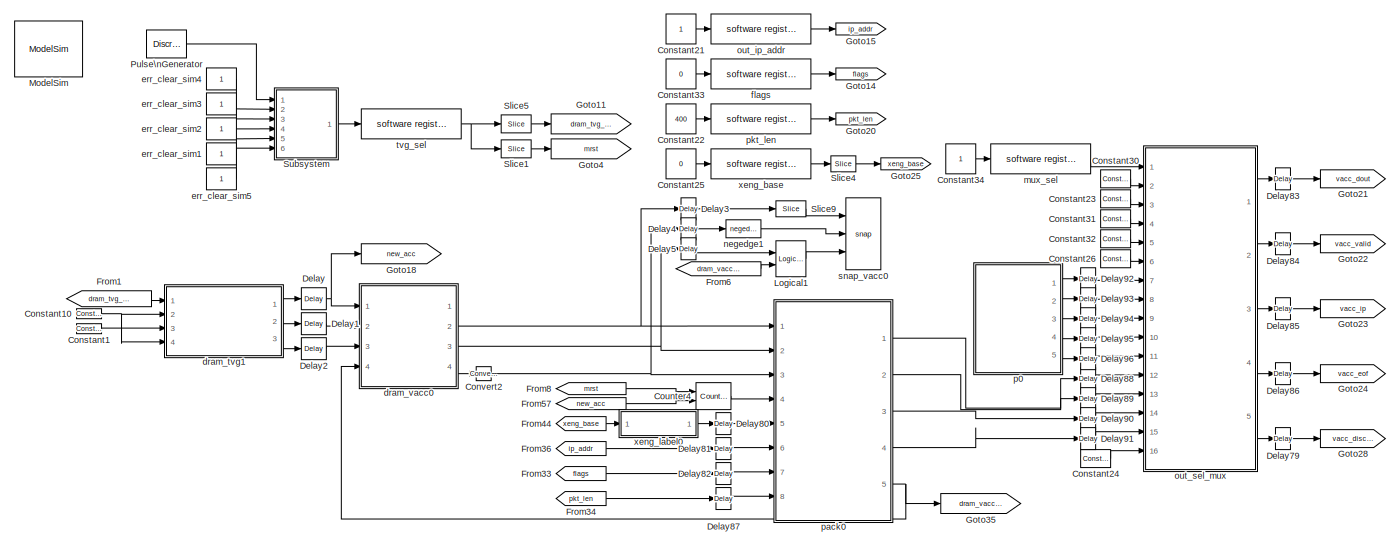
[diagram: root canvas - part 1/3, center side, full height]
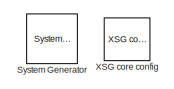
[diagram: root canvas - part 2/3, top left region]
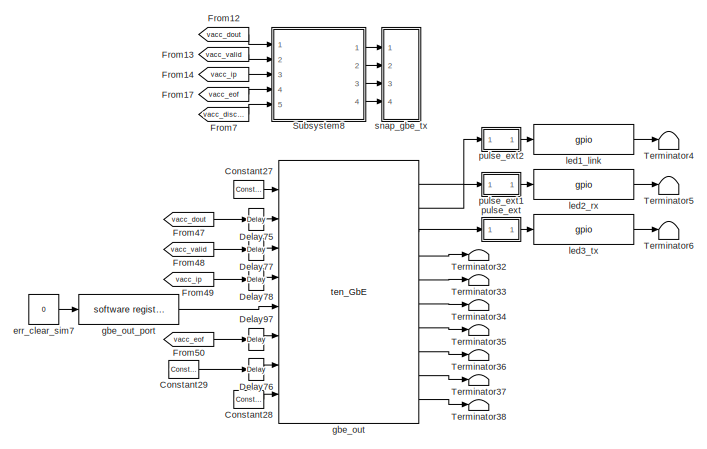
[diagram: root canvas - part 3/3, right side, full height]
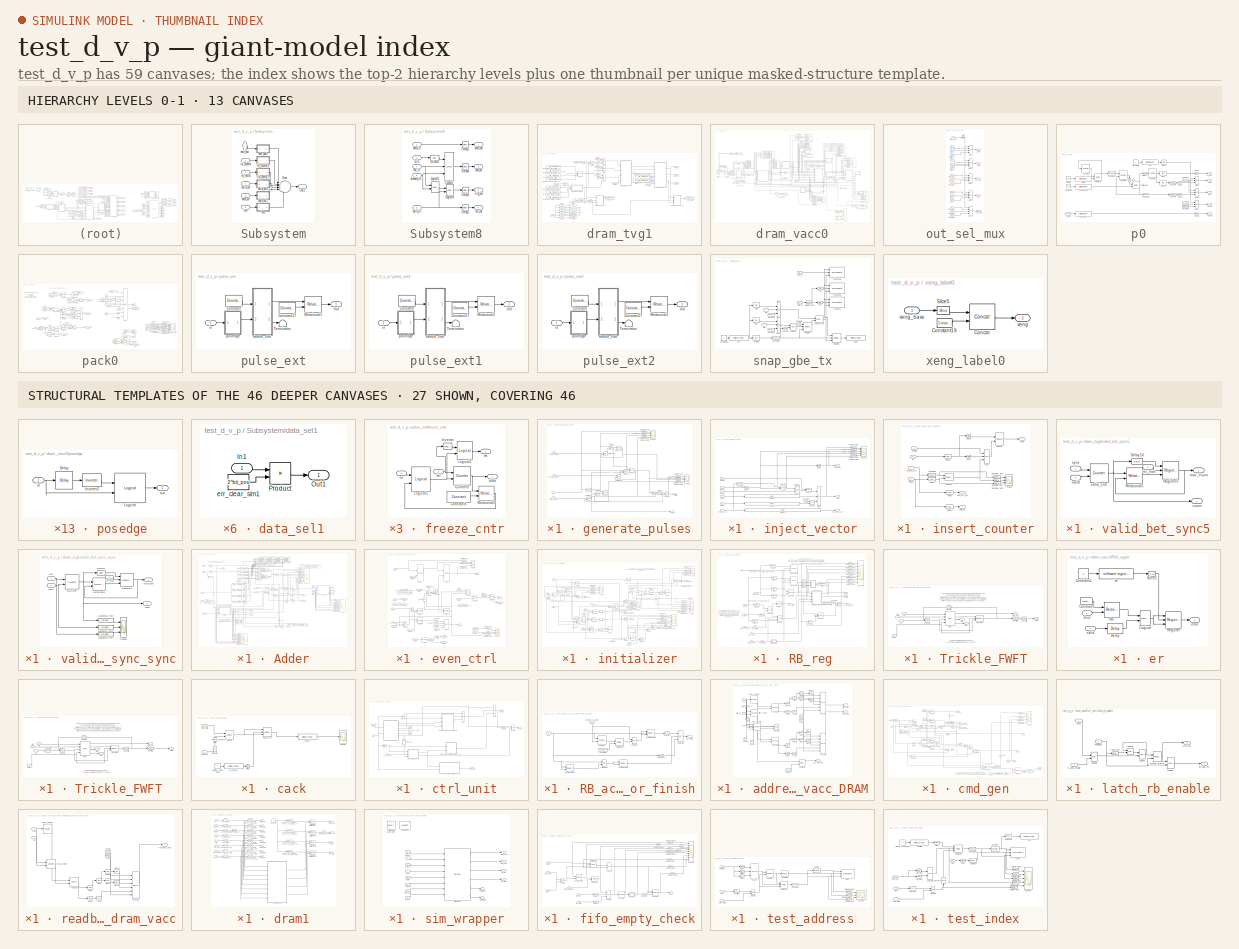
[diagram: thumbnail index - top-2 hierarchy levels (13 canvases) + 27 structural-template representatives of the remaining 46 canvases]
MODEL test_d_v_p
KIND model
BLOCK [Reference]  System Generator  REF=xbsIndex_r3/ System Generator
  AttributesFormatString = System\\nGenerator
  Ports = []
  ShowPortLabels = on
  SourceBlock = xbsIndex_r3/ System Generator
  SourceType = Xilinx System Generator
  Tag = genX
  UserData = DataTag0
  UserDataPersistent = on
  core_generation = According to Block Masks
  dbl_ovrd = According to Block Masks
  deprecated_control = off
  directory = ./test_d_v_p/sysgen
  eval_field = 0
  incr_netlist = off
  package = ff1704
  part = xc2vp70
  run_coregen = off
  simulink_period = 1
  speed = -7
  synthesis_tool = XST
  sysclk_period = 4.878
  testbench = off
  trim_vbits = Everywhere in SubSystem
  xilinxfamily = Virtex2P
BLOCK [Reference] Constant1  REF=xbsIndex_r3/Constant
  Ports = [0, 1]
  SourceBlock = xbsIndex_r3/Constant
  SourceType = Xilinx Constant Block
  arith_type = Unsigned
  bin_pt = 0
  carry = CIN
  const = 0
  dbl_ovrd = off
  equ = P=C
  explicit_period = on
  inp1 = P
  inp2 = PCIN>>17
  iostate = 0
  n_bits = 128
  opr = +
  opselect = C
  period = 1
BLOCK [Reference] Constant10  REF=xbsIndex_r3/Constant
  Ports = [0, 1]
  SourceBlock = xbsIndex_r3/Constant
  SourceType = Xilinx Constant Block
  arith_type = Boolean
  bin_pt = 0
  carry = CIN
  const = 0
  dbl_ovrd = off
  equ = P=C
  explicit_period = on
  inp1 = P
  inp2 = PCIN>>17
  iostate = 0
  n_bits = 1
  opr = +
  opselect = C
  period = 1
BLOCK [Constant] Constant21
BLOCK [Constant] Constant22
  Value = 400
BLOCK [Reference] Constant23  REF=xbsIndex_r3/Constant
  Ports = [0, 1]
  SourceBlock = xbsIndex_r3/Constant
  SourceType = Xilinx Constant Block
  arith_type = Boolean
  bin_pt = 0
  carry = CIN
  const = 0
  dbl_ovrd = off
  equ = P=C
  explicit_period = on
  inp1 = P
  inp2 = PCIN>>17
  iostate = 0
  n_bits = 32
  opr = +
  opselect = C
  period = 1
BLOCK [Reference] Constant24  REF=xbsIndex_r3/Constant
  Ports = [0, 1]
  SourceBlock = xbsIndex_r3/Constant
  SourceType = Xilinx Constant Block
  arith_type = Boolean
  bin_pt = 0
  carry = CIN
  const = 0
  dbl_ovrd = off
  equ = P=C
  explicit_period = on
  inp1 = P
  inp2 = PCIN>>17
  iostate = 0
  n_bits = 32
  opr = +
  opselect = C
  period = 1
BLOCK [Constant] Constant25
  Value = 0
BLOCK [Reference] Constant26  REF=xbsIndex_r3/Constant
  Ports = [0, 1]
  SourceBlock = xbsIndex_r3/Constant
  SourceType = Xilinx Constant Block
  arith_type = Boolean
  bin_pt = 0
  carry = CIN
  const = 0
  dbl_ovrd = off
  equ = P=C
  explicit_period = on
  inp1 = P
  inp2 = PCIN>>17
  iostate = 0
  n_bits = 32
  opr = +
  opselect = C
  period = 1
BLOCK [Reference] Constant27  REF=xbsIndex_r3/Constant
  Ports = [0, 1]
  SourceBlock = xbsIndex_r3/Constant
  SourceType = Xilinx Constant Block
  arith_type = Boolean
  bin_pt = 0
  carry = CIN
  const = 0
  dbl_ovrd = off
  equ = P=C
  explicit_period = on
  inp1 = P
  inp2 = PCIN>>17
  iostate = 0
  n_bits = 32
  opr = +
  opselect = C
  period = 1
BLOCK [Reference] Constant28  REF=xbsIndex_r3/Constant
  Ports = [0, 1]
  SourceBlock = xbsIndex_r3/Constant
  SourceType = Xilinx Constant Block
  arith_type = Boolean
  bin_pt = 0
  carry = CIN
  const = 1
  dbl_ovrd = off
  equ = P=C
  explicit_period = on
  inp1 = P
  inp2 = PCIN>>17
  iostate = 0
  n_bits = 32
  opr = +
  opselect = C
  period = 1
BLOCK [Reference] Constant29  REF=xbsIndex_r3/Constant
  Ports = [0, 1]
  SourceBlock = xbsIndex_r3/Constant
  SourceType = Xilinx Constant Block
  arith_type = Boolean
  bin_pt = 0
  carry = CIN
  const = 0
  dbl_ovrd = off
  equ = P=C
  explicit_period = on
  inp1 = P
  inp2 = PCIN>>17
  iostate = 0
  n_bits = 32
  opr = +
  opselect = C
  period = 1
BLOCK [Reference] Constant30  REF=xbsIndex_r3/Constant
  Ports = [0, 1]
  SourceBlock = xbsIndex_r3/Constant
  SourceType = Xilinx Constant Block
  arith_type = Unsigned
  bin_pt = 0
  carry = CIN
  const = 0
  dbl_ovrd = off
  equ = P=C
  explicit_period = on
  inp1 = P
  inp2 = PCIN>>17
  iostate = 0
  n_bits = 64
  opr = +
  opselect = C
  period = 1
BLOCK [Reference] Constant31  REF=xbsIndex_r3/Constant
  Ports = [0, 1]
  SourceBlock = xbsIndex_r3/Constant
  SourceType = Xilinx Constant Block
  arith_type = Unsigned
  bin_pt = 0
  carry = CIN
  const = 1
  dbl_ovrd = off
  equ = P=C
  explicit_period = on
  inp1 = P
  inp2 = PCIN>>17
  iostate = 0
  n_bits = 32
  opr = +
  opselect = C
  period = 1
BLOCK [Reference] Constant32  REF=xbsIndex_r3/Constant
  Ports = [0, 1]
  SourceBlock = xbsIndex_r3/Constant
  SourceType = Xilinx Constant Block
  arith_type = Boolean
  bin_pt = 0
  carry = CIN
  const = 0
  dbl_ovrd = off
  equ = P=C
  explicit_period = on
  inp1 = P
  inp2 = PCIN>>17
  iostate = 0
  n_bits = 32
  opr = +
  opselect = C
  period = 1
BLOCK [Constant] Constant33
  Value = 0
BLOCK [Constant] Constant34
BLOCK [Reference] Convert2  REF=xbsIndex_r3/Convert
  Ports = [1, 1]
  SourceBlock = xbsIndex_r3/Convert
  SourceType = Xilinx Converter Block
  arith_type = Boolean
  bin_pt = 0
  dbl_ovrd = off
  explicit_period = off
  inserted_by_tool = off
  latency = 0
  n_bits = 1
  overflow = Wrap
  period = 1
  pipeline = off
  quantization = Truncate
  show_param = off
  xl_area = [0, 0, 0, 0, 0, 0, 0]
  xl_use_area = off
BLOCK [Reference] Counter4  REF=xbsIndex_r3/Counter
  Ports = [2, 1]
  SourceBlock = xbsIndex_r3/Counter
  SourceType = Xilinx Counter Block
  arith_type = Unsigned
  bin_pt = 0
  cnt_by_val = 1
  cnt_to = 1023
  cnt_type = Free Running
  dbl_ovrd = off
  en = on
  explicit_period = on
  gen_core = off
  load_pin = off
  n_bits = 64
  operation = Up
  period = 1
  rst = on
  show_param = off
  start_count = 0
  use_rpm = on
  xl_area = [0, 0, 0, 0, 0, 0, 0]
  xl_use_area = off
BLOCK [Reference] Delay  REF=xbsIndex_r3/Delay
  Ports = [1, 1]
  SourceBlock = xbsIndex_r3/Delay
  SourceType = Xilinx Delay Block
  accept_only_valid = off
  dbl_ovrd = off
  en = off
  explicit_period = off
  init_zero = on
  latency = 5
  period = 1
  reg_retiming = on
  show_param = off
  xl_area = [0, 0, 0, 0, 0, 0, 0]
  xl_use_area = off
BLOCK [Reference] Delay1  REF=xbsIndex_r3/Delay
  Ports = [1, 1]
  SourceBlock = xbsIndex_r3/Delay
  SourceType = Xilinx Delay Block
  accept_only_valid = off
  dbl_ovrd = off
  en = off
  explicit_period = off
  init_zero = on
  latency = 5
  period = 1
  reg_retiming = on
  show_param = off
  xl_area = [0, 0, 0, 0, 0, 0, 0]
  xl_use_area = off
BLOCK [Reference] Delay2  REF=xbsIndex_r3/Delay
  Ports = [1, 1]
  SourceBlock = xbsIndex_r3/Delay
  SourceType = Xilinx Delay Block
  accept_only_valid = off
  dbl_ovrd = off
  en = off
  explicit_period = off
  init_zero = on
  latency = 5
  period = 1
  reg_retiming = on
  show_param = off
  xl_area = [0, 0, 0, 0, 0, 0, 0]
  xl_use_area = off
BLOCK [Reference] Delay3  REF=xbsIndex_r3/Delay
  Ports = [1, 1]
  SourceBlock = xbsIndex_r3/Delay
  SourceType = Xilinx Delay Block
  accept_only_valid = off
  dbl_ovrd = off
  en = off
  explicit_period = off
  init_zero = on
  latency = 5
  period = 1
  reg_retiming = on
  show_param = off
  xl_area = [0, 0, 0, 0, 0, 0, 0]
  xl_use_area = off
BLOCK [Reference] Delay4  REF=xbsIndex_r3/Delay
  Ports = [1, 1]
  SourceBlock = xbsIndex_r3/Delay
  SourceType = Xilinx Delay Block
  accept_only_valid = off
  dbl_ovrd = off
  en = off
  explicit_period = off
  init_zero = on
  latency = 5
  period = 1
  reg_retiming = on
  show_param = off
  xl_area = [0, 0, 0, 0, 0, 0, 0]
  xl_use_area = off
BLOCK [Reference] Delay5  REF=xbsIndex_r3/Delay
  Ports = [1, 1]
  SourceBlock = xbsIndex_r3/Delay
  SourceType = Xilinx Delay Block
  accept_only_valid = off
  dbl_ovrd = off
  en = off
  explicit_period = off
  init_zero = on
  latency = 5
  period = 1
  reg_retiming = on
  show_param = off
  xl_area = [0, 0, 0, 0, 0, 0, 0]
  xl_use_area = off
BLOCK [Reference] Delay75  REF=xbsIndex_r3/Delay
  Ports = [1, 1]
  SourceBlock = xbsIndex_r3/Delay
  SourceType = Xilinx Delay Block
  accept_only_valid = off
  dbl_ovrd = off
  en = off
  explicit_period = off
  init_zero = on
  latency = 5
  period = 1
  reg_retiming = on
  show_param = off
  xl_area = [0, 0, 0, 0, 0, 0, 0]
  xl_use_area = off
BLOCK [Reference] Delay76  REF=xbsIndex_r3/Delay
  Ports = [1, 1]
  SourceBlock = xbsIndex_r3/Delay
  SourceType = Xilinx Delay Block
  accept_only_valid = off
  dbl_ovrd = off
  en = off
  explicit_period = off
  init_zero = on
  latency = 5
  period = 1
  reg_retiming = on
  show_param = off
  xl_area = [0, 0, 0, 0, 0, 0, 0]
  xl_use_area = off
BLOCK [Reference] Delay77  REF=xbsIndex_r3/Delay
  Ports = [1, 1]
  SourceBlock = xbsIndex_r3/Delay
  SourceType = Xilinx Delay Block
  accept_only_valid = off
  dbl_ovrd = off
  en = off
  explicit_period = off
  init_zero = on
  latency = 5
  period = 1
  reg_retiming = on
  show_param = off
  xl_area = [0, 0, 0, 0, 0, 0, 0]
  xl_use_area = off
BLOCK [Reference] Delay78  REF=xbsIndex_r3/Delay
  Ports = [1, 1]
  SourceBlock = xbsIndex_r3/Delay
  SourceType = Xilinx Delay Block
  accept_only_valid = off
  dbl_ovrd = off
  en = off
  explicit_period = off
  init_zero = on
  latency = 5
  period = 1
  reg_retiming = on
  show_param = off
  xl_area = [0, 0, 0, 0, 0, 0, 0]
  xl_use_area = off
BLOCK [Reference] Delay79  REF=xbsIndex_r3/Delay
  Ports = [1, 1]
  SourceBlock = xbsIndex_r3/Delay
  SourceType = Xilinx Delay Block
  accept_only_valid = off
  dbl_ovrd = off
  en = off
  explicit_period = off
  init_zero = on
  latency = 5
  period = 1
  reg_retiming = on
  show_param = off
  xl_area = [0, 0, 0, 0, 0, 0, 0]
  xl_use_area = off
BLOCK [Reference] Delay80  REF=xbsIndex_r3/Delay
  Ports = [1, 1]
  SourceBlock = xbsIndex_r3/Delay
  SourceType = Xilinx Delay Block
  accept_only_valid = off
  dbl_ovrd = off
  en = off
  explicit_period = off
  init_zero = on
  latency = 5
  period = 1
  reg_retiming = on
  show_param = off
  xl_area = [0, 0, 0, 0, 0, 0, 0]
  xl_use_area = off
BLOCK [Reference] Delay81  REF=xbsIndex_r3/Delay
  Ports = [1, 1]
  SourceBlock = xbsIndex_r3/Delay
  SourceType = Xilinx Delay Block
  accept_only_valid = off
  dbl_ovrd = off
  en = off
  explicit_period = off
  init_zero = on
  latency = 5
  period = 1
  reg_retiming = on
  show_param = off
  xl_area = [0, 0, 0, 0, 0, 0, 0]
  xl_use_area = off
BLOCK [Reference] Delay82  REF=xbsIndex_r3/Delay
  Ports = [1, 1]
  SourceBlock = xbsIndex_r3/Delay
  SourceType = Xilinx Delay Block
  accept_only_valid = off
  dbl_ovrd = off
  en = off
  explicit_period = off
  init_zero = on
  latency = 5
  period = 1
  reg_retiming = on
  show_param = off
  xl_area = [0, 0, 0, 0, 0, 0, 0]
  xl_use_area = off
BLOCK [Reference] Delay83  REF=xbsIndex_r3/Delay
  Ports = [1, 1]
  SourceBlock = xbsIndex_r3/Delay
  SourceType = Xilinx Delay Block
  accept_only_valid = off
  dbl_ovrd = off
  en = off
  explicit_period = off
  init_zero = on
  latency = 5
  period = 1
  reg_retiming = on
  show_param = off
  xl_area = [0, 0, 0, 0, 0, 0, 0]
  xl_use_area = off
BLOCK [Reference] Delay84  REF=xbsIndex_r3/Delay
  Ports = [1, 1]
  SourceBlock = xbsIndex_r3/Delay
  SourceType = Xilinx Delay Block
  accept_only_valid = off
  dbl_ovrd = off
  en = off
  explicit_period = off
  init_zero = on
  latency = 5
  period = 1
  reg_retiming = on
  show_param = off
  xl_area = [0, 0, 0, 0, 0, 0, 0]
  xl_use_area = off
BLOCK [Reference] Delay85  REF=xbsIndex_r3/Delay
  Ports = [1, 1]
  SourceBlock = xbsIndex_r3/Delay
  SourceType = Xilinx Delay Block
  accept_only_valid = off
  dbl_ovrd = off
  en = off
  explicit_period = off
  init_zero = on
  latency = 5
  period = 1
  reg_retiming = on
  show_param = off
  xl_area = [0, 0, 0, 0, 0, 0, 0]
  xl_use_area = off
BLOCK [Reference] Delay86  REF=xbsIndex_r3/Delay
  Ports = [1, 1]
  SourceBlock = xbsIndex_r3/Delay
  SourceType = Xilinx Delay Block
  accept_only_valid = off
  dbl_ovrd = off
  en = off
  explicit_period = off
  init_zero = on
  latency = 5
  period = 1
  reg_retiming = on
  show_param = off
  xl_area = [0, 0, 0, 0, 0, 0, 0]
  xl_use_area = off
BLOCK [Reference] Delay87  REF=xbsIndex_r3/Delay
  Ports = [1, 1]
  SourceBlock = xbsIndex_r3/Delay
  SourceType = Xilinx Delay Block
  accept_only_valid = off
  dbl_ovrd = off
  en = off
  explicit_period = off
  init_zero = on
  latency = 5
  period = 1
  reg_retiming = on
  show_param = off
  xl_area = [0, 0, 0, 0, 0, 0, 0]
  xl_use_area = off
BLOCK [Reference] Delay88  REF=xbsIndex_r3/Delay
  Ports = [1, 1]
  SourceBlock = xbsIndex_r3/Delay
  SourceType = Xilinx Delay Block
  accept_only_valid = off
  dbl_ovrd = off
  en = off
  explicit_period = off
  init_zero = on
  latency = 5
  period = 1
  reg_retiming = on
  show_param = off
  xl_area = [0, 0, 0, 0, 0, 0, 0]
  xl_use_area = off
BLOCK [Reference] Delay89  REF=xbsIndex_r3/Delay
  Ports = [1, 1]
  SourceBlock = xbsIndex_r3/Delay
  SourceType = Xilinx Delay Block
  accept_only_valid = off
  dbl_ovrd = off
  en = off
  explicit_period = off
  init_zero = on
  latency = 5
  period = 1
  reg_retiming = on
  show_param = off
  xl_area = [0, 0, 0, 0, 0, 0, 0]
  xl_use_area = off
BLOCK [Reference] Delay90  REF=xbsIndex_r3/Delay
  Ports = [1, 1]
  SourceBlock = xbsIndex_r3/Delay
  SourceType = Xilinx Delay Block
  accept_only_valid = off
  dbl_ovrd = off
  en = off
  explicit_period = off
  init_zero = on
  latency = 5
  period = 1
  reg_retiming = on
  show_param = off
  xl_area = [0, 0, 0, 0, 0, 0, 0]
  xl_use_area = off
BLOCK [Reference] Delay91  REF=xbsIndex_r3/Delay
  Ports = [1, 1]
  SourceBlock = xbsIndex_r3/Delay
  SourceType = Xilinx Delay Block
  accept_only_valid = off
  dbl_ovrd = off
  en = off
  explicit_period = off
  init_zero = on
  latency = 5
  period = 1
  reg_retiming = on
  show_param = off
  xl_area = [0, 0, 0, 0, 0, 0, 0]
  xl_use_area = off
BLOCK [Reference] Delay92  REF=xbsIndex_r3/Delay
  Ports = [1, 1]
  SourceBlock = xbsIndex_r3/Delay
  SourceType = Xilinx Delay Block
  accept_only_valid = off
  dbl_ovrd = off
  en = off
  explicit_period = off
  init_zero = on
  latency = 5
  period = 1
  reg_retiming = on
  show_param = off
  xl_area = [0, 0, 0, 0, 0, 0, 0]
  xl_use_area = off
BLOCK [Reference] Delay93  REF=xbsIndex_r3/Delay
  Ports = [1, 1]
  SourceBlock = xbsIndex_r3/Delay
  SourceType = Xilinx Delay Block
  accept_only_valid = off
  dbl_ovrd = off
  en = off
  explicit_period = off
  init_zero = on
  latency = 5
  period = 1
  reg_retiming = on
  show_param = off
  xl_area = [0, 0, 0, 0, 0, 0, 0]
  xl_use_area = off
BLOCK [Reference] Delay94  REF=xbsIndex_r3/Delay
  Ports = [1, 1]
  SourceBlock = xbsIndex_r3/Delay
  SourceType = Xilinx Delay Block
  accept_only_valid = off
  dbl_ovrd = off
  en = off
  explicit_period = off
  init_zero = on
  latency = 5
  period = 1
  reg_retiming = on
  show_param = off
  xl_area = [0, 0, 0, 0, 0, 0, 0]
  xl_use_area = off
BLOCK [Reference] Delay95  REF=xbsIndex_r3/Delay
  Ports = [1, 1]
  SourceBlock = xbsIndex_r3/Delay
  SourceType = Xilinx Delay Block
  accept_only_valid = off
  dbl_ovrd = off
  en = off
  explicit_period = off
  init_zero = on
  latency = 5
  period = 1
  reg_retiming = on
  show_param = off
  xl_area = [0, 0, 0, 0, 0, 0, 0]
  xl_use_area = off
BLOCK [Reference] Delay96  REF=xbsIndex_r3/Delay
  Ports = [1, 1]
  SourceBlock = xbsIndex_r3/Delay
  SourceType = Xilinx Delay Block
  accept_only_valid = off
  dbl_ovrd = off
  en = off
  explicit_period = off
  init_zero = on
  latency = 5
  period = 1
  reg_retiming = on
  show_param = off
  xl_area = [0, 0, 0, 0, 0, 0, 0]
  xl_use_area = off
BLOCK [Reference] Delay97  REF=xbsIndex_r3/Delay
  Ports = [1, 1]
  SourceBlock = xbsIndex_r3/Delay
  SourceType = Xilinx Delay Block
  accept_only_valid = off
  dbl_ovrd = off
  en = off
  explicit_period = off
  init_zero = on
  latency = 5
  period = 1
  reg_retiming = on
  show_param = off
  xl_area = [0, 0, 0, 0, 0, 0, 0]
  xl_use_area = off
BLOCK [From] From1
  CloseFcn = tagdialog Close
  GotoTag = dram_tvg_sel
BLOCK [From] From12
  CloseFcn = tagdialog Close
  GotoTag = vacc_dout
BLOCK [From] From13
  CloseFcn = tagdialog Close
  GotoTag = vacc_valid
BLOCK [From] From14
  CloseFcn = tagdialog Close
  GotoTag = vacc_ip
BLOCK [From] From17
  CloseFcn = tagdialog Close
  GotoTag = vacc_eof
BLOCK [From] From33
  CloseFcn = tagdialog Close
  GotoTag = flags
BLOCK [From] From34
  CloseFcn = tagdialog Close
  GotoTag = pkt_len
BLOCK [From] From36
  CloseFcn = tagdialog Close
  GotoTag = ip_addr
BLOCK [From] From44
  CloseFcn = tagdialog Close
  GotoTag = xeng_base
BLOCK [From] From47
  CloseFcn = tagdialog Close
  GotoTag = vacc_dout
BLOCK [From] From48
  CloseFcn = tagdialog Close
  GotoTag = vacc_valid
BLOCK [From] From49
  CloseFcn = tagdialog Close
  GotoTag = vacc_ip
BLOCK [From] From50
  CloseFcn = tagdialog Close
  GotoTag = vacc_eof
BLOCK [From] From57
  CloseFcn = tagdialog Close
  GotoTag = new_acc
BLOCK [From] From6
  CloseFcn = tagdialog Close
  GotoTag = dram_vacc_ack
BLOCK [From] From7
  CloseFcn = tagdialog Close
  GotoTag = vacc_discard
BLOCK [From] From8
  CloseFcn = tagdialog Close
  GotoTag = mrst
BLOCK [Goto] Goto11
  GotoTag = dram_tvg_sel
  TagVisibility = local
BLOCK [Goto] Goto14
  GotoTag = flags
  TagVisibility = local
BLOCK [Goto] Goto15
  GotoTag = ip_addr
  TagVisibility = local
BLOCK [Goto] Goto18
  GotoTag = new_acc
  TagVisibility = local
BLOCK [Goto] Goto20
  GotoTag = pkt_len
  TagVisibility = local
BLOCK [Goto] Goto21
  GotoTag = vacc_dout
  TagVisibility = local
BLOCK [Goto] Goto22
  GotoTag = vacc_valid
  TagVisibility = local
BLOCK [Goto] Goto23
  GotoTag = vacc_ip
  TagVisibility = local
BLOCK [Goto] Goto24
  GotoTag = vacc_eof
  TagVisibility = local
BLOCK [Goto] Goto25
  GotoTag = xeng_base
  TagVisibility = local
BLOCK [Goto] Goto28
  GotoTag = vacc_discard
  TagVisibility = local
BLOCK [Goto] Goto35
  GotoTag = dram_vacc_ack
  TagVisibility = local
BLOCK [Goto] Goto4
  GotoTag = mrst
  TagVisibility = local
BLOCK [Reference] Logical1  REF=xbsIndex_r3/Logical
  Ports = [2, 1]
  SourceBlock = xbsIndex_r3/Logical
  SourceType = Xilinx Logical Block
  align_bp = on
  arith_type = Unsigned
  bin_pt = 2
  dbl_ovrd = off
  en = off
  explicit_period = off
  inputs = 2
  latency = 0
  logical_function = AND
  n_bits = 8
  period = 1
  precision = Full
  show_param = off
  xl_area = [0, 0, 0, 0, 0, 0, 0]
  xl_use_area = off
BLOCK [Reference] ModelSim  REF=xbsIndex_r3/ModelSim
  Ports = []
  SourceBlock = xbsIndex_r3/ModelSim
  SourceType = ModelSim HDL Co-Simulation Interface
  custom_scripts = off
  dir = ./modelsim
  leave_open = on
  skip_compile = off
  startup_timeout = 40
  waveform = on
BLOCK [DiscretePulseGenerator] Pulse\nGenerator
  Period = 3000
  PhaseDelay = 600
  Ports = [0, 1]
BLOCK [Reference] Slice1  REF=xbsIndex_r3/Slice
  Ports = [1, 1]
  SourceBlock = xbsIndex_r3/Slice
  SourceType = Xilinx Slice Block
  base0 = LSB of Input
  base1 = MSB of Input
  bit0 = 31
  bit1 = 0
  boolean_output = on
  dbl_ovrd = off
  explicit_period = off
  mode = Lower Bit Location + Width
  nbits = 1
  period = 1
BLOCK [Reference] Slice4  REF=xbsIndex_r3/Slice
  Ports = [1, 1]
  SourceBlock = xbsIndex_r3/Slice
  SourceType = Xilinx Slice Block
  base0 = LSB of Input
  base1 = MSB of Input
  bit0 = 0
  bit1 = 0
  boolean_output = off
  dbl_ovrd = off
  explicit_period = off
  mode = Lower Bit Location + Width
  nbits = 16
  period = 1
BLOCK [Reference] Slice5  REF=xbsIndex_r3/Slice
  Ports = [1, 1]
  SourceBlock = xbsIndex_r3/Slice
  SourceType = Xilinx Slice Block
  base0 = LSB of Input
  base1 = MSB of Input
  bit0 = 9
  bit1 = 0
  boolean_output = off
  dbl_ovrd = off
  explicit_period = off
  mode = Lower Bit Location + Width
  nbits = 6
  period = 1
BLOCK [Reference] Slice9  REF=xbsIndex_r3/Slice
  Ports = [1, 1]
  SourceBlock = xbsIndex_r3/Slice
  SourceType = Xilinx Slice Block
  base0 = LSB of Input
  base1 = MSB of Input
  bit0 = 0
  bit1 = 0
  boolean_output = off
  dbl_ovrd = off
  explicit_period = off
  mode = Lower Bit Location + Width
  nbits = 32
  period = 1
BLOCK [SubSystem] Subsystem
  MinAlgLoopOccurrences = off
  Ports = [6, 1]
  RTWSystemCode = Auto
  TreatAsAtomicUnit = off
BLOCK [Outport] Subsystem/Out1
  BusOutputAsStruct = off
  IconDisplay = Port number
BLOCK [Sum] Subsystem/Sum
  IconShape = round
  InputSameDT = off
  Inputs = |++++++
  OutDataTypeMode = Inherit via internal rule
  Ports = [6, 1]
  SaturateOnIntegerOverflow = off
BLOCK [Inport] Subsystem/data_sel
  IconDisplay = Port number
  LatchInput = off
  Port = 5
BLOCK [SubSystem] Subsystem/data_sel1
  MaskEnableString = on
  MaskIconFrame = on
  MaskIconOpaque = on
  MaskIconRotate = none
  MaskIconUnits = autoscale
  MaskPromptString = bit position
  MaskStyleString = edit
  MaskToolTipString = on
  MaskTunableValueString = on
  MaskValueString = 10
  MaskVariables = bit_pos=@1;
  MaskVisibilityString = on
  MinAlgLoopOccurrences = off
  Ports = [1, 1]
  RTWSystemCode = Auto
  TreatAsAtomicUnit = off
BLOCK [Inport] Subsystem/data_sel1/In1
  IconDisplay = Port number
  LatchInput = off
  Port = 1
BLOCK [Outport] Subsystem/data_sel1/Out1
  BusOutputAsStruct = off
  IconDisplay = Port number
BLOCK [Product] Subsystem/data_sel1/Product
  InputSameDT = off
  OutDataTypeMode = Inherit via internal rule
  Ports = [2, 1]
  SaturateOnIntegerOverflow = off
BLOCK [Constant] Subsystem/data_sel1/err_clear_sim1
  Value = 2^bit_pos
BLOCK [Inport] Subsystem/inj_counter
  IconDisplay = Port number
  LatchInput = off
  Port = 2
BLOCK [SubSystem] Subsystem/inj_counter1
  MaskEnableString = on
  MaskIconFrame = on
  MaskIconOpaque = on
  MaskIconRotate = none
  MaskIconUnits = autoscale
  MaskPromptString = bit position
  MaskStyleString = edit
  MaskToolTipString = on
  MaskTunableValueString = on
  MaskValueString = 13
  MaskVariables = bit_pos=@1;
  MaskVisibilityString = on
  MinAlgLoopOccurrences = off
  Ports = [1, 1]
  RTWSystemCode = Auto
  TreatAsAtomicUnit = off
BLOCK [Inport] Subsystem/inj_counter1/In1
  IconDisplay = Port number
  LatchInput = off
  Port = 1
BLOCK [Outport] Subsystem/inj_counter1/Out1
  BusOutputAsStruct = off
  IconDisplay = Port number
BLOCK [Product] Subsystem/inj_counter1/Product
  InputSameDT = off
  OutDataTypeMode = Inherit via internal rule
  Ports = [2, 1]
  SaturateOnIntegerOverflow = off
BLOCK [Constant] Subsystem/inj_counter1/err_clear_sim1
  Value = 2^bit_pos
BLOCK [Inport] Subsystem/inj_vector
  IconDisplay = Port number
  LatchInput = off
  Port = 3
BLOCK [SubSystem] Subsystem/inj_vector1
  MaskEnableString = on
  MaskIconFrame = on
  MaskIconOpaque = on
  MaskIconRotate = none
  MaskIconUnits = autoscale
  MaskPromptString = bit position
  MaskStyleString = edit
  MaskToolTipString = on
  MaskTunableValueString = on
  MaskValueString = 12
  MaskVariables = bit_pos=@1;
  MaskVisibilityString = on
  MinAlgLoopOccurrences = off
  Ports = [1, 1]
  RTWSystemCode = Auto
  TreatAsAtomicUnit = off
BLOCK [Inport] Subsystem/inj_vector1/In1
  IconDisplay = Port number
  LatchInput = off
  Port = 1
BLOCK [Outport] Subsystem/inj_vector1/Out1
  BusOutputAsStruct = off
  IconDisplay = Port number
BLOCK [Product] Subsystem/inj_vector1/Product
  InputSameDT = off
  OutDataTypeMode = Inherit via internal rule
  Ports = [2, 1]
  SaturateOnIntegerOverflow = off
BLOCK [Constant] Subsystem/inj_vector1/err_clear_sim1
  Value = 2^bit_pos
BLOCK [Inport] Subsystem/new_acc
  IconDisplay = Port number
  LatchInput = off
  Port = 1
BLOCK [SubSystem] Subsystem/new_acc2
  MaskEnableString = on
  MaskIconFrame = on
  MaskIconOpaque = on
  MaskIconRotate = none
  MaskIconUnits = autoscale
  MaskPromptString = bit position
  MaskStyleString = edit
  MaskToolTipString = on
  MaskTunableValueString = on
  MaskValueString = 14
  MaskVariables = bit_pos=@1;
  MaskVisibilityString = on
  MinAlgLoopOccurrences = off
  Ports = [1, 1]
  RTWSystemCode = Auto
  TreatAsAtomicUnit = off
BLOCK [Inport] Subsystem/new_acc2/In1
  IconDisplay = Port number
  LatchInput = off
  Port = 1
BLOCK [Outport] Subsystem/new_acc2/Out1
  BusOutputAsStruct = off
  IconDisplay = Port number
BLOCK [Product] Subsystem/new_acc2/Product
  InputSameDT = off
  OutDataTypeMode = Inherit via internal rule
  Ports = [2, 1]
  SaturateOnIntegerOverflow = off
BLOCK [Constant] Subsystem/new_acc2/err_clear_sim1
  Value = 2^bit_pos
BLOCK [Inport] Subsystem/run
  IconDisplay = Port number
  LatchInput = off
  Port = 6
BLOCK [SubSystem] Subsystem/run1
  MaskEnableString = on
  MaskIconFrame = on
  MaskIconOpaque = on
  MaskIconRotate = none
  MaskIconUnits = autoscale
  MaskPromptString = bit position
  MaskStyleString = edit
  MaskToolTipString = on
  MaskTunableValueString = on
  MaskValueString = 9
  MaskVariables = bit_pos=@1;
  MaskVisibilityString = on
  MinAlgLoopOccurrences = off
  Ports = [1, 1]
  RTWSystemCode = Auto
  TreatAsAtomicUnit = off
BLOCK [Inport] Subsystem/run1/In1
  IconDisplay = Port number
  LatchInput = off
  Port = 1
BLOCK [Outport] Subsystem/run1/Out1
  BusOutputAsStruct = off
  IconDisplay = Port number
BLOCK [Product] Subsystem/run1/Product
  InputSameDT = off
  OutDataTypeMode = Inherit via internal rule
  Ports = [2, 1]
  SaturateOnIntegerOverflow = off
BLOCK [Constant] Subsystem/run1/err_clear_sim1
  Value = 2^bit_pos
BLOCK [Inport] Subsystem/valid_sel
  IconDisplay = Port number
  LatchInput = off
  Port = 4
BLOCK [SubSystem] Subsystem/valid_sel1
  MaskEnableString = on
  MaskIconFrame = on
  MaskIconOpaque = on
  MaskIconRotate = none
  MaskIconUnits = autoscale
  MaskPromptString = bit position
  MaskStyleString = edit
  MaskToolTipString = on
  MaskTunableValueString = on
  MaskValueString = 11
  MaskVariables = bit_pos=@1;
  MaskVisibilityString = on
  MinAlgLoopOccurrences = off
  Ports = [1, 1]
  RTWSystemCode = Auto
  TreatAsAtomicUnit = off
BLOCK [Inport] Subsystem/valid_sel1/In1
  IconDisplay = Port number
  LatchInput = off
  Port = 1
BLOCK [Outport] Subsystem/valid_sel1/Out1
  BusOutputAsStruct = off
  IconDisplay = Port number
BLOCK [Product] Subsystem/valid_sel1/Product
  InputSameDT = off
  OutDataTypeMode = Inherit via internal rule
  Ports = [2, 1]
  SaturateOnIntegerOverflow = off
BLOCK [Constant] Subsystem/valid_sel1/err_clear_sim1
  Value = 2^bit_pos
BLOCK [SubSystem] Subsystem8
  MinAlgLoopOccurrences = off
  Ports = [5, 4]
  RTWSystemCode = Auto
  TreatAsAtomicUnit = off
BLOCK [Reference] Subsystem8/Concat1  REF=xbsIndex_r3/Concat
  Ports = [3, 1]
  SourceBlock = xbsIndex_r3/Concat
  SourceType = Xilinx Bus Concatenator
  dbl_ovrd = off
  explicit_period = off
  num_inputs = 3
  period = 1
BLOCK [Reference] Subsystem8/Delay1  REF=xbsIndex_r3/Delay
  Ports = [1, 1]
  SourceBlock = xbsIndex_r3/Delay
  SourceType = Xilinx Delay Block
  accept_only_valid = off
  dbl_ovrd = off
  en = off
  explicit_period = off
  init_zero = on
  latency = 2
  period = 1
  reg_retiming = on
  show_param = off
  xl_area = [0, 0, 0, 0, 0, 0, 0]
  xl_use_area = off
BLOCK [Reference] Subsystem8/Delay2  REF=xbsIndex_r3/Delay
  Ports = [1, 1]
  SourceBlock = xbsIndex_r3/Delay
  SourceType = Xilinx Delay Block
  accept_only_valid = off
  dbl_ovrd = off
  en = off
  explicit_period = off
  init_zero = on
  latency = 2
  period = 1
  reg_retiming = on
  show_param = off
  xl_area = [0, 0, 0, 0, 0, 0, 0]
  xl_use_area = off
BLOCK [Reference] Subsystem8/Delay3  REF=xbsIndex_r3/Delay
  Ports = [1, 1]
  SourceBlock = xbsIndex_r3/Delay
  SourceType = Xilinx Delay Block
  accept_only_valid = off
  dbl_ovrd = off
  en = off
  explicit_period = off
  init_zero = on
  latency = 2
  period = 1
  reg_retiming = on
  show_param = off
  xl_area = [0, 0, 0, 0, 0, 0, 0]
  xl_use_area = off
BLOCK [Reference] Subsystem8/Delay4  REF=xbsIndex_r3/Delay
  Ports = [1, 1]
  SourceBlock = xbsIndex_r3/Delay
  SourceType = Xilinx Delay Block
  accept_only_valid = off
  dbl_ovrd = off
  en = off
  explicit_period = off
  init_zero = on
  latency = 2
  period = 1
  reg_retiming = on
  show_param = off
  xl_area = [0, 0, 0, 0, 0, 0, 0]
  xl_use_area = off
BLOCK [Reference] Subsystem8/Logical1  REF=xbsIndex_r3/Logical
  Ports = [2, 1]
  SourceBlock = xbsIndex_r3/Logical
  SourceType = Xilinx Logical Block
  align_bp = on
  arith_type = Unsigned
  bin_pt = 2
  dbl_ovrd = off
  en = off
  explicit_period = on
  inputs = 2
  latency = 0
  logical_function = OR
  n_bits = 8
  period = 1
  precision = Full
  show_param = off
  xl_area = [0, 0, 0, 0, 0, 0, 0]
  xl_use_area = off
BLOCK [Reference] Subsystem8/Logical4  REF=xbsIndex_r3/Logical
  Ports = [2, 1]
  SourceBlock = xbsIndex_r3/Logical
  SourceType = Xilinx Logical Block
  align_bp = on
  arith_type = Unsigned
  bin_pt = 2
  dbl_ovrd = off
  en = off
  explicit_period = on
  inputs = 2
  latency = 0
  logical_function = AND
  n_bits = 8
  period = 1
  precision = Full
  show_param = off
  xl_area = [0, 0, 0, 0, 0, 0, 0]
  xl_use_area = off
BLOCK [Reference] Subsystem8/Slice11  REF=xbsIndex_r3/Slice
  Ports = [1, 1]
  SourceBlock = xbsIndex_r3/Slice
  SourceType = Xilinx Slice Block
  base0 = LSB of Input
  base1 = MSB of Input
  bit0 = 0
  bit1 = 0
  boolean_output = on
  dbl_ovrd = off
  explicit_period = off
  mode = Lower Bit Location + Width
  nbits = 32-2
  period = 1
BLOCK [Inport] Subsystem8/data_in
  IconDisplay = Port number
  LatchInput = off
  Port = 1
BLOCK [Outport] Subsystem8/data_out
  BusOutputAsStruct = off
  IconDisplay = Port number
BLOCK [Inport] Subsystem8/discard_in
  IconDisplay = Port number
  LatchInput = off
  Port = 5
BLOCK [Inport] Subsystem8/eof_in
  IconDisplay = Port number
  LatchInput = off
  Port = 4
BLOCK [Inport] Subsystem8/ip_in
  IconDisplay = Port number
  LatchInput = off
  Port = 3
BLOCK [Outport] Subsystem8/oob_out
  BusOutputAsStruct = off
  IconDisplay = Port number
  Port = 2
BLOCK [Outport] Subsystem8/trig_out
  BusOutputAsStruct = off
  IconDisplay = Port number
  Port = 3
BLOCK [Inport] Subsystem8/valid_in
  IconDisplay = Port number
  LatchInput = off
  Port = 2
BLOCK [Outport] Subsystem8/we_out
  BusOutputAsStruct = off
  IconDisplay = Port number
  Port = 4
BLOCK [Terminator] Terminator32
BLOCK [Terminator] Terminator33
BLOCK [Terminator] Terminator34
BLOCK [Terminator] Terminator35
BLOCK [Terminator] Terminator36
BLOCK [Terminator] Terminator37
BLOCK [Terminator] Terminator38
BLOCK [Terminator] Terminator4
BLOCK [Terminator] Terminator5
BLOCK [Terminator] Terminator6
BLOCK [Reference] XSG core config  REF=xps_library/XSG core config  (lib defined in mdl_00b5cec29cd0, mdl_02ab6ecaa3d1, +5 more)
  Ports = []
  ShowPortLabels = on
  SourceBlock = xps_library/XSG core config
  SourceType = xsg core config
  Tag = xps:xsg
  clk_rate = 205
  clk_src = sys_clk2x
  gpio_clk_bit_index = 0
  gpio_clk_io_group = iBOB:sma
  hw_sys = BEE2_usr
  ibob_linux = off
  mpc_type = powerpc405
  sample_period = 1
  synthesis_tool = XST
BLOCK [SubSystem] dram_tvg1
  AttributesFormatString = Vector Length: 100
  MaskEnableString = on
  MaskIconFrame = on
  MaskIconOpaque = on
  MaskIconRotate = none
  MaskIconUnits = autoscale
  MaskInitialization = fmtstr = sprintf('Vector Length: %d', len);\nset_param(gcb, 'AttributesFormatString', fmtstr);\n
  MaskPromptString = Number of Vectors
  MaskStyleString = edit
  MaskToolTipString = on
  MaskTunableValueString = on
  MaskValueString = 100
  MaskVariables = len=@1;
  MaskVisibilityString = on
  MinAlgLoopOccurrences = off
  Ports = [4, 3]
  RTWSystemCode = Auto
  TreatAsAtomicUnit = off
BLOCK [Reference] dram_tvg1/Concat  REF=xbsIndex_r3/Concat
  Ports = [4, 1]
  SourceBlock = xbsIndex_r3/Concat
  SourceType = Xilinx Bus Concatenator
  dbl_ovrd = off
  explicit_period = on
  num_inputs = 4
  period = 1
BLOCK [Reference] dram_tvg1/Delay  REF=xbsIndex_r3/Delay
  Ports = [1, 1]
  SourceBlock = xbsIndex_r3/Delay
  SourceType = Xilinx Delay Block
  accept_only_valid = off
  dbl_ovrd = off
  en = off
  explicit_period = off
  init_zero = on
  latency = 1
  period = 1
  reg_retiming = on
  show_param = off
  xl_area = [0, 0, 0, 0, 0, 0, 0]
  xl_use_area = off
BLOCK [Reference] dram_tvg1/Delay10  REF=xbsIndex_r3/Delay
  Ports = [1, 1]
  SourceBlock = xbsIndex_r3/Delay
  SourceType = Xilinx Delay Block
  accept_only_valid = off
  dbl_ovrd = off
  en = off
  explicit_period = off
  init_zero = on
  latency = 5
  period = 1
  reg_retiming = off
  show_param = off
  xl_area = [0, 0, 0, 0, 0, 0, 0]
  xl_use_area = off
BLOCK [Reference] dram_tvg1/Delay9  REF=xbsIndex_r3/Delay
  Ports = [1, 1]
  SourceBlock = xbsIndex_r3/Delay
  SourceType = Xilinx Delay Block
  accept_only_valid = off
  dbl_ovrd = off
  en = off
  explicit_period = off
  init_zero = on
  latency = 5
  period = 1
  reg_retiming = off
  show_param = off
  xl_area = [0, 0, 0, 0, 0, 0, 0]
  xl_use_area = off
BLOCK [From] dram_tvg1/From
  CloseFcn = tagdialog Close
  GotoTag = valid_sel
BLOCK [From] dram_tvg1/From1
  CloseFcn = tagdialog Close
  GotoTag = data_sel
BLOCK [From] dram_tvg1/From2
  CloseFcn = tagdialog Close
  GotoTag = valid_sel
BLOCK [From] dram_tvg1/From3
  CloseFcn = tagdialog Close
  GotoTag = inj_vector
BLOCK [From] dram_tvg1/From4
  CloseFcn = tagdialog Close
  GotoTag = inj_counter
BLOCK [From] dram_tvg1/From5
  CloseFcn = tagdialog Close
  GotoTag = enable
BLOCK [From] dram_tvg1/From6
  CloseFcn = tagdialog Close
  GotoTag = new_acc
BLOCK [Goto] dram_tvg1/Goto
  GotoTag = data_sel
  TagVisibility = local
BLOCK [Goto] dram_tvg1/Goto1
  GotoTag = valid_sel
  TagVisibility = local
BLOCK [Goto] dram_tvg1/Goto2
  GotoTag = inj_vector
  TagVisibility = local
BLOCK [Goto] dram_tvg1/Goto3
  GotoTag = inj_counter
  TagVisibility = local
BLOCK [Goto] dram_tvg1/Goto4
  GotoTag = enable
  TagVisibility = local
BLOCK [Goto] dram_tvg1/Goto5
  GotoTag = new_acc
  TagVisibility = local
BLOCK [Reference] dram_tvg1/Mux1  REF=xbsIndex_r3/Mux
  Ports = [3, 1]
  SourceBlock = xbsIndex_r3/Mux
  SourceType = Xilinx Multiplexer Block
  arith_type = Signed  (2's comp)
  bin_pt = 2
  dbl_ovrd = off
  en = off
  explicit_period = off
  gen_core = off
  inputs = 2
  latency = 0
  mux_type = off
  n_bits = 8
  overflow = Wrap
  period = 1
  precision = Full
  quantization = Truncate
  show_param = off
  use_rpm = off
  xl_area = [0, 0, 0, 0, 0, 0, 0]
  xl_use_area = off
BLOCK [Reference] dram_tvg1/Mux2  REF=xbsIndex_r3/Mux
  Ports = [3, 1]
  SourceBlock = xbsIndex_r3/Mux
  SourceType = Xilinx Multiplexer Block
  arith_type = Signed  (2's comp)
  bin_pt = 2
  dbl_ovrd = off
  en = off
  explicit_period = off
  gen_core = off
  inputs = 2
  latency = 0
  mux_type = off
  n_bits = 8
  overflow = Wrap
  period = 1
  precision = Full
  quantization = Truncate
  show_param = off
  use_rpm = off
  xl_area = [0, 0, 0, 0, 0, 0, 0]
  xl_use_area = off
BLOCK [Reference] dram_tvg1/Mux3  REF=xbsIndex_r3/Mux
  Ports = [3, 1]
  SourceBlock = xbsIndex_r3/Mux
  SourceType = Xilinx Multiplexer Block
  arith_type = Signed  (2's comp)
  bin_pt = 2
  dbl_ovrd = off
  en = off
  explicit_period = off
  gen_core = off
  inputs = 2
  latency = 0
  mux_type = off
  n_bits = 8
  overflow = Wrap
  period = 1
  precision = Full
  quantization = Truncate
  show_param = off
  use_rpm = off
  xl_area = [0, 0, 0, 0, 0, 0, 0]
  xl_use_area = off
BLOCK [Reference] dram_tvg1/Register  REF=xbsIndex_r3/Register
  Ports = [3, 1]
  SourceBlock = xbsIndex_r3/Register
  SourceType = Xilinx Register Block
  dbl_ovrd = off
  en = on
  explicit_period = off
  init = 0
  out_en = off
  period = 1
  reg_only_valid = off
  rst = on
  show_param = off
  xl_area = [0, 0, 0, 0, 0, 0, 0]
  xl_use_area = off
BLOCK [Reference] dram_tvg1/Slice1  REF=xbsIndex_r3/Slice
  Ports = [1, 1]
  SourceBlock = xbsIndex_r3/Slice
  SourceType = Xilinx Slice Block
  base0 = LSB of Input
  base1 = MSB of Input
  bit0 = 4
  bit1 = 0
  boolean_output = on
  dbl_ovrd = off
  explicit_period = off
  mode = Lower Bit Location + Width
  nbits = 1
  period = 1
BLOCK [Reference] dram_tvg1/Slice2  REF=xbsIndex_r3/Slice
  Ports = [1, 1]
  SourceBlock = xbsIndex_r3/Slice
  SourceType = Xilinx Slice Block
  base0 = LSB of Input
  base1 = MSB of Input
  bit0 = 0
  bit1 = 0
  boolean_output = on
  dbl_ovrd = off
  explicit_period = off
  mode = Lower Bit Location + Width
  nbits = 1
  period = 1
BLOCK [Reference] dram_tvg1/Slice3  REF=xbsIndex_r3/Slice
  Ports = [1, 1]
  SourceBlock = xbsIndex_r3/Slice
  SourceType = Xilinx Slice Block
  base0 = LSB of Input
  base1 = MSB of Input
  bit0 = 3
  bit1 = 0
  boolean_output = on
  dbl_ovrd = off
  explicit_period = off
  mode = Lower Bit Location + Width
  nbits = 1
  period = 1
BLOCK [Reference] dram_tvg1/Slice4  REF=xbsIndex_r3/Slice
  Ports = [1, 1]
  SourceBlock = xbsIndex_r3/Slice
  SourceType = Xilinx Slice Block
  base0 = LSB of Input
  base1 = MSB of Input
  bit0 = 2
  bit1 = 0
  boolean_output = on
  dbl_ovrd = off
  explicit_period = off
  mode = Lower Bit Location + Width
  nbits = 1
  period = 1
BLOCK [Reference] dram_tvg1/Slice5  REF=xbsIndex_r3/Slice
  Ports = [1, 1]
  SourceBlock = xbsIndex_r3/Slice
  SourceType = Xilinx Slice Block
  base0 = LSB of Input
  base1 = MSB of Input
  bit0 = 1
  bit1 = 0
  boolean_output = on
  dbl_ovrd = off
  explicit_period = off
  mode = Lower Bit Location + Width
  nbits = 1
  period = 1
BLOCK [Reference] dram_tvg1/Slice6  REF=xbsIndex_r3/Slice
  Ports = [1, 1]
  SourceBlock = xbsIndex_r3/Slice
  SourceType = Xilinx Slice Block
  base0 = LSB of Input
  base1 = MSB of Input
  bit0 = 0
  bit1 = 0
  boolean_output = on
  dbl_ovrd = off
  explicit_period = off
  mode = Lower Bit Location + Width
  nbits = 1
  period = 1
BLOCK [Reference] dram_tvg1/Slice7  REF=xbsIndex_r3/Slice
  Ports = [1, 1]
  SourceBlock = xbsIndex_r3/Slice
  SourceType = Xilinx Slice Block
  base0 = LSB of Input
  base1 = MSB of Input
  bit0 = 5
  bit1 = 0
  boolean_output = on
  dbl_ovrd = off
  explicit_period = off
  mode = Lower Bit Location + Width
  nbits = 1
  period = 1
BLOCK [Inport] dram_tvg1/data_in
  IconDisplay = Port number
  LatchInput = off
  Port = 3
BLOCK [Outport] dram_tvg1/data_out
  BusOutputAsStruct = off
  IconDisplay = Port number
  Port = 2
BLOCK [SubSystem] dram_tvg1/generate_pulses
  MinAlgLoopOccurrences = off
  Ports = [4, 2]
  RTWSystemCode = Auto
  TreatAsAtomicUnit = off
BLOCK [Reference] dram_tvg1/generate_pulses/Gateway Out1  REF=xbsIndex_r3/Gateway Out
  LOCs = {}
  Ports = [1, 1]
  SourceBlock = xbsIndex_r3/Gateway Out
  SourceType = Xilinx Gateway Out
  arith_type = Boolean
  bin_pt = 6
  hdl_port = off
  locs_specified = off
  nbits = 8
  needs_fixed_name = off
  output_type = Double
  overflow = Wrap
  quantization = Truncate
  show_param = off
  timing_constraint = None
  xl_area = [0, 0, 0, 0, 0, 0, 0]
  xl_use_area = off
BLOCK [Reference] dram_tvg1/generate_pulses/Gateway Out2  REF=xbsIndex_r3/Gateway Out
  LOCs = {}
  Ports = [1, 1]
  SourceBlock = xbsIndex_r3/Gateway Out
  SourceType = Xilinx Gateway Out
  arith_type = Boolean
  bin_pt = 6
  hdl_port = off
  locs_specified = off
  nbits = 8
  needs_fixed_name = off
  output_type = Double
  overflow = Wrap
  quantization = Truncate
  show_param = off
  timing_constraint = None
  xl_area = [0, 0, 0, 0, 0, 0, 0]
  xl_use_area = off
BLOCK [Reference] dram_tvg1/generate_pulses/Gateway Out3  REF=xbsIndex_r3/Gateway Out
  LOCs = {}
  Ports = [1, 1]
  SourceBlock = xbsIndex_r3/Gateway Out
  SourceType = Xilinx Gateway Out
  arith_type = Boolean
  bin_pt = 6
  hdl_port = off
  locs_specified = off
  nbits = 8
  needs_fixed_name = off
  output_type = Double
  overflow = Wrap
  quantization = Truncate
  show_param = off
  timing_constraint = None
  xl_area = [0, 0, 0, 0, 0, 0, 0]
  xl_use_area = off
BLOCK [Reference] dram_tvg1/generate_pulses/Gateway Out4  REF=xbsIndex_r3/Gateway Out
  LOCs = {}
  Ports = [1, 1]
  SourceBlock = xbsIndex_r3/Gateway Out
  SourceType = Xilinx Gateway Out
  arith_type = Boolean
  bin_pt = 6
  hdl_port = off
  locs_specified = off
  nbits = 8
  needs_fixed_name = off
  output_type = Double
  overflow = Wrap
  quantization = Truncate
  show_param = off
  timing_constraint = None
  xl_area = [0, 0, 0, 0, 0, 0, 0]
  xl_use_area = off
BLOCK [Reference] dram_tvg1/generate_pulses/Gateway Out5  REF=xbsIndex_r3/Gateway Out
  LOCs = {}
  Ports = [1, 1]
  SourceBlock = xbsIndex_r3/Gateway Out
  SourceType = Xilinx Gateway Out
  arith_type = Boolean
  bin_pt = 6
  hdl_port = off
  locs_specified = off
  nbits = 8
  needs_fixed_name = off
  output_type = Double
  overflow = Wrap
  quantization = Truncate
  show_param = off
  timing_constraint = None
  xl_area = [0, 0, 0, 0, 0, 0, 0]
  xl_use_area = off
BLOCK [Reference] dram_tvg1/generate_pulses/Gateway Out6  REF=xbsIndex_r3/Gateway Out
  LOCs = {}
  Ports = [1, 1]
  SourceBlock = xbsIndex_r3/Gateway Out
  SourceType = Xilinx Gateway Out
  arith_type = Boolean
  bin_pt = 6
  hdl_port = off
  locs_specified = off
  nbits = 8
  needs_fixed_name = off
  output_type = Double
  overflow = Wrap
  quantization = Truncate
  show_param = off
  timing_constraint = None
  xl_area = [0, 0, 0, 0, 0, 0, 0]
  xl_use_area = off
BLOCK [Reference] dram_tvg1/generate_pulses/Gateway Out7  REF=xbsIndex_r3/Gateway Out
  LOCs = {}
  Ports = [1, 1]
  SourceBlock = xbsIndex_r3/Gateway Out
  SourceType = Xilinx Gateway Out
  arith_type = Boolean
  bin_pt = 6
  hdl_port = off
  locs_specified = off
  nbits = 8
  needs_fixed_name = off
  output_type = Double
  overflow = Wrap
  quantization = Truncate
  show_param = off
  timing_constraint = None
  xl_area = [0, 0, 0, 0, 0, 0, 0]
  xl_use_area = off
BLOCK [Reference] dram_tvg1/generate_pulses/Gateway Out8  REF=xbsIndex_r3/Gateway Out
  LOCs = {}
  Ports = [1, 1]
  SourceBlock = xbsIndex_r3/Gateway Out
  SourceType = Xilinx Gateway Out
  arith_type = Boolean
  bin_pt = 6
  hdl_port = off
  locs_specified = off
  nbits = 8
  needs_fixed_name = off
  output_type = Double
  overflow = Wrap
  quantization = Truncate
  show_param = off
  timing_constraint = None
  xl_area = [0, 0, 0, 0, 0, 0, 0]
  xl_use_area = off
BLOCK [Reference] dram_tvg1/generate_pulses/Logical1  REF=xbsIndex_r3/Logical
  Ports = [2, 1]
  SourceBlock = xbsIndex_r3/Logical
  SourceType = Xilinx Logical Block
  align_bp = on
  arith_type = Unsigned
  bin_pt = 2
  dbl_ovrd = off
  en = off
  explicit_period = off
  inputs = 2
  latency = 0
  logical_function = AND
  n_bits = 8
  period = 1
  precision = Full
  show_param = off
  xl_area = [0, 0, 0, 0, 0, 0, 0]
  xl_use_area = off
BLOCK [Reference] dram_tvg1/generate_pulses/Logical2  REF=xbsIndex_r3/Logical
  Ports = [3, 1]
  SourceBlock = xbsIndex_r3/Logical
  SourceType = Xilinx Logical Block
  align_bp = on
  arith_type = Unsigned
  bin_pt = 2
  dbl_ovrd = off
  en = off
  explicit_period = off
  inputs = 3
  latency = 0
  logical_function = AND
  n_bits = 8
  period = 1
  precision = Full
  show_param = off
  xl_area = [0, 0, 0, 0, 0, 0, 0]
  xl_use_area = off
BLOCK [Reference] dram_tvg1/generate_pulses/Logical3  REF=xbsIndex_r3/Logical
  Ports = [2, 1]
  SourceBlock = xbsIndex_r3/Logical
  SourceType = Xilinx Logical Block
  align_bp = on
  arith_type = Unsigned
  bin_pt = 2
  dbl_ovrd = off
  en = off
  explicit_period = off
  inputs = 2
  latency = 0
  logical_function = AND
  n_bits = 8
  period = 1
  precision = Full
  show_param = off
  xl_area = [0, 0, 0, 0, 0, 0, 0]
  xl_use_area = off
BLOCK [Reference] dram_tvg1/generate_pulses/Logical4  REF=xbsIndex_r3/Logical
  Ports = [2, 1]
  SourceBlock = xbsIndex_r3/Logical
  SourceType = Xilinx Logical Block
  align_bp = off
  arith_type = Unsigned
  bin_pt = 2
  dbl_ovrd = off
  en = off
  explicit_period = off
  inputs = 2
  latency = 0
  logical_function = OR
  n_bits = 8
  period = 1
  precision = Full
  show_param = off
  xl_area = [0, 0, 0, 0, 0, 0, 0]
  xl_use_area = off
BLOCK [Reference] dram_tvg1/generate_pulses/Relational  REF=xbsIndex_r3/Relational
  Ports = [2, 1]
  SourceBlock = xbsIndex_r3/Relational
  SourceType = Xilinx Relational Block
  dbl_ovrd = off
  en = off
  explicit_period = on
  latency = 0
  mode = a>=b
  period = 1
  show_param = off
  xl_area = [0, 0, 0, 0, 0, 0, 0]
  xl_use_area = off
BLOCK [Reference] dram_tvg1/generate_pulses/Relational1  REF=xbsIndex_r3/Relational
  Ports = [2, 1]
  SourceBlock = xbsIndex_r3/Relational
  SourceType = Xilinx Relational Block
  dbl_ovrd = off
  en = off
  explicit_period = on
  latency = 0
  mode = a=b
  period = 1
  show_param = off
  xl_area = [0, 0, 0, 0, 0, 0, 0]
  xl_use_area = off
BLOCK [Reference] dram_tvg1/generate_pulses/Relational2  REF=xbsIndex_r3/Relational
  Ports = [2, 1]
  SourceBlock = xbsIndex_r3/Relational
  SourceType = Xilinx Relational Block
  dbl_ovrd = off
  en = off
  explicit_period = on
  latency = 0
  mode = a>b
  period = 1
  show_param = off
  xl_area = [0, 0, 0, 0, 0, 0, 0]
  xl_use_area = off
BLOCK [Scope] dram_tvg1/generate_pulses/Scope1
  DataFormat = StructureWithTime
  LimitDataPoints = off
  NumInputPorts = 4
  Ports = [4]
  YMax = 1~1~1~1
  YMin = 0~-1~0~0
  ZoomMode = xonly
BLOCK [Scope] dram_tvg1/generate_pulses/Scope2
  DataFormat = StructureWithTime
  LimitDataPoints = off
  NumInputPorts = 4
  Ports = [4]
  SaveName = ScopeData1
  YMax = 1.05~1~1~5
  YMin = 0.95~0~-1~-5
  ZoomMode = yonly
BLOCK [Reference] dram_tvg1/generate_pulses/Slice6  REF=xbsIndex_r3/Slice
  Ports = [1, 1]
  SourceBlock = xbsIndex_r3/Slice
  SourceType = Xilinx Slice Block
  base0 = LSB of Input
  base1 = LSB of Input
  bit0 = 0
  bit1 = 3
  boolean_output = on
  dbl_ovrd = off
  explicit_period = off
  mode = Lower Bit Location + Width
  nbits = 1
  period = 1
BLOCK [Reference] dram_tvg1/generate_pulses/edge1  REF=casper_library/Misc/edge  (lib defined in mdl_138b2fc3435f, mdl_4ed325b712b3, +2 more)
  Ports = [1, 1]
  ShowPortLabels = on
  SourceBlock = casper_library/Misc/edge
  SourceType = edge
BLOCK [Inport] dram_tvg1/generate_pulses/group period
  IconDisplay = Port number
  LatchInput = off
  Port = 4
BLOCK [Reference] dram_tvg1/generate_pulses/group_cntr  REF=xbsIndex_r3/Counter
  Ports = [1, 1]
  SourceBlock = xbsIndex_r3/Counter
  SourceType = Xilinx Counter Block
  arith_type = Unsigned
  bin_pt = 0
  cnt_by_val = 1
  cnt_to = (floor(2^ant_bits / 2) + 1) * 2
  cnt_type = Free Running
  dbl_ovrd = off
  en = off
  explicit_period = on
  gen_core = off
  load_pin = off
  n_bits = 32
  operation = Up
  period = 1
  rst = on
  show_param = off
  start_count = 1
  use_rpm = on
  xl_area = [0, 0, 0, 0, 0, 0, 0]
  xl_use_area = off
BLOCK [Inport] dram_tvg1/generate_pulses/num_per_group
  IconDisplay = Port number
  LatchInput = off
  Port = 3
BLOCK [Inport] dram_tvg1/generate_pulses/num_pulses
  IconDisplay = Port number
  LatchInput = off
  Port = 2
BLOCK [Reference] dram_tvg1/generate_pulses/posedge  REF=casper_library/Misc/posedge  (lib defined in mdl_138b2fc3435f, mdl_4ed325b712b3, +2 more)
  Ports = [1, 1]
  ShowPortLabels = on
  SourceBlock = casper_library/Misc/posedge
  SourceType = posedge
  Tag = Rising Edge Detector
BLOCK [Reference] dram_tvg1/generate_pulses/pulse_cntr  REF=xbsIndex_r3/Counter
  Ports = [2, 1]
  SourceBlock = xbsIndex_r3/Counter
  SourceType = Xilinx Counter Block
  arith_type = Unsigned
  bin_pt = 0
  cnt_by_val = 1
  cnt_to = (floor(2^ant_bits / 2) + 1) * 2
  cnt_type = Free Running
  dbl_ovrd = off
  en = on
  explicit_period = on
  gen_core = off
  load_pin = off
  n_bits = 32
  operation = Up
  period = 1
  rst = on
  show_param = off
  start_count = 0
  use_rpm = on
  xl_area = [0, 0, 0, 0, 0, 0, 0]
  xl_use_area = off
BLOCK [Inport] dram_tvg1/generate_pulses/run
  IconDisplay = Port number
  LatchInput = off
  Port = 1
BLOCK [Outport] dram_tvg1/generate_pulses/running
  BusOutputAsStruct = off
  IconDisplay = Port number
  Port = 2
BLOCK [Reference] dram_tvg1/generate_pulses/tot_cntr  REF=xbsIndex_r3/Counter
  Ports = [2, 1]
  SourceBlock = xbsIndex_r3/Counter
  SourceType = Xilinx Counter Block
  arith_type = Unsigned
  bin_pt = 0
  cnt_by_val = 1
  cnt_to = (floor(2^ant_bits / 2) + 1) * 2
  cnt_type = Free Running
  dbl_ovrd = off
  en = on
  explicit_period = on
  gen_core = off
  load_pin = off
  n_bits = 32
  operation = Up
  period = 1
  rst = on
  show_param = off
  start_count = 1
  use_rpm = on
  xl_area = [0, 0, 0, 0, 0, 0, 0]
  xl_use_area = off
BLOCK [Outport] dram_tvg1/generate_pulses/valid
  BusOutputAsStruct = off
  IconDisplay = Port number
BLOCK [Reference] dram_tvg1/group_period  REF=xps_library/software register  (lib defined in mdl_00b5cec29cd0, mdl_02ab6ecaa3d1, +5 more)
  Ports = [1, 1]
  ShowPortLabels = on
  SourceBlock = xps_library/software register
  Tag = xps:sw_reg
  arith_type = Unsigned
  bin_pt = 0
  bitwidth = 32
  gw_name = test_d_v_p_dram_tvg1_group_period_user_data_out
  io_dir = From Processor
  sample_period = 1
BLOCK [SubSystem] dram_tvg1/inject_vector
  AttributesFormatString = Vector Length: 100
  MaskEnableString = on
  MaskIconFrame = on
  MaskIconOpaque = on
  MaskIconRotate = none
  MaskIconUnits = autoscale
  MaskInitialization = fmtstr = sprintf('Vector Length: %d', num_vectors);\nset_param(gcb, 'AttributesFormatString', fmtstr);\n
  MaskPromptString = number of vectors
  MaskStyleString = edit
  MaskToolTipString = on
  MaskTunableValueString = on
  MaskValueString = len
  MaskVariables = num_vectors=@1;
  MaskVisibilityString = on
  MinAlgLoopOccurrences = off
  Ports = [6, 3]
  RTWSystemCode = Auto
  TreatAsAtomicUnit = off
BLOCK [Reference] dram_tvg1/inject_vector/Concat  REF=xbsIndex_r3/Concat
  Ports = [2, 1]
  SourceBlock = xbsIndex_r3/Concat
  SourceType = Xilinx Bus Concatenator
  dbl_ovrd = off
  explicit_period = off
  num_inputs = 2
  period = 1
BLOCK [Reference] dram_tvg1/inject_vector/Constant  REF=xbsIndex_r3/Constant
  Ports = [0, 1]
  SourceBlock = xbsIndex_r3/Constant
  SourceType = Xilinx Constant Block
  arith_type = Unsigned
  bin_pt = 0
  carry = CIN
  const = 0
  dbl_ovrd = off
  equ = P=C
  explicit_period = off
  inp1 = P
  inp2 = PCIN>>17
  iostate = 0
  n_bits = 96
  opr = +
  opselect = C
  period = 1
BLOCK [Reference] dram_tvg1/inject_vector/Delay  REF=xbsIndex_r3/Delay
  Ports = [1, 1]
  SourceBlock = xbsIndex_r3/Delay
  SourceType = Xilinx Delay Block
  accept_only_valid = off
  dbl_ovrd = off
  en = off
  explicit_period = off
  init_zero = on
  latency = 2
  period = 1
  reg_retiming = off
  show_param = off
  xl_area = [0, 0, 0, 0, 0, 0, 0]
  xl_use_area = off
BLOCK [Reference] dram_tvg1/inject_vector/Delay1  REF=xbsIndex_r3/Delay
  Ports = [1, 1]
  SourceBlock = xbsIndex_r3/Delay
  SourceType = Xilinx Delay Block
  accept_only_valid = off
  dbl_ovrd = off
  en = off
  explicit_period = off
  init_zero = on
  latency = 2
  period = 1
  reg_retiming = off
  show_param = off
  xl_area = [0, 0, 0, 0, 0, 0, 0]
  xl_use_area = off
BLOCK [Reference] dram_tvg1/inject_vector/Delay2  REF=xbsIndex_r3/Delay
  Ports = [1, 1]
  SourceBlock = xbsIndex_r3/Delay
  SourceType = Xilinx Delay Block
  accept_only_valid = off
  dbl_ovrd = off
  en = off
  explicit_period = off
  init_zero = on
  latency = 2
  period = 1
  reg_retiming = off
  show_param = off
  xl_area = [0, 0, 0, 0, 0, 0, 0]
  xl_use_area = off
BLOCK [Reference] dram_tvg1/inject_vector/Delay3  REF=xbsIndex_r3/Delay
  Ports = [1, 1]
  SourceBlock = xbsIndex_r3/Delay
  SourceType = Xilinx Delay Block
  accept_only_valid = off
  dbl_ovrd = off
  en = off
  explicit_period = off
  init_zero = on
  latency = 3
  period = 1
  reg_retiming = on
  show_param = off
  xl_area = [0, 0, 0, 0, 0, 0, 0]
  xl_use_area = off
BLOCK [Reference] dram_tvg1/inject_vector/Delay4  REF=xbsIndex_r3/Delay
  Ports = [1, 1]
  SourceBlock = xbsIndex_r3/Delay
  SourceType = Xilinx Delay Block
  accept_only_valid = off
  dbl_ovrd = off
  en = off
  explicit_period = off
  init_zero = on
  latency = 1
  period = 1
  reg_retiming = on
  show_param = off
  xl_area = [0, 0, 0, 0, 0, 0, 0]
  xl_use_area = off
BLOCK [Reference] dram_tvg1/inject_vector/Gateway Out1  REF=xbsIndex_r3/Gateway Out
  LOCs = {}
  Ports = [1, 1]
  SourceBlock = xbsIndex_r3/Gateway Out
  SourceType = Xilinx Gateway Out
  arith_type = Boolean
  bin_pt = 6
  hdl_port = off
  locs_specified = off
  nbits = 8
  needs_fixed_name = off
  output_type = Double
  overflow = Wrap
  quantization = Truncate
  show_param = off
  timing_constraint = None
  xl_area = [0, 0, 0, 0, 0, 0, 0]
  xl_use_area = off
BLOCK [Reference] dram_tvg1/inject_vector/Gateway Out2  REF=xbsIndex_r3/Gateway Out
  LOCs = {}
  Ports = [1, 1]
  SourceBlock = xbsIndex_r3/Gateway Out
  SourceType = Xilinx Gateway Out
  arith_type = Boolean
  bin_pt = 6
  hdl_port = off
  locs_specified = off
  nbits = 8
  needs_fixed_name = off
  output_type = Double
  overflow = Wrap
  quantization = Truncate
  show_param = off
  timing_constraint = None
  xl_area = [0, 0, 0, 0, 0, 0, 0]
  xl_use_area = off
BLOCK [Reference] dram_tvg1/inject_vector/Gateway Out4  REF=xbsIndex_r3/Gateway Out
  LOCs = {}
  Ports = [1, 1]
  SourceBlock = xbsIndex_r3/Gateway Out
  SourceType = Xilinx Gateway Out
  arith_type = Boolean
  bin_pt = 6
  hdl_port = off
  locs_specified = off
  nbits = 8
  needs_fixed_name = off
  output_type = Double
  overflow = Wrap
  quantization = Truncate
  show_param = off
  timing_constraint = None
  xl_area = [0, 0, 0, 0, 0, 0, 0]
  xl_use_area = off
BLOCK [Reference] dram_tvg1/inject_vector/Gateway Out5  REF=xbsIndex_r3/Gateway Out
  LOCs = {}
  Ports = [1, 1]
  SourceBlock = xbsIndex_r3/Gateway Out
  SourceType = Xilinx Gateway Out
  arith_type = Boolean
  bin_pt = 6
  hdl_port = off
  locs_specified = off
  nbits = 8
  needs_fixed_name = off
  output_type = Double
  overflow = Wrap
  quantization = Truncate
  show_param = off
  timing_constraint = None
  xl_area = [0, 0, 0, 0, 0, 0, 0]
  xl_use_area = off
BLOCK [Reference] dram_tvg1/inject_vector/Gateway Out6  REF=xbsIndex_r3/Gateway Out
  LOCs = {}
  Ports = [1, 1]
  SourceBlock = xbsIndex_r3/Gateway Out
  SourceType = Xilinx Gateway Out
  arith_type = Boolean
  bin_pt = 6
  hdl_port = off
  locs_specified = off
  nbits = 8
  needs_fixed_name = off
  output_type = Double
  overflow = Wrap
  quantization = Truncate
  show_param = off
  timing_constraint = None
  xl_area = [0, 0, 0, 0, 0, 0, 0]
  xl_use_area = off
BLOCK [Reference] dram_tvg1/inject_vector/Logical  REF=xbsIndex_r3/Logical
  Ports = [2, 1]
  SourceBlock = xbsIndex_r3/Logical
  SourceType = Xilinx Logical Block
  align_bp = on
  arith_type = Unsigned
  bin_pt = 2
  dbl_ovrd = off
  en = off
  explicit_period = off
  inputs = 2
  latency = 0
  logical_function = AND
  n_bits = 8
  period = 1
  precision = Full
  show_param = off
  xl_area = [0, 0, 0, 0, 0, 0, 0]
  xl_use_area = off
BLOCK [Reference] dram_tvg1/inject_vector/Mux  REF=xbsIndex_r3/Mux
  Ports = [3, 1]
  SourceBlock = xbsIndex_r3/Mux
  SourceType = Xilinx Multiplexer Block
  arith_type = Signed  (2's comp)
  bin_pt = 2
  dbl_ovrd = off
  en = off
  explicit_period = off
  gen_core = off
  inputs = 2
  latency = 1
  mux_type = off
  n_bits = 8
  overflow = Wrap
  period = 1
  precision = Full
  quantization = Truncate
  show_param = off
  use_rpm = off
  xl_area = [0, 0, 0, 0, 0, 0, 0]
  xl_use_area = off
BLOCK [Reference] dram_tvg1/inject_vector/Relational  REF=xbsIndex_r3/Relational
  Ports = [2, 1]
  SourceBlock = xbsIndex_r3/Relational
  SourceType = Xilinx Relational Block
  dbl_ovrd = off
  en = off
  explicit_period = on
  latency = 1
  mode = a=b
  period = 1
  show_param = off
  xl_area = [0, 0, 0, 0, 0, 0, 0]
  xl_use_area = off
BLOCK [Scope] dram_tvg1/inject_vector/Scope2
  DataFormat = StructureWithTime
  LimitDataPoints = off
  NumInputPorts = 5
  Ports = [5]
  SaveName = ScopeData1
  YMax = 1.05~1~1~5~5
  YMin = 0.95~0~-1~-5~-5
  ZoomMode = xonly
BLOCK [Outport] dram_tvg1/inject_vector/data
  BusOutputAsStruct = off
  IconDisplay = Port number
  Port = 2
BLOCK [Inport] dram_tvg1/inject_vector/data_in
  IconDisplay = Port number
  LatchInput = off
  Port = 2
BLOCK [Inport] dram_tvg1/inject_vector/enable
  IconDisplay = Port number
  LatchInput = off
  Port = 6
BLOCK [Inport] dram_tvg1/inject_vector/new_acc_in
  IconDisplay = Port number
  LatchInput = off
  Port = 1
BLOCK [Outport] dram_tvg1/inject_vector/new_acc_out
  BusOutputAsStruct = off
  IconDisplay = Port number
BLOCK [Reference] dram_tvg1/inject_vector/posedge  REF=casper_library/Misc/posedge  (lib defined in mdl_138b2fc3435f, mdl_4ed325b712b3, +2 more)
  Ports = [1, 1]
  ShowPortLabels = on
  SourceBlock = casper_library/Misc/posedge
  SourceType = posedge
  Tag = Rising Edge Detector
BLOCK [Reference] dram_tvg1/inject_vector/tot_cntr  REF=xbsIndex_r3/Counter
  Ports = [2, 1]
  SourceBlock = xbsIndex_r3/Counter
  SourceType = Xilinx Counter Block
  arith_type = Unsigned
  bin_pt = 0
  cnt_by_val = 1
  cnt_to = num_vectors-1
  cnt_type = Count Limited
  dbl_ovrd = off
  en = on
  explicit_period = on
  gen_core = off
  load_pin = off
  n_bits = 32
  operation = Up
  period = 1
  rst = on
  show_param = off
  start_count = 0
  use_rpm = on
  xl_area = [0, 0, 0, 0, 0, 0, 0]
  xl_use_area = off
BLOCK [Inport] dram_tvg1/inject_vector/valid_in
  IconDisplay = Port number
  LatchInput = off
  Port = 3
BLOCK [Outport] dram_tvg1/inject_vector/valid_out
  BusOutputAsStruct = off
  IconDisplay = Port number
  Port = 3
BLOCK [Inport] dram_tvg1/inject_vector/value
  IconDisplay = Port number
  LatchInput = off
  Port = 5
BLOCK [Inport] dram_tvg1/inject_vector/vector
  IconDisplay = Port number
  LatchInput = off
  Port = 4
BLOCK [Reference] dram_tvg1/inject_vector_location  REF=xps_library/software register  (lib defined in mdl_00b5cec29cd0, mdl_02ab6ecaa3d1, +5 more)
  Ports = [1, 1]
  ShowPortLabels = on
  SourceBlock = xps_library/software register
  Tag = xps:sw_reg
  arith_type = Unsigned
  bin_pt = 0
  bitwidth = 32
  gw_name = test_d_v_p_dram_tvg1_inject_vector_location_user_data_out
  io_dir = From Processor
  sample_period = 1
BLOCK [Reference] dram_tvg1/inject_vector_value  REF=xps_library/software register  (lib defined in mdl_00b5cec29cd0, mdl_02ab6ecaa3d1, +5 more)
  Ports = [1, 1]
  ShowPortLabels = on
  SourceBlock = xps_library/software register
  Tag = xps:sw_reg
  arith_type = Unsigned
  bin_pt = 0
  bitwidth = 32
  gw_name = test_d_v_p_dram_tvg1_inject_vector_value_user_data_out
  io_dir = From Processor
  sample_period = 1
BLOCK [SubSystem] dram_tvg1/insert_counter
  AttributesFormatString = Vector Length: 100
  MaskEnableString = on
  MaskIconFrame = on
  MaskIconOpaque = on
  MaskIconRotate = none
  MaskIconUnits = autoscale
  MaskInitialization = fmtstr = sprintf('Vector Length: %d', vec_len);\nset_param(gcb, 'AttributesFormatString', fmtstr);\n
  MaskPromptString = Vector Length?
  MaskStyleString = edit
  MaskToolTipString = on
  MaskTunableValueString = on
  MaskValueString = len
  MaskVariables = vec_len=@1;
  MaskVisibilityString = on
  MinAlgLoopOccurrences = off
  Ports = [4, 3]
  RTWSystemCode = Auto
  TreatAsAtomicUnit = off
BLOCK [Reference] dram_tvg1/insert_counter/Concat  REF=xbsIndex_r3/Concat
  Ports = [2, 1]
  SourceBlock = xbsIndex_r3/Concat
  SourceType = Xilinx Bus Concatenator
  dbl_ovrd = off
  explicit_period = off
  num_inputs = 2
  period = 1
BLOCK [Reference] dram_tvg1/insert_counter/Counter  REF=xbsIndex_r3/Counter
  Ports = [2, 1]
  SourceBlock = xbsIndex_r3/Counter
  SourceType = Xilinx Counter Block
  arith_type = Unsigned
  bin_pt = 0
  cnt_by_val = 1
  cnt_to = vec_len-1
  cnt_type = Count Limited
  dbl_ovrd = off
  en = on
  explicit_period = off
  gen_core = off
  load_pin = off
  n_bits = 32
  operation = Up
  period = 1
  rst = on
  show_param = off
  start_count = 0
  use_rpm = on
  xl_area = [0, 0, 0, 0, 0, 0, 0]
  xl_use_area = off
BLOCK [Reference] dram_tvg1/insert_counter/Delay  REF=xbsIndex_r3/Delay
  Ports = [1, 1]
  SourceBlock = xbsIndex_r3/Delay
  SourceType = Xilinx Delay Block
  accept_only_valid = off
  dbl_ovrd = off
  en = off
  explicit_period = off
  init_zero = on
  latency = 1
  period = 1
  reg_retiming = on
  show_param = off
  xl_area = [0, 0, 0, 0, 0, 0, 0]
  xl_use_area = off
BLOCK [Reference] dram_tvg1/insert_counter/Delay1  REF=xbsIndex_r3/Delay
  Ports = [1, 1]
  SourceBlock = xbsIndex_r3/Delay
  SourceType = Xilinx Delay Block
  accept_only_valid = off
  dbl_ovrd = off
  en = off
  explicit_period = off
  init_zero = on
  latency = 1
  period = 1
  reg_retiming = on
  show_param = off
  xl_area = [0, 0, 0, 0, 0, 0, 0]
  xl_use_area = off
BLOCK [Reference] dram_tvg1/insert_counter/Delay2  REF=xbsIndex_r3/Delay
  Ports = [1, 1]
  SourceBlock = xbsIndex_r3/Delay
  SourceType = Xilinx Delay Block
  accept_only_valid = off
  dbl_ovrd = off
  en = off
  explicit_period = off
  init_zero = on
  latency = 1
  period = 1
  reg_retiming = on
  show_param = off
  xl_area = [0, 0, 0, 0, 0, 0, 0]
  xl_use_area = off
BLOCK [Reference] dram_tvg1/insert_counter/Delay3  REF=xbsIndex_r3/Delay
  Ports = [1, 1]
  SourceBlock = xbsIndex_r3/Delay
  SourceType = Xilinx Delay Block
  accept_only_valid = off
  dbl_ovrd = off
  en = off
  explicit_period = off
  init_zero = on
  latency = 1
  period = 1
  reg_retiming = on
  show_param = off
  xl_area = [0, 0, 0, 0, 0, 0, 0]
  xl_use_area = off
BLOCK [Reference] dram_tvg1/insert_counter/Gateway Out4  REF=xbsIndex_r3/Gateway Out
  LOCs = {}
  Ports = [1, 1]
  SourceBlock = xbsIndex_r3/Gateway Out
  SourceType = Xilinx Gateway Out
  arith_type = Boolean
  bin_pt = 6
  hdl_port = off
  locs_specified = off
  nbits = 8
  needs_fixed_name = off
  output_type = Double
  overflow = Wrap
  quantization = Truncate
  show_param = off
  timing_constraint = None
  xl_area = [0, 0, 0, 0, 0, 0, 0]
  xl_use_area = off
BLOCK [Reference] dram_tvg1/insert_counter/Gateway Out5  REF=xbsIndex_r3/Gateway Out
  LOCs = {}
  Ports = [1, 1]
  SourceBlock = xbsIndex_r3/Gateway Out
  SourceType = Xilinx Gateway Out
  arith_type = Boolean
  bin_pt = 6
  hdl_port = off
  locs_specified = off
  nbits = 8
  needs_fixed_name = off
  output_type = Double
  overflow = Wrap
  quantization = Truncate
  show_param = off
  timing_constraint = None
  xl_area = [0, 0, 0, 0, 0, 0, 0]
  xl_use_area = off
BLOCK [Reference] dram_tvg1/insert_counter/Gateway Out6  REF=xbsIndex_r3/Gateway Out
  LOCs = {}
  Ports = [1, 1]
  SourceBlock = xbsIndex_r3/Gateway Out
  SourceType = Xilinx Gateway Out
  arith_type = Boolean
  bin_pt = 6
  hdl_port = off
  locs_specified = off
  nbits = 8
  needs_fixed_name = off
  output_type = Double
  overflow = Wrap
  quantization = Truncate
  show_param = off
  timing_constraint = None
  xl_area = [0, 0, 0, 0, 0, 0, 0]
  xl_use_area = off
BLOCK [Reference] dram_tvg1/insert_counter/Mux  REF=xbsIndex_r3/Mux
  Ports = [3, 1]
  SourceBlock = xbsIndex_r3/Mux
  SourceType = Xilinx Multiplexer Block
  arith_type = Signed  (2's comp)
  bin_pt = 2
  dbl_ovrd = off
  en = off
  explicit_period = off
  gen_core = off
  inputs = 2
  latency = 0
  mux_type = off
  n_bits = 8
  overflow = Wrap
  period = 1
  precision = Full
  quantization = Truncate
  show_param = off
  use_rpm = off
  xl_area = [0, 0, 0, 0, 0, 0, 0]
  xl_use_area = off
BLOCK [Scope] dram_tvg1/insert_counter/Scope2
  DataFormat = StructureWithTime
  LimitDataPoints = off
  NumInputPorts = 3
  Ports = [3]
  SaveName = ScopeData35
  YMax = 1~92.5~1
  YMin = -1~65~0
  ZoomMode = xonly
BLOCK [Reference] dram_tvg1/insert_counter/Slice2  REF=xbsIndex_r3/Slice
  Ports = [1, 1]
  SourceBlock = xbsIndex_r3/Slice
  SourceType = Xilinx Slice Block
  base0 = LSB of Input
  base1 = LSB of Input
  bit0 = 0
  bit1 = 3
  boolean_output = off
  dbl_ovrd = off
  explicit_period = on
  mode = Lower Bit Location + Width
  nbits = 32
  period = 1
BLOCK [Reference] dram_tvg1/insert_counter/Slice3  REF=xbsIndex_r3/Slice
  Ports = [1, 1]
  SourceBlock = xbsIndex_r3/Slice
  SourceType = Xilinx Slice Block
  base0 = LSB of Input
  base1 = MSB of Input
  bit0 = 0
  bit1 = 0
  boolean_output = off
  dbl_ovrd = off
  explicit_period = on
  mode = Upper Bit Location + Width
  nbits = 96
  period = 1
BLOCK [Inport] dram_tvg1/insert_counter/din
  IconDisplay = Port number
  LatchInput = off
  Port = 2
BLOCK [Outport] dram_tvg1/insert_counter/dout
  BusOutputAsStruct = off
  IconDisplay = Port number
  Port = 2
BLOCK [Inport] dram_tvg1/insert_counter/enable
  IconDisplay = Port number
  LatchInput = off
  Port = 4
BLOCK [Inport] dram_tvg1/insert_counter/new_acc_in
  IconDisplay = Port number
  LatchInput = off
  Port = 1
BLOCK [Outport] dram_tvg1/insert_counter/new_acc_out
  BusOutputAsStruct = off
  IconDisplay = Port number
BLOCK [Reference] dram_tvg1/insert_counter/posedge  REF=casper_library/Misc/posedge  (lib defined in mdl_138b2fc3435f, mdl_4ed325b712b3, +2 more)
  Ports = [1, 1]
  ShowPortLabels = on
  SourceBlock = casper_library/Misc/posedge
  SourceType = posedge
  Tag = Rising Edge Detector
BLOCK [Inport] dram_tvg1/insert_counter/valid_in
  IconDisplay = Port number
  LatchInput = off
  Port = 3
BLOCK [Outport] dram_tvg1/insert_counter/valid_out
  BusOutputAsStruct = off
  IconDisplay = Port number
  Port = 3
BLOCK [Constant] dram_tvg1/master_reset_sim1
  Value = 0
BLOCK [Constant] dram_tvg1/master_reset_sim10
  Value = 1000
BLOCK [Constant] dram_tvg1/master_reset_sim11
  Value = 5
BLOCK [Constant] dram_tvg1/master_reset_sim2
  Value = 0
BLOCK [Constant] dram_tvg1/master_reset_sim3
  Value = 0
BLOCK [Constant] dram_tvg1/master_reset_sim4
  Value = 0
BLOCK [Constant] dram_tvg1/master_reset_sim5
BLOCK [Constant] dram_tvg1/master_reset_sim7
  Value = 36000000
BLOCK [Constant] dram_tvg1/master_reset_sim8
  Value = 72
BLOCK [Constant] dram_tvg1/master_reset_sim9
  Value = 1024
BLOCK [Outport] dram_tvg1/new_acc
  BusOutputAsStruct = off
  IconDisplay = Port number
BLOCK [Inport] dram_tvg1/new_acc_in
  IconDisplay = Port number
  LatchInput = off
  Port = 2
BLOCK [Reference] dram_tvg1/num_per_group  REF=xps_library/software register  (lib defined in mdl_00b5cec29cd0, mdl_02ab6ecaa3d1, +5 more)
  Ports = [1, 1]
  ShowPortLabels = on
  SourceBlock = xps_library/software register
  Tag = xps:sw_reg
  arith_type = Unsigned
  bin_pt = 0
  bitwidth = 32
  gw_name = test_d_v_p_dram_tvg1_num_per_group_user_data_out
  io_dir = From Processor
  sample_period = 1
BLOCK [Reference] dram_tvg1/num_pulses  REF=xps_library/software register  (lib defined in mdl_00b5cec29cd0, mdl_02ab6ecaa3d1, +5 more)
  Ports = [1, 1]
  ShowPortLabels = on
  SourceBlock = xps_library/software register
  Tag = xps:sw_reg
  arith_type = Unsigned
  bin_pt = 0
  bitwidth = 32
  gw_name = test_d_v_p_dram_tvg1_num_pulses_user_data_out
  io_dir = From Processor
  sample_period = 1
BLOCK [Reference] dram_tvg1/posedge  REF=casper_library/Misc/posedge  (lib defined in mdl_138b2fc3435f, mdl_4ed325b712b3, +2 more)
  Ports = [1, 1]
  ShowPortLabels = on
  SourceBlock = casper_library/Misc/posedge
  SourceType = posedge
  Tag = Rising Edge Detector
BLOCK [Reference] dram_tvg1/rst_vbs  REF=xps_library/software register  (lib defined in mdl_00b5cec29cd0, mdl_02ab6ecaa3d1, +5 more)
  Ports = [1, 1]
  ShowPortLabels = on
  SourceBlock = xps_library/software register
  Tag = xps:sw_reg
  arith_type = Unsigned
  bin_pt = 0
  bitwidth = 32
  gw_name = test_d_v_p_dram_tvg1_rst_vbs_user_data_out
  io_dir = From Processor
  sample_period = 1
BLOCK [Inport] dram_tvg1/tvg_sel
  IconDisplay = Port number
  LatchInput = off
  Port = 1
BLOCK [SubSystem] dram_tvg1/valid_bet_sync5
  MinAlgLoopOccurrences = off
  Ports = [3, 2]
  RTWSystemCode = Auto
  TreatAsAtomicUnit = off
BLOCK [Reference] dram_tvg1/valid_bet_sync5/Delay14  REF=xbsIndex_r3/Delay
  Ports = [1, 1]
  SourceBlock = xbsIndex_r3/Delay
  SourceType = Xilinx Delay Block
  accept_only_valid = off
  dbl_ovrd = off
  en = off
  explicit_period = on
  init_zero = on
  latency = 1
  period = 1
  reg_retiming = on
  show_param = off
  xl_area = [0, 0, 0, 0, 0, 0, 0]
  xl_use_area = off
BLOCK [Reference] dram_tvg1/valid_bet_sync5/Register3  REF=xbsIndex_r3/Register
  Ports = [3, 1]
  SourceBlock = xbsIndex_r3/Register
  SourceType = Xilinx Register Block
  dbl_ovrd = off
  en = on
  explicit_period = on
  init = 0
  out_en = off
  period = 1
  reg_only_valid = off
  rst = on
  show_param = off
  xl_area = [0, 0, 0, 0, 0, 0, 0]
  xl_use_area = off
BLOCK [Reference] dram_tvg1/valid_bet_sync5/Relational5  REF=xbsIndex_r3/Relational
  Ports = [2, 1]
  SourceBlock = xbsIndex_r3/Relational
  SourceType = Xilinx Relational Block
  dbl_ovrd = off
  en = off
  explicit_period = on
  latency = 1
  mode = a>=b
  period = 1
  show_param = off
  xl_area = [0, 0, 0, 0, 0, 0, 0]
  xl_use_area = off
BLOCK [Outport] dram_tvg1/valid_bet_sync5/count
  BusOutputAsStruct = off
  IconDisplay = Port number
  Port = 2
BLOCK [Outport] dram_tvg1/valid_bet_sync5/max_count
  BusOutputAsStruct = off
  IconDisplay = Port number
BLOCK [Inport] dram_tvg1/valid_bet_sync5/rst_max
  IconDisplay = Port number
  LatchInput = off
  Port = 2
BLOCK [Inport] dram_tvg1/valid_bet_sync5/sync
  IconDisplay = Port number
  LatchInput = off
  Port = 1
BLOCK [Inport] dram_tvg1/valid_bet_sync5/valid
  IconDisplay = Port number
  LatchInput = off
  Port = 3
BLOCK [Reference] dram_tvg1/valid_bet_sync5/valid_cntr  REF=xbsIndex_r3/Counter
  Ports = [2, 1]
  SourceBlock = xbsIndex_r3/Counter
  SourceType = Xilinx Counter Block
  arith_type = Signed  (2's comp)
  bin_pt = 0
  cnt_by_val = 1
  cnt_to = Inf
  cnt_type = Count Limited
  dbl_ovrd = off
  en = on
  explicit_period = on
  gen_core = off
  load_pin = off
  n_bits = 32
  operation = Up
  period = 1
  rst = on
  show_param = off
  start_count = 0
  use_rpm = on
  xl_area = [0, 0, 0, 0, 0, 0, 0]
  xl_use_area = off
BLOCK [SubSystem] dram_tvg1/valid_bet_sync_sync
  MinAlgLoopOccurrences = off
  Ports = [3, 2]
  RTWSystemCode = Auto
  TreatAsAtomicUnit = off
BLOCK [Reference] dram_tvg1/valid_bet_sync_sync/Delay14  REF=xbsIndex_r3/Delay
  Ports = [1, 1]
  SourceBlock = xbsIndex_r3/Delay
  SourceType = Xilinx Delay Block
  accept_only_valid = off
  dbl_ovrd = off
  en = off
  explicit_period = on
  init_zero = on
  latency = 1
  period = 1
  reg_retiming = on
  show_param = off
  xl_area = [0, 0, 0, 0, 0, 0, 0]
  xl_use_area = off
BLOCK [Reference] dram_tvg1/valid_bet_sync_sync/Gateway Out2  REF=xbsIndex_r3/Gateway Out
  LOCs = {}
  Ports = [1, 1]
  SourceBlock = xbsIndex_r3/Gateway Out
  SourceType = Xilinx Gateway Out
  arith_type = Boolean
  bin_pt = 6
  hdl_port = on
  locs_specified = off
  nbits = 8
  needs_fixed_name = off
  output_type = Double
  overflow = Wrap
  quantization = Truncate
  show_param = off
  timing_constraint = None
  xl_area = [0, 0, 0, 0, 0, 0, 0]
  xl_use_area = off
BLOCK [Reference] dram_tvg1/valid_bet_sync_sync/Gateway Out3  REF=xbsIndex_r3/Gateway Out
  LOCs = {}
  Ports = [1, 1]
  SourceBlock = xbsIndex_r3/Gateway Out
  SourceType = Xilinx Gateway Out
  arith_type = Boolean
  bin_pt = 6
  hdl_port = on
  locs_specified = off
  nbits = 8
  needs_fixed_name = off
  output_type = Double
  overflow = Wrap
  quantization = Truncate
  show_param = off
  timing_constraint = None
  xl_area = [0, 0, 0, 0, 0, 0, 0]
  xl_use_area = off
BLOCK [Reference] dram_tvg1/valid_bet_sync_sync/Gateway Out4  REF=xbsIndex_r3/Gateway Out
  LOCs = {}
  Ports = [1, 1]
  SourceBlock = xbsIndex_r3/Gateway Out
  SourceType = Xilinx Gateway Out
  arith_type = Boolean
  bin_pt = 6
  hdl_port = on
  locs_specified = off
  nbits = 8
  needs_fixed_name = off
  output_type = Double
  overflow = Wrap
  quantization = Truncate
  show_param = off
  timing_constraint = None
  xl_area = [0, 0, 0, 0, 0, 0, 0]
  xl_use_area = off
BLOCK [Reference] dram_tvg1/valid_bet_sync_sync/Register3  REF=xbsIndex_r3/Register
  Ports = [3, 1]
  SourceBlock = xbsIndex_r3/Register
  SourceType = Xilinx Register Block
  dbl_ovrd = off
  en = on
  explicit_period = on
  init = 0
  out_en = off
  period = 1
  reg_only_valid = off
  rst = on
  show_param = off
  xl_area = [0, 0, 0, 0, 0, 0, 0]
  xl_use_area = off
BLOCK [Reference] dram_tvg1/valid_bet_sync_sync/Relational5  REF=xbsIndex_r3/Relational
  Ports = [2, 1]
  SourceBlock = xbsIndex_r3/Relational
  SourceType = Xilinx Relational Block
  dbl_ovrd = off
  en = off
  explicit_period = on
  latency = 1
  mode = a>=b
  period = 1
  show_param = off
  xl_area = [0, 0, 0, 0, 0, 0, 0]
  xl_use_area = off
BLOCK [Scope] dram_tvg1/valid_bet_sync_sync/Scope1
  DataFormat = StructureWithTime
  LimitDataPoints = off
  NumInputPorts = 3
  Ports = [3]
  SaveName = ScopeData9
  YMax = 1~1~1
  YMin = -1~0~0
  ZoomMode = yonly
BLOCK [Outport] dram_tvg1/valid_bet_sync_sync/count
  BusOutputAsStruct = off
  IconDisplay = Port number
  Port = 2
BLOCK [Outport] dram_tvg1/valid_bet_sync_sync/max_count
  BusOutputAsStruct = off
  IconDisplay = Port number
BLOCK [Inport] dram_tvg1/valid_bet_sync_sync/rst_max
  IconDisplay = Port number
  LatchInput = off
  Port = 2
BLOCK [Inport] dram_tvg1/valid_bet_sync_sync/sync
  IconDisplay = Port number
  LatchInput = off
  Port = 1
BLOCK [Inport] dram_tvg1/valid_bet_sync_sync/valid
  IconDisplay = Port number
  LatchInput = off
  Port = 3
BLOCK [Reference] dram_tvg1/valid_bet_sync_sync/valid_cntr  REF=xbsIndex_r3/Counter
  Ports = [2, 1]
  SourceBlock = xbsIndex_r3/Counter
  SourceType = Xilinx Counter Block
  arith_type = Unsigned
  bin_pt = 0
  cnt_by_val = 1
  cnt_to = Inf
  cnt_type = Free Running
  dbl_ovrd = off
  en = on
  explicit_period = on
  gen_core = off
  load_pin = off
  n_bits = 32
  operation = Up
  period = 1
  rst = on
  show_param = off
  start_count = 1
  use_rpm = on
  xl_area = [0, 0, 0, 0, 0, 0, 0]
  xl_use_area = off
BLOCK [Inport] dram_tvg1/valid_in
  IconDisplay = Port number
  LatchInput = off
  Port = 4
BLOCK [Outport] dram_tvg1/valid_out
  BusOutputAsStruct = off
  IconDisplay = Port number
  Port = 3
BLOCK [Reference] dram_tvg1/vbs_dram  REF=xps_library/software register  (lib defined in mdl_00b5cec29cd0, mdl_02ab6ecaa3d1, +5 more)
  Ports = [1, 1]
  ShowPortLabels = on
  SourceBlock = xps_library/software register
  Tag = xps:sw_reg
  arith_type = Unsigned
  bin_pt = 0
  bitwidth = 32
  gw_name = test_d_v_p_dram_tvg1_vbs_dram_user_data_in
  io_dir = To Processor
  sample_period = 1
BLOCK [Reference] dram_tvg1/vbs_gen  REF=xps_library/software register  (lib defined in mdl_00b5cec29cd0, mdl_02ab6ecaa3d1, +5 more)
  Ports = [1, 1]
  ShowPortLabels = on
  SourceBlock = xps_library/software register
  Tag = xps:sw_reg
  arith_type = Unsigned
  bin_pt = 0
  bitwidth = 32
  gw_name = test_d_v_p_dram_tvg1_vbs_gen_user_data_in
  io_dir = To Processor
  sample_period = 1
BLOCK [Reference] dram_tvg1/write1  REF=xps_library/software register  (lib defined in mdl_00b5cec29cd0, mdl_02ab6ecaa3d1, +5 more)
  Ports = [1, 1]
  ShowPortLabels = on
  SourceBlock = xps_library/software register
  Tag = xps:sw_reg
  arith_type = Unsigned
  bin_pt = 0
  bitwidth = 32
  gw_name = test_d_v_p_dram_tvg1_write1_user_data_out
  io_dir = From Processor
  sample_period = 1
BLOCK [Reference] dram_tvg1/write2  REF=xps_library/software register  (lib defined in mdl_00b5cec29cd0, mdl_02ab6ecaa3d1, +5 more)
  Ports = [1, 1]
  ShowPortLabels = on
  SourceBlock = xps_library/software register
  Tag = xps:sw_reg
  arith_type = Unsigned
  bin_pt = 0
  bitwidth = 32
  gw_name = test_d_v_p_dram_tvg1_write2_user_data_out
  io_dir = From Processor
  sample_period = 1
BLOCK [Reference] dram_tvg1/write3  REF=xps_library/software register  (lib defined in mdl_00b5cec29cd0, mdl_02ab6ecaa3d1, +5 more)
  Ports = [1, 1]
  ShowPortLabels = on
  SourceBlock = xps_library/software register
  Tag = xps:sw_reg
  arith_type = Unsigned
  bin_pt = 0
  bitwidth = 32
  gw_name = test_d_v_p_dram_tvg1_write3_user_data_out
  io_dir = From Processor
  sample_period = 1
BLOCK [Reference] dram_tvg1/write4  REF=xps_library/software register  (lib defined in mdl_00b5cec29cd0, mdl_02ab6ecaa3d1, +5 more)
  Ports = [1, 1]
  ShowPortLabels = on
  SourceBlock = xps_library/software register
  Tag = xps:sw_reg
  arith_type = Unsigned
  bin_pt = 0
  bitwidth = 32
  gw_name = test_d_v_p_dram_tvg1_write4_user_data_out
  io_dir = From Processor
  sample_period = 1
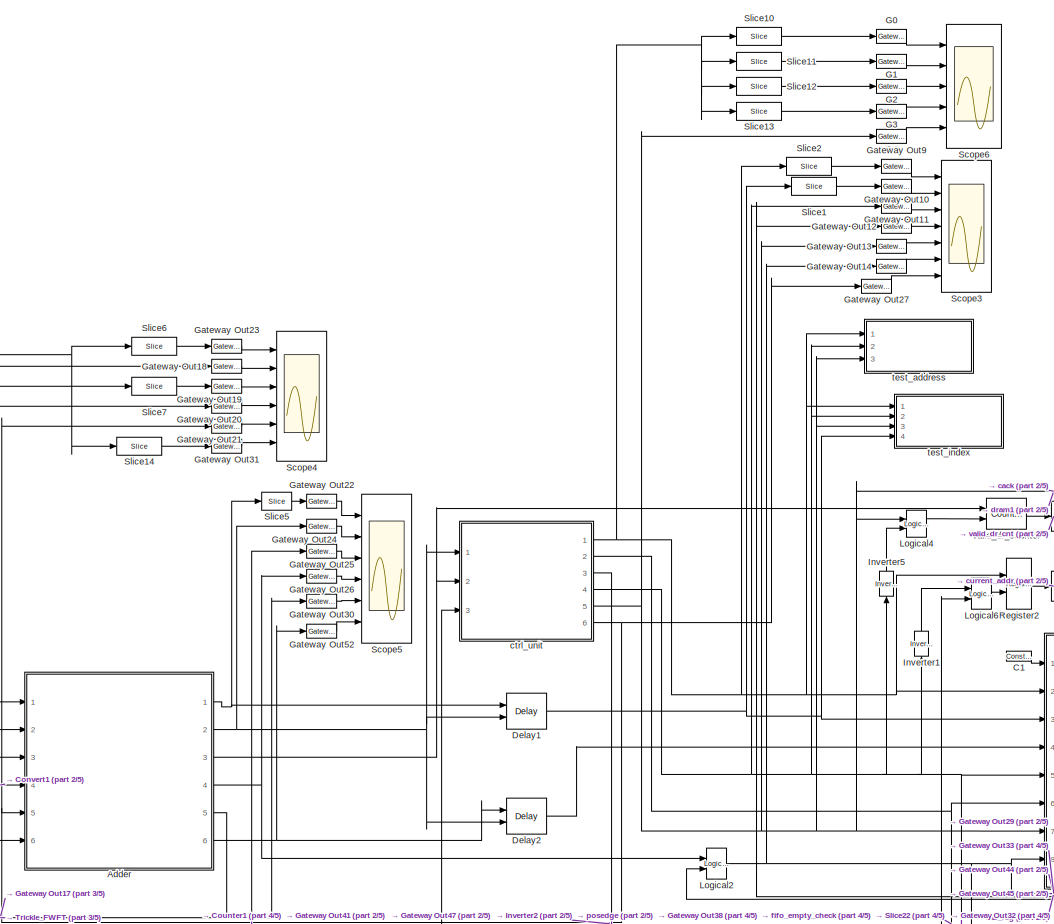
[diagram: dram_vacc0 - part 1/5, top center region]
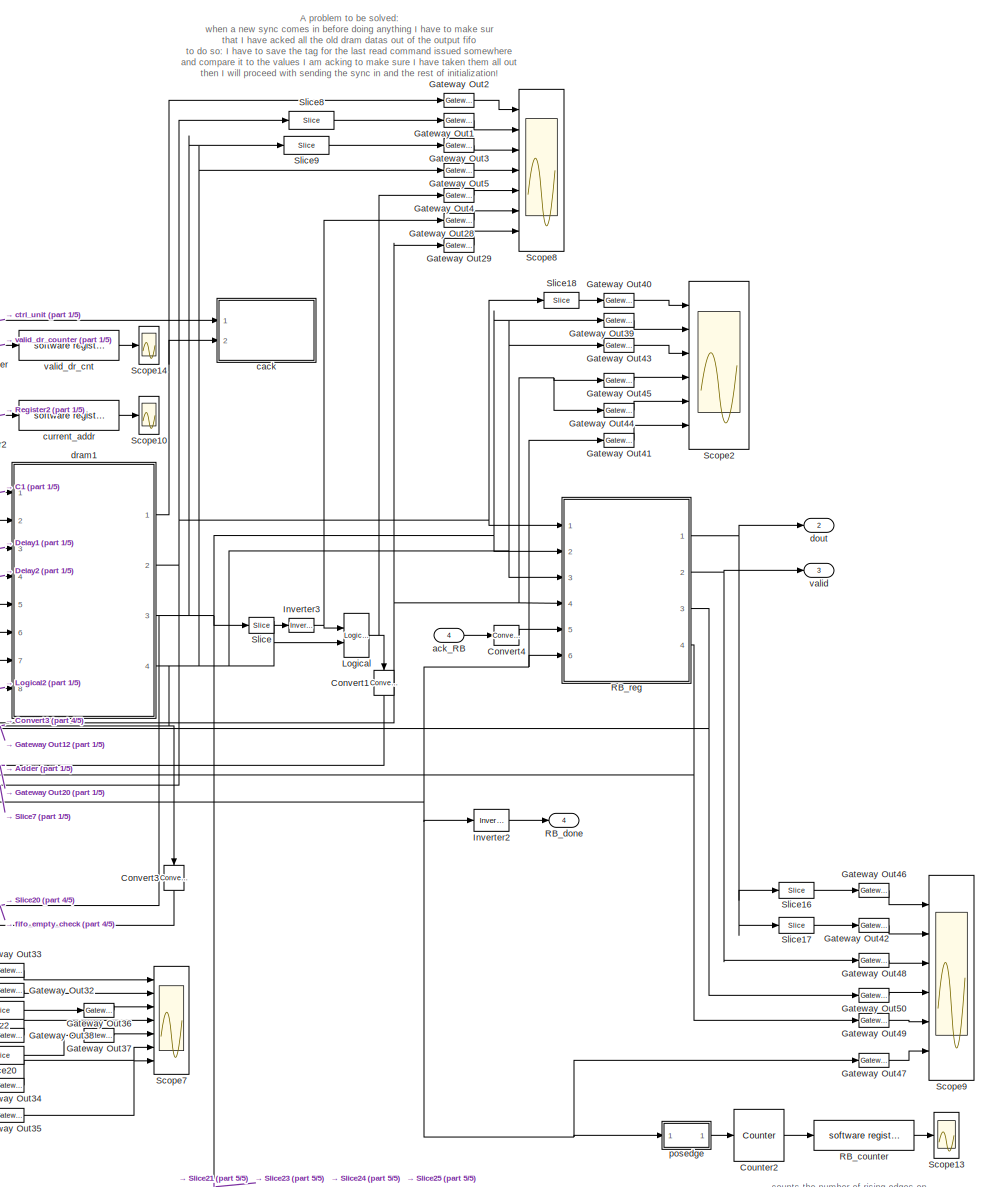
[diagram: dram_vacc0 - part 2/5, right side, full height]
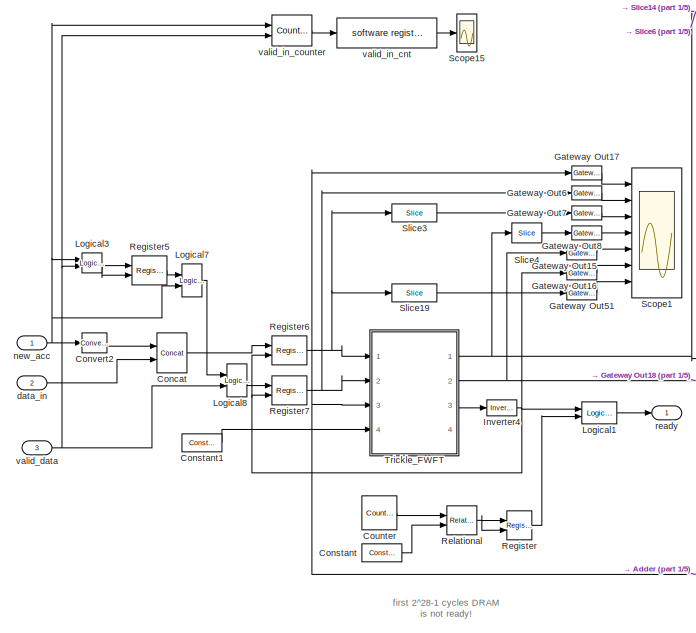
[diagram: dram_vacc0 - part 3/5, middle left region]
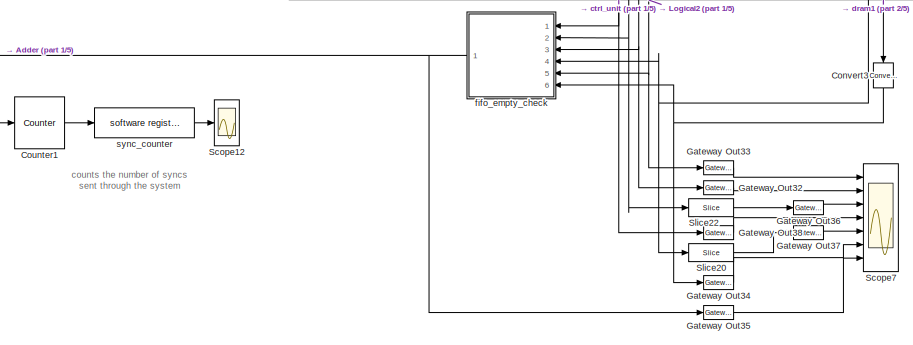
[diagram: dram_vacc0 - part 4/5, bottom center region]
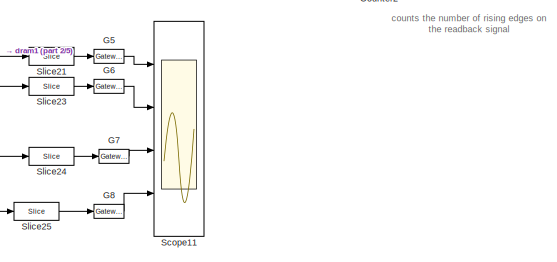
[diagram: dram_vacc0 - part 5/5, bottom right region]
BLOCK [SubSystem] dram_vacc0
  MaskEnableString = on
  MaskIconFrame = on
  MaskIconOpaque = on
  MaskIconRotate = none
  MaskIconUnits = autoscale
  MaskInitialization = valid_length = 36;
  MaskPromptString = Vector length??(# cycles)
  MaskStyleString = edit
  MaskToolTipString = on
  MaskTunableValueString = on
  MaskValueString = 100
  MaskVariables = acc_length=@1;
  MaskVisibilityString = on
  MinAlgLoopOccurrences = off
  Ports = [4, 4]
  RTWSystemCode = Auto
  TreatAsAtomicUnit = off
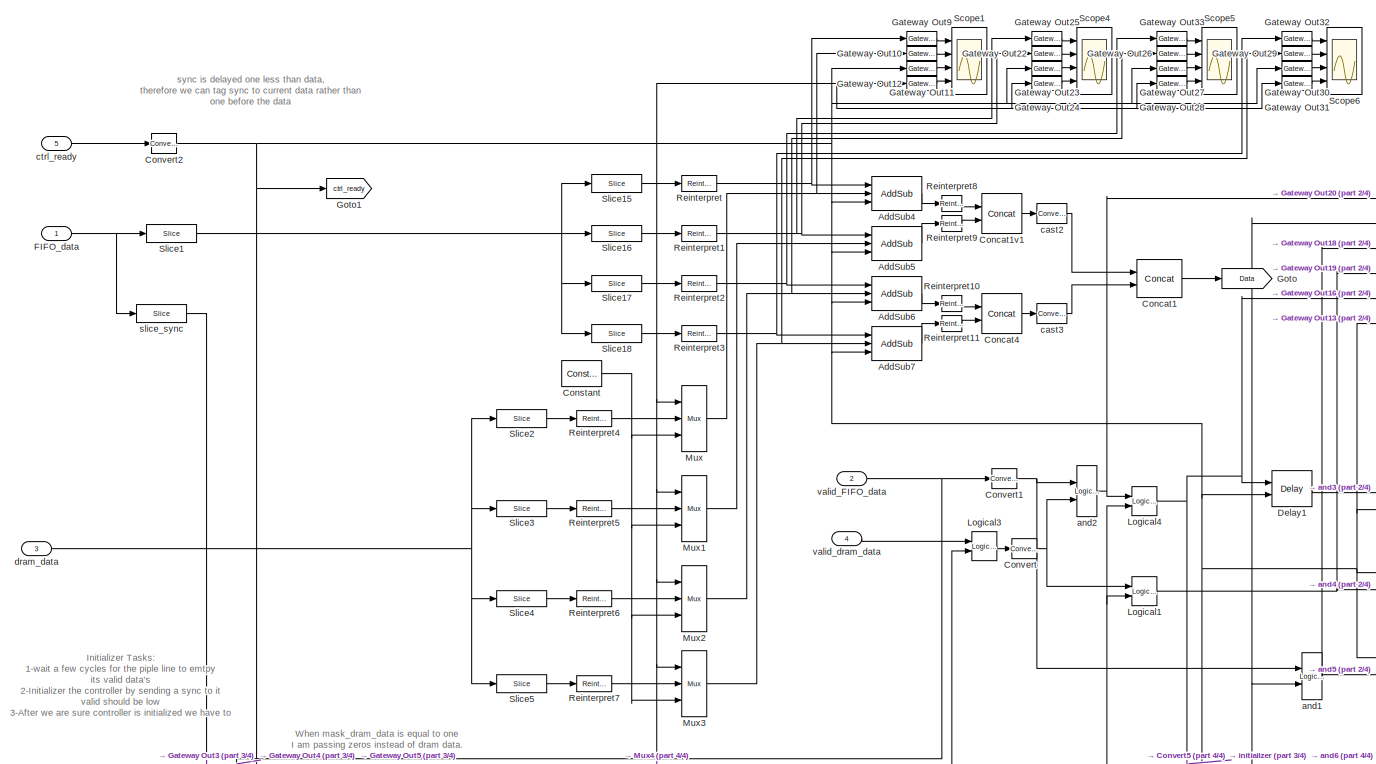
[diagram: dram_vacc0/Adder - part 1/4, top left region]
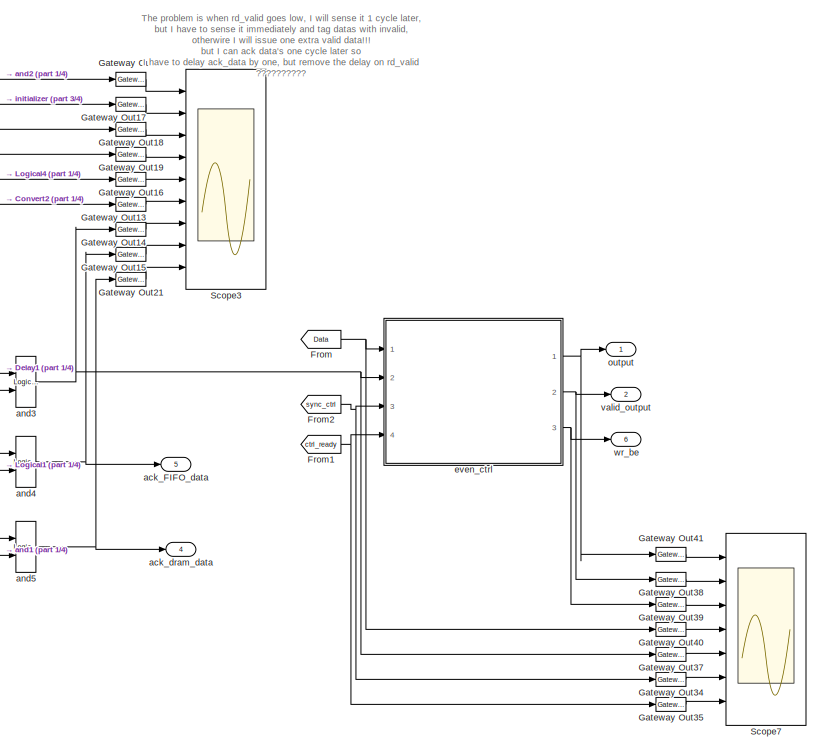
[diagram: dram_vacc0/Adder - part 2/4, middle right region]
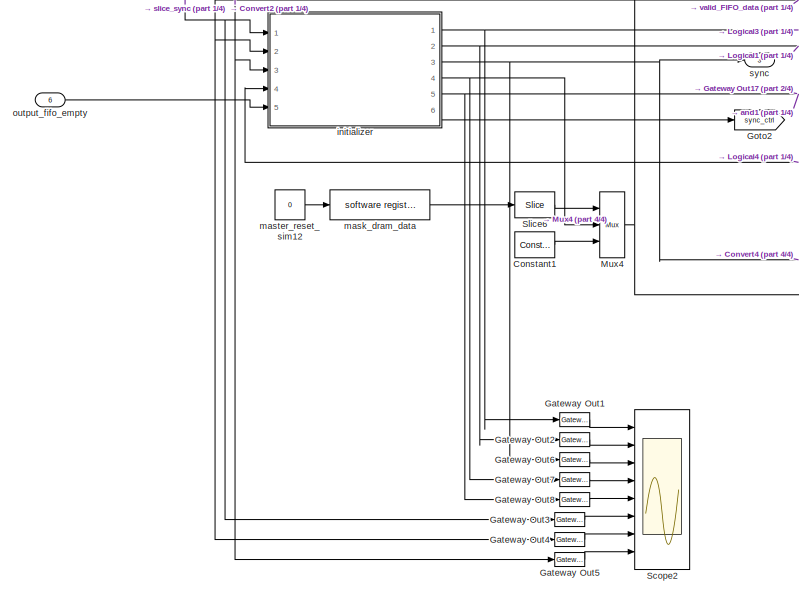
[diagram: dram_vacc0/Adder - part 3/4, bottom left region]
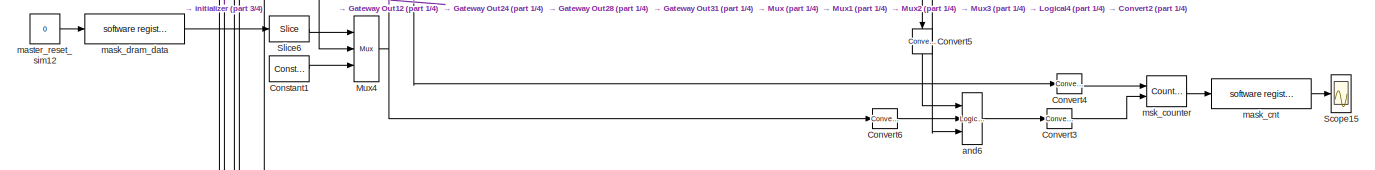
[diagram: dram_vacc0/Adder - part 4/4, bottom center region]
BLOCK [SubSystem] dram_vacc0/Adder
  MinAlgLoopOccurrences = off
  Ports = [6, 6]
  RTWSystemCode = Auto
  TreatAsAtomicUnit = off
BLOCK [Reference] dram_vacc0/Adder/AddSub4  REF=xbsIndex_r3/AddSub
  Ports = [3, 1]
  SourceBlock = xbsIndex_r3/AddSub
  SourceType = Xilinx Adder/Subtractor
  arith_type = Signed  (2's comp)
  bin_pt = 0
  dbl_ovrd = off
  en = on
  explicit_period = on
  gen_core = off
  latency = 3
  mode = Addition
  n_bits = 32
  overflow = Wrap
  period = 1
  pipeline = on
  precision = User Defined
  quantization = Round  (unbiased: +/- Inf)
  show_param = off
  use_carryin = off
  use_carryout = off
  use_core = on
  use_rpm = on
  xl_area = [0, 0, 0, 0, 0, 0, 0]
  xl_use_area = off
BLOCK [Reference] dram_vacc0/Adder/AddSub5  REF=xbsIndex_r3/AddSub
  Ports = [3, 1]
  SourceBlock = xbsIndex_r3/AddSub
  SourceType = Xilinx Adder/Subtractor
  arith_type = Signed  (2's comp)
  bin_pt = 0
  dbl_ovrd = off
  en = on
  explicit_period = on
  gen_core = off
  latency = 3
  mode = Addition
  n_bits = 32
  overflow = Wrap
  period = 1
  pipeline = on
  precision = User Defined
  quantization = Round  (unbiased: +/- Inf)
  show_param = off
  use_carryin = off
  use_carryout = off
  use_core = on
  use_rpm = on
  xl_area = [0, 0, 0, 0, 0, 0, 0]
  xl_use_area = off
BLOCK [Reference] dram_vacc0/Adder/AddSub6  REF=xbsIndex_r3/AddSub
  Ports = [3, 1]
  SourceBlock = xbsIndex_r3/AddSub
  SourceType = Xilinx Adder/Subtractor
  arith_type = Signed  (2's comp)
  bin_pt = 0
  dbl_ovrd = off
  en = on
  explicit_period = on
  gen_core = off
  latency = 3
  mode = Addition
  n_bits = 32
  overflow = Wrap
  period = 1
  pipeline = on
  precision = User Defined
  quantization = Round  (unbiased: +/- Inf)
  show_param = off
  use_carryin = off
  use_carryout = off
  use_core = on
  use_rpm = on
  xl_area = [0, 0, 0, 0, 0, 0, 0]
  xl_use_area = off
BLOCK [Reference] dram_vacc0/Adder/AddSub7  REF=xbsIndex_r3/AddSub
  Ports = [3, 1]
  SourceBlock = xbsIndex_r3/AddSub
  SourceType = Xilinx Adder/Subtractor
  arith_type = Signed  (2's comp)
  bin_pt = 0
  dbl_ovrd = off
  en = on
  explicit_period = on
  gen_core = off
  latency = 3
  mode = Addition
  n_bits = 32
  overflow = Wrap
  period = 1
  pipeline = on
  precision = User Defined
  quantization = Round  (unbiased: +/- Inf)
  show_param = off
  use_carryin = off
  use_carryout = off
  use_core = on
  use_rpm = on
  xl_area = [0, 0, 0, 0, 0, 0, 0]
  xl_use_area = off
BLOCK [Reference] dram_vacc0/Adder/Concat1  REF=xbsIndex_r3/Concat
  Ports = [2, 1]
  SourceBlock = xbsIndex_r3/Concat
  SourceType = Xilinx Bus Concatenator
  dbl_ovrd = off
  explicit_period = off
  num_inputs = 2
  period = 1
BLOCK [Reference] dram_vacc0/Adder/Concat1v1  REF=xbsIndex_r3/Concat
  Ports = [2, 1]
  SourceBlock = xbsIndex_r3/Concat
  SourceType = Xilinx Bus Concatenator
  dbl_ovrd = off
  explicit_period = off
  num_inputs = 2
  period = 1
BLOCK [Reference] dram_vacc0/Adder/Concat4  REF=xbsIndex_r3/Concat
  Ports = [2, 1]
  SourceBlock = xbsIndex_r3/Concat
  SourceType = Xilinx Bus Concatenator
  dbl_ovrd = off
  explicit_period = off
  num_inputs = 2
  period = 1
BLOCK [Reference] dram_vacc0/Adder/Constant  REF=xbsIndex_r3/Constant
  Ports = [0, 1]
  SourceBlock = xbsIndex_r3/Constant
  SourceType = Xilinx Constant Block
  arith_type = Signed  (2's comp)
  bin_pt = 0
  carry = CIN
  const = 0
  dbl_ovrd = off
  equ = P=C
  explicit_period = on
  inp1 = P
  inp2 = PCIN>>17
  iostate = 0
  n_bits = 32
  opr = +
  opselect = C
  period = 1
BLOCK [Reference] dram_vacc0/Adder/Constant1  REF=xbsIndex_r3/Constant
  Ports = [0, 1]
  SourceBlock = xbsIndex_r3/Constant
  SourceType = Xilinx Constant Block
  arith_type = Unsigned
  bin_pt = 0
  carry = CIN
  const = 1
  dbl_ovrd = off
  equ = P=C
  explicit_period = on
  inp1 = P
  inp2 = PCIN>>17
  iostate = 0
  n_bits = 1
  opr = +
  opselect = C
  period = 1
BLOCK [Reference] dram_vacc0/Adder/Convert  REF=xbsIndex_r3/Convert
  Ports = [1, 1]
  SourceBlock = xbsIndex_r3/Convert
  SourceType = Xilinx Converter Block
  arith_type = Boolean
  bin_pt = 6
  dbl_ovrd = off
  explicit_period = off
  inserted_by_tool = off
  latency = 0
  n_bits = 8
  overflow = Wrap
  period = 1
  pipeline = off
  quantization = Truncate
  show_param = off
  xl_area = [0, 0, 0, 0, 0, 0, 0]
  xl_use_area = off
BLOCK [Reference] dram_vacc0/Adder/Convert1  REF=xbsIndex_r3/Convert
  Ports = [1, 1]
  SourceBlock = xbsIndex_r3/Convert
  SourceType = Xilinx Converter Block
  arith_type = Boolean
  bin_pt = 6
  dbl_ovrd = off
  explicit_period = off
  inserted_by_tool = off
  latency = 0
  n_bits = 8
  overflow = Wrap
  period = 1
  pipeline = off
  quantization = Truncate
  show_param = off
  xl_area = [0, 0, 0, 0, 0, 0, 0]
  xl_use_area = off
BLOCK [Reference] dram_vacc0/Adder/Convert2  REF=xbsIndex_r3/Convert
  Ports = [1, 1]
  SourceBlock = xbsIndex_r3/Convert
  SourceType = Xilinx Converter Block
  arith_type = Boolean
  bin_pt = 6
  dbl_ovrd = off
  explicit_period = off
  inserted_by_tool = off
  latency = 0
  n_bits = 8
  overflow = Wrap
  period = 1
  pipeline = off
  quantization = Truncate
  show_param = off
  xl_area = [0, 0, 0, 0, 0, 0, 0]
  xl_use_area = off
BLOCK [Reference] dram_vacc0/Adder/Convert3  REF=xbsIndex_r3/Convert
  Ports = [1, 1]
  SourceBlock = xbsIndex_r3/Convert
  SourceType = Xilinx Converter Block
  arith_type = Boolean
  bin_pt = 6
  dbl_ovrd = off
  explicit_period = off
  inserted_by_tool = off
  latency = 0
  n_bits = 8
  overflow = Wrap
  period = 1
  pipeline = off
  quantization = Truncate
  show_param = off
  xl_area = [0, 0, 0, 0, 0, 0, 0]
  xl_use_area = off
BLOCK [Reference] dram_vacc0/Adder/Convert4  REF=xbsIndex_r3/Convert
  Ports = [1, 1]
  SourceBlock = xbsIndex_r3/Convert
  SourceType = Xilinx Converter Block
  arith_type = Boolean
  bin_pt = 6
  dbl_ovrd = off
  explicit_period = off
  inserted_by_tool = off
  latency = 0
  n_bits = 8
  overflow = Wrap
  period = 1
  pipeline = off
  quantization = Truncate
  show_param = off
  xl_area = [0, 0, 0, 0, 0, 0, 0]
  xl_use_area = off
BLOCK [Reference] dram_vacc0/Adder/Convert5  REF=xbsIndex_r3/Convert
  Ports = [1, 1]
  SourceBlock = xbsIndex_r3/Convert
  SourceType = Xilinx Converter Block
  arith_type = Boolean
  bin_pt = 6
  dbl_ovrd = off
  explicit_period = off
  inserted_by_tool = off
  latency = 0
  n_bits = 8
  overflow = Wrap
  period = 1
  pipeline = off
  quantization = Truncate
  show_param = off
  xl_area = [0, 0, 0, 0, 0, 0, 0]
  xl_use_area = off
BLOCK [Reference] dram_vacc0/Adder/Convert6  REF=xbsIndex_r3/Convert
  Ports = [1, 1]
  SourceBlock = xbsIndex_r3/Convert
  SourceType = Xilinx Converter Block
  arith_type = Boolean
  bin_pt = 6
  dbl_ovrd = off
  explicit_period = off
  inserted_by_tool = off
  latency = 0
  n_bits = 8
  overflow = Wrap
  period = 1
  pipeline = off
  quantization = Truncate
  show_param = off
  xl_area = [0, 0, 0, 0, 0, 0, 0]
  xl_use_area = off
BLOCK [Reference] dram_vacc0/Adder/Delay1  REF=xbsIndex_r3/Delay
  Ports = [2, 1]
  SourceBlock = xbsIndex_r3/Delay
  SourceType = Xilinx Delay Block
  accept_only_valid = off
  dbl_ovrd = off
  en = on
  explicit_period = on
  init_zero = on
  latency = 3
  period = 1
  reg_retiming = off
  show_param = off
  xl_area = [0, 0, 0, 0, 0, 0, 0]
  xl_use_area = off
BLOCK [Inport] dram_vacc0/Adder/FIFO_data
  IconDisplay = Port number
  LatchInput = off
  Port = 1
BLOCK [From] dram_vacc0/Adder/From
  CloseFcn = tagdialog Close
  GotoTag = Data
BLOCK [From] dram_vacc0/Adder/From1
  CloseFcn = tagdialog Close
  GotoTag = ctrl_ready
BLOCK [From] dram_vacc0/Adder/From2
  CloseFcn = tagdialog Close
  GotoTag = sync_ctrl
BLOCK [Reference] dram_vacc0/Adder/Gateway Out1  REF=xbsIndex_r3/Gateway Out
  LOCs = {}
  Ports = [1, 1]
  SourceBlock = xbsIndex_r3/Gateway Out
  SourceType = Xilinx Gateway Out
  arith_type = Boolean
  bin_pt = 6
  hdl_port = off
  locs_specified = off
  nbits = 8
  needs_fixed_name = off
  output_type = Double
  overflow = Wrap
  quantization = Truncate
  show_param = off
  timing_constraint = None
  xl_area = [0, 0, 0, 0, 0, 0, 0]
  xl_use_area = off
BLOCK [Reference] dram_vacc0/Adder/Gateway Out10  REF=xbsIndex_r3/Gateway Out
  LOCs = {}
  Ports = [1, 1]
  SourceBlock = xbsIndex_r3/Gateway Out
  SourceType = Xilinx Gateway Out
  arith_type = Boolean
  bin_pt = 6
  hdl_port = off
  locs_specified = off
  nbits = 8
  needs_fixed_name = off
  output_type = Double
  overflow = Wrap
  quantization = Truncate
  show_param = off
  timing_constraint = None
  xl_area = [0, 0, 0, 0, 0, 0, 0]
  xl_use_area = off
BLOCK [Reference] dram_vacc0/Adder/Gateway Out11  REF=xbsIndex_r3/Gateway Out
  LOCs = {}
  Ports = [1, 1]
  SourceBlock = xbsIndex_r3/Gateway Out
  SourceType = Xilinx Gateway Out
  arith_type = Boolean
  bin_pt = 6
  hdl_port = off
  locs_specified = off
  nbits = 8
  needs_fixed_name = off
  output_type = Double
  overflow = Wrap
  quantization = Truncate
  show_param = off
  timing_constraint = None
  xl_area = [0, 0, 0, 0, 0, 0, 0]
  xl_use_area = off
BLOCK [Reference] dram_vacc0/Adder/Gateway Out12  REF=xbsIndex_r3/Gateway Out
  LOCs = {}
  Ports = [1, 1]
  SourceBlock = xbsIndex_r3/Gateway Out
  SourceType = Xilinx Gateway Out
  arith_type = Boolean
  bin_pt = 6
  hdl_port = off
  locs_specified = off
  nbits = 8
  needs_fixed_name = off
  output_type = Double
  overflow = Wrap
  quantization = Truncate
  show_param = off
  timing_constraint = None
  xl_area = [0, 0, 0, 0, 0, 0, 0]
  xl_use_area = off
BLOCK [Reference] dram_vacc0/Adder/Gateway Out13  REF=xbsIndex_r3/Gateway Out
  LOCs = {}
  Ports = [1, 1]
  SourceBlock = xbsIndex_r3/Gateway Out
  SourceType = Xilinx Gateway Out
  arith_type = Boolean
  bin_pt = 6
  hdl_port = off
  locs_specified = off
  nbits = 8
  needs_fixed_name = off
  output_type = Double
  overflow = Wrap
  quantization = Truncate
  show_param = off
  timing_constraint = None
  xl_area = [0, 0, 0, 0, 0, 0, 0]
  xl_use_area = off
BLOCK [Reference] dram_vacc0/Adder/Gateway Out14  REF=xbsIndex_r3/Gateway Out
  LOCs = {}
  Ports = [1, 1]
  SourceBlock = xbsIndex_r3/Gateway Out
  SourceType = Xilinx Gateway Out
  arith_type = Boolean
  bin_pt = 6
  hdl_port = off
  locs_specified = off
  nbits = 8
  needs_fixed_name = off
  output_type = Double
  overflow = Wrap
  quantization = Truncate
  show_param = off
  timing_constraint = None
  xl_area = [0, 0, 0, 0, 0, 0, 0]
  xl_use_area = off
BLOCK [Reference] dram_vacc0/Adder/Gateway Out15  REF=xbsIndex_r3/Gateway Out
  LOCs = {}
  Ports = [1, 1]
  SourceBlock = xbsIndex_r3/Gateway Out
  SourceType = Xilinx Gateway Out
  arith_type = Boolean
  bin_pt = 6
  hdl_port = off
  locs_specified = off
  nbits = 8
  needs_fixed_name = off
  output_type = Double
  overflow = Wrap
  quantization = Truncate
  show_param = off
  timing_constraint = None
  xl_area = [0, 0, 0, 0, 0, 0, 0]
  xl_use_area = off
BLOCK [Reference] dram_vacc0/Adder/Gateway Out16  REF=xbsIndex_r3/Gateway Out
  LOCs = {}
  Ports = [1, 1]
  SourceBlock = xbsIndex_r3/Gateway Out
  SourceType = Xilinx Gateway Out
  arith_type = Boolean
  bin_pt = 6
  hdl_port = off
  locs_specified = off
  nbits = 8
  needs_fixed_name = off
  output_type = Double
  overflow = Wrap
  quantization = Truncate
  show_param = off
  timing_constraint = None
  xl_area = [0, 0, 0, 0, 0, 0, 0]
  xl_use_area = off
BLOCK [Reference] dram_vacc0/Adder/Gateway Out17  REF=xbsIndex_r3/Gateway Out
  LOCs = {}
  Ports = [1, 1]
  SourceBlock = xbsIndex_r3/Gateway Out
  SourceType = Xilinx Gateway Out
  arith_type = Boolean
  bin_pt = 6
  hdl_port = off
  locs_specified = off
  nbits = 8
  needs_fixed_name = off
  output_type = Double
  overflow = Wrap
  quantization = Truncate
  show_param = off
  timing_constraint = None
  xl_area = [0, 0, 0, 0, 0, 0, 0]
  xl_use_area = off
BLOCK [Reference] dram_vacc0/Adder/Gateway Out18  REF=xbsIndex_r3/Gateway Out
  LOCs = {}
  Ports = [1, 1]
  SourceBlock = xbsIndex_r3/Gateway Out
  SourceType = Xilinx Gateway Out
  arith_type = Boolean
  bin_pt = 6
  hdl_port = off
  locs_specified = off
  nbits = 8
  needs_fixed_name = off
  output_type = Double
  overflow = Wrap
  quantization = Truncate
  show_param = off
  timing_constraint = None
  xl_area = [0, 0, 0, 0, 0, 0, 0]
  xl_use_area = off
BLOCK [Reference] dram_vacc0/Adder/Gateway Out19  REF=xbsIndex_r3/Gateway Out
  LOCs = {}
  Ports = [1, 1]
  SourceBlock = xbsIndex_r3/Gateway Out
  SourceType = Xilinx Gateway Out
  arith_type = Boolean
  bin_pt = 6
  hdl_port = off
  locs_specified = off
  nbits = 8
  needs_fixed_name = off
  output_type = Double
  overflow = Wrap
  quantization = Truncate
  show_param = off
  timing_constraint = None
  xl_area = [0, 0, 0, 0, 0, 0, 0]
  xl_use_area = off
BLOCK [Reference] dram_vacc0/Adder/Gateway Out2  REF=xbsIndex_r3/Gateway Out
  LOCs = {}
  Ports = [1, 1]
  SourceBlock = xbsIndex_r3/Gateway Out
  SourceType = Xilinx Gateway Out
  arith_type = Boolean
  bin_pt = 6
  hdl_port = off
  locs_specified = off
  nbits = 8
  needs_fixed_name = off
  output_type = Double
  overflow = Wrap
  quantization = Truncate
  show_param = off
  timing_constraint = None
  xl_area = [0, 0, 0, 0, 0, 0, 0]
  xl_use_area = off
BLOCK [Reference] dram_vacc0/Adder/Gateway Out20  REF=xbsIndex_r3/Gateway Out
  LOCs = {}
  Ports = [1, 1]
  SourceBlock = xbsIndex_r3/Gateway Out
  SourceType = Xilinx Gateway Out
  arith_type = Boolean
  bin_pt = 6
  hdl_port = off
  locs_specified = off
  nbits = 8
  needs_fixed_name = off
  output_type = Double
  overflow = Wrap
  quantization = Truncate
  show_param = off
  timing_constraint = None
  xl_area = [0, 0, 0, 0, 0, 0, 0]
  xl_use_area = off
BLOCK [Reference] dram_vacc0/Adder/Gateway Out21  REF=xbsIndex_r3/Gateway Out
  LOCs = {}
  Ports = [1, 1]
  SourceBlock = xbsIndex_r3/Gateway Out
  SourceType = Xilinx Gateway Out
  arith_type = Boolean
  bin_pt = 6
  hdl_port = off
  locs_specified = off
  nbits = 8
  needs_fixed_name = off
  output_type = Double
  overflow = Wrap
  quantization = Truncate
  show_param = off
  timing_constraint = None
  xl_area = [0, 0, 0, 0, 0, 0, 0]
  xl_use_area = off
BLOCK [Reference] dram_vacc0/Adder/Gateway Out22  REF=xbsIndex_r3/Gateway Out
  LOCs = {}
  Ports = [1, 1]
  SourceBlock = xbsIndex_r3/Gateway Out
  SourceType = Xilinx Gateway Out
  arith_type = Boolean
  bin_pt = 6
  hdl_port = off
  locs_specified = off
  nbits = 8
  needs_fixed_name = off
  output_type = Double
  overflow = Wrap
  quantization = Truncate
  show_param = off
  timing_constraint = None
  xl_area = [0, 0, 0, 0, 0, 0, 0]
  xl_use_area = off
BLOCK [Reference] dram_vacc0/Adder/Gateway Out23  REF=xbsIndex_r3/Gateway Out
  LOCs = {}
  Ports = [1, 1]
  SourceBlock = xbsIndex_r3/Gateway Out
  SourceType = Xilinx Gateway Out
  arith_type = Boolean
  bin_pt = 6
  hdl_port = off
  locs_specified = off
  nbits = 8
  needs_fixed_name = off
  output_type = Double
  overflow = Wrap
  quantization = Truncate
  show_param = off
  timing_constraint = None
  xl_area = [0, 0, 0, 0, 0, 0, 0]
  xl_use_area = off
BLOCK [Reference] dram_vacc0/Adder/Gateway Out24  REF=xbsIndex_r3/Gateway Out
  LOCs = {}
  Ports = [1, 1]
  SourceBlock = xbsIndex_r3/Gateway Out
  SourceType = Xilinx Gateway Out
  arith_type = Boolean
  bin_pt = 6
  hdl_port = off
  locs_specified = off
  nbits = 8
  needs_fixed_name = off
  output_type = Double
  overflow = Wrap
  quantization = Truncate
  show_param = off
  timing_constraint = None
  xl_area = [0, 0, 0, 0, 0, 0, 0]
  xl_use_area = off
BLOCK [Reference] dram_vacc0/Adder/Gateway Out25  REF=xbsIndex_r3/Gateway Out
  LOCs = {}
  Ports = [1, 1]
  SourceBlock = xbsIndex_r3/Gateway Out
  SourceType = Xilinx Gateway Out
  arith_type = Boolean
  bin_pt = 6
  hdl_port = off
  locs_specified = off
  nbits = 8
  needs_fixed_name = off
  output_type = Double
  overflow = Wrap
  quantization = Truncate
  show_param = off
  timing_constraint = None
  xl_area = [0, 0, 0, 0, 0, 0, 0]
  xl_use_area = off
BLOCK [Reference] dram_vacc0/Adder/Gateway Out26  REF=xbsIndex_r3/Gateway Out
  LOCs = {}
  Ports = [1, 1]
  SourceBlock = xbsIndex_r3/Gateway Out
  SourceType = Xilinx Gateway Out
  arith_type = Boolean
  bin_pt = 6
  hdl_port = off
  locs_specified = off
  nbits = 8
  needs_fixed_name = off
  output_type = Double
  overflow = Wrap
  quantization = Truncate
  show_param = off
  timing_constraint = None
  xl_area = [0, 0, 0, 0, 0, 0, 0]
  xl_use_area = off
BLOCK [Reference] dram_vacc0/Adder/Gateway Out27  REF=xbsIndex_r3/Gateway Out
  LOCs = {}
  Ports = [1, 1]
  SourceBlock = xbsIndex_r3/Gateway Out
  SourceType = Xilinx Gateway Out
  arith_type = Boolean
  bin_pt = 6
  hdl_port = off
  locs_specified = off
  nbits = 8
  needs_fixed_name = off
  output_type = Double
  overflow = Wrap
  quantization = Truncate
  show_param = off
  timing_constraint = None
  xl_area = [0, 0, 0, 0, 0, 0, 0]
  xl_use_area = off
BLOCK [Reference] dram_vacc0/Adder/Gateway Out28  REF=xbsIndex_r3/Gateway Out
  LOCs = {}
  Ports = [1, 1]
  SourceBlock = xbsIndex_r3/Gateway Out
  SourceType = Xilinx Gateway Out
  arith_type = Boolean
  bin_pt = 6
  hdl_port = off
  locs_specified = off
  nbits = 8
  needs_fixed_name = off
  output_type = Double
  overflow = Wrap
  quantization = Truncate
  show_param = off
  timing_constraint = None
  xl_area = [0, 0, 0, 0, 0, 0, 0]
  xl_use_area = off
BLOCK [Reference] dram_vacc0/Adder/Gateway Out29  REF=xbsIndex_r3/Gateway Out
  LOCs = {}
  Ports = [1, 1]
  SourceBlock = xbsIndex_r3/Gateway Out
  SourceType = Xilinx Gateway Out
  arith_type = Boolean
  bin_pt = 6
  hdl_port = off
  locs_specified = off
  nbits = 8
  needs_fixed_name = off
  output_type = Double
  overflow = Wrap
  quantization = Truncate
  show_param = off
  timing_constraint = None
  xl_area = [0, 0, 0, 0, 0, 0, 0]
  xl_use_area = off
BLOCK [Reference] dram_vacc0/Adder/Gateway Out3  REF=xbsIndex_r3/Gateway Out
  LOCs = {}
  Ports = [1, 1]
  SourceBlock = xbsIndex_r3/Gateway Out
  SourceType = Xilinx Gateway Out
  arith_type = Boolean
  bin_pt = 6
  hdl_port = off
  locs_specified = off
  nbits = 8
  needs_fixed_name = off
  output_type = Double
  overflow = Wrap
  quantization = Truncate
  show_param = off
  timing_constraint = None
  xl_area = [0, 0, 0, 0, 0, 0, 0]
  xl_use_area = off
BLOCK [Reference] dram_vacc0/Adder/Gateway Out30  REF=xbsIndex_r3/Gateway Out
  LOCs = {}
  Ports = [1, 1]
  SourceBlock = xbsIndex_r3/Gateway Out
  SourceType = Xilinx Gateway Out
  arith_type = Boolean
  bin_pt = 6
  hdl_port = off
  locs_specified = off
  nbits = 8
  needs_fixed_name = off
  output_type = Double
  overflow = Wrap
  quantization = Truncate
  show_param = off
  timing_constraint = None
  xl_area = [0, 0, 0, 0, 0, 0, 0]
  xl_use_area = off
BLOCK [Reference] dram_vacc0/Adder/Gateway Out31  REF=xbsIndex_r3/Gateway Out
  LOCs = {}
  Ports = [1, 1]
  SourceBlock = xbsIndex_r3/Gateway Out
  SourceType = Xilinx Gateway Out
  arith_type = Boolean
  bin_pt = 6
  hdl_port = off
  locs_specified = off
  nbits = 8
  needs_fixed_name = off
  output_type = Double
  overflow = Wrap
  quantization = Truncate
  show_param = off
  timing_constraint = None
  xl_area = [0, 0, 0, 0, 0, 0, 0]
  xl_use_area = off
BLOCK [Reference] dram_vacc0/Adder/Gateway Out32  REF=xbsIndex_r3/Gateway Out
  LOCs = {}
  Ports = [1, 1]
  SourceBlock = xbsIndex_r3/Gateway Out
  SourceType = Xilinx Gateway Out
  arith_type = Boolean
  bin_pt = 6
  hdl_port = off
  locs_specified = off
  nbits = 8
  needs_fixed_name = off
  output_type = Double
  overflow = Wrap
  quantization = Truncate
  show_param = off
  timing_constraint = None
  xl_area = [0, 0, 0, 0, 0, 0, 0]
  xl_use_area = off
BLOCK [Reference] dram_vacc0/Adder/Gateway Out33  REF=xbsIndex_r3/Gateway Out
  LOCs = {}
  Ports = [1, 1]
  SourceBlock = xbsIndex_r3/Gateway Out
  SourceType = Xilinx Gateway Out
  arith_type = Boolean
  bin_pt = 6
  hdl_port = off
  locs_specified = off
  nbits = 8
  needs_fixed_name = off
  output_type = Double
  overflow = Wrap
  quantization = Truncate
  show_param = off
  timing_constraint = None
  xl_area = [0, 0, 0, 0, 0, 0, 0]
  xl_use_area = off
BLOCK [Reference] dram_vacc0/Adder/Gateway Out34  REF=xbsIndex_r3/Gateway Out
  LOCs = {}
  Ports = [1, 1]
  SourceBlock = xbsIndex_r3/Gateway Out
  SourceType = Xilinx Gateway Out
  arith_type = Boolean
  bin_pt = 6
  hdl_port = off
  locs_specified = off
  nbits = 8
  needs_fixed_name = off
  output_type = Double
  overflow = Wrap
  quantization = Truncate
  show_param = off
  timing_constraint = None
  xl_area = [0, 0, 0, 0, 0, 0, 0]
  xl_use_area = off
BLOCK [Reference] dram_vacc0/Adder/Gateway Out35  REF=xbsIndex_r3/Gateway Out
  LOCs = {}
  Ports = [1, 1]
  SourceBlock = xbsIndex_r3/Gateway Out
  SourceType = Xilinx Gateway Out
  arith_type = Boolean
  bin_pt = 6
  hdl_port = off
  locs_specified = off
  nbits = 8
  needs_fixed_name = off
  output_type = Double
  overflow = Wrap
  quantization = Truncate
  show_param = off
  timing_constraint = None
  xl_area = [0, 0, 0, 0, 0, 0, 0]
  xl_use_area = off
BLOCK [Reference] dram_vacc0/Adder/Gateway Out37  REF=xbsIndex_r3/Gateway Out
  LOCs = {}
  Ports = [1, 1]
  SourceBlock = xbsIndex_r3/Gateway Out
  SourceType = Xilinx Gateway Out
  arith_type = Boolean
  bin_pt = 6
  hdl_port = off
  locs_specified = off
  nbits = 8
  needs_fixed_name = off
  output_type = Double
  overflow = Wrap
  quantization = Truncate
  show_param = off
  timing_constraint = None
  xl_area = [0, 0, 0, 0, 0, 0, 0]
  xl_use_area = off
BLOCK [Reference] dram_vacc0/Adder/Gateway Out38  REF=xbsIndex_r3/Gateway Out
  LOCs = {}
  Ports = [1, 1]
  SourceBlock = xbsIndex_r3/Gateway Out
  SourceType = Xilinx Gateway Out
  arith_type = Boolean
  bin_pt = 6
  hdl_port = off
  locs_specified = off
  nbits = 8
  needs_fixed_name = off
  output_type = Double
  overflow = Wrap
  quantization = Truncate
  show_param = off
  timing_constraint = None
  xl_area = [0, 0, 0, 0, 0, 0, 0]
  xl_use_area = off
BLOCK [Reference] dram_vacc0/Adder/Gateway Out39  REF=xbsIndex_r3/Gateway Out
  LOCs = {}
  Ports = [1, 1]
  SourceBlock = xbsIndex_r3/Gateway Out
  SourceType = Xilinx Gateway Out
  arith_type = Boolean
  bin_pt = 6
  hdl_port = off
  locs_specified = off
  nbits = 8
  needs_fixed_name = off
  output_type = Double
  overflow = Wrap
  quantization = Truncate
  show_param = off
  timing_constraint = None
  xl_area = [0, 0, 0, 0, 0, 0, 0]
  xl_use_area = off
BLOCK [Reference] dram_vacc0/Adder/Gateway Out4  REF=xbsIndex_r3/Gateway Out
  LOCs = {}
  Ports = [1, 1]
  SourceBlock = xbsIndex_r3/Gateway Out
  SourceType = Xilinx Gateway Out
  arith_type = Boolean
  bin_pt = 6
  hdl_port = off
  locs_specified = off
  nbits = 8
  needs_fixed_name = off
  output_type = Double
  overflow = Wrap
  quantization = Truncate
  show_param = off
  timing_constraint = None
  xl_area = [0, 0, 0, 0, 0, 0, 0]
  xl_use_area = off
BLOCK [Reference] dram_vacc0/Adder/Gateway Out40  REF=xbsIndex_r3/Gateway Out
  LOCs = {}
  Ports = [1, 1]
  SourceBlock = xbsIndex_r3/Gateway Out
  SourceType = Xilinx Gateway Out
  arith_type = Boolean
  bin_pt = 6
  hdl_port = off
  locs_specified = off
  nbits = 8
  needs_fixed_name = off
  output_type = Double
  overflow = Wrap
  quantization = Truncate
  show_param = off
  timing_constraint = None
  xl_area = [0, 0, 0, 0, 0, 0, 0]
  xl_use_area = off
BLOCK [Reference] dram_vacc0/Adder/Gateway Out41  REF=xbsIndex_r3/Gateway Out
  LOCs = {}
  Ports = [1, 1]
  SourceBlock = xbsIndex_r3/Gateway Out
  SourceType = Xilinx Gateway Out
  arith_type = Boolean
  bin_pt = 6
  hdl_port = off
  locs_specified = off
  nbits = 8
  needs_fixed_name = off
  output_type = Double
  overflow = Wrap
  quantization = Truncate
  show_param = off
  timing_constraint = None
  xl_area = [0, 0, 0, 0, 0, 0, 0]
  xl_use_area = off
BLOCK [Reference] dram_vacc0/Adder/Gateway Out5  REF=xbsIndex_r3/Gateway Out
  LOCs = {}
  Ports = [1, 1]
  SourceBlock = xbsIndex_r3/Gateway Out
  SourceType = Xilinx Gateway Out
  arith_type = Boolean
  bin_pt = 6
  hdl_port = off
  locs_specified = off
  nbits = 8
  needs_fixed_name = off
  output_type = Double
  overflow = Wrap
  quantization = Truncate
  show_param = off
  timing_constraint = None
  xl_area = [0, 0, 0, 0, 0, 0, 0]
  xl_use_area = off
BLOCK [Reference] dram_vacc0/Adder/Gateway Out6  REF=xbsIndex_r3/Gateway Out
  LOCs = {}
  Ports = [1, 1]
  SourceBlock = xbsIndex_r3/Gateway Out
  SourceType = Xilinx Gateway Out
  arith_type = Boolean
  bin_pt = 6
  hdl_port = off
  locs_specified = off
  nbits = 8
  needs_fixed_name = off
  output_type = Double
  overflow = Wrap
  quantization = Truncate
  show_param = off
  timing_constraint = None
  xl_area = [0, 0, 0, 0, 0, 0, 0]
  xl_use_area = off
BLOCK [Reference] dram_vacc0/Adder/Gateway Out7  REF=xbsIndex_r3/Gateway Out
  LOCs = {}
  Ports = [1, 1]
  SourceBlock = xbsIndex_r3/Gateway Out
  SourceType = Xilinx Gateway Out
  arith_type = Boolean
  bin_pt = 6
  hdl_port = off
  locs_specified = off
  nbits = 8
  needs_fixed_name = off
  output_type = Double
  overflow = Wrap
  quantization = Truncate
  show_param = off
  timing_constraint = None
  xl_area = [0, 0, 0, 0, 0, 0, 0]
  xl_use_area = off
BLOCK [Reference] dram_vacc0/Adder/Gateway Out8  REF=xbsIndex_r3/Gateway Out
  LOCs = {}
  Ports = [1, 1]
  SourceBlock = xbsIndex_r3/Gateway Out
  SourceType = Xilinx Gateway Out
  arith_type = Boolean
  bin_pt = 6
  hdl_port = off
  locs_specified = off
  nbits = 8
  needs_fixed_name = off
  output_type = Double
  overflow = Wrap
  quantization = Truncate
  show_param = off
  timing_constraint = None
  xl_area = [0, 0, 0, 0, 0, 0, 0]
  xl_use_area = off
BLOCK [Reference] dram_vacc0/Adder/Gateway Out9  REF=xbsIndex_r3/Gateway Out
  LOCs = {}
  Ports = [1, 1]
  SourceBlock = xbsIndex_r3/Gateway Out
  SourceType = Xilinx Gateway Out
  arith_type = Boolean
  bin_pt = 6
  hdl_port = off
  locs_specified = off
  nbits = 8
  needs_fixed_name = off
  output_type = Double
  overflow = Wrap
  quantization = Truncate
  show_param = off
  timing_constraint = None
  xl_area = [0, 0, 0, 0, 0, 0, 0]
  xl_use_area = off
BLOCK [Goto] dram_vacc0/Adder/Goto
  GotoTag = Data
  TagVisibility = local
BLOCK [Goto] dram_vacc0/Adder/Goto1
  GotoTag = ctrl_ready
  TagVisibility = local
BLOCK [Goto] dram_vacc0/Adder/Goto2
  GotoTag = sync_ctrl
  TagVisibility = local
BLOCK [Reference] dram_vacc0/Adder/Logical1  REF=xbsIndex_r3/Logical
  Ports = [2, 1]
  SourceBlock = xbsIndex_r3/Logical
  SourceType = Xilinx Logical Block
  align_bp = on
  arith_type = Unsigned
  bin_pt = 2
  dbl_ovrd = off
  en = off
  explicit_period = off
  inputs = 2
  latency = 0
  logical_function = OR
  n_bits = 8
  period = 1
  precision = Full
  show_param = off
  xl_area = [0, 0, 0, 0, 0, 0, 0]
  xl_use_area = off
BLOCK [Reference] dram_vacc0/Adder/Logical3  REF=xbsIndex_r3/Logical
  Ports = [2, 1]
  SourceBlock = xbsIndex_r3/Logical
  SourceType = Xilinx Logical Block
  align_bp = on
  arith_type = Unsigned
  bin_pt = 2
  dbl_ovrd = off
  en = off
  explicit_period = off
  inputs = 2
  latency = 0
  logical_function = AND
  n_bits = 8
  period = 1
  precision = Full
  show_param = off
  xl_area = [0, 0, 0, 0, 0, 0, 0]
  xl_use_area = off
BLOCK [Reference] dram_vacc0/Adder/Logical4  REF=xbsIndex_r3/Logical
  Ports = [2, 1]
  SourceBlock = xbsIndex_r3/Logical
  SourceType = Xilinx Logical Block
  align_bp = on
  arith_type = Unsigned
  bin_pt = 2
  dbl_ovrd = off
  en = off
  explicit_period = off
  inputs = 2
  latency = 0
  logical_function = OR
  n_bits = 8
  period = 1
  precision = Full
  show_param = off
  xl_area = [0, 0, 0, 0, 0, 0, 0]
  xl_use_area = off
BLOCK [Reference] dram_vacc0/Adder/Mux  REF=xbsIndex_r3/Mux
  Ports = [3, 1]
  SourceBlock = xbsIndex_r3/Mux
  SourceType = Xilinx Multiplexer Block
  arith_type = Signed  (2's comp)
  bin_pt = 2
  dbl_ovrd = off
  en = off
  explicit_period = off
  gen_core = off
  inputs = 2
  latency = 0
  mux_type = off
  n_bits = 8
  overflow = Wrap
  period = 1
  precision = Full
  quantization = Truncate
  show_param = off
  use_rpm = off
  xl_area = [0, 0, 0, 0, 0, 0, 0]
  xl_use_area = off
BLOCK [Reference] dram_vacc0/Adder/Mux1  REF=xbsIndex_r3/Mux
  Ports = [3, 1]
  SourceBlock = xbsIndex_r3/Mux
  SourceType = Xilinx Multiplexer Block
  arith_type = Signed  (2's comp)
  bin_pt = 2
  dbl_ovrd = off
  en = off
  explicit_period = off
  gen_core = off
  inputs = 2
  latency = 0
  mux_type = off
  n_bits = 8
  overflow = Wrap
  period = 1
  precision = Full
  quantization = Truncate
  show_param = off
  use_rpm = off
  xl_area = [0, 0, 0, 0, 0, 0, 0]
  xl_use_area = off
BLOCK [Reference] dram_vacc0/Adder/Mux2  REF=xbsIndex_r3/Mux
  Ports = [3, 1]
  SourceBlock = xbsIndex_r3/Mux
  SourceType = Xilinx Multiplexer Block
  arith_type = Signed  (2's comp)
  bin_pt = 2
  dbl_ovrd = off
  en = off
  explicit_period = off
  gen_core = off
  inputs = 2
  latency = 0
  mux_type = off
  n_bits = 8
  overflow = Wrap
  period = 1
  precision = Full
  quantization = Truncate
  show_param = off
  use_rpm = off
  xl_area = [0, 0, 0, 0, 0, 0, 0]
  xl_use_area = off
BLOCK [Reference] dram_vacc0/Adder/Mux3  REF=xbsIndex_r3/Mux
  Ports = [3, 1]
  SourceBlock = xbsIndex_r3/Mux
  SourceType = Xilinx Multiplexer Block
  arith_type = Signed  (2's comp)
  bin_pt = 2
  dbl_ovrd = off
  en = off
  explicit_period = off
  gen_core = off
  inputs = 2
  latency = 0
  mux_type = off
  n_bits = 8
  overflow = Wrap
  period = 1
  precision = Full
  quantization = Truncate
  show_param = off
  use_rpm = off
  xl_area = [0, 0, 0, 0, 0, 0, 0]
  xl_use_area = off
BLOCK [Reference] dram_vacc0/Adder/Mux4  REF=xbsIndex_r3/Mux
  Ports = [3, 1]
  SourceBlock = xbsIndex_r3/Mux
  SourceType = Xilinx Multiplexer Block
  arith_type = Signed  (2's comp)
  bin_pt = 2
  dbl_ovrd = off
  en = off
  explicit_period = off
  gen_core = off
  inputs = 2
  latency = 0
  mux_type = off
  n_bits = 8
  overflow = Wrap
  period = 1
  precision = Full
  quantization = Truncate
  show_param = off
  use_rpm = off
  xl_area = [0, 0, 0, 0, 0, 0, 0]
  xl_use_area = off
BLOCK [Reference] dram_vacc0/Adder/Reinterpret  REF=xbsIndex_r3/Reinterpret
  Ports = [1, 1]
  SourceBlock = xbsIndex_r3/Reinterpret
  SourceType = Xilinx Type Reinterpreting Block
  arith_type = Signed  (2's comp)
  bin_pt = 0
  force_arith_type = on
  force_bin_pt = on
  force_valid = on
BLOCK [Reference] dram_vacc0/Adder/Reinterpret1  REF=xbsIndex_r3/Reinterpret
  Ports = [1, 1]
  SourceBlock = xbsIndex_r3/Reinterpret
  SourceType = Xilinx Type Reinterpreting Block
  arith_type = Signed  (2's comp)
  bin_pt = 0
  force_arith_type = on
  force_bin_pt = on
  force_valid = on
BLOCK [Reference] dram_vacc0/Adder/Reinterpret10  REF=xbsIndex_r3/Reinterpret
  Ports = [1, 1]
  SourceBlock = xbsIndex_r3/Reinterpret
  SourceType = Xilinx Type Reinterpreting Block
  arith_type = Unsigned
  bin_pt = 0
  force_arith_type = on
  force_bin_pt = on
  force_valid = on
BLOCK [Reference] dram_vacc0/Adder/Reinterpret11  REF=xbsIndex_r3/Reinterpret
  Ports = [1, 1]
  SourceBlock = xbsIndex_r3/Reinterpret
  SourceType = Xilinx Type Reinterpreting Block
  arith_type = Unsigned
  bin_pt = 0
  force_arith_type = on
  force_bin_pt = on
  force_valid = on
BLOCK [Reference] dram_vacc0/Adder/Reinterpret2  REF=xbsIndex_r3/Reinterpret
  Ports = [1, 1]
  SourceBlock = xbsIndex_r3/Reinterpret
  SourceType = Xilinx Type Reinterpreting Block
  arith_type = Signed  (2's comp)
  bin_pt = 0
  force_arith_type = on
  force_bin_pt = on
  force_valid = on
BLOCK [Reference] dram_vacc0/Adder/Reinterpret3  REF=xbsIndex_r3/Reinterpret
  Ports = [1, 1]
  SourceBlock = xbsIndex_r3/Reinterpret
  SourceType = Xilinx Type Reinterpreting Block
  arith_type = Signed  (2's comp)
  bin_pt = 0
  force_arith_type = on
  force_bin_pt = on
  force_valid = on
BLOCK [Reference] dram_vacc0/Adder/Reinterpret4  REF=xbsIndex_r3/Reinterpret
  Ports = [1, 1]
  SourceBlock = xbsIndex_r3/Reinterpret
  SourceType = Xilinx Type Reinterpreting Block
  arith_type = Signed  (2's comp)
  bin_pt = 0
  force_arith_type = on
  force_bin_pt = on
  force_valid = on
BLOCK [Reference] dram_vacc0/Adder/Reinterpret5  REF=xbsIndex_r3/Reinterpret
  Ports = [1, 1]
  SourceBlock = xbsIndex_r3/Reinterpret
  SourceType = Xilinx Type Reinterpreting Block
  arith_type = Signed  (2's comp)
  bin_pt = 0
  force_arith_type = on
  force_bin_pt = on
  force_valid = on
BLOCK [Reference] dram_vacc0/Adder/Reinterpret6  REF=xbsIndex_r3/Reinterpret
  Ports = [1, 1]
  SourceBlock = xbsIndex_r3/Reinterpret
  SourceType = Xilinx Type Reinterpreting Block
  arith_type = Signed  (2's comp)
  bin_pt = 0
  force_arith_type = on
  force_bin_pt = on
  force_valid = on
BLOCK [Reference] dram_vacc0/Adder/Reinterpret7  REF=xbsIndex_r3/Reinterpret
  Ports = [1, 1]
  SourceBlock = xbsIndex_r3/Reinterpret
  SourceType = Xilinx Type Reinterpreting Block
  arith_type = Signed  (2's comp)
  bin_pt = 0
  force_arith_type = on
  force_bin_pt = on
  force_valid = on
BLOCK [Reference] dram_vacc0/Adder/Reinterpret8  REF=xbsIndex_r3/Reinterpret
  Ports = [1, 1]
  SourceBlock = xbsIndex_r3/Reinterpret
  SourceType = Xilinx Type Reinterpreting Block
  arith_type = Unsigned
  bin_pt = 0
  force_arith_type = on
  force_bin_pt = on
  force_valid = on
BLOCK [Reference] dram_vacc0/Adder/Reinterpret9  REF=xbsIndex_r3/Reinterpret
  Ports = [1, 1]
  SourceBlock = xbsIndex_r3/Reinterpret
  SourceType = Xilinx Type Reinterpreting Block
  arith_type = Unsigned
  bin_pt = 0
  force_arith_type = on
  force_bin_pt = on
  force_valid = on
BLOCK [Scope] dram_vacc0/Adder/Scope1
  DataFormat = StructureWithTime
  LimitDataPoints = off
  NumInputPorts = 4
  Ports = [4]
  SaveName = ScopeData30
  YMax = 1~1750~1~1
  YMin = 0~0~0~-1
  ZoomMode = xonly
BLOCK [Scope] dram_vacc0/Adder/Scope15
  DataFormat = StructureWithTime
  LimitDataPoints = off
  NumInputPorts = 1
  Ports = [1]
  SaveName = ScopeData26
  YMax = 100
  YMin = 0
  ZoomMode = yonly
BLOCK [Scope] dram_vacc0/Adder/Scope2
  DataFormat = StructureWithTime
  LimitDataPoints = off
  NumInputPorts = 8
  Ports = [8]
  SaveName = ScopeData16
  YMax = 1~1~1~1~1~1~1~1
  YMin = 0~0~0~0~0~0~0~0
  ZoomMode = xonly
BLOCK [Scope] dram_vacc0/Adder/Scope3
  DataFormat = StructureWithTime
  LimitDataPoints = off
  NumInputPorts = 9
  Ports = [9]
  SaveName = ScopeData11
  YMax = 1~1750~1~1~5~5~5~5~5
  YMin = 0~0~0~-1~-5~-5~-5~-5~-5
  ZoomMode = xonly
BLOCK [Scope] dram_vacc0/Adder/Scope4
  DataFormat = StructureWithTime
  LimitDataPoints = off
  NumInputPorts = 4
  Ports = [4]
  SaveName = ScopeData4
  YMax = 1~1750~1~1
  YMin = 0~0~0~-1
  ZoomMode = xonly
BLOCK [Scope] dram_vacc0/Adder/Scope5
  DataFormat = StructureWithTime
  LimitDataPoints = off
  NumInputPorts = 4
  Ports = [4]
  SaveName = ScopeData5
  YMax = 1~1750~1~1
  YMin = 0~0~0~-1
  ZoomMode = xonly
BLOCK [Scope] dram_vacc0/Adder/Scope6
  DataFormat = StructureWithTime
  LimitDataPoints = off
  NumInputPorts = 4
  Ports = [4]
  SaveName = ScopeData6
  YMax = 1~1750~1~1
  YMin = 0~0~0~-1
  ZoomMode = yonly
BLOCK [Scope] dram_vacc0/Adder/Scope7
  DataFormat = StructureWithTime
  LimitDataPoints = off
  NumInputPorts = 7
  Ports = [7]
  SaveName = ScopeData36
  YMax = 1~1750~1~1~5~5~5
  YMin = 0~0~0~-1~-5~-5~-5
  ZoomMode = xonly
BLOCK [Reference] dram_vacc0/Adder/Slice1  REF=xbsIndex_r3/Slice
  Ports = [1, 1]
  SourceBlock = xbsIndex_r3/Slice
  SourceType = Xilinx Slice Block
  base0 = LSB of Input
  base1 = MSB of Input
  bit0 = 0
  bit1 = 0
  boolean_output = off
  dbl_ovrd = off
  explicit_period = off
  mode = Lower Bit Location + Width
  nbits = 128
  period = 1
BLOCK [Reference] dram_vacc0/Adder/Slice15  REF=xbsIndex_r3/Slice
  Ports = [1, 1]
  SourceBlock = xbsIndex_r3/Slice
  SourceType = Xilinx Slice Block
  base0 = LSB of Input
  base1 = MSB of Input
  bit0 = 96
  bit1 = 96
  boolean_output = off
  dbl_ovrd = off
  explicit_period = off
  mode = Lower Bit Location + Width
  nbits = 32
  period = 1
BLOCK [Reference] dram_vacc0/Adder/Slice16  REF=xbsIndex_r3/Slice
  Ports = [1, 1]
  SourceBlock = xbsIndex_r3/Slice
  SourceType = Xilinx Slice Block
  base0 = LSB of Input
  base1 = MSB of Input
  bit0 = 64
  bit1 = -32
  boolean_output = off
  dbl_ovrd = off
  explicit_period = off
  mode = Lower Bit Location + Width
  nbits = 32
  period = 1
BLOCK [Reference] dram_vacc0/Adder/Slice17  REF=xbsIndex_r3/Slice
  Ports = [1, 1]
  SourceBlock = xbsIndex_r3/Slice
  SourceType = Xilinx Slice Block
  base0 = LSB of Input
  base1 = MSB of Input
  bit0 = 32
  bit1 = 0
  boolean_output = off
  dbl_ovrd = off
  explicit_period = off
  mode = Lower Bit Location + Width
  nbits = 32
  period = 1
BLOCK [Reference] dram_vacc0/Adder/Slice18  REF=xbsIndex_r3/Slice
  Ports = [1, 1]
  SourceBlock = xbsIndex_r3/Slice
  SourceType = Xilinx Slice Block
  base0 = LSB of Input
  base1 = MSB of Input
  bit0 = 0
  bit1 = 0
  boolean_output = off
  dbl_ovrd = off
  explicit_period = off
  mode = Lower Bit Location + Width
  nbits = 32
  period = 1
BLOCK [Reference] dram_vacc0/Adder/Slice2  REF=xbsIndex_r3/Slice
  Ports = [1, 1]
  SourceBlock = xbsIndex_r3/Slice
  SourceType = Xilinx Slice Block
  base0 = LSB of Input
  base1 = MSB of Input
  bit0 = 104
  bit1 = 0
  boolean_output = off
  dbl_ovrd = off
  explicit_period = off
  mode = Lower Bit Location + Width
  nbits = 32
  period = 1
BLOCK [Reference] dram_vacc0/Adder/Slice3  REF=xbsIndex_r3/Slice
  Ports = [1, 1]
  SourceBlock = xbsIndex_r3/Slice
  SourceType = Xilinx Slice Block
  base0 = LSB of Input
  base1 = MSB of Input
  bit0 = 72
  bit1 = 72
  boolean_output = off
  dbl_ovrd = off
  explicit_period = off
  mode = Lower Bit Location + Width
  nbits = 32
  period = 1
BLOCK [Reference] dram_vacc0/Adder/Slice4  REF=xbsIndex_r3/Slice
  Ports = [1, 1]
  SourceBlock = xbsIndex_r3/Slice
  SourceType = Xilinx Slice Block
  base0 = LSB of Input
  base1 = MSB of Input
  bit0 = 32
  bit1 = 0
  boolean_output = off
  dbl_ovrd = off
  explicit_period = off
  mode = Lower Bit Location + Width
  nbits = 32
  period = 1
BLOCK [Reference] dram_vacc0/Adder/Slice5  REF=xbsIndex_r3/Slice
  Ports = [1, 1]
  SourceBlock = xbsIndex_r3/Slice
  SourceType = Xilinx Slice Block
  base0 = LSB of Input
  base1 = MSB of Input
  bit0 = 0
  bit1 = 0
  boolean_output = off
  dbl_ovrd = off
  explicit_period = off
  mode = Lower Bit Location + Width
  nbits = 32
  period = 1
BLOCK [Reference] dram_vacc0/Adder/Slice6  REF=xbsIndex_r3/Slice
  Ports = [1, 1]
  SourceBlock = xbsIndex_r3/Slice
  SourceType = Xilinx Slice Block
  base0 = LSB of Input
  base1 = LSB of Input
  bit0 = 0
  bit1 = 3
  boolean_output = off
  dbl_ovrd = off
  explicit_period = on
  mode = Lower Bit Location + Width
  nbits = 1
  period = 1
BLOCK [Outport] dram_vacc0/Adder/ack_FIFO_data
  BusOutputAsStruct = off
  IconDisplay = Port number
  Port = 5
BLOCK [Outport] dram_vacc0/Adder/ack_dram_data
  BusOutputAsStruct = off
  IconDisplay = Port number
  Port = 4
BLOCK [Reference] dram_vacc0/Adder/and1  REF=xbsIndex_r3/Logical
  Ports = [2, 1]
  SourceBlock = xbsIndex_r3/Logical
  SourceType = Xilinx Logical Block
  align_bp = on
  arith_type = Unsigned
  bin_pt = 2
  dbl_ovrd = off
  en = off
  explicit_period = off
  inputs = 2
  latency = 0
  logical_function = OR
  n_bits = 8
  period = 1
  precision = Full
  show_param = off
  xl_area = [0, 0, 0, 0, 0, 0, 0]
  xl_use_area = off
BLOCK [Reference] dram_vacc0/Adder/and2  REF=xbsIndex_r3/Logical
  Ports = [2, 1]
  SourceBlock = xbsIndex_r3/Logical
  SourceType = Xilinx Logical Block
  align_bp = on
  arith_type = Unsigned
  bin_pt = 2
  dbl_ovrd = off
  en = off
  explicit_period = off
  inputs = 2
  latency = 0
  logical_function = AND
  n_bits = 8
  period = 1
  precision = Full
  show_param = off
  xl_area = [0, 0, 0, 0, 0, 0, 0]
  xl_use_area = off
BLOCK [Reference] dram_vacc0/Adder/and3  REF=xbsIndex_r3/Logical
  Ports = [2, 1]
  SourceBlock = xbsIndex_r3/Logical
  SourceType = Xilinx Logical Block
  align_bp = on
  arith_type = Unsigned
  bin_pt = 2
  dbl_ovrd = off
  en = off
  explicit_period = off
  inputs = 2
  latency = 0
  logical_function = AND
  n_bits = 8
  period = 1
  precision = Full
  show_param = off
  xl_area = [0, 0, 0, 0, 0, 0, 0]
  xl_use_area = off
BLOCK [Reference] dram_vacc0/Adder/and4  REF=xbsIndex_r3/Logical
  Ports = [2, 1]
  SourceBlock = xbsIndex_r3/Logical
  SourceType = Xilinx Logical Block
  align_bp = on
  arith_type = Unsigned
  bin_pt = 2
  dbl_ovrd = off
  en = off
  explicit_period = off
  inputs = 2
  latency = 0
  logical_function = AND
  n_bits = 8
  period = 1
  precision = Full
  show_param = off
  xl_area = [0, 0, 0, 0, 0, 0, 0]
  xl_use_area = off
BLOCK [Reference] dram_vacc0/Adder/and5  REF=xbsIndex_r3/Logical
  Ports = [2, 1]
  SourceBlock = xbsIndex_r3/Logical
  SourceType = Xilinx Logical Block
  align_bp = on
  arith_type = Unsigned
  bin_pt = 2
  dbl_ovrd = off
  en = off
  explicit_period = off
  inputs = 2
  latency = 0
  logical_function = AND
  n_bits = 8
  period = 1
  precision = Full
  show_param = off
  xl_area = [0, 0, 0, 0, 0, 0, 0]
  xl_use_area = off
BLOCK [Reference] dram_vacc0/Adder/and6  REF=xbsIndex_r3/Logical
  Ports = [3, 1]
  SourceBlock = xbsIndex_r3/Logical
  SourceType = Xilinx Logical Block
  align_bp = on
  arith_type = Unsigned
  bin_pt = 2
  dbl_ovrd = off
  en = off
  explicit_period = off
  inputs = 3
  latency = 0
  logical_function = AND
  n_bits = 8
  period = 1
  precision = Full
  show_param = off
  xl_area = [0, 0, 0, 0, 0, 0, 0]
  xl_use_area = off
BLOCK [Reference] dram_vacc0/Adder/cast2  REF=xbsIndex_r3/Convert
  Ports = [1, 1]
  SourceBlock = xbsIndex_r3/Convert
  SourceType = Xilinx Converter Block
  arith_type = Unsigned
  bin_pt = 0
  dbl_ovrd = off
  explicit_period = off
  inserted_by_tool = off
  latency = 0
  n_bits = 72
  overflow = Wrap
  period = 1
  pipeline = off
  quantization = Truncate
  show_param = off
  xl_area = [0, 0, 0, 0, 0, 0, 0]
  xl_use_area = off
BLOCK [Reference] dram_vacc0/Adder/cast3  REF=xbsIndex_r3/Convert
  Ports = [1, 1]
  SourceBlock = xbsIndex_r3/Convert
  SourceType = Xilinx Converter Block
  arith_type = Unsigned
  bin_pt = 0
  dbl_ovrd = off
  explicit_period = off
  inserted_by_tool = off
  latency = 0
  n_bits = 72
  overflow = Wrap
  period = 1
  pipeline = off
  quantization = Truncate
  show_param = off
  xl_area = [0, 0, 0, 0, 0, 0, 0]
  xl_use_area = off
BLOCK [Inport] dram_vacc0/Adder/ctrl_ready
  IconDisplay = Port number
  LatchInput = off
  Port = 5
BLOCK [Inport] dram_vacc0/Adder/dram_data
  IconDisplay = Port number
  LatchInput = off
  Port = 3
BLOCK [SubSystem] dram_vacc0/Adder/even_ctrl
  MinAlgLoopOccurrences = off
  Ports = [4, 3]
  RTWSystemCode = Auto
  TreatAsAtomicUnit = off
BLOCK [Reference] dram_vacc0/Adder/even_ctrl/Constant  REF=xbsIndex_r3/Constant
  Ports = [0, 1]
  SourceBlock = xbsIndex_r3/Constant
  SourceType = Xilinx Constant Block
  arith_type = Unsigned
  bin_pt = 0
  carry = CIN
  const = 2^18-1
  dbl_ovrd = off
  equ = P=C
  explicit_period = on
  inp1 = P
  inp2 = PCIN>>17
  iostate = 0
  n_bits = 18
  opr = +
  opselect = C
  period = 1
BLOCK [Reference] dram_vacc0/Adder/even_ctrl/Constant1  REF=xbsIndex_r3/Constant
  Ports = [0, 1]
  SourceBlock = xbsIndex_r3/Constant
  SourceType = Xilinx Constant Block
  arith_type = Unsigned
  bin_pt = 0
  carry = CIN
  const = 0
  dbl_ovrd = off
  equ = P=C
  explicit_period = on
  inp1 = P
  inp2 = PCIN>>17
  iostate = 0
  n_bits = 18
  opr = +
  opselect = C
  period = 1
BLOCK [Reference] dram_vacc0/Adder/even_ctrl/Convert1  REF=xbsIndex_r3/Convert
  Ports = [1, 1]
  SourceBlock = xbsIndex_r3/Convert
  SourceType = Xilinx Converter Block
  arith_type = Boolean
  bin_pt = 0
  dbl_ovrd = off
  explicit_period = off
  inserted_by_tool = off
  latency = 0
  n_bits = 1
  overflow = Wrap
  period = 1
  pipeline = off
  quantization = Truncate
  show_param = off
  xl_area = [0, 0, 0, 0, 0, 0, 0]
  xl_use_area = off
BLOCK [Reference] dram_vacc0/Adder/even_ctrl/Convert2  REF=xbsIndex_r3/Convert
  Ports = [1, 1]
  SourceBlock = xbsIndex_r3/Convert
  SourceType = Xilinx Converter Block
  arith_type = Boolean
  bin_pt = 0
  dbl_ovrd = off
  explicit_period = off
  inserted_by_tool = off
  latency = 0
  n_bits = 1
  overflow = Wrap
  period = 1
  pipeline = off
  quantization = Truncate
  show_param = off
  xl_area = [0, 0, 0, 0, 0, 0, 0]
  xl_use_area = off
BLOCK [Inport] dram_vacc0/Adder/even_ctrl/Data
  IconDisplay = Port number
  LatchInput = off
  Port = 1
BLOCK [From] dram_vacc0/Adder/even_ctrl/From0
  CloseFcn = tagdialog Close
  GotoTag = State0
BLOCK [From] dram_vacc0/Adder/even_ctrl/From1
  CloseFcn = tagdialog Close
  GotoTag = State0
BLOCK [From] dram_vacc0/Adder/even_ctrl/From10
  CloseFcn = tagdialog Close
  GotoTag = State0
BLOCK [From] dram_vacc0/Adder/even_ctrl/From11
  CloseFcn = tagdialog Close
  GotoTag = valid_out
BLOCK [From] dram_vacc0/Adder/even_ctrl/From2
  CloseFcn = tagdialog Close
  GotoTag = State1
BLOCK [From] dram_vacc0/Adder/even_ctrl/From3
  CloseFcn = tagdialog Close
  GotoTag = State0
BLOCK [From] dram_vacc0/Adder/even_ctrl/From4
  CloseFcn = tagdialog Close
  GotoTag = valid_out
BLOCK [From] dram_vacc0/Adder/even_ctrl/From5
  CloseFcn = tagdialog Close
  GotoTag = ctrl_ready
BLOCK [From] dram_vacc0/Adder/even_ctrl/From6
  CloseFcn = tagdialog Close
  GotoTag = ctrl_ready
BLOCK [From] dram_vacc0/Adder/even_ctrl/From7
  CloseFcn = tagdialog Close
  GotoTag = ctrl_ready
BLOCK [From] dram_vacc0/Adder/even_ctrl/From8
  CloseFcn = tagdialog Close
  GotoTag = ctrl_ready
BLOCK [From] dram_vacc0/Adder/even_ctrl/From9
  CloseFcn = tagdialog Close
  GotoTag = ctrl_ready
BLOCK [Reference] dram_vacc0/Adder/even_ctrl/Gateway Out1  REF=xbsIndex_r3/Gateway Out
  LOCs = {}
  Ports = [1, 1]
  SourceBlock = xbsIndex_r3/Gateway Out
  SourceType = Xilinx Gateway Out
  arith_type = Boolean
  bin_pt = 6
  hdl_port = off
  locs_specified = off
  nbits = 8
  needs_fixed_name = off
  output_type = Double
  overflow = Wrap
  quantization = Truncate
  show_param = off
  timing_constraint = None
  xl_area = [0, 0, 0, 0, 0, 0, 0]
  xl_use_area = off
BLOCK [Reference] dram_vacc0/Adder/even_ctrl/Gateway Out2  REF=xbsIndex_r3/Gateway Out
  LOCs = {}
  Ports = [1, 1]
  SourceBlock = xbsIndex_r3/Gateway Out
  SourceType = Xilinx Gateway Out
  arith_type = Boolean
  bin_pt = 6
  hdl_port = off
  locs_specified = off
  nbits = 8
  needs_fixed_name = off
  output_type = Double
  overflow = Wrap
  quantization = Truncate
  show_param = off
  timing_constraint = None
  xl_area = [0, 0, 0, 0, 0, 0, 0]
  xl_use_area = off
BLOCK [Reference] dram_vacc0/Adder/even_ctrl/Gateway Out3  REF=xbsIndex_r3/Gateway Out
  LOCs = {}
  Ports = [1, 1]
  SourceBlock = xbsIndex_r3/Gateway Out
  SourceType = Xilinx Gateway Out
  arith_type = Boolean
  bin_pt = 6
  hdl_port = off
  locs_specified = off
  nbits = 8
  needs_fixed_name = off
  output_type = Double
  overflow = Wrap
  quantization = Truncate
  show_param = off
  timing_constraint = None
  xl_area = [0, 0, 0, 0, 0, 0, 0]
  xl_use_area = off
BLOCK [Reference] dram_vacc0/Adder/even_ctrl/Gateway Out4  REF=xbsIndex_r3/Gateway Out
  LOCs = {}
  Ports = [1, 1]
  SourceBlock = xbsIndex_r3/Gateway Out
  SourceType = Xilinx Gateway Out
  arith_type = Boolean
  bin_pt = 6
  hdl_port = off
  locs_specified = off
  nbits = 8
  needs_fixed_name = off
  output_type = Double
  overflow = Wrap
  quantization = Truncate
  show_param = off
  timing_constraint = None
  xl_area = [0, 0, 0, 0, 0, 0, 0]
  xl_use_area = off
BLOCK [Reference] dram_vacc0/Adder/even_ctrl/Gateway Out5  REF=xbsIndex_r3/Gateway Out
  LOCs = {}
  Ports = [1, 1]
  SourceBlock = xbsIndex_r3/Gateway Out
  SourceType = Xilinx Gateway Out
  arith_type = Boolean
  bin_pt = 6
  hdl_port = off
  locs_specified = off
  nbits = 8
  needs_fixed_name = off
  output_type = Double
  overflow = Wrap
  quantization = Truncate
  show_param = off
  timing_constraint = None
  xl_area = [0, 0, 0, 0, 0, 0, 0]
  xl_use_area = off
BLOCK [Reference] dram_vacc0/Adder/even_ctrl/Gateway Out6  REF=xbsIndex_r3/Gateway Out
  LOCs = {}
  Ports = [1, 1]
  SourceBlock = xbsIndex_r3/Gateway Out
  SourceType = Xilinx Gateway Out
  arith_type = Boolean
  bin_pt = 6
  hdl_port = off
  locs_specified = off
  nbits = 8
  needs_fixed_name = off
  output_type = Double
  overflow = Wrap
  quantization = Truncate
  show_param = off
  timing_constraint = None
  xl_area = [0, 0, 0, 0, 0, 0, 0]
  xl_use_area = off
BLOCK [Goto] dram_vacc0/Adder/even_ctrl/Goto
  GotoTag = State1
  TagVisibility = local
BLOCK [Goto] dram_vacc0/Adder/even_ctrl/Goto1
  GotoTag = State0
  TagVisibility = local
BLOCK [Goto] dram_vacc0/Adder/even_ctrl/Goto2
  GotoTag = ctrl_ready
  TagVisibility = local
BLOCK [Goto] dram_vacc0/Adder/even_ctrl/Goto3
  GotoTag = valid_out
  TagVisibility = local
BLOCK [Reference] dram_vacc0/Adder/even_ctrl/Inverter1  REF=xbsIndex_r3/Inverter
  Ports = [1, 1]
  SourceBlock = xbsIndex_r3/Inverter
  SourceType = Xilinx Inverter
  dbl_ovrd = off
  en = off
  explicit_period = off
  latency = 0
  period = 1
  show_param = off
  xl_area = [0, 0, 0, 0, 0, 0, 0]
  xl_use_area = off
BLOCK [Reference] dram_vacc0/Adder/even_ctrl/Inverter2  REF=xbsIndex_r3/Inverter
  Ports = [1, 1]
  SourceBlock = xbsIndex_r3/Inverter
  SourceType = Xilinx Inverter
  dbl_ovrd = off
  en = off
  explicit_period = off
  latency = 0
  period = 1
  show_param = off
  xl_area = [0, 0, 0, 0, 0, 0, 0]
  xl_use_area = off
BLOCK [Reference] dram_vacc0/Adder/even_ctrl/Inverter3  REF=xbsIndex_r3/Inverter
  Ports = [1, 1]
  SourceBlock = xbsIndex_r3/Inverter
  SourceType = Xilinx Inverter
  dbl_ovrd = off
  en = off
  explicit_period = off
  latency = 0
  period = 1
  show_param = off
  xl_area = [0, 0, 0, 0, 0, 0, 0]
  xl_use_area = off
BLOCK [Reference] dram_vacc0/Adder/even_ctrl/Logical  REF=xbsIndex_r3/Logical
  Ports = [3, 1]
  SourceBlock = xbsIndex_r3/Logical
  SourceType = Xilinx Logical Block
  align_bp = on
  arith_type = Unsigned
  bin_pt = 2
  dbl_ovrd = off
  en = off
  explicit_period = off
  inputs = 3
  latency = 0
  logical_function = AND
  n_bits = 8
  period = 1
  precision = Full
  show_param = off
  xl_area = [0, 0, 0, 0, 0, 0, 0]
  xl_use_area = off
BLOCK [Reference] dram_vacc0/Adder/even_ctrl/Logical1  REF=xbsIndex_r3/Logical
  Ports = [3, 1]
  SourceBlock = xbsIndex_r3/Logical
  SourceType = Xilinx Logical Block
  align_bp = on
  arith_type = Unsigned
  bin_pt = 2
  dbl_ovrd = off
  en = off
  explicit_period = off
  inputs = 3
  latency = 0
  logical_function = AND
  n_bits = 8
  period = 1
  precision = Full
  show_param = off
  xl_area = [0, 0, 0, 0, 0, 0, 0]
  xl_use_area = off
BLOCK [Reference] dram_vacc0/Adder/even_ctrl/Logical2  REF=xbsIndex_r3/Logical
  Ports = [2, 1]
  SourceBlock = xbsIndex_r3/Logical
  SourceType = Xilinx Logical Block
  align_bp = on
  arith_type = Unsigned
  bin_pt = 2
  dbl_ovrd = off
  en = off
  explicit_period = off
  inputs = 2
  latency = 0
  logical_function = AND
  n_bits = 8
  period = 1
  precision = Full
  show_param = off
  xl_area = [0, 0, 0, 0, 0, 0, 0]
  xl_use_area = off
BLOCK [Reference] dram_vacc0/Adder/even_ctrl/Logical3  REF=xbsIndex_r3/Logical
  Ports = [2, 1]
  SourceBlock = xbsIndex_r3/Logical
  SourceType = Xilinx Logical Block
  align_bp = on
  arith_type = Unsigned
  bin_pt = 2
  dbl_ovrd = off
  en = off
  explicit_period = off
  inputs = 2
  latency = 0
  logical_function = OR
  n_bits = 8
  period = 1
  precision = Full
  show_param = off
  xl_area = [0, 0, 0, 0, 0, 0, 0]
  xl_use_area = off
BLOCK [Reference] dram_vacc0/Adder/even_ctrl/Logical4  REF=xbsIndex_r3/Logical
  Ports = [3, 1]
  SourceBlock = xbsIndex_r3/Logical
  SourceType = Xilinx Logical Block
  align_bp = on
  arith_type = Unsigned
  bin_pt = 2
  dbl_ovrd = off
  en = off
  explicit_period = off
  inputs = 3
  latency = 0
  logical_function = AND
  n_bits = 8
  period = 1
  precision = Full
  show_param = off
  xl_area = [0, 0, 0, 0, 0, 0, 0]
  xl_use_area = off
BLOCK [Reference] dram_vacc0/Adder/even_ctrl/Logical5  REF=xbsIndex_r3/Logical
  Ports = [2, 1]
  SourceBlock = xbsIndex_r3/Logical
  SourceType = Xilinx Logical Block
  align_bp = on
  arith_type = Unsigned
  bin_pt = 2
  dbl_ovrd = off
  en = off
  explicit_period = off
  inputs = 2
  latency = 0
  logical_function = OR
  n_bits = 8
  period = 1
  precision = Full
  show_param = off
  xl_area = [0, 0, 0, 0, 0, 0, 0]
  xl_use_area = off
BLOCK [Reference] dram_vacc0/Adder/even_ctrl/Logical6  REF=xbsIndex_r3/Logical
  Ports = [2, 1]
  SourceBlock = xbsIndex_r3/Logical
  SourceType = Xilinx Logical Block
  align_bp = on
  arith_type = Unsigned
  bin_pt = 2
  dbl_ovrd = off
  en = off
  explicit_period = off
  inputs = 2
  latency = 0
  logical_function = AND
  n_bits = 8
  period = 1
  precision = Full
  show_param = off
  xl_area = [0, 0, 0, 0, 0, 0, 0]
  xl_use_area = off
BLOCK [Reference] dram_vacc0/Adder/even_ctrl/Mux  REF=xbsIndex_r3/Mux
  Ports = [4, 1]
  SourceBlock = xbsIndex_r3/Mux
  SourceType = Xilinx Multiplexer Block
  arith_type = Signed  (2's comp)
  bin_pt = 2
  dbl_ovrd = off
  en = on
  explicit_period = off
  gen_core = off
  inputs = 2
  latency = 1
  mux_type = off
  n_bits = 8
  overflow = Wrap
  period = 1
  precision = Full
  quantization = Truncate
  show_param = off
  use_rpm = off
  xl_area = [0, 0, 0, 0, 0, 0, 0]
  xl_use_area = off
BLOCK [Reference] dram_vacc0/Adder/even_ctrl/Register5  REF=xbsIndex_r3/Register
  Ports = [2, 1]
  SourceBlock = xbsIndex_r3/Register
  SourceType = Xilinx Register Block
  dbl_ovrd = off
  en = on
  explicit_period = off
  init = 0
  out_en = off
  period = 1
  reg_only_valid = off
  rst = off
  show_param = off
  xl_area = [0, 0, 0, 0, 0, 0, 0]
  xl_use_area = off
BLOCK [Scope] dram_vacc0/Adder/even_ctrl/Scope1
  DataFormat = StructureWithTime
  LimitDataPoints = off
  NumInputPorts = 3
  Ports = [3]
  SaveName = ScopeData2
  YMax = 1100~1~1
  YMin = 0~0~0
  ZoomMode = xonly
BLOCK [Scope] dram_vacc0/Adder/even_ctrl/Scope2
  DataFormat = StructureWithTime
  LimitDataPoints = off
  NumInputPorts = 3
  Ports = [3]
  SaveName = ScopeData1
  YMax = 1100~1~1
  YMin = 0~0~0
  ZoomMode = xonly
BLOCK [Inport] dram_vacc0/Adder/even_ctrl/ctrl_ready
  IconDisplay = Port number
  LatchInput = off
  Port = 4
BLOCK [Reference] dram_vacc0/Adder/even_ctrl/dreg0  REF=xbsIndex_r3/Register
  Ports = [2, 1]
  SourceBlock = xbsIndex_r3/Register
  SourceType = Xilinx Register Block
  dbl_ovrd = off
  en = on
  explicit_period = on
  init = 0
  out_en = off
  period = 1
  reg_only_valid = off
  rst = off
  show_param = off
  xl_area = [0, 0, 0, 0, 0, 0, 0]
  xl_use_area = off
BLOCK [Reference] dram_vacc0/Adder/even_ctrl/dreg1  REF=xbsIndex_r3/Register
  Ports = [2, 1]
  SourceBlock = xbsIndex_r3/Register
  SourceType = Xilinx Register Block
  dbl_ovrd = off
  en = on
  explicit_period = off
  init = 0
  out_en = off
  period = 1
  reg_only_valid = off
  rst = off
  show_param = off
  xl_area = [0, 0, 0, 0, 0, 0, 0]
  xl_use_area = off
BLOCK [Outport] dram_vacc0/Adder/even_ctrl/output
  BusOutputAsStruct = off
  IconDisplay = Port number
BLOCK [Reference] dram_vacc0/Adder/even_ctrl/state  REF=xbsIndex_r3/Counter
  Ports = [1, 1]
  SourceBlock = xbsIndex_r3/Counter
  SourceType = Xilinx Counter Block
  arith_type = Unsigned
  bin_pt = 0
  cnt_by_val = 1
  cnt_to = Inf
  cnt_type = Free Running
  dbl_ovrd = off
  en = on
  explicit_period = on
  gen_core = off
  load_pin = off
  n_bits = 1
  operation = Up
  period = 1
  rst = off
  show_param = off
  start_count = 0
  use_rpm = on
  xl_area = [0, 0, 0, 0, 0, 0, 0]
  xl_use_area = off
BLOCK [Inport] dram_vacc0/Adder/even_ctrl/sync_indicator
  IconDisplay = Port number
  LatchInput = off
  Port = 3
BLOCK [Inport] dram_vacc0/Adder/even_ctrl/valid_in
  IconDisplay = Port number
  LatchInput = off
  Port = 2
BLOCK [Outport] dram_vacc0/Adder/even_ctrl/valid_out
  BusOutputAsStruct = off
  IconDisplay = Port number
  Port = 2
BLOCK [Reference] dram_vacc0/Adder/even_ctrl/vreg0  REF=xbsIndex_r3/Register
  Ports = [2, 1]
  SourceBlock = xbsIndex_r3/Register
  SourceType = Xilinx Register Block
  dbl_ovrd = off
  en = on
  explicit_period = on
  init = 0
  out_en = off
  period = 1
  reg_only_valid = off
  rst = off
  show_param = off
  xl_area = [0, 0, 0, 0, 0, 0, 0]
  xl_use_area = off
BLOCK [Reference] dram_vacc0/Adder/even_ctrl/vreg1  REF=xbsIndex_r3/Register
  Ports = [2, 1]
  SourceBlock = xbsIndex_r3/Register
  SourceType = Xilinx Register Block
  dbl_ovrd = off
  en = on
  explicit_period = on
  init = 0
  out_en = off
  period = 1
  reg_only_valid = off
  rst = off
  show_param = off
  xl_area = [0, 0, 0, 0, 0, 0, 0]
  xl_use_area = off
BLOCK [Outport] dram_vacc0/Adder/even_ctrl/wr_be
  BusOutputAsStruct = off
  IconDisplay = Port number
  Port = 3
BLOCK [SubSystem] dram_vacc0/Adder/initializer
  MinAlgLoopOccurrences = off
  Ports = [5, 6]
  RTWSystemCode = Auto
  TreatAsAtomicUnit = off
BLOCK [Reference] dram_vacc0/Adder/initializer/Constant1  REF=xbsIndex_r3/Constant
  Ports = [0, 1]
  SourceBlock = xbsIndex_r3/Constant
  SourceType = Xilinx Constant Block
  arith_type = Unsigned
  bin_pt = 0
  carry = CIN
  const = 34
  dbl_ovrd = off
  equ = P=C
  explicit_period = on
  inp1 = P
  inp2 = PCIN>>17
  iostate = 0
  n_bits = 6
  opr = +
  opselect = C
  period = 1
BLOCK [Reference] dram_vacc0/Adder/initializer/Constant2  REF=xbsIndex_r3/Constant
  Ports = [0, 1]
  SourceBlock = xbsIndex_r3/Constant
  SourceType = Xilinx Constant Block
  arith_type = Unsigned
  bin_pt = 0
  carry = CIN
  const = 7
  dbl_ovrd = off
  equ = P=C
  explicit_period = on
  inp1 = P
  inp2 = PCIN>>17
  iostate = 0
  n_bits = 4
  opr = +
  opselect = C
  period = 1
BLOCK [Reference] dram_vacc0/Adder/initializer/Constant3  REF=xbsIndex_r3/Constant
  Ports = [0, 1]
  SourceBlock = xbsIndex_r3/Constant
  SourceType = Xilinx Constant Block
  arith_type = Unsigned
  bin_pt = 0
  carry = CIN
  const = 14
  dbl_ovrd = off
  equ = P=C
  explicit_period = on
  inp1 = P
  inp2 = PCIN>>17
  iostate = 0
  n_bits = 4
  opr = +
  opselect = C
  period = 1
BLOCK [Reference] dram_vacc0/Adder/initializer/Constant4  REF=xbsIndex_r3/Constant
  Ports = [0, 1]
  SourceBlock = xbsIndex_r3/Constant
  SourceType = Xilinx Constant Block
  arith_type = Unsigned
  bin_pt = 0
  carry = CIN
  const = acc_length-2
  dbl_ovrd = off
  equ = P=C
  explicit_period = on
  inp1 = P
  inp2 = PCIN>>17
  iostate = 0
  n_bits = 22
  opr = +
  opselect = C
  period = 1
BLOCK [Reference] dram_vacc0/Adder/initializer/Constant5  REF=xbsIndex_r3/Constant
  Ports = [0, 1]
  SourceBlock = xbsIndex_r3/Constant
  SourceType = Xilinx Constant Block
  arith_type = Boolean
  bin_pt = 0
  carry = CIN
  const = 0
  dbl_ovrd = off
  equ = P=C
  explicit_period = on
  inp1 = P
  inp2 = PCIN>>17
  iostate = 0
  n_bits = 4
  opr = +
  opselect = C
  period = 1
BLOCK [Reference] dram_vacc0/Adder/initializer/Constant6  REF=xbsIndex_r3/Constant
  Ports = [0, 1]
  SourceBlock = xbsIndex_r3/Constant
  SourceType = Xilinx Constant Block
  arith_type = Unsigned
  bin_pt = 0
  carry = CIN
  const = 4
  dbl_ovrd = off
  equ = P=C
  explicit_period = on
  inp1 = P
  inp2 = PCIN>>17
  iostate = 0
  n_bits = 4
  opr = +
  opselect = C
  period = 1
BLOCK [Reference] dram_vacc0/Adder/initializer/Convert1  REF=xbsIndex_r3/Convert
  Ports = [1, 1]
  SourceBlock = xbsIndex_r3/Convert
  SourceType = Xilinx Converter Block
  arith_type = Boolean
  bin_pt = 0
  dbl_ovrd = off
  explicit_period = off
  inserted_by_tool = off
  latency = 0
  n_bits = 1
  overflow = Wrap
  period = 1
  pipeline = off
  quantization = Truncate
  show_param = off
  xl_area = [0, 0, 0, 0, 0, 0, 0]
  xl_use_area = off
BLOCK [Reference] dram_vacc0/Adder/initializer/Convert3  REF=xbsIndex_r3/Convert
  Ports = [1, 1]
  SourceBlock = xbsIndex_r3/Convert
  SourceType = Xilinx Converter Block
  arith_type = Unsigned
  bin_pt = 0
  dbl_ovrd = off
  explicit_period = off
  inserted_by_tool = off
  latency = 0
  n_bits = 1
  overflow = Wrap
  period = 1
  pipeline = off
  quantization = Truncate
  show_param = off
  xl_area = [0, 0, 0, 0, 0, 0, 0]
  xl_use_area = off
BLOCK [Reference] dram_vacc0/Adder/initializer/Counter1  REF=xbsIndex_r3/Counter
  Ports = [2, 1]
  SourceBlock = xbsIndex_r3/Counter
  SourceType = Xilinx Counter Block
  arith_type = Unsigned
  bin_pt = 0
  cnt_by_val = 1
  cnt_to = 35
  cnt_type = Count Limited
  dbl_ovrd = off
  en = on
  explicit_period = on
  gen_core = off
  load_pin = off
  n_bits = 6
  operation = Up
  period = 1
  rst = on
  show_param = off
  start_count = 0
  use_rpm = on
  xl_area = [0, 0, 0, 0, 0, 0, 0]
  xl_use_area = off
BLOCK [Reference] dram_vacc0/Adder/initializer/Counter2  REF=xbsIndex_r3/Counter
  Ports = [2, 1]
  SourceBlock = xbsIndex_r3/Counter
  SourceType = Xilinx Counter Block
  arith_type = Unsigned
  bin_pt = 0
  cnt_by_val = 1
  cnt_to = 35
  cnt_type = Free Running
  dbl_ovrd = off
  en = on
  explicit_period = on
  gen_core = off
  load_pin = off
  n_bits = 4
  operation = Up
  period = 1
  rst = on
  show_param = off
  start_count = 0
  use_rpm = on
  xl_area = [0, 0, 0, 0, 0, 0, 0]
  xl_use_area = off
BLOCK [Reference] dram_vacc0/Adder/initializer/Counter3  REF=xbsIndex_r3/Counter
  Ports = [2, 1]
  SourceBlock = xbsIndex_r3/Counter
  SourceType = Xilinx Counter Block
  arith_type = Unsigned
  bin_pt = 0
  cnt_by_val = 1
  cnt_to = 35
  cnt_type = Free Running
  dbl_ovrd = off
  en = on
  explicit_period = on
  gen_core = off
  load_pin = off
  n_bits = 22
  operation = Up
  period = 1
  rst = on
  show_param = off
  start_count = 0
  use_rpm = on
  xl_area = [0, 0, 0, 0, 0, 0, 0]
  xl_use_area = off
BLOCK [Reference] dram_vacc0/Adder/initializer/Gateway Out1  REF=xbsIndex_r3/Gateway Out
  LOCs = {}
  Ports = [1, 1]
  SourceBlock = xbsIndex_r3/Gateway Out
  SourceType = Xilinx Gateway Out
  arith_type = Boolean
  bin_pt = 6
  hdl_port = off
  locs_specified = off
  nbits = 8
  needs_fixed_name = off
  output_type = Double
  overflow = Wrap
  quantization = Truncate
  show_param = off
  timing_constraint = None
  xl_area = [0, 0, 0, 0, 0, 0, 0]
  xl_use_area = off
BLOCK [Reference] dram_vacc0/Adder/initializer/Gateway Out10  REF=xbsIndex_r3/Gateway Out
  LOCs = {}
  Ports = [1, 1]
  SourceBlock = xbsIndex_r3/Gateway Out
  SourceType = Xilinx Gateway Out
  arith_type = Boolean
  bin_pt = 6
  hdl_port = off
  locs_specified = off
  nbits = 8
  needs_fixed_name = off
  output_type = Double
  overflow = Wrap
  quantization = Truncate
  show_param = off
  timing_constraint = None
  xl_area = [0, 0, 0, 0, 0, 0, 0]
  xl_use_area = off
BLOCK [Reference] dram_vacc0/Adder/initializer/Gateway Out11  REF=xbsIndex_r3/Gateway Out
  LOCs = {}
  Ports = [1, 1]
  SourceBlock = xbsIndex_r3/Gateway Out
  SourceType = Xilinx Gateway Out
  arith_type = Boolean
  bin_pt = 6
  hdl_port = off
  locs_specified = off
  nbits = 8
  needs_fixed_name = off
  output_type = Double
  overflow = Wrap
  quantization = Truncate
  show_param = off
  timing_constraint = None
  xl_area = [0, 0, 0, 0, 0, 0, 0]
  xl_use_area = off
BLOCK [Reference] dram_vacc0/Adder/initializer/Gateway Out12  REF=xbsIndex_r3/Gateway Out
  LOCs = {}
  Ports = [1, 1]
  SourceBlock = xbsIndex_r3/Gateway Out
  SourceType = Xilinx Gateway Out
  arith_type = Boolean
  bin_pt = 6
  hdl_port = off
  locs_specified = off
  nbits = 8
  needs_fixed_name = off
  output_type = Double
  overflow = Wrap
  quantization = Truncate
  show_param = off
  timing_constraint = None
  xl_area = [0, 0, 0, 0, 0, 0, 0]
  xl_use_area = off
BLOCK [Reference] dram_vacc0/Adder/initializer/Gateway Out13  REF=xbsIndex_r3/Gateway Out
  LOCs = {}
  Ports = [1, 1]
  SourceBlock = xbsIndex_r3/Gateway Out
  SourceType = Xilinx Gateway Out
  arith_type = Boolean
  bin_pt = 6
  hdl_port = off
  locs_specified = off
  nbits = 8
  needs_fixed_name = off
  output_type = Double
  overflow = Wrap
  quantization = Truncate
  show_param = off
  timing_constraint = None
  xl_area = [0, 0, 0, 0, 0, 0, 0]
  xl_use_area = off
BLOCK [Reference] dram_vacc0/Adder/initializer/Gateway Out14  REF=xbsIndex_r3/Gateway Out
  LOCs = {}
  Ports = [1, 1]
  SourceBlock = xbsIndex_r3/Gateway Out
  SourceType = Xilinx Gateway Out
  arith_type = Boolean
  bin_pt = 6
  hdl_port = off
  locs_specified = off
  nbits = 8
  needs_fixed_name = off
  output_type = Double
  overflow = Wrap
  quantization = Truncate
  show_param = off
  timing_constraint = None
  xl_area = [0, 0, 0, 0, 0, 0, 0]
  xl_use_area = off
BLOCK [Reference] dram_vacc0/Adder/initializer/Gateway Out15  REF=xbsIndex_r3/Gateway Out
  LOCs = {}
  Ports = [1, 1]
  SourceBlock = xbsIndex_r3/Gateway Out
  SourceType = Xilinx Gateway Out
  arith_type = Boolean
  bin_pt = 6
  hdl_port = off
  locs_specified = off
  nbits = 8
  needs_fixed_name = off
  output_type = Double
  overflow = Wrap
  quantization = Truncate
  show_param = off
  timing_constraint = None
  xl_area = [0, 0, 0, 0, 0, 0, 0]
  xl_use_area = off
BLOCK [Reference] dram_vacc0/Adder/initializer/Gateway Out16  REF=xbsIndex_r3/Gateway Out
  LOCs = {}
  Ports = [1, 1]
  SourceBlock = xbsIndex_r3/Gateway Out
  SourceType = Xilinx Gateway Out
  arith_type = Boolean
  bin_pt = 6
  hdl_port = off
  locs_specified = off
  nbits = 8
  needs_fixed_name = off
  output_type = Double
  overflow = Wrap
  quantization = Truncate
  show_param = off
  timing_constraint = None
  xl_area = [0, 0, 0, 0, 0, 0, 0]
  xl_use_area = off
BLOCK [Reference] dram_vacc0/Adder/initializer/Gateway Out17  REF=xbsIndex_r3/Gateway Out
  LOCs = {}
  Ports = [1, 1]
  SourceBlock = xbsIndex_r3/Gateway Out
  SourceType = Xilinx Gateway Out
  arith_type = Boolean
  bin_pt = 6
  hdl_port = off
  locs_specified = off
  nbits = 8
  needs_fixed_name = off
  output_type = Double
  overflow = Wrap
  quantization = Truncate
  show_param = off
  timing_constraint = None
  xl_area = [0, 0, 0, 0, 0, 0, 0]
  xl_use_area = off
BLOCK [Reference] dram_vacc0/Adder/initializer/Gateway Out18  REF=xbsIndex_r3/Gateway Out
  LOCs = {}
  Ports = [1, 1]
  SourceBlock = xbsIndex_r3/Gateway Out
  SourceType = Xilinx Gateway Out
  arith_type = Boolean
  bin_pt = 6
  hdl_port = off
  locs_specified = off
  nbits = 8
  needs_fixed_name = off
  output_type = Double
  overflow = Wrap
  quantization = Truncate
  show_param = off
  timing_constraint = None
  xl_area = [0, 0, 0, 0, 0, 0, 0]
  xl_use_area = off
BLOCK [Reference] dram_vacc0/Adder/initializer/Gateway Out19  REF=xbsIndex_r3/Gateway Out
  LOCs = {}
  Ports = [1, 1]
  SourceBlock = xbsIndex_r3/Gateway Out
  SourceType = Xilinx Gateway Out
  arith_type = Boolean
  bin_pt = 6
  hdl_port = off
  locs_specified = off
  nbits = 8
  needs_fixed_name = off
  output_type = Double
  overflow = Wrap
  quantization = Truncate
  show_param = off
  timing_constraint = None
  xl_area = [0, 0, 0, 0, 0, 0, 0]
  xl_use_area = off
BLOCK [Reference] dram_vacc0/Adder/initializer/Gateway Out2  REF=xbsIndex_r3/Gateway Out
  LOCs = {}
  Ports = [1, 1]
  SourceBlock = xbsIndex_r3/Gateway Out
  SourceType = Xilinx Gateway Out
  arith_type = Boolean
  bin_pt = 6
  hdl_port = off
  locs_specified = off
  nbits = 8
  needs_fixed_name = off
  output_type = Double
  overflow = Wrap
  quantization = Truncate
  show_param = off
  timing_constraint = None
  xl_area = [0, 0, 0, 0, 0, 0, 0]
  xl_use_area = off
BLOCK [Reference] dram_vacc0/Adder/initializer/Gateway Out20  REF=xbsIndex_r3/Gateway Out
  LOCs = {}
  Ports = [1, 1]
  SourceBlock = xbsIndex_r3/Gateway Out
  SourceType = Xilinx Gateway Out
  arith_type = Boolean
  bin_pt = 6
  hdl_port = off
  locs_specified = off
  nbits = 8
  needs_fixed_name = off
  output_type = Double
  overflow = Wrap
  quantization = Truncate
  show_param = off
  timing_constraint = None
  xl_area = [0, 0, 0, 0, 0, 0, 0]
  xl_use_area = off
BLOCK [Reference] dram_vacc0/Adder/initializer/Gateway Out21  REF=xbsIndex_r3/Gateway Out
  LOCs = {}
  Ports = [1, 1]
  SourceBlock = xbsIndex_r3/Gateway Out
  SourceType = Xilinx Gateway Out
  arith_type = Boolean
  bin_pt = 6
  hdl_port = off
  locs_specified = off
  nbits = 8
  needs_fixed_name = off
  output_type = Double
  overflow = Wrap
  quantization = Truncate
  show_param = off
  timing_constraint = None
  xl_area = [0, 0, 0, 0, 0, 0, 0]
  xl_use_area = off
BLOCK [Reference] dram_vacc0/Adder/initializer/Gateway Out22  REF=xbsIndex_r3/Gateway Out
  LOCs = {}
  Ports = [1, 1]
  SourceBlock = xbsIndex_r3/Gateway Out
  SourceType = Xilinx Gateway Out
  arith_type = Boolean
  bin_pt = 6
  hdl_port = off
  locs_specified = off
  nbits = 8
  needs_fixed_name = off
  output_type = Double
  overflow = Wrap
  quantization = Truncate
  show_param = off
  timing_constraint = None
  xl_area = [0, 0, 0, 0, 0, 0, 0]
  xl_use_area = off
BLOCK [Reference] dram_vacc0/Adder/initializer/Gateway Out23  REF=xbsIndex_r3/Gateway Out
  LOCs = {}
  Ports = [1, 1]
  SourceBlock = xbsIndex_r3/Gateway Out
  SourceType = Xilinx Gateway Out
  arith_type = Boolean
  bin_pt = 6
  hdl_port = off
  locs_specified = off
  nbits = 8
  needs_fixed_name = off
  output_type = Double
  overflow = Wrap
  quantization = Truncate
  show_param = off
  timing_constraint = None
  xl_area = [0, 0, 0, 0, 0, 0, 0]
  xl_use_area = off
BLOCK [Reference] dram_vacc0/Adder/initializer/Gateway Out24  REF=xbsIndex_r3/Gateway Out
  LOCs = {}
  Ports = [1, 1]
  SourceBlock = xbsIndex_r3/Gateway Out
  SourceType = Xilinx Gateway Out
  arith_type = Boolean
  bin_pt = 6
  hdl_port = off
  locs_specified = off
  nbits = 8
  needs_fixed_name = off
  output_type = Double
  overflow = Wrap
  quantization = Truncate
  show_param = off
  timing_constraint = None
  xl_area = [0, 0, 0, 0, 0, 0, 0]
  xl_use_area = off
BLOCK [Reference] dram_vacc0/Adder/initializer/Gateway Out25  REF=xbsIndex_r3/Gateway Out
  LOCs = {}
  Ports = [1, 1]
  SourceBlock = xbsIndex_r3/Gateway Out
  SourceType = Xilinx Gateway Out
  arith_type = Boolean
  bin_pt = 6
  hdl_port = off
  locs_specified = off
  nbits = 8
  needs_fixed_name = off
  output_type = Double
  overflow = Wrap
  quantization = Truncate
  show_param = off
  timing_constraint = None
  xl_area = [0, 0, 0, 0, 0, 0, 0]
  xl_use_area = off
BLOCK [Reference] dram_vacc0/Adder/initializer/Gateway Out26  REF=xbsIndex_r3/Gateway Out
  LOCs = {}
  Ports = [1, 1]
  SourceBlock = xbsIndex_r3/Gateway Out
  SourceType = Xilinx Gateway Out
  arith_type = Boolean
  bin_pt = 6
  hdl_port = off
  locs_specified = off
  nbits = 8
  needs_fixed_name = off
  output_type = Double
  overflow = Wrap
  quantization = Truncate
  show_param = off
  timing_constraint = None
  xl_area = [0, 0, 0, 0, 0, 0, 0]
  xl_use_area = off
BLOCK [Reference] dram_vacc0/Adder/initializer/Gateway Out3  REF=xbsIndex_r3/Gateway Out
  LOCs = {}
  Ports = [1, 1]
  SourceBlock = xbsIndex_r3/Gateway Out
  SourceType = Xilinx Gateway Out
  arith_type = Boolean
  bin_pt = 6
  hdl_port = off
  locs_specified = off
  nbits = 8
  needs_fixed_name = off
  output_type = Double
  overflow = Wrap
  quantization = Truncate
  show_param = off
  timing_constraint = None
  xl_area = [0, 0, 0, 0, 0, 0, 0]
  xl_use_area = off
BLOCK [Reference] dram_vacc0/Adder/initializer/Gateway Out4  REF=xbsIndex_r3/Gateway Out
  LOCs = {}
  Ports = [1, 1]
  SourceBlock = xbsIndex_r3/Gateway Out
  SourceType = Xilinx Gateway Out
  arith_type = Boolean
  bin_pt = 6
  hdl_port = off
  locs_specified = off
  nbits = 8
  needs_fixed_name = off
  output_type = Double
  overflow = Wrap
  quantization = Truncate
  show_param = off
  timing_constraint = None
  xl_area = [0, 0, 0, 0, 0, 0, 0]
  xl_use_area = off
BLOCK [Reference] dram_vacc0/Adder/initializer/Gateway Out5  REF=xbsIndex_r3/Gateway Out
  LOCs = {}
  Ports = [1, 1]
  SourceBlock = xbsIndex_r3/Gateway Out
  SourceType = Xilinx Gateway Out
  arith_type = Boolean
  bin_pt = 6
  hdl_port = off
  locs_specified = off
  nbits = 8
  needs_fixed_name = off
  output_type = Double
  overflow = Wrap
  quantization = Truncate
  show_param = off
  timing_constraint = None
  xl_area = [0, 0, 0, 0, 0, 0, 0]
  xl_use_area = off
BLOCK [Reference] dram_vacc0/Adder/initializer/Gateway Out6  REF=xbsIndex_r3/Gateway Out
  LOCs = {}
  Ports = [1, 1]
  SourceBlock = xbsIndex_r3/Gateway Out
  SourceType = Xilinx Gateway Out
  arith_type = Boolean
  bin_pt = 6
  hdl_port = off
  locs_specified = off
  nbits = 8
  needs_fixed_name = off
  output_type = Double
  overflow = Wrap
  quantization = Truncate
  show_param = off
  timing_constraint = None
  xl_area = [0, 0, 0, 0, 0, 0, 0]
  xl_use_area = off
BLOCK [Reference] dram_vacc0/Adder/initializer/Gateway Out7  REF=xbsIndex_r3/Gateway Out
  LOCs = {}
  Ports = [1, 1]
  SourceBlock = xbsIndex_r3/Gateway Out
  SourceType = Xilinx Gateway Out
  arith_type = Boolean
  bin_pt = 6
  hdl_port = off
  locs_specified = off
  nbits = 8
  needs_fixed_name = off
  output_type = Double
  overflow = Wrap
  quantization = Truncate
  show_param = off
  timing_constraint = None
  xl_area = [0, 0, 0, 0, 0, 0, 0]
  xl_use_area = off
BLOCK [Reference] dram_vacc0/Adder/initializer/Gateway Out8  REF=xbsIndex_r3/Gateway Out
  LOCs = {}
  Ports = [1, 1]
  SourceBlock = xbsIndex_r3/Gateway Out
  SourceType = Xilinx Gateway Out
  arith_type = Boolean
  bin_pt = 6
  hdl_port = off
  locs_specified = off
  nbits = 8
  needs_fixed_name = off
  output_type = Double
  overflow = Wrap
  quantization = Truncate
  show_param = off
  timing_constraint = None
  xl_area = [0, 0, 0, 0, 0, 0, 0]
  xl_use_area = off
BLOCK [Reference] dram_vacc0/Adder/initializer/Gateway Out9  REF=xbsIndex_r3/Gateway Out
  LOCs = {}
  Ports = [1, 1]
  SourceBlock = xbsIndex_r3/Gateway Out
  SourceType = Xilinx Gateway Out
  arith_type = Boolean
  bin_pt = 6
  hdl_port = off
  locs_specified = off
  nbits = 8
  needs_fixed_name = off
  output_type = Double
  overflow = Wrap
  quantization = Truncate
  show_param = off
  timing_constraint = None
  xl_area = [0, 0, 0, 0, 0, 0, 0]
  xl_use_area = off
BLOCK [Reference] dram_vacc0/Adder/initializer/Inverter1  REF=xbsIndex_r3/Inverter
  Ports = [1, 1]
  SourceBlock = xbsIndex_r3/Inverter
  SourceType = Xilinx Inverter
  dbl_ovrd = off
  en = off
  explicit_period = off
  latency = 0
  period = 1
  show_param = off
  xl_area = [0, 0, 0, 0, 0, 0, 0]
  xl_use_area = off
BLOCK [Reference] dram_vacc0/Adder/initializer/Inverter2  REF=xbsIndex_r3/Inverter
  Ports = [1, 1]
  SourceBlock = xbsIndex_r3/Inverter
  SourceType = Xilinx Inverter
  dbl_ovrd = off
  en = off
  explicit_period = off
  latency = 0
  period = 1
  show_param = off
  xl_area = [0, 0, 0, 0, 0, 0, 0]
  xl_use_area = off
BLOCK [Reference] dram_vacc0/Adder/initializer/Inverter3  REF=xbsIndex_r3/Inverter
  Ports = [1, 1]
  SourceBlock = xbsIndex_r3/Inverter
  SourceType = Xilinx Inverter
  dbl_ovrd = off
  en = off
  explicit_period = off
  latency = 0
  period = 1
  show_param = off
  xl_area = [0, 0, 0, 0, 0, 0, 0]
  xl_use_area = off
BLOCK [Reference] dram_vacc0/Adder/initializer/Inverter4  REF=xbsIndex_r3/Inverter
  Ports = [1, 1]
  SourceBlock = xbsIndex_r3/Inverter
  SourceType = Xilinx Inverter
  dbl_ovrd = off
  en = off
  explicit_period = off
  latency = 0
  period = 1
  show_param = off
  xl_area = [0, 0, 0, 0, 0, 0, 0]
  xl_use_area = off
BLOCK [Reference] dram_vacc0/Adder/initializer/Logical  REF=xbsIndex_r3/Logical
  Ports = [3, 1]
  SourceBlock = xbsIndex_r3/Logical
  SourceType = Xilinx Logical Block
  align_bp = on
  arith_type = Unsigned
  bin_pt = 2
  dbl_ovrd = off
  en = off
  explicit_period = on
  inputs = 3
  latency = 0
  logical_function = AND
  n_bits = 8
  period = 1
  precision = Full
  show_param = off
  xl_area = [0, 0, 0, 0, 0, 0, 0]
  xl_use_area = off
BLOCK [Reference] dram_vacc0/Adder/initializer/Logical1  REF=xbsIndex_r3/Logical
  Ports = [2, 1]
  SourceBlock = xbsIndex_r3/Logical
  SourceType = Xilinx Logical Block
  align_bp = on
  arith_type = Unsigned
  bin_pt = 2
  dbl_ovrd = off
  en = off
  explicit_period = off
  inputs = 2
  latency = 0
  logical_function = OR
  n_bits = 8
  period = 1
  precision = Full
  show_param = off
  xl_area = [0, 0, 0, 0, 0, 0, 0]
  xl_use_area = off
BLOCK [Reference] dram_vacc0/Adder/initializer/Logical10  REF=xbsIndex_r3/Logical
  Ports = [2, 1]
  SourceBlock = xbsIndex_r3/Logical
  SourceType = Xilinx Logical Block
  align_bp = on
  arith_type = Unsigned
  bin_pt = 2
  dbl_ovrd = off
  en = off
  explicit_period = off
  inputs = 2
  latency = 0
  logical_function = NOR
  n_bits = 8
  period = 1
  precision = Full
  show_param = off
  xl_area = [0, 0, 0, 0, 0, 0, 0]
  xl_use_area = off
BLOCK [Reference] dram_vacc0/Adder/initializer/Logical11  REF=xbsIndex_r3/Logical
  Ports = [2, 1]
  SourceBlock = xbsIndex_r3/Logical
  SourceType = Xilinx Logical Block
  align_bp = on
  arith_type = Unsigned
  bin_pt = 2
  dbl_ovrd = off
  en = off
  explicit_period = off
  inputs = 2
  latency = 0
  logical_function = OR
  n_bits = 8
  period = 1
  precision = Full
  show_param = off
  xl_area = [0, 0, 0, 0, 0, 0, 0]
  xl_use_area = off
BLOCK [Reference] dram_vacc0/Adder/initializer/Logical12  REF=xbsIndex_r3/Logical
  Ports = [2, 1]
  SourceBlock = xbsIndex_r3/Logical
  SourceType = Xilinx Logical Block
  align_bp = on
  arith_type = Unsigned
  bin_pt = 2
  dbl_ovrd = off
  en = off
  explicit_period = off
  inputs = 2
  latency = 0
  logical_function = AND
  n_bits = 8
  period = 1
  precision = Full
  show_param = off
  xl_area = [0, 0, 0, 0, 0, 0, 0]
  xl_use_area = off
BLOCK [Reference] dram_vacc0/Adder/initializer/Logical13  REF=xbsIndex_r3/Logical
  Ports = [2, 1]
  SourceBlock = xbsIndex_r3/Logical
  SourceType = Xilinx Logical Block
  align_bp = on
  arith_type = Unsigned
  bin_pt = 2
  dbl_ovrd = off
  en = off
  explicit_period = off
  inputs = 2
  latency = 0
  logical_function = AND
  n_bits = 8
  period = 1
  precision = Full
  show_param = off
  xl_area = [0, 0, 0, 0, 0, 0, 0]
  xl_use_area = off
BLOCK [Reference] dram_vacc0/Adder/initializer/Logical2  REF=xbsIndex_r3/Logical
  Ports = [2, 1]
  SourceBlock = xbsIndex_r3/Logical
  SourceType = Xilinx Logical Block
  align_bp = on
  arith_type = Unsigned
  bin_pt = 2
  dbl_ovrd = off
  en = off
  explicit_period = off
  inputs = 2
  latency = 0
  logical_function = AND
  n_bits = 8
  period = 1
  precision = Full
  show_param = off
  xl_area = [0, 0, 0, 0, 0, 0, 0]
  xl_use_area = off
BLOCK [Reference] dram_vacc0/Adder/initializer/Logical3  REF=xbsIndex_r3/Logical
  Ports = [2, 1]
  SourceBlock = xbsIndex_r3/Logical
  SourceType = Xilinx Logical Block
  align_bp = on
  arith_type = Unsigned
  bin_pt = 2
  dbl_ovrd = off
  en = off
  explicit_period = off
  inputs = 2
  latency = 0
  logical_function = AND
  n_bits = 8
  period = 1
  precision = Full
  show_param = off
  xl_area = [0, 0, 0, 0, 0, 0, 0]
  xl_use_area = off
BLOCK [Reference] dram_vacc0/Adder/initializer/Logical5  REF=xbsIndex_r3/Logical
  Ports = [3, 1]
  SourceBlock = xbsIndex_r3/Logical
  SourceType = Xilinx Logical Block
  align_bp = on
  arith_type = Unsigned
  bin_pt = 2
  dbl_ovrd = off
  en = off
  explicit_period = off
  inputs = 3
  latency = 0
  logical_function = AND
  n_bits = 8
  period = 1
  precision = Full
  show_param = off
  xl_area = [0, 0, 0, 0, 0, 0, 0]
  xl_use_area = off
BLOCK [Reference] dram_vacc0/Adder/initializer/Logical6  REF=xbsIndex_r3/Logical
  Ports = [2, 1]
  SourceBlock = xbsIndex_r3/Logical
  SourceType = Xilinx Logical Block
  align_bp = on
  arith_type = Unsigned
  bin_pt = 2
  dbl_ovrd = off
  en = off
  explicit_period = off
  inputs = 2
  latency = 0
  logical_function = AND
  n_bits = 8
  period = 1
  precision = Full
  show_param = off
  xl_area = [0, 0, 0, 0, 0, 0, 0]
  xl_use_area = off
BLOCK [Reference] dram_vacc0/Adder/initializer/Logical7  REF=xbsIndex_r3/Logical
  Ports = [3, 1]
  SourceBlock = xbsIndex_r3/Logical
  SourceType = Xilinx Logical Block
  align_bp = on
  arith_type = Unsigned
  bin_pt = 2
  dbl_ovrd = off
  en = off
  explicit_period = off
  inputs = 3
  latency = 0
  logical_function = AND
  n_bits = 8
  period = 1
  precision = Full
  show_param = off
  xl_area = [0, 0, 0, 0, 0, 0, 0]
  xl_use_area = off
BLOCK [Reference] dram_vacc0/Adder/initializer/Logical8  REF=xbsIndex_r3/Logical
  Ports = [2, 1]
  SourceBlock = xbsIndex_r3/Logical
  SourceType = Xilinx Logical Block
  align_bp = on
  arith_type = Unsigned
  bin_pt = 2
  dbl_ovrd = off
  en = off
  explicit_period = off
  inputs = 2
  latency = 0
  logical_function = AND
  n_bits = 8
  period = 1
  precision = Full
  show_param = off
  xl_area = [0, 0, 0, 0, 0, 0, 0]
  xl_use_area = off
BLOCK [Reference] dram_vacc0/Adder/initializer/Logical9  REF=xbsIndex_r3/Logical
  Ports = [2, 1]
  SourceBlock = xbsIndex_r3/Logical
  SourceType = Xilinx Logical Block
  align_bp = on
  arith_type = Unsigned
  bin_pt = 2
  dbl_ovrd = off
  en = off
  explicit_period = off
  inputs = 2
  latency = 0
  logical_function = AND
  n_bits = 8
  period = 1
  precision = Full
  show_param = off
  xl_area = [0, 0, 0, 0, 0, 0, 0]
  xl_use_area = off
BLOCK [Reference] dram_vacc0/Adder/initializer/Relational1  REF=xbsIndex_r3/Relational
  Ports = [2, 1]
  SourceBlock = xbsIndex_r3/Relational
  SourceType = Xilinx Relational Block
  dbl_ovrd = off
  en = off
  explicit_period = on
  latency = 1
  mode = a>=b
  period = 1
  show_param = off
  xl_area = [0, 0, 0, 0, 0, 0, 0]
  xl_use_area = off
BLOCK [Reference] dram_vacc0/Adder/initializer/Relational2  REF=xbsIndex_r3/Relational
  Ports = [3, 1]
  SourceBlock = xbsIndex_r3/Relational
  SourceType = Xilinx Relational Block
  dbl_ovrd = off
  en = on
  explicit_period = on
  latency = 1
  mode = a<=b
  period = 1
  show_param = off
  xl_area = [0, 0, 0, 0, 0, 0, 0]
  xl_use_area = off
BLOCK [Reference] dram_vacc0/Adder/initializer/Relational3  REF=xbsIndex_r3/Relational
  Ports = [3, 1]
  SourceBlock = xbsIndex_r3/Relational
  SourceType = Xilinx Relational Block
  dbl_ovrd = off
  en = on
  explicit_period = on
  latency = 1
  mode = a<=b
  period = 1
  show_param = off
  xl_area = [0, 0, 0, 0, 0, 0, 0]
  xl_use_area = off
BLOCK [Reference] dram_vacc0/Adder/initializer/Relational4  REF=xbsIndex_r3/Relational
  Ports = [3, 1]
  SourceBlock = xbsIndex_r3/Relational
  SourceType = Xilinx Relational Block
  dbl_ovrd = off
  en = on
  explicit_period = on
  latency = 1
  mode = a=b
  period = 1
  show_param = off
  xl_area = [0, 0, 0, 0, 0, 0, 0]
  xl_use_area = off
BLOCK [Reference] dram_vacc0/Adder/initializer/Relational5  REF=xbsIndex_r3/Relational
  Ports = [3, 1]
  SourceBlock = xbsIndex_r3/Relational
  SourceType = Xilinx Relational Block
  dbl_ovrd = off
  en = on
  explicit_period = on
  latency = 1
  mode = a<=b
  period = 1
  show_param = off
  xl_area = [0, 0, 0, 0, 0, 0, 0]
  xl_use_area = off
BLOCK [Scope] dram_vacc0/Adder/initializer/Scope1
  DataFormat = StructureWithTime
  LimitDataPoints = off
  NumInputPorts = 4
  Ports = [4]
  SaveName = ScopeData13
  YMax = 1~1~90~1
  YMin = -1~-1~50~0
  ZoomMode = xonly
BLOCK [Scope] dram_vacc0/Adder/initializer/Scope2
  DataFormat = StructureWithTime
  LimitDataPoints = off
  NumInputPorts = 7
  Ports = [7]
  SaveName = ScopeData15
  YMax = 1~1~90~1~5~5~5
  YMin = -1~-1~50~0~-5~-5~-5
  ZoomMode = xonly
BLOCK [Scope] dram_vacc0/Adder/initializer/Scope3
  DataFormat = StructureWithTime
  LimitDataPoints = off
  NumInputPorts = 4
  Ports = [4]
  SaveName = ScopeData18
  YMax = 1~1~90~1
  YMin = -1~-1~50~0
  ZoomMode = xonly
BLOCK [Scope] dram_vacc0/Adder/initializer/Scope4
  DataFormat = StructureWithTime
  LimitDataPoints = off
  NumInputPorts = 5
  Ports = [5]
  SaveName = ScopeData31
  YMax = 1~1~90~1~5
  YMin = -1~-1~50~0~-5
  ZoomMode = xonly
BLOCK [Scope] dram_vacc0/Adder/initializer/Scope5
  DataFormat = StructureWithTime
  LimitDataPoints = off
  NumInputPorts = 6
  Ports = [6]
  SaveName = ScopeData3
  YMax = 1~1~90~1~5~5
  YMin = -1~-1~50~0~-5~-5
  ZoomMode = xonly
BLOCK [Reference] dram_vacc0/Adder/initializer/Slice19  REF=xbsIndex_r3/Slice
  Ports = [1, 1]
  SourceBlock = xbsIndex_r3/Slice
  SourceType = Xilinx Slice Block
  base0 = LSB of Input
  base1 = MSB of Input
  bit0 = 0
  bit1 = 0
  boolean_output = on
  dbl_ovrd = off
  explicit_period = off
  mode = Lower Bit Location + Width
  nbits = 1
  period = 1
BLOCK [Inport] dram_vacc0/Adder/initializer/ctrl_ready
  IconDisplay = Port number
  LatchInput = off
  Port = 3
BLOCK [Outport] dram_vacc0/Adder/initializer/fake_valid
  BusOutputAsStruct = off
  IconDisplay = Port number
  Port = 2
BLOCK [Outport] dram_vacc0/Adder/initializer/mask_dram_data
  BusOutputAsStruct = off
  IconDisplay = Port number
  Port = 4
BLOCK [Outport] dram_vacc0/Adder/initializer/mask_regular_valid
  BusOutputAsStruct = off
  IconDisplay = Port number
BLOCK [Inport] dram_vacc0/Adder/initializer/output_fifo_empty
  IconDisplay = Port number
  LatchInput = off
  Port = 5
BLOCK [SubSystem] dram_vacc0/Adder/initializer/posedge
  MinAlgLoopOccurrences = off
  Ports = [1, 1]
  RTWSystemCode = Auto
  TreatAsAtomicUnit = off
BLOCK [Reference] dram_vacc0/Adder/initializer/posedge/Delay  REF=xbsIndex_r3/Delay
  Ports = [1, 1]
  SourceBlock = xbsIndex_r3/Delay
  SourceType = Xilinx Delay Block
  accept_only_valid = off
  dbl_ovrd = off
  en = off
  explicit_period = off
  init_zero = on
  latency = 1
  period = 1
  reg_retiming = off
  show_param = off
  xl_area = [0, 0, 0, 0, 0, 0, 0]
  xl_use_area = off
BLOCK [Reference] dram_vacc0/Adder/initializer/posedge/Inverter2  REF=xbsIndex_r3/Inverter
  Ports = [1, 1]
  SourceBlock = xbsIndex_r3/Inverter
  SourceType = Xilinx Inverter
  dbl_ovrd = off
  en = off
  explicit_period = off
  latency = 0
  period = 1
  show_param = off
  xl_area = [0, 0, 0, 0, 0, 0, 0]
  xl_use_area = off
BLOCK [Reference] dram_vacc0/Adder/initializer/posedge/Logical  REF=xbsIndex_r3/Logical
  Ports = [2, 1]
  SourceBlock = xbsIndex_r3/Logical
  SourceType = Xilinx Logical Block
  align_bp = on
  arith_type = Unsigned
  bin_pt = 2
  dbl_ovrd = off
  en = off
  explicit_period = off
  inputs = 2
  latency = 0
  logical_function = AND
  n_bits = 8
  period = 1
  precision = Full
  show_param = off
  xl_area = [0, 0, 0, 0, 0, 0, 0]
  xl_use_area = off
BLOCK [Inport] dram_vacc0/Adder/initializer/posedge/in
  IconDisplay = Port number
  LatchInput = off
  Port = 1
BLOCK [Outport] dram_vacc0/Adder/initializer/posedge/out
  BusOutputAsStruct = off
  IconDisplay = Port number
BLOCK [SubSystem] dram_vacc0/Adder/initializer/posedge1
  MinAlgLoopOccurrences = off
  Ports = [1, 1]
  RTWSystemCode = Auto
  TreatAsAtomicUnit = off
BLOCK [Reference] dram_vacc0/Adder/initializer/posedge1/Delay  REF=xbsIndex_r3/Delay
  Ports = [1, 1]
  SourceBlock = xbsIndex_r3/Delay
  SourceType = Xilinx Delay Block
  accept_only_valid = off
  dbl_ovrd = off
  en = off
  explicit_period = off
  init_zero = on
  latency = 1
  period = 1
  reg_retiming = off
  show_param = off
  xl_area = [0, 0, 0, 0, 0, 0, 0]
  xl_use_area = off
BLOCK [Reference] dram_vacc0/Adder/initializer/posedge1/Inverter2  REF=xbsIndex_r3/Inverter
  Ports = [1, 1]
  SourceBlock = xbsIndex_r3/Inverter
  SourceType = Xilinx Inverter
  dbl_ovrd = off
  en = off
  explicit_period = off
  latency = 0
  period = 1
  show_param = off
  xl_area = [0, 0, 0, 0, 0, 0, 0]
  xl_use_area = off
BLOCK [Reference] dram_vacc0/Adder/initializer/posedge1/Logical  REF=xbsIndex_r3/Logical
  Ports = [2, 1]
  SourceBlock = xbsIndex_r3/Logical
  SourceType = Xilinx Logical Block
  align_bp = on
  arith_type = Unsigned
  bin_pt = 2
  dbl_ovrd = off
  en = off
  explicit_period = off
  inputs = 2
  latency = 0
  logical_function = AND
  n_bits = 8
  period = 1
  precision = Full
  show_param = off
  xl_area = [0, 0, 0, 0, 0, 0, 0]
  xl_use_area = off
BLOCK [Inport] dram_vacc0/Adder/initializer/posedge1/in
  IconDisplay = Port number
  LatchInput = off
  Port = 1
BLOCK [Outport] dram_vacc0/Adder/initializer/posedge1/out
  BusOutputAsStruct = off
  IconDisplay = Port number
BLOCK [SubSystem] dram_vacc0/Adder/initializer/posedge2
  MinAlgLoopOccurrences = off
  Ports = [1, 1]
  RTWSystemCode = Auto
  TreatAsAtomicUnit = off
BLOCK [Reference] dram_vacc0/Adder/initializer/posedge2/Delay  REF=xbsIndex_r3/Delay
  Ports = [1, 1]
  SourceBlock = xbsIndex_r3/Delay
  SourceType = Xilinx Delay Block
  accept_only_valid = off
  dbl_ovrd = off
  en = off
  explicit_period = off
  init_zero = on
  latency = 1
  period = 1
  reg_retiming = off
  show_param = off
  xl_area = [0, 0, 0, 0, 0, 0, 0]
  xl_use_area = off
BLOCK [Reference] dram_vacc0/Adder/initializer/posedge2/Inverter2  REF=xbsIndex_r3/Inverter
  Ports = [1, 1]
  SourceBlock = xbsIndex_r3/Inverter
  SourceType = Xilinx Inverter
  dbl_ovrd = off
  en = off
  explicit_period = off
  latency = 0
  period = 1
  show_param = off
  xl_area = [0, 0, 0, 0, 0, 0, 0]
  xl_use_area = off
BLOCK [Reference] dram_vacc0/Adder/initializer/posedge2/Logical  REF=xbsIndex_r3/Logical
  Ports = [2, 1]
  SourceBlock = xbsIndex_r3/Logical
  SourceType = Xilinx Logical Block
  align_bp = on
  arith_type = Unsigned
  bin_pt = 2
  dbl_ovrd = off
  en = off
  explicit_period = off
  inputs = 2
  latency = 0
  logical_function = AND
  n_bits = 8
  period = 1
  precision = Full
  show_param = off
  xl_area = [0, 0, 0, 0, 0, 0, 0]
  xl_use_area = off
BLOCK [Inport] dram_vacc0/Adder/initializer/posedge2/in
  IconDisplay = Port number
  LatchInput = off
  Port = 1
BLOCK [Outport] dram_vacc0/Adder/initializer/posedge2/out
  BusOutputAsStruct = off
  IconDisplay = Port number
BLOCK [SubSystem] dram_vacc0/Adder/initializer/posedge3
  MinAlgLoopOccurrences = off
  Ports = [1, 1]
  RTWSystemCode = Auto
  TreatAsAtomicUnit = off
BLOCK [Reference] dram_vacc0/Adder/initializer/posedge3/Delay  REF=xbsIndex_r3/Delay
  Ports = [1, 1]
  SourceBlock = xbsIndex_r3/Delay
  SourceType = Xilinx Delay Block
  accept_only_valid = off
  dbl_ovrd = off
  en = off
  explicit_period = off
  init_zero = on
  latency = 1
  period = 1
  reg_retiming = off
  show_param = off
  xl_area = [0, 0, 0, 0, 0, 0, 0]
  xl_use_area = off
BLOCK [Reference] dram_vacc0/Adder/initializer/posedge3/Inverter2  REF=xbsIndex_r3/Inverter
  Ports = [1, 1]
  SourceBlock = xbsIndex_r3/Inverter
  SourceType = Xilinx Inverter
  dbl_ovrd = off
  en = off
  explicit_period = off
  latency = 0
  period = 1
  show_param = off
  xl_area = [0, 0, 0, 0, 0, 0, 0]
  xl_use_area = off
BLOCK [Reference] dram_vacc0/Adder/initializer/posedge3/Logical  REF=xbsIndex_r3/Logical
  Ports = [2, 1]
  SourceBlock = xbsIndex_r3/Logical
  SourceType = Xilinx Logical Block
  align_bp = on
  arith_type = Unsigned
  bin_pt = 2
  dbl_ovrd = off
  en = off
  explicit_period = off
  inputs = 2
  latency = 0
  logical_function = AND
  n_bits = 8
  period = 1
  precision = Full
  show_param = off
  xl_area = [0, 0, 0, 0, 0, 0, 0]
  xl_use_area = off
BLOCK [Inport] dram_vacc0/Adder/initializer/posedge3/in
  IconDisplay = Port number
  LatchInput = off
  Port = 1
BLOCK [Outport] dram_vacc0/Adder/initializer/posedge3/out
  BusOutputAsStruct = off
  IconDisplay = Port number
BLOCK [SubSystem] dram_vacc0/Adder/initializer/posedge4
  MinAlgLoopOccurrences = off
  Ports = [1, 1]
  RTWSystemCode = Auto
  TreatAsAtomicUnit = off
BLOCK [Reference] dram_vacc0/Adder/initializer/posedge4/Delay  REF=xbsIndex_r3/Delay
  Ports = [1, 1]
  SourceBlock = xbsIndex_r3/Delay
  SourceType = Xilinx Delay Block
  accept_only_valid = off
  dbl_ovrd = off
  en = off
  explicit_period = off
  init_zero = on
  latency = 1
  period = 1
  reg_retiming = off
  show_param = off
  xl_area = [0, 0, 0, 0, 0, 0, 0]
  xl_use_area = off
BLOCK [Reference] dram_vacc0/Adder/initializer/posedge4/Inverter2  REF=xbsIndex_r3/Inverter
  Ports = [1, 1]
  SourceBlock = xbsIndex_r3/Inverter
  SourceType = Xilinx Inverter
  dbl_ovrd = off
  en = off
  explicit_period = off
  latency = 0
  period = 1
  show_param = off
  xl_area = [0, 0, 0, 0, 0, 0, 0]
  xl_use_area = off
BLOCK [Reference] dram_vacc0/Adder/initializer/posedge4/Logical  REF=xbsIndex_r3/Logical
  Ports = [2, 1]
  SourceBlock = xbsIndex_r3/Logical
  SourceType = Xilinx Logical Block
  align_bp = on
  arith_type = Unsigned
  bin_pt = 2
  dbl_ovrd = off
  en = off
  explicit_period = off
  inputs = 2
  latency = 0
  logical_function = AND
  n_bits = 8
  period = 1
  precision = Full
  show_param = off
  xl_area = [0, 0, 0, 0, 0, 0, 0]
  xl_use_area = off
BLOCK [Inport] dram_vacc0/Adder/initializer/posedge4/in
  IconDisplay = Port number
  LatchInput = off
  Port = 1
BLOCK [Outport] dram_vacc0/Adder/initializer/posedge4/out
  BusOutputAsStruct = off
  IconDisplay = Port number
BLOCK [SubSystem] dram_vacc0/Adder/initializer/posedge5
  MinAlgLoopOccurrences = off
  Ports = [1, 1]
  RTWSystemCode = Auto
  TreatAsAtomicUnit = off
BLOCK [Reference] dram_vacc0/Adder/initializer/posedge5/Delay  REF=xbsIndex_r3/Delay
  Ports = [1, 1]
  SourceBlock = xbsIndex_r3/Delay
  SourceType = Xilinx Delay Block
  accept_only_valid = off
  dbl_ovrd = off
  en = off
  explicit_period = off
  init_zero = on
  latency = 1
  period = 1
  reg_retiming = off
  show_param = off
  xl_area = [0, 0, 0, 0, 0, 0, 0]
  xl_use_area = off
BLOCK [Reference] dram_vacc0/Adder/initializer/posedge5/Inverter2  REF=xbsIndex_r3/Inverter
  Ports = [1, 1]
  SourceBlock = xbsIndex_r3/Inverter
  SourceType = Xilinx Inverter
  dbl_ovrd = off
  en = off
  explicit_period = off
  latency = 0
  period = 1
  show_param = off
  xl_area = [0, 0, 0, 0, 0, 0, 0]
  xl_use_area = off
BLOCK [Reference] dram_vacc0/Adder/initializer/posedge5/Logical  REF=xbsIndex_r3/Logical
  Ports = [2, 1]
  SourceBlock = xbsIndex_r3/Logical
  SourceType = Xilinx Logical Block
  align_bp = on
  arith_type = Unsigned
  bin_pt = 2
  dbl_ovrd = off
  en = off
  explicit_period = off
  inputs = 2
  latency = 0
  logical_function = AND
  n_bits = 8
  period = 1
  precision = Full
  show_param = off
  xl_area = [0, 0, 0, 0, 0, 0, 0]
  xl_use_area = off
BLOCK [Inport] dram_vacc0/Adder/initializer/posedge5/in
  IconDisplay = Port number
  LatchInput = off
  Port = 1
BLOCK [Outport] dram_vacc0/Adder/initializer/posedge5/out
  BusOutputAsStruct = off
  IconDisplay = Port number
BLOCK [Reference] dram_vacc0/Adder/initializer/reg1  REF=xbsIndex_r3/Register
  Ports = [3, 1]
  SourceBlock = xbsIndex_r3/Register
  SourceType = Xilinx Register Block
  dbl_ovrd = off
  en = on
  explicit_period = on
  init = 0
  out_en = off
  period = 1
  reg_only_valid = off
  rst = on
  show_param = off
  xl_area = [0, 0, 0, 0, 0, 0, 0]
  xl_use_area = off
BLOCK [Reference] dram_vacc0/Adder/initializer/reg2  REF=xbsIndex_r3/Register
  Ports = [3, 1]
  SourceBlock = xbsIndex_r3/Register
  SourceType = Xilinx Register Block
  dbl_ovrd = off
  en = on
  explicit_period = on
  init = 0
  out_en = off
  period = 1
  reg_only_valid = off
  rst = on
  show_param = off
  xl_area = [0, 0, 0, 0, 0, 0, 0]
  xl_use_area = off
BLOCK [Reference] dram_vacc0/Adder/initializer/reg3  REF=xbsIndex_r3/Register
  Ports = [2, 1]
  SourceBlock = xbsIndex_r3/Register
  SourceType = Xilinx Register Block
  dbl_ovrd = off
  en = on
  explicit_period = on
  init = 0
  out_en = off
  period = 1
  reg_only_valid = off
  rst = off
  show_param = off
  xl_area = [0, 0, 0, 0, 0, 0, 0]
  xl_use_area = off
BLOCK [Reference] dram_vacc0/Adder/initializer/reg4  REF=xbsIndex_r3/Register
  Ports = [3, 1]
  SourceBlock = xbsIndex_r3/Register
  SourceType = Xilinx Register Block
  dbl_ovrd = off
  en = on
  explicit_period = on
  init = 0
  out_en = off
  period = 1
  reg_only_valid = off
  rst = on
  show_param = off
  xl_area = [0, 0, 0, 0, 0, 0, 0]
  xl_use_area = off
BLOCK [Reference] dram_vacc0/Adder/initializer/reg5  REF=xbsIndex_r3/Register
  Ports = [3, 1]
  SourceBlock = xbsIndex_r3/Register
  SourceType = Xilinx Register Block
  dbl_ovrd = off
  en = on
  explicit_period = on
  init = 0
  out_en = off
  period = 1
  reg_only_valid = off
  rst = on
  show_param = off
  xl_area = [0, 0, 0, 0, 0, 0, 0]
  xl_use_area = off
BLOCK [Reference] dram_vacc0/Adder/initializer/reg6  REF=xbsIndex_r3/Register
  Ports = [2, 1]
  SourceBlock = xbsIndex_r3/Register
  SourceType = Xilinx Register Block
  dbl_ovrd = off
  en = on
  explicit_period = on
  init = 1
  out_en = off
  period = 1
  reg_only_valid = off
  rst = off
  show_param = off
  xl_area = [0, 0, 0, 0, 0, 0, 0]
  xl_use_area = off
BLOCK [Outport] dram_vacc0/Adder/initializer/speciall_dram_ack
  BusOutputAsStruct = off
  IconDisplay = Port number
  Port = 5
BLOCK [Inport] dram_vacc0/Adder/initializer/sync
  IconDisplay = Port number
  LatchInput = off
  Port = 1
BLOCK [Outport] dram_vacc0/Adder/initializer/sync_ctrl
  BusOutputAsStruct = off
  IconDisplay = Port number
  Port = 6
BLOCK [Outport] dram_vacc0/Adder/initializer/sync_out
  BusOutputAsStruct = off
  IconDisplay = Port number
  Port = 3
BLOCK [Inport] dram_vacc0/Adder/initializer/valid_fifo_data
  IconDisplay = Port number
  LatchInput = off
  Port = 2
BLOCK [Inport] dram_vacc0/Adder/initializer/valid_output
  IconDisplay = Port number
  LatchInput = off
  Port = 4
BLOCK [Reference] dram_vacc0/Adder/mask_cnt  REF=xps_library/software register  (lib defined in mdl_00b5cec29cd0, mdl_02ab6ecaa3d1, +5 more)
  Ports = [1, 1]
  ShowPortLabels = on
  SourceBlock = xps_library/software register
  Tag = xps:sw_reg
  arith_type = Unsigned
  bin_pt = 0
  bitwidth = 32
  gw_name = test_d_v_p_dram_vacc1_Adder_mask_cnt_user_data_in
  io_dir = To Processor
  sample_period = 1
BLOCK [Reference] dram_vacc0/Adder/mask_dram_data  REF=xps_library/software register  (lib defined in mdl_00b5cec29cd0, mdl_02ab6ecaa3d1, +5 more)
  Ports = [1, 1]
  ShowPortLabels = on
  SourceBlock = xps_library/software register
  Tag = xps:sw_reg
  arith_type = Unsigned
  bin_pt = 0
  bitwidth = 32
  gw_name = test_d_v_p_dram_vacc1_Adder_mask_dram_data_user_data_out
  io_dir = From Processor
  sample_period = 1
BLOCK [Constant] dram_vacc0/Adder/master_reset_sim12
  Value = 0
BLOCK [Reference] dram_vacc0/Adder/msk_counter  REF=xbsIndex_r3/Counter
  Ports = [2, 1]
  SourceBlock = xbsIndex_r3/Counter
  SourceType = Xilinx Counter Block
  arith_type = Unsigned
  bin_pt = 0
  cnt_by_val = 1
  cnt_to = Inf
  cnt_type = Count Limited
  dbl_ovrd = off
  en = on
  explicit_period = off
  gen_core = off
  load_pin = off
  n_bits = 32
  operation = Up
  period = 1
  rst = on
  show_param = off
  start_count = 0
  use_rpm = on
  xl_area = [0, 0, 0, 0, 0, 0, 0]
  xl_use_area = off
BLOCK [Outport] dram_vacc0/Adder/output
  BusOutputAsStruct = off
  IconDisplay = Port number
BLOCK [Inport] dram_vacc0/Adder/output_fifo_empty
  IconDisplay = Port number
  LatchInput = off
  Port = 6
BLOCK [Reference] dram_vacc0/Adder/slice_sync  REF=xbsIndex_r3/Slice
  Ports = [1, 1]
  SourceBlock = xbsIndex_r3/Slice
  SourceType = Xilinx Slice Block
  base0 = LSB of Input
  base1 = MSB of Input
  bit0 = 0
  bit1 = 0
  boolean_output = on
  dbl_ovrd = off
  explicit_period = off
  mode = Upper Bit Location + Width
  nbits = 1
  period = 1
BLOCK [Outport] dram_vacc0/Adder/sync
  BusOutputAsStruct = off
  IconDisplay = Port number
  Port = 3
BLOCK [Inport] dram_vacc0/Adder/valid_FIFO_data
  IconDisplay = Port number
  LatchInput = off
  Port = 2
BLOCK [Inport] dram_vacc0/Adder/valid_dram_data
  IconDisplay = Port number
  LatchInput = off
  Port = 4
BLOCK [Outport] dram_vacc0/Adder/valid_output
  BusOutputAsStruct = off
  IconDisplay = Port number
  Port = 2
BLOCK [Outport] dram_vacc0/Adder/wr_be
  BusOutputAsStruct = off
  IconDisplay = Port number
  Port = 6
BLOCK [Reference] dram_vacc0/C1  REF=xbsIndex_r3/Constant
  Ports = [0, 1]
  SourceBlock = xbsIndex_r3/Constant
  SourceType = Xilinx Constant Block
  arith_type = Boolean
  bin_pt = 0
  carry = CIN
  const = 0
  dbl_ovrd = off
  equ = P=C
  explicit_period = on
  inp1 = P
  inp2 = PCIN>>17
  iostate = 0
  n_bits = 1
  opr = +
  opselect = C
  period = 1
BLOCK [Reference] dram_vacc0/Concat  REF=xbsIndex_r3/Concat
  Ports = [2, 1]
  SourceBlock = xbsIndex_r3/Concat
  SourceType = Xilinx Bus Concatenator
  dbl_ovrd = off
  explicit_period = off
  num_inputs = 2
  period = 1
BLOCK [Reference] dram_vacc0/Constant  REF=xbsIndex_r3/Constant
  Ports = [0, 1]
  SourceBlock = xbsIndex_r3/Constant
  SourceType = Xilinx Constant Block
  arith_type = Unsigned
  bin_pt = 0
  carry = CIN
  const = 2^28-1
  dbl_ovrd = off
  equ = P=C
  explicit_period = on
  inp1 = P
  inp2 = PCIN>>17
  iostate = 0
  n_bits = 28
  opr = +
  opselect = C
  period = 1
BLOCK [Reference] dram_vacc0/Constant1  REF=xbsIndex_r3/Constant
  Ports = [0, 1]
  SourceBlock = xbsIndex_r3/Constant
  SourceType = Xilinx Constant Block
  arith_type = Boolean
  bin_pt = 0
  carry = CIN
  const = 0
  dbl_ovrd = off
  equ = P=C
  explicit_period = on
  inp1 = P
  inp2 = PCIN>>17
  iostate = 0
  n_bits = 28
  opr = +
  opselect = C
  period = 1
BLOCK [Reference] dram_vacc0/Convert1  REF=xbsIndex_r3/Convert
  Ports = [1, 1]
  SourceBlock = xbsIndex_r3/Convert
  SourceType = Xilinx Converter Block
  arith_type = Boolean
  bin_pt = 0
  dbl_ovrd = off
  explicit_period = off
  inserted_by_tool = off
  latency = 0
  n_bits = 31
  overflow = Wrap
  period = 1
  pipeline = off
  quantization = Truncate
  show_param = off
  xl_area = [0, 0, 0, 0, 0, 0, 0]
  xl_use_area = off
BLOCK [Reference] dram_vacc0/Convert2  REF=xbsIndex_r3/Convert
  Ports = [1, 1]
  SourceBlock = xbsIndex_r3/Convert
  SourceType = Xilinx Converter Block
  arith_type = Unsigned
  bin_pt = 0
  dbl_ovrd = off
  explicit_period = off
  inserted_by_tool = off
  latency = 0
  n_bits = 1
  overflow = Wrap
  period = 1
  pipeline = off
  quantization = Truncate
  show_param = off
  xl_area = [0, 0, 0, 0, 0, 0, 0]
  xl_use_area = off
BLOCK [Reference] dram_vacc0/Convert3  REF=xbsIndex_r3/Convert
  Ports = [1, 1]
  SourceBlock = xbsIndex_r3/Convert
  SourceType = Xilinx Converter Block
  arith_type = Boolean
  bin_pt = 0
  dbl_ovrd = off
  explicit_period = off
  inserted_by_tool = off
  latency = 0
  n_bits = 31
  overflow = Wrap
  period = 1
  pipeline = off
  quantization = Truncate
  show_param = off
  xl_area = [0, 0, 0, 0, 0, 0, 0]
  xl_use_area = off
BLOCK [Reference] dram_vacc0/Convert4  REF=xbsIndex_r3/Convert
  Ports = [1, 1]
  SourceBlock = xbsIndex_r3/Convert
  SourceType = Xilinx Converter Block
  arith_type = Boolean
  bin_pt = 0
  dbl_ovrd = off
  explicit_period = off
  inserted_by_tool = off
  latency = 0
  n_bits = 31
  overflow = Wrap
  period = 1
  pipeline = off
  quantization = Truncate
  show_param = off
  xl_area = [0, 0, 0, 0, 0, 0, 0]
  xl_use_area = off
BLOCK [Reference] dram_vacc0/Counter  REF=xbsIndex_r3/Counter
  Ports = [0, 1]
  SourceBlock = xbsIndex_r3/Counter
  SourceType = Xilinx Counter Block
  arith_type = Unsigned
  bin_pt = 0
  cnt_by_val = 1
  cnt_to = Inf
  cnt_type = Free Running
  dbl_ovrd = off
  en = off
  explicit_period = off
  gen_core = off
  load_pin = off
  n_bits = 28
  operation = Up
  period = 1
  rst = off
  show_param = off
  start_count = 0
  use_rpm = on
  xl_area = [0, 0, 0, 0, 0, 0, 0]
  xl_use_area = off
BLOCK [Reference] dram_vacc0/Counter1  REF=xbsIndex_r3/Counter
  Ports = [1, 1]
  SourceBlock = xbsIndex_r3/Counter
  SourceType = Xilinx Counter Block
  arith_type = Unsigned
  bin_pt = 0
  cnt_by_val = 1
  cnt_to = Inf
  cnt_type = Free Running
  dbl_ovrd = off
  en = on
  explicit_period = off
  gen_core = off
  load_pin = off
  n_bits = 10
  operation = Up
  period = 1
  rst = off
  show_param = off
  start_count = 0
  use_rpm = on
  xl_area = [0, 0, 0, 0, 0, 0, 0]
  xl_use_area = off
BLOCK [Reference] dram_vacc0/Counter2  REF=xbsIndex_r3/Counter
  Ports = [1, 1]
  SourceBlock = xbsIndex_r3/Counter
  SourceType = Xilinx Counter Block
  arith_type = Unsigned
  bin_pt = 0
  cnt_by_val = 1
  cnt_to = Inf
  cnt_type = Free Running
  dbl_ovrd = off
  en = on
  explicit_period = off
  gen_core = off
  load_pin = off
  n_bits = 10
  operation = Up
  period = 1
  rst = off
  show_param = off
  start_count = 0
  use_rpm = on
  xl_area = [0, 0, 0, 0, 0, 0, 0]
  xl_use_area = off
BLOCK [Reference] dram_vacc0/Delay1  REF=xbsIndex_r3/Delay
  Ports = [2, 1]
  SourceBlock = xbsIndex_r3/Delay
  SourceType = Xilinx Delay Block
  accept_only_valid = off
  dbl_ovrd = off
  en = on
  explicit_period = on
  init_zero = on
  latency = 1
  period = 1
  reg_retiming = off
  show_param = off
  xl_area = [0, 0, 0, 0, 0, 0, 0]
  xl_use_area = off
BLOCK [Reference] dram_vacc0/Delay2  REF=xbsIndex_r3/Delay
  Ports = [2, 1]
  SourceBlock = xbsIndex_r3/Delay
  SourceType = Xilinx Delay Block
  accept_only_valid = off
  dbl_ovrd = off
  en = on
  explicit_period = on
  init_zero = on
  latency = 1
  period = 1
  reg_retiming = off
  show_param = off
  xl_area = [0, 0, 0, 0, 0, 0, 0]
  xl_use_area = off
BLOCK [Reference] dram_vacc0/G0  REF=xbsIndex_r3/Gateway Out
  LOCs = {}
  Ports = [1, 1]
  SourceBlock = xbsIndex_r3/Gateway Out
  SourceType = Xilinx Gateway Out
  arith_type = Boolean
  bin_pt = 6
  hdl_port = off
  locs_specified = off
  nbits = 8
  needs_fixed_name = off
  output_type = Double
  overflow = Wrap
  quantization = Truncate
  show_param = off
  timing_constraint = None
  xl_area = [0, 0, 0, 0, 0, 0, 0]
  xl_use_area = off
BLOCK [Reference] dram_vacc0/G1  REF=xbsIndex_r3/Gateway Out
  LOCs = {}
  Ports = [1, 1]
  SourceBlock = xbsIndex_r3/Gateway Out
  SourceType = Xilinx Gateway Out
  arith_type = Boolean
  bin_pt = 6
  hdl_port = off
  locs_specified = off
  nbits = 8
  needs_fixed_name = off
  output_type = Double
  overflow = Wrap
  quantization = Truncate
  show_param = off
  timing_constraint = None
  xl_area = [0, 0, 0, 0, 0, 0, 0]
  xl_use_area = off
BLOCK [Reference] dram_vacc0/G2  REF=xbsIndex_r3/Gateway Out
  LOCs = {}
  Ports = [1, 1]
  SourceBlock = xbsIndex_r3/Gateway Out
  SourceType = Xilinx Gateway Out
  arith_type = Boolean
  bin_pt = 6
  hdl_port = off
  locs_specified = off
  nbits = 8
  needs_fixed_name = off
  output_type = Double
  overflow = Wrap
  quantization = Truncate
  show_param = off
  timing_constraint = None
  xl_area = [0, 0, 0, 0, 0, 0, 0]
  xl_use_area = off
BLOCK [Reference] dram_vacc0/G3  REF=xbsIndex_r3/Gateway Out
  LOCs = {}
  Ports = [1, 1]
  SourceBlock = xbsIndex_r3/Gateway Out
  SourceType = Xilinx Gateway Out
  arith_type = Boolean
  bin_pt = 6
  hdl_port = off
  locs_specified = off
  nbits = 8
  needs_fixed_name = off
  output_type = Double
  overflow = Wrap
  quantization = Truncate
  show_param = off
  timing_constraint = None
  xl_area = [0, 0, 0, 0, 0, 0, 0]
  xl_use_area = off
BLOCK [Reference] dram_vacc0/G4  REF=xbsIndex_r3/Gateway Out
  LOCs = {}
  Ports = [1, 1]
  SourceBlock = xbsIndex_r3/Gateway Out
  SourceType = Xilinx Gateway Out
  arith_type = Boolean
  bin_pt = 6
  hdl_port = off
  locs_specified = off
  nbits = 8
  needs_fixed_name = off
  output_type = Double
  overflow = Wrap
  quantization = Truncate
  show_param = off
  timing_constraint = None
  xl_area = [0, 0, 0, 0, 0, 0, 0]
  xl_use_area = off
BLOCK [Reference] dram_vacc0/G5  REF=xbsIndex_r3/Gateway Out
  LOCs = {}
  Ports = [1, 1]
  SourceBlock = xbsIndex_r3/Gateway Out
  SourceType = Xilinx Gateway Out
  arith_type = Boolean
  bin_pt = 6
  hdl_port = off
  locs_specified = off
  nbits = 8
  needs_fixed_name = off
  output_type = Double
  overflow = Wrap
  quantization = Truncate
  show_param = off
  timing_constraint = None
  xl_area = [0, 0, 0, 0, 0, 0, 0]
  xl_use_area = off
BLOCK [Reference] dram_vacc0/G6  REF=xbsIndex_r3/Gateway Out
  LOCs = {}
  Ports = [1, 1]
  SourceBlock = xbsIndex_r3/Gateway Out
  SourceType = Xilinx Gateway Out
  arith_type = Boolean
  bin_pt = 6
  hdl_port = off
  locs_specified = off
  nbits = 8
  needs_fixed_name = off
  output_type = Double
  overflow = Wrap
  quantization = Truncate
  show_param = off
  timing_constraint = None
  xl_area = [0, 0, 0, 0, 0, 0, 0]
  xl_use_area = off
BLOCK [Reference] dram_vacc0/G7  REF=xbsIndex_r3/Gateway Out
  LOCs = {}
  Ports = [1, 1]
  SourceBlock = xbsIndex_r3/Gateway Out
  SourceType = Xilinx Gateway Out
  arith_type = Boolean
  bin_pt = 6
  hdl_port = off
  locs_specified = off
  nbits = 8
  needs_fixed_name = off
  output_type = Double
  overflow = Wrap
  quantization = Truncate
  show_param = off
  timing_constraint = None
  xl_area = [0, 0, 0, 0, 0, 0, 0]
  xl_use_area = off
BLOCK [Reference] dram_vacc0/G8  REF=xbsIndex_r3/Gateway Out
  LOCs = {}
  Ports = [1, 1]
  SourceBlock = xbsIndex_r3/Gateway Out
  SourceType = Xilinx Gateway Out
  arith_type = Boolean
  bin_pt = 6
  hdl_port = off
  locs_specified = off
  nbits = 8
  needs_fixed_name = off
  output_type = Double
  overflow = Wrap
  quantization = Truncate
  show_param = off
  timing_constraint = None
  xl_area = [0, 0, 0, 0, 0, 0, 0]
  xl_use_area = off
BLOCK [Reference] dram_vacc0/Gateway Out1  REF=xbsIndex_r3/Gateway Out
  LOCs = {}
  Ports = [1, 1]
  SourceBlock = xbsIndex_r3/Gateway Out
  SourceType = Xilinx Gateway Out
  arith_type = Boolean
  bin_pt = 6
  hdl_port = off
  locs_specified = off
  nbits = 8
  needs_fixed_name = off
  output_type = Double
  overflow = Wrap
  quantization = Truncate
  show_param = off
  timing_constraint = None
  xl_area = [0, 0, 0, 0, 0, 0, 0]
  xl_use_area = off
BLOCK [Reference] dram_vacc0/Gateway Out10  REF=xbsIndex_r3/Gateway Out
  LOCs = {}
  Ports = [1, 1]
  SourceBlock = xbsIndex_r3/Gateway Out
  SourceType = Xilinx Gateway Out
  arith_type = Boolean
  bin_pt = 6
  hdl_port = off
  locs_specified = off
  nbits = 8
  needs_fixed_name = off
  output_type = Double
  overflow = Wrap
  quantization = Truncate
  show_param = off
  timing_constraint = None
  xl_area = [0, 0, 0, 0, 0, 0, 0]
  xl_use_area = off
BLOCK [Reference] dram_vacc0/Gateway Out11  REF=xbsIndex_r3/Gateway Out
  LOCs = {}
  Ports = [1, 1]
  SourceBlock = xbsIndex_r3/Gateway Out
  SourceType = Xilinx Gateway Out
  arith_type = Boolean
  bin_pt = 6
  hdl_port = off
  locs_specified = off
  nbits = 8
  needs_fixed_name = off
  output_type = Double
  overflow = Wrap
  quantization = Truncate
  show_param = off
  timing_constraint = None
  xl_area = [0, 0, 0, 0, 0, 0, 0]
  xl_use_area = off
BLOCK [Reference] dram_vacc0/Gateway Out12  REF=xbsIndex_r3/Gateway Out
  LOCs = {}
  Ports = [1, 1]
  SourceBlock = xbsIndex_r3/Gateway Out
  SourceType = Xilinx Gateway Out
  arith_type = Boolean
  bin_pt = 6
  hdl_port = off
  locs_specified = off
  nbits = 8
  needs_fixed_name = off
  output_type = Double
  overflow = Wrap
  quantization = Truncate
  show_param = off
  timing_constraint = None
  xl_area = [0, 0, 0, 0, 0, 0, 0]
  xl_use_area = off
BLOCK [Reference] dram_vacc0/Gateway Out13  REF=xbsIndex_r3/Gateway Out
  LOCs = {}
  Ports = [1, 1]
  SourceBlock = xbsIndex_r3/Gateway Out
  SourceType = Xilinx Gateway Out
  arith_type = Boolean
  bin_pt = 6
  hdl_port = off
  locs_specified = off
  nbits = 8
  needs_fixed_name = off
  output_type = Double
  overflow = Wrap
  quantization = Truncate
  show_param = off
  timing_constraint = None
  xl_area = [0, 0, 0, 0, 0, 0, 0]
  xl_use_area = off
BLOCK [Reference] dram_vacc0/Gateway Out14  REF=xbsIndex_r3/Gateway Out
  LOCs = {}
  Ports = [1, 1]
  SourceBlock = xbsIndex_r3/Gateway Out
  SourceType = Xilinx Gateway Out
  arith_type = Boolean
  bin_pt = 6
  hdl_port = off
  locs_specified = off
  nbits = 8
  needs_fixed_name = off
  output_type = Double
  overflow = Wrap
  quantization = Truncate
  show_param = off
  timing_constraint = None
  xl_area = [0, 0, 0, 0, 0, 0, 0]
  xl_use_area = off
BLOCK [Reference] dram_vacc0/Gateway Out15  REF=xbsIndex_r3/Gateway Out
  LOCs = {}
  Ports = [1, 1]
  SourceBlock = xbsIndex_r3/Gateway Out
  SourceType = Xilinx Gateway Out
  arith_type = Boolean
  bin_pt = 6
  hdl_port = off
  locs_specified = off
  nbits = 8
  needs_fixed_name = off
  output_type = Double
  overflow = Wrap
  quantization = Truncate
  show_param = off
  timing_constraint = None
  xl_area = [0, 0, 0, 0, 0, 0, 0]
  xl_use_area = off
BLOCK [Reference] dram_vacc0/Gateway Out16  REF=xbsIndex_r3/Gateway Out
  LOCs = {}
  Ports = [1, 1]
  SourceBlock = xbsIndex_r3/Gateway Out
  SourceType = Xilinx Gateway Out
  arith_type = Boolean
  bin_pt = 6
  hdl_port = off
  locs_specified = off
  nbits = 8
  needs_fixed_name = off
  output_type = Double
  overflow = Wrap
  quantization = Truncate
  show_param = off
  timing_constraint = None
  xl_area = [0, 0, 0, 0, 0, 0, 0]
  xl_use_area = off
BLOCK [Reference] dram_vacc0/Gateway Out17  REF=xbsIndex_r3/Gateway Out
  LOCs = {}
  Ports = [1, 1]
  SourceBlock = xbsIndex_r3/Gateway Out
  SourceType = Xilinx Gateway Out
  arith_type = Boolean
  bin_pt = 6
  hdl_port = off
  locs_specified = off
  nbits = 8
  needs_fixed_name = off
  output_type = Double
  overflow = Wrap
  quantization = Truncate
  show_param = off
  timing_constraint = None
  xl_area = [0, 0, 0, 0, 0, 0, 0]
  xl_use_area = off
BLOCK [Reference] dram_vacc0/Gateway Out18  REF=xbsIndex_r3/Gateway Out
  LOCs = {}
  Ports = [1, 1]
  SourceBlock = xbsIndex_r3/Gateway Out
  SourceType = Xilinx Gateway Out
  arith_type = Boolean
  bin_pt = 6
  hdl_port = off
  locs_specified = off
  nbits = 8
  needs_fixed_name = off
  output_type = Double
  overflow = Wrap
  quantization = Truncate
  show_param = off
  timing_constraint = None
  xl_area = [0, 0, 0, 0, 0, 0, 0]
  xl_use_area = off
BLOCK [Reference] dram_vacc0/Gateway Out19  REF=xbsIndex_r3/Gateway Out
  LOCs = {}
  Ports = [1, 1]
  SourceBlock = xbsIndex_r3/Gateway Out
  SourceType = Xilinx Gateway Out
  arith_type = Boolean
  bin_pt = 6
  hdl_port = off
  locs_specified = off
  nbits = 8
  needs_fixed_name = off
  output_type = Double
  overflow = Wrap
  quantization = Truncate
  show_param = off
  timing_constraint = None
  xl_area = [0, 0, 0, 0, 0, 0, 0]
  xl_use_area = off
BLOCK [Reference] dram_vacc0/Gateway Out2  REF=xbsIndex_r3/Gateway Out
  LOCs = {}
  Ports = [1, 1]
  SourceBlock = xbsIndex_r3/Gateway Out
  SourceType = Xilinx Gateway Out
  arith_type = Boolean
  bin_pt = 6
  hdl_port = off
  locs_specified = off
  nbits = 8
  needs_fixed_name = off
  output_type = Double
  overflow = Wrap
  quantization = Truncate
  show_param = off
  timing_constraint = None
  xl_area = [0, 0, 0, 0, 0, 0, 0]
  xl_use_area = off
BLOCK [Reference] dram_vacc0/Gateway Out20  REF=xbsIndex_r3/Gateway Out
  LOCs = {}
  Ports = [1, 1]
  SourceBlock = xbsIndex_r3/Gateway Out
  SourceType = Xilinx Gateway Out
  arith_type = Boolean
  bin_pt = 6
  hdl_port = off
  locs_specified = off
  nbits = 8
  needs_fixed_name = off
  output_type = Double
  overflow = Wrap
  quantization = Truncate
  show_param = off
  timing_constraint = None
  xl_area = [0, 0, 0, 0, 0, 0, 0]
  xl_use_area = off
BLOCK [Reference] dram_vacc0/Gateway Out21  REF=xbsIndex_r3/Gateway Out
  LOCs = {}
  Ports = [1, 1]
  SourceBlock = xbsIndex_r3/Gateway Out
  SourceType = Xilinx Gateway Out
  arith_type = Boolean
  bin_pt = 6
  hdl_port = off
  locs_specified = off
  nbits = 8
  needs_fixed_name = off
  output_type = Double
  overflow = Wrap
  quantization = Truncate
  show_param = off
  timing_constraint = None
  xl_area = [0, 0, 0, 0, 0, 0, 0]
  xl_use_area = off
BLOCK [Reference] dram_vacc0/Gateway Out22  REF=xbsIndex_r3/Gateway Out
  LOCs = {}
  Ports = [1, 1]
  SourceBlock = xbsIndex_r3/Gateway Out
  SourceType = Xilinx Gateway Out
  arith_type = Boolean
  bin_pt = 6
  hdl_port = off
  locs_specified = off
  nbits = 8
  needs_fixed_name = off
  output_type = Double
  overflow = Wrap
  quantization = Truncate
  show_param = off
  timing_constraint = None
  xl_area = [0, 0, 0, 0, 0, 0, 0]
  xl_use_area = off
BLOCK [Reference] dram_vacc0/Gateway Out23  REF=xbsIndex_r3/Gateway Out
  LOCs = {}
  Ports = [1, 1]
  SourceBlock = xbsIndex_r3/Gateway Out
  SourceType = Xilinx Gateway Out
  arith_type = Boolean
  bin_pt = 6
  hdl_port = off
  locs_specified = off
  nbits = 8
  needs_fixed_name = off
  output_type = Double
  overflow = Wrap
  quantization = Truncate
  show_param = off
  timing_constraint = None
  xl_area = [0, 0, 0, 0, 0, 0, 0]
  xl_use_area = off
BLOCK [Reference] dram_vacc0/Gateway Out24  REF=xbsIndex_r3/Gateway Out
  LOCs = {}
  Ports = [1, 1]
  SourceBlock = xbsIndex_r3/Gateway Out
  SourceType = Xilinx Gateway Out
  arith_type = Boolean
  bin_pt = 6
  hdl_port = off
  locs_specified = off
  nbits = 8
  needs_fixed_name = off
  output_type = Double
  overflow = Wrap
  quantization = Truncate
  show_param = off
  timing_constraint = None
  xl_area = [0, 0, 0, 0, 0, 0, 0]
  xl_use_area = off
BLOCK [Reference] dram_vacc0/Gateway Out25  REF=xbsIndex_r3/Gateway Out
  LOCs = {}
  Ports = [1, 1]
  SourceBlock = xbsIndex_r3/Gateway Out
  SourceType = Xilinx Gateway Out
  arith_type = Boolean
  bin_pt = 6
  hdl_port = off
  locs_specified = off
  nbits = 8
  needs_fixed_name = off
  output_type = Double
  overflow = Wrap
  quantization = Truncate
  show_param = off
  timing_constraint = None
  xl_area = [0, 0, 0, 0, 0, 0, 0]
  xl_use_area = off
BLOCK [Reference] dram_vacc0/Gateway Out26  REF=xbsIndex_r3/Gateway Out
  LOCs = {}
  Ports = [1, 1]
  SourceBlock = xbsIndex_r3/Gateway Out
  SourceType = Xilinx Gateway Out
  arith_type = Boolean
  bin_pt = 6
  hdl_port = off
  locs_specified = off
  nbits = 8
  needs_fixed_name = off
  output_type = Double
  overflow = Wrap
  quantization = Truncate
  show_param = off
  timing_constraint = None
  xl_area = [0, 0, 0, 0, 0, 0, 0]
  xl_use_area = off
BLOCK [Reference] dram_vacc0/Gateway Out27  REF=xbsIndex_r3/Gateway Out
  LOCs = {}
  Ports = [1, 1]
  SourceBlock = xbsIndex_r3/Gateway Out
  SourceType = Xilinx Gateway Out
  arith_type = Boolean
  bin_pt = 6
  hdl_port = off
  locs_specified = off
  nbits = 8
  needs_fixed_name = off
  output_type = Double
  overflow = Wrap
  quantization = Truncate
  show_param = off
  timing_constraint = None
  xl_area = [0, 0, 0, 0, 0, 0, 0]
  xl_use_area = off
BLOCK [Reference] dram_vacc0/Gateway Out28  REF=xbsIndex_r3/Gateway Out
  LOCs = {}
  Ports = [1, 1]
  SourceBlock = xbsIndex_r3/Gateway Out
  SourceType = Xilinx Gateway Out
  arith_type = Boolean
  bin_pt = 6
  hdl_port = off
  locs_specified = off
  nbits = 8
  needs_fixed_name = off
  output_type = Double
  overflow = Wrap
  quantization = Truncate
  show_param = off
  timing_constraint = None
  xl_area = [0, 0, 0, 0, 0, 0, 0]
  xl_use_area = off
BLOCK [Reference] dram_vacc0/Gateway Out29  REF=xbsIndex_r3/Gateway Out
  LOCs = {}
  Ports = [1, 1]
  SourceBlock = xbsIndex_r3/Gateway Out
  SourceType = Xilinx Gateway Out
  arith_type = Boolean
  bin_pt = 6
  hdl_port = off
  locs_specified = off
  nbits = 8
  needs_fixed_name = off
  output_type = Double
  overflow = Wrap
  quantization = Truncate
  show_param = off
  timing_constraint = None
  xl_area = [0, 0, 0, 0, 0, 0, 0]
  xl_use_area = off
BLOCK [Reference] dram_vacc0/Gateway Out3  REF=xbsIndex_r3/Gateway Out
  LOCs = {}
  Ports = [1, 1]
  SourceBlock = xbsIndex_r3/Gateway Out
  SourceType = Xilinx Gateway Out
  arith_type = Boolean
  bin_pt = 6
  hdl_port = off
  locs_specified = off
  nbits = 8
  needs_fixed_name = off
  output_type = Double
  overflow = Wrap
  quantization = Truncate
  show_param = off
  timing_constraint = None
  xl_area = [0, 0, 0, 0, 0, 0, 0]
  xl_use_area = off
BLOCK [Reference] dram_vacc0/Gateway Out30  REF=xbsIndex_r3/Gateway Out
  LOCs = {}
  Ports = [1, 1]
  SourceBlock = xbsIndex_r3/Gateway Out
  SourceType = Xilinx Gateway Out
  arith_type = Boolean
  bin_pt = 6
  hdl_port = off
  locs_specified = off
  nbits = 8
  needs_fixed_name = off
  output_type = Double
  overflow = Wrap
  quantization = Truncate
  show_param = off
  timing_constraint = None
  xl_area = [0, 0, 0, 0, 0, 0, 0]
  xl_use_area = off
BLOCK [Reference] dram_vacc0/Gateway Out31  REF=xbsIndex_r3/Gateway Out
  LOCs = {}
  Ports = [1, 1]
  SourceBlock = xbsIndex_r3/Gateway Out
  SourceType = Xilinx Gateway Out
  arith_type = Boolean
  bin_pt = 6
  hdl_port = off
  locs_specified = off
  nbits = 8
  needs_fixed_name = off
  output_type = Double
  overflow = Wrap
  quantization = Truncate
  show_param = off
  timing_constraint = None
  xl_area = [0, 0, 0, 0, 0, 0, 0]
  xl_use_area = off
BLOCK [Reference] dram_vacc0/Gateway Out32  REF=xbsIndex_r3/Gateway Out
  LOCs = {}
  Ports = [1, 1]
  SourceBlock = xbsIndex_r3/Gateway Out
  SourceType = Xilinx Gateway Out
  arith_type = Boolean
  bin_pt = 6
  hdl_port = off
  locs_specified = off
  nbits = 8
  needs_fixed_name = off
  output_type = Double
  overflow = Wrap
  quantization = Truncate
  show_param = off
  timing_constraint = None
  xl_area = [0, 0, 0, 0, 0, 0, 0]
  xl_use_area = off
BLOCK [Reference] dram_vacc0/Gateway Out33  REF=xbsIndex_r3/Gateway Out
  LOCs = {}
  Ports = [1, 1]
  SourceBlock = xbsIndex_r3/Gateway Out
  SourceType = Xilinx Gateway Out
  arith_type = Boolean
  bin_pt = 6
  hdl_port = off
  locs_specified = off
  nbits = 8
  needs_fixed_name = off
  output_type = Double
  overflow = Wrap
  quantization = Truncate
  show_param = off
  timing_constraint = None
  xl_area = [0, 0, 0, 0, 0, 0, 0]
  xl_use_area = off
BLOCK [Reference] dram_vacc0/Gateway Out34  REF=xbsIndex_r3/Gateway Out
  LOCs = {}
  Ports = [1, 1]
  SourceBlock = xbsIndex_r3/Gateway Out
  SourceType = Xilinx Gateway Out
  arith_type = Boolean
  bin_pt = 6
  hdl_port = off
  locs_specified = off
  nbits = 8
  needs_fixed_name = off
  output_type = Double
  overflow = Wrap
  quantization = Truncate
  show_param = off
  timing_constraint = None
  xl_area = [0, 0, 0, 0, 0, 0, 0]
  xl_use_area = off
BLOCK [Reference] dram_vacc0/Gateway Out35  REF=xbsIndex_r3/Gateway Out
  LOCs = {}
  Ports = [1, 1]
  SourceBlock = xbsIndex_r3/Gateway Out
  SourceType = Xilinx Gateway Out
  arith_type = Boolean
  bin_pt = 6
  hdl_port = off
  locs_specified = off
  nbits = 8
  needs_fixed_name = off
  output_type = Double
  overflow = Wrap
  quantization = Truncate
  show_param = off
  timing_constraint = None
  xl_area = [0, 0, 0, 0, 0, 0, 0]
  xl_use_area = off
BLOCK [Reference] dram_vacc0/Gateway Out36  REF=xbsIndex_r3/Gateway Out
  LOCs = {}
  Ports = [1, 1]
  SourceBlock = xbsIndex_r3/Gateway Out
  SourceType = Xilinx Gateway Out
  arith_type = Boolean
  bin_pt = 6
  hdl_port = off
  locs_specified = off
  nbits = 8
  needs_fixed_name = off
  output_type = Double
  overflow = Wrap
  quantization = Truncate
  show_param = off
  timing_constraint = None
  xl_area = [0, 0, 0, 0, 0, 0, 0]
  xl_use_area = off
BLOCK [Reference] dram_vacc0/Gateway Out37  REF=xbsIndex_r3/Gateway Out
  LOCs = {}
  Ports = [1, 1]
  SourceBlock = xbsIndex_r3/Gateway Out
  SourceType = Xilinx Gateway Out
  arith_type = Boolean
  bin_pt = 6
  hdl_port = off
  locs_specified = off
  nbits = 8
  needs_fixed_name = off
  output_type = Double
  overflow = Wrap
  quantization = Truncate
  show_param = off
  timing_constraint = None
  xl_area = [0, 0, 0, 0, 0, 0, 0]
  xl_use_area = off
BLOCK [Reference] dram_vacc0/Gateway Out38  REF=xbsIndex_r3/Gateway Out
  LOCs = {}
  Ports = [1, 1]
  SourceBlock = xbsIndex_r3/Gateway Out
  SourceType = Xilinx Gateway Out
  arith_type = Boolean
  bin_pt = 6
  hdl_port = off
  locs_specified = off
  nbits = 8
  needs_fixed_name = off
  output_type = Double
  overflow = Wrap
  quantization = Truncate
  show_param = off
  timing_constraint = None
  xl_area = [0, 0, 0, 0, 0, 0, 0]
  xl_use_area = off
BLOCK [Reference] dram_vacc0/Gateway Out39  REF=xbsIndex_r3/Gateway Out
  LOCs = {}
  Ports = [1, 1]
  SourceBlock = xbsIndex_r3/Gateway Out
  SourceType = Xilinx Gateway Out
  arith_type = Boolean
  bin_pt = 6
  hdl_port = off
  locs_specified = off
  nbits = 8
  needs_fixed_name = off
  output_type = Double
  overflow = Wrap
  quantization = Truncate
  show_param = off
  timing_constraint = None
  xl_area = [0, 0, 0, 0, 0, 0, 0]
  xl_use_area = off
BLOCK [Reference] dram_vacc0/Gateway Out4  REF=xbsIndex_r3/Gateway Out
  LOCs = {}
  Ports = [1, 1]
  SourceBlock = xbsIndex_r3/Gateway Out
  SourceType = Xilinx Gateway Out
  arith_type = Boolean
  bin_pt = 6
  hdl_port = off
  locs_specified = off
  nbits = 8
  needs_fixed_name = off
  output_type = Double
  overflow = Wrap
  quantization = Truncate
  show_param = off
  timing_constraint = None
  xl_area = [0, 0, 0, 0, 0, 0, 0]
  xl_use_area = off
BLOCK [Reference] dram_vacc0/Gateway Out40  REF=xbsIndex_r3/Gateway Out
  LOCs = {}
  Ports = [1, 1]
  SourceBlock = xbsIndex_r3/Gateway Out
  SourceType = Xilinx Gateway Out
  arith_type = Boolean
  bin_pt = 6
  hdl_port = off
  locs_specified = off
  nbits = 8
  needs_fixed_name = off
  output_type = Double
  overflow = Wrap
  quantization = Truncate
  show_param = off
  timing_constraint = None
  xl_area = [0, 0, 0, 0, 0, 0, 0]
  xl_use_area = off
BLOCK [Reference] dram_vacc0/Gateway Out41  REF=xbsIndex_r3/Gateway Out
  LOCs = {}
  Ports = [1, 1]
  SourceBlock = xbsIndex_r3/Gateway Out
  SourceType = Xilinx Gateway Out
  arith_type = Boolean
  bin_pt = 6
  hdl_port = off
  locs_specified = off
  nbits = 8
  needs_fixed_name = off
  output_type = Double
  overflow = Wrap
  quantization = Truncate
  show_param = off
  timing_constraint = None
  xl_area = [0, 0, 0, 0, 0, 0, 0]
  xl_use_area = off
BLOCK [Reference] dram_vacc0/Gateway Out42  REF=xbsIndex_r3/Gateway Out
  LOCs = {}
  Ports = [1, 1]
  SourceBlock = xbsIndex_r3/Gateway Out
  SourceType = Xilinx Gateway Out
  arith_type = Boolean
  bin_pt = 6
  hdl_port = off
  locs_specified = off
  nbits = 8
  needs_fixed_name = off
  output_type = Double
  overflow = Wrap
  quantization = Truncate
  show_param = off
  timing_constraint = None
  xl_area = [0, 0, 0, 0, 0, 0, 0]
  xl_use_area = off
BLOCK [Reference] dram_vacc0/Gateway Out43  REF=xbsIndex_r3/Gateway Out
  LOCs = {}
  Ports = [1, 1]
  SourceBlock = xbsIndex_r3/Gateway Out
  SourceType = Xilinx Gateway Out
  arith_type = Boolean
  bin_pt = 6
  hdl_port = off
  locs_specified = off
  nbits = 8
  needs_fixed_name = off
  output_type = Double
  overflow = Wrap
  quantization = Truncate
  show_param = off
  timing_constraint = None
  xl_area = [0, 0, 0, 0, 0, 0, 0]
  xl_use_area = off
BLOCK [Reference] dram_vacc0/Gateway Out44  REF=xbsIndex_r3/Gateway Out
  LOCs = {}
  Ports = [1, 1]
  SourceBlock = xbsIndex_r3/Gateway Out
  SourceType = Xilinx Gateway Out
  arith_type = Boolean
  bin_pt = 6
  hdl_port = off
  locs_specified = off
  nbits = 8
  needs_fixed_name = off
  output_type = Double
  overflow = Wrap
  quantization = Truncate
  show_param = off
  timing_constraint = None
  xl_area = [0, 0, 0, 0, 0, 0, 0]
  xl_use_area = off
BLOCK [Reference] dram_vacc0/Gateway Out45  REF=xbsIndex_r3/Gateway Out
  LOCs = {}
  Ports = [1, 1]
  SourceBlock = xbsIndex_r3/Gateway Out
  SourceType = Xilinx Gateway Out
  arith_type = Boolean
  bin_pt = 6
  hdl_port = off
  locs_specified = off
  nbits = 8
  needs_fixed_name = off
  output_type = Double
  overflow = Wrap
  quantization = Truncate
  show_param = off
  timing_constraint = None
  xl_area = [0, 0, 0, 0, 0, 0, 0]
  xl_use_area = off
BLOCK [Reference] dram_vacc0/Gateway Out46  REF=xbsIndex_r3/Gateway Out
  LOCs = {}
  Ports = [1, 1]
  SourceBlock = xbsIndex_r3/Gateway Out
  SourceType = Xilinx Gateway Out
  arith_type = Boolean
  bin_pt = 6
  hdl_port = off
  locs_specified = off
  nbits = 8
  needs_fixed_name = off
  output_type = Double
  overflow = Wrap
  quantization = Truncate
  show_param = off
  timing_constraint = None
  xl_area = [0, 0, 0, 0, 0, 0, 0]
  xl_use_area = off
BLOCK [Reference] dram_vacc0/Gateway Out47  REF=xbsIndex_r3/Gateway Out
  LOCs = {}
  Ports = [1, 1]
  SourceBlock = xbsIndex_r3/Gateway Out
  SourceType = Xilinx Gateway Out
  arith_type = Boolean
  bin_pt = 6
  hdl_port = off
  locs_specified = off
  nbits = 8
  needs_fixed_name = off
  output_type = Double
  overflow = Wrap
  quantization = Truncate
  show_param = off
  timing_constraint = None
  xl_area = [0, 0, 0, 0, 0, 0, 0]
  xl_use_area = off
BLOCK [Reference] dram_vacc0/Gateway Out48  REF=xbsIndex_r3/Gateway Out
  LOCs = {}
  Ports = [1, 1]
  SourceBlock = xbsIndex_r3/Gateway Out
  SourceType = Xilinx Gateway Out
  arith_type = Boolean
  bin_pt = 6
  hdl_port = off
  locs_specified = off
  nbits = 8
  needs_fixed_name = off
  output_type = Double
  overflow = Wrap
  quantization = Truncate
  show_param = off
  timing_constraint = None
  xl_area = [0, 0, 0, 0, 0, 0, 0]
  xl_use_area = off
BLOCK [Reference] dram_vacc0/Gateway Out49  REF=xbsIndex_r3/Gateway Out
  LOCs = {}
  Ports = [1, 1]
  SourceBlock = xbsIndex_r3/Gateway Out
  SourceType = Xilinx Gateway Out
  arith_type = Boolean
  bin_pt = 6
  hdl_port = off
  locs_specified = off
  nbits = 8
  needs_fixed_name = off
  output_type = Double
  overflow = Wrap
  quantization = Truncate
  show_param = off
  timing_constraint = None
  xl_area = [0, 0, 0, 0, 0, 0, 0]
  xl_use_area = off
BLOCK [Reference] dram_vacc0/Gateway Out5  REF=xbsIndex_r3/Gateway Out
  LOCs = {}
  Ports = [1, 1]
  SourceBlock = xbsIndex_r3/Gateway Out
  SourceType = Xilinx Gateway Out
  arith_type = Boolean
  bin_pt = 6
  hdl_port = off
  locs_specified = off
  nbits = 8
  needs_fixed_name = off
  output_type = Double
  overflow = Wrap
  quantization = Truncate
  show_param = off
  timing_constraint = None
  xl_area = [0, 0, 0, 0, 0, 0, 0]
  xl_use_area = off
BLOCK [Reference] dram_vacc0/Gateway Out50  REF=xbsIndex_r3/Gateway Out
  LOCs = {}
  Ports = [1, 1]
  SourceBlock = xbsIndex_r3/Gateway Out
  SourceType = Xilinx Gateway Out
  arith_type = Boolean
  bin_pt = 6
  hdl_port = off
  locs_specified = off
  nbits = 8
  needs_fixed_name = off
  output_type = Double
  overflow = Wrap
  quantization = Truncate
  show_param = off
  timing_constraint = None
  xl_area = [0, 0, 0, 0, 0, 0, 0]
  xl_use_area = off
BLOCK [Reference] dram_vacc0/Gateway Out51  REF=xbsIndex_r3/Gateway Out
  LOCs = {}
  Ports = [1, 1]
  SourceBlock = xbsIndex_r3/Gateway Out
  SourceType = Xilinx Gateway Out
  arith_type = Boolean
  bin_pt = 6
  hdl_port = off
  locs_specified = off
  nbits = 8
  needs_fixed_name = off
  output_type = Double
  overflow = Wrap
  quantization = Truncate
  show_param = off
  timing_constraint = None
  xl_area = [0, 0, 0, 0, 0, 0, 0]
  xl_use_area = off
BLOCK [Reference] dram_vacc0/Gateway Out52  REF=xbsIndex_r3/Gateway Out
  LOCs = {}
  Ports = [1, 1]
  SourceBlock = xbsIndex_r3/Gateway Out
  SourceType = Xilinx Gateway Out
  arith_type = Boolean
  bin_pt = 6
  hdl_port = off
  locs_specified = off
  nbits = 8
  needs_fixed_name = off
  output_type = Double
  overflow = Wrap
  quantization = Truncate
  show_param = off
  timing_constraint = None
  xl_area = [0, 0, 0, 0, 0, 0, 0]
  xl_use_area = off
BLOCK [Reference] dram_vacc0/Gateway Out6  REF=xbsIndex_r3/Gateway Out
  LOCs = {}
  Ports = [1, 1]
  SourceBlock = xbsIndex_r3/Gateway Out
  SourceType = Xilinx Gateway Out
  arith_type = Boolean
  bin_pt = 6
  hdl_port = off
  locs_specified = off
  nbits = 8
  needs_fixed_name = off
  output_type = Double
  overflow = Wrap
  quantization = Truncate
  show_param = off
  timing_constraint = None
  xl_area = [0, 0, 0, 0, 0, 0, 0]
  xl_use_area = off
BLOCK [Reference] dram_vacc0/Gateway Out7  REF=xbsIndex_r3/Gateway Out
  LOCs = {}
  Ports = [1, 1]
  SourceBlock = xbsIndex_r3/Gateway Out
  SourceType = Xilinx Gateway Out
  arith_type = Boolean
  bin_pt = 6
  hdl_port = off
  locs_specified = off
  nbits = 8
  needs_fixed_name = off
  output_type = Double
  overflow = Wrap
  quantization = Truncate
  show_param = off
  timing_constraint = None
  xl_area = [0, 0, 0, 0, 0, 0, 0]
  xl_use_area = off
BLOCK [Reference] dram_vacc0/Gateway Out8  REF=xbsIndex_r3/Gateway Out
  LOCs = {}
  Ports = [1, 1]
  SourceBlock = xbsIndex_r3/Gateway Out
  SourceType = Xilinx Gateway Out
  arith_type = Boolean
  bin_pt = 6
  hdl_port = off
  locs_specified = off
  nbits = 8
  needs_fixed_name = off
  output_type = Double
  overflow = Wrap
  quantization = Truncate
  show_param = off
  timing_constraint = None
  xl_area = [0, 0, 0, 0, 0, 0, 0]
  xl_use_area = off
BLOCK [Reference] dram_vacc0/Gateway Out9  REF=xbsIndex_r3/Gateway Out
  LOCs = {}
  Ports = [1, 1]
  SourceBlock = xbsIndex_r3/Gateway Out
  SourceType = Xilinx Gateway Out
  arith_type = Boolean
  bin_pt = 6
  hdl_port = off
  locs_specified = off
  nbits = 8
  needs_fixed_name = off
  output_type = Double
  overflow = Wrap
  quantization = Truncate
  show_param = off
  timing_constraint = None
  xl_area = [0, 0, 0, 0, 0, 0, 0]
  xl_use_area = off
BLOCK [Reference] dram_vacc0/Inverter1  REF=xbsIndex_r3/Inverter
  Ports = [1, 1]
  SourceBlock = xbsIndex_r3/Inverter
  SourceType = Xilinx Inverter
  dbl_ovrd = off
  en = off
  explicit_period = off
  latency = 0
  period = 1
  show_param = off
  xl_area = [0, 0, 0, 0, 0, 0, 0]
  xl_use_area = off
BLOCK [Reference] dram_vacc0/Inverter2  REF=xbsIndex_r3/Inverter
  Ports = [1, 1]
  SourceBlock = xbsIndex_r3/Inverter
  SourceType = Xilinx Inverter
  dbl_ovrd = off
  en = off
  explicit_period = off
  latency = 0
  period = 1
  show_param = off
  xl_area = [0, 0, 0, 0, 0, 0, 0]
  xl_use_area = off
BLOCK [Reference] dram_vacc0/Inverter3  REF=xbsIndex_r3/Inverter
  Ports = [1, 1]
  SourceBlock = xbsIndex_r3/Inverter
  SourceType = Xilinx Inverter
  dbl_ovrd = off
  en = off
  explicit_period = off
  latency = 0
  period = 1
  show_param = off
  xl_area = [0, 0, 0, 0, 0, 0, 0]
  xl_use_area = off
BLOCK [Reference] dram_vacc0/Inverter4  REF=xbsIndex_r3/Inverter
  Ports = [1, 1]
  SourceBlock = xbsIndex_r3/Inverter
  SourceType = Xilinx Inverter
  dbl_ovrd = off
  en = off
  explicit_period = off
  latency = 0
  period = 1
  show_param = off
  xl_area = [0, 0, 0, 0, 0, 0, 0]
  xl_use_area = off
BLOCK [Reference] dram_vacc0/Inverter5  REF=xbsIndex_r3/Inverter
  Ports = [1, 1]
  SourceBlock = xbsIndex_r3/Inverter
  SourceType = Xilinx Inverter
  dbl_ovrd = off
  en = off
  explicit_period = off
  latency = 0
  period = 1
  show_param = off
  xl_area = [0, 0, 0, 0, 0, 0, 0]
  xl_use_area = off
BLOCK [Reference] dram_vacc0/Logical  REF=xbsIndex_r3/Logical
  Ports = [2, 1]
  SourceBlock = xbsIndex_r3/Logical
  SourceType = Xilinx Logical Block
  align_bp = on
  arith_type = Unsigned
  bin_pt = 2
  dbl_ovrd = off
  en = off
  explicit_period = off
  inputs = 2
  latency = 0
  logical_function = AND
  n_bits = 8
  period = 1
  precision = Full
  show_param = off
  xl_area = [0, 0, 0, 0, 0, 0, 0]
  xl_use_area = off
BLOCK [Reference] dram_vacc0/Logical1  REF=xbsIndex_r3/Logical
  Ports = [2, 1]
  SourceBlock = xbsIndex_r3/Logical
  SourceType = Xilinx Logical Block
  align_bp = on
  arith_type = Unsigned
  bin_pt = 2
  dbl_ovrd = off
  en = off
  explicit_period = off
  inputs = 2
  latency = 0
  logical_function = AND
  n_bits = 8
  period = 1
  precision = Full
  show_param = off
  xl_area = [0, 0, 0, 0, 0, 0, 0]
  xl_use_area = off
BLOCK [Reference] dram_vacc0/Logical2  REF=xbsIndex_r3/Logical
  Ports = [2, 1]
  SourceBlock = xbsIndex_r3/Logical
  SourceType = Xilinx Logical Block
  align_bp = on
  arith_type = Unsigned
  bin_pt = 2
  dbl_ovrd = off
  en = off
  explicit_period = off
  inputs = 2
  latency = 0
  logical_function = OR
  n_bits = 8
  period = 1
  precision = Full
  show_param = off
  xl_area = [0, 0, 0, 0, 0, 0, 0]
  xl_use_area = off
BLOCK [Reference] dram_vacc0/Logical3  REF=xbsIndex_r3/Logical
  Ports = [2, 1]
  SourceBlock = xbsIndex_r3/Logical
  SourceType = Xilinx Logical Block
  align_bp = on
  arith_type = Unsigned
  bin_pt = 2
  dbl_ovrd = off
  en = off
  explicit_period = off
  inputs = 2
  latency = 0
  logical_function = AND
  n_bits = 8
  period = 1
  precision = Full
  show_param = off
  xl_area = [0, 0, 0, 0, 0, 0, 0]
  xl_use_area = off
BLOCK [Reference] dram_vacc0/Logical4  REF=xbsIndex_r3/Logical
  Ports = [2, 1]
  SourceBlock = xbsIndex_r3/Logical
  SourceType = Xilinx Logical Block
  align_bp = on
  arith_type = Unsigned
  bin_pt = 2
  dbl_ovrd = off
  en = off
  explicit_period = off
  inputs = 2
  latency = 0
  logical_function = AND
  n_bits = 8
  period = 1
  precision = Full
  show_param = off
  xl_area = [0, 0, 0, 0, 0, 0, 0]
  xl_use_area = off
BLOCK [Reference] dram_vacc0/Logical6  REF=xbsIndex_r3/Logical
  Ports = [2, 1]
  SourceBlock = xbsIndex_r3/Logical
  SourceType = Xilinx Logical Block
  align_bp = on
  arith_type = Unsigned
  bin_pt = 2
  dbl_ovrd = off
  en = off
  explicit_period = off
  inputs = 2
  latency = 0
  logical_function = AND
  n_bits = 8
  period = 1
  precision = Full
  show_param = off
  xl_area = [0, 0, 0, 0, 0, 0, 0]
  xl_use_area = off
BLOCK [Reference] dram_vacc0/Logical7  REF=xbsIndex_r3/Logical
  Ports = [2, 1]
  SourceBlock = xbsIndex_r3/Logical
  SourceType = Xilinx Logical Block
  align_bp = on
  arith_type = Unsigned
  bin_pt = 2
  dbl_ovrd = off
  en = off
  explicit_period = off
  inputs = 2
  latency = 0
  logical_function = OR
  n_bits = 8
  period = 1
  precision = Full
  show_param = off
  xl_area = [0, 0, 0, 0, 0, 0, 0]
  xl_use_area = off
BLOCK [Reference] dram_vacc0/Logical8  REF=xbsIndex_r3/Logical
  Ports = [2, 1]
  SourceBlock = xbsIndex_r3/Logical
  SourceType = Xilinx Logical Block
  align_bp = on
  arith_type = Unsigned
  bin_pt = 2
  dbl_ovrd = off
  en = off
  explicit_period = off
  inputs = 2
  latency = 0
  logical_function = AND
  n_bits = 8
  period = 1
  precision = Full
  show_param = off
  xl_area = [0, 0, 0, 0, 0, 0, 0]
  xl_use_area = off
BLOCK [Reference] dram_vacc0/RB_counter  REF=xps_library/software register  (lib defined in mdl_00b5cec29cd0, mdl_02ab6ecaa3d1, +5 more)
  Ports = [1, 1]
  ShowPortLabels = on
  SourceBlock = xps_library/software register
  Tag = xps:sw_reg
  arith_type = Unsigned
  bin_pt = 0
  bitwidth = 32
  gw_name = test_d_v_p_dram_vacc1_RB_counter_user_data_in
  io_dir = To Processor
  sample_period = 1
BLOCK [Outport] dram_vacc0/RB_done
  BusOutputAsStruct = off
  IconDisplay = Port number
  Port = 4
BLOCK [SubSystem] dram_vacc0/RB_reg
  MaskIconFrame = on
  MaskIconOpaque = on
  MaskIconRotate = none
  MaskIconUnits = autoscale
  MaskValueString = valid_length|acc_length
  MinAlgLoopOccurrences = off
  Ports = [6, 4]
  RTWSystemCode = Auto
  TreatAsAtomicUnit = off
BLOCK [Reference] dram_vacc0/RB_reg/Concat  REF=xbsIndex_r3/Concat
  Ports = [2, 1]
  SourceBlock = xbsIndex_r3/Concat
  SourceType = Xilinx Bus Concatenator
  dbl_ovrd = off
  explicit_period = off
  num_inputs = 2
  period = 1
BLOCK [Reference] dram_vacc0/RB_reg/Convert1  REF=xbsIndex_r3/Convert
  Ports = [1, 1]
  SourceBlock = xbsIndex_r3/Convert
  SourceType = Xilinx Converter Block
  arith_type = Boolean
  bin_pt = 0
  dbl_ovrd = off
  explicit_period = off
  inserted_by_tool = off
  latency = 0
  n_bits = 31
  overflow = Wrap
  period = 1
  pipeline = off
  quantization = Truncate
  show_param = off
  xl_area = [0, 0, 0, 0, 0, 0, 0]
  xl_use_area = off
BLOCK [Reference] dram_vacc0/RB_reg/Convert2  REF=xbsIndex_r3/Convert
  Ports = [1, 1]
  SourceBlock = xbsIndex_r3/Convert
  SourceType = Xilinx Converter Block
  arith_type = Boolean
  bin_pt = 0
  dbl_ovrd = off
  explicit_period = off
  inserted_by_tool = off
  latency = 0
  n_bits = 31
  overflow = Wrap
  period = 1
  pipeline = off
  quantization = Truncate
  show_param = off
  xl_area = [0, 0, 0, 0, 0, 0, 0]
  xl_use_area = off
BLOCK [Reference] dram_vacc0/RB_reg/Convert4  REF=xbsIndex_r3/Convert
  Ports = [1, 1]
  SourceBlock = xbsIndex_r3/Convert
  SourceType = Xilinx Converter Block
  arith_type = Boolean
  bin_pt = 0
  dbl_ovrd = off
  explicit_period = off
  inserted_by_tool = off
  latency = 0
  n_bits = 31
  overflow = Wrap
  period = 1
  pipeline = off
  quantization = Truncate
  show_param = off
  xl_area = [0, 0, 0, 0, 0, 0, 0]
  xl_use_area = off
BLOCK [Reference] dram_vacc0/RB_reg/Convert5  REF=xbsIndex_r3/Convert
  Ports = [1, 1]
  SourceBlock = xbsIndex_r3/Convert
  SourceType = Xilinx Converter Block
  arith_type = Boolean
  bin_pt = 0
  dbl_ovrd = off
  explicit_period = off
  inserted_by_tool = off
  latency = 0
  n_bits = 31
  overflow = Wrap
  period = 1
  pipeline = off
  quantization = Truncate
  show_param = off
  xl_area = [0, 0, 0, 0, 0, 0, 0]
  xl_use_area = off
BLOCK [Reference] dram_vacc0/RB_reg/Delay  REF=xbsIndex_r3/Delay
  Ports = [1, 1]
  SourceBlock = xbsIndex_r3/Delay
  SourceType = Xilinx Delay Block
  accept_only_valid = off
  dbl_ovrd = off
  en = off
  explicit_period = off
  init_zero = on
  latency = 1
  period = 1
  reg_retiming = on
  show_param = off
  xl_area = [0, 0, 0, 0, 0, 0, 0]
  xl_use_area = off
BLOCK [Reference] dram_vacc0/RB_reg/Delay1  REF=xbsIndex_r3/Delay
  Ports = [1, 1]
  SourceBlock = xbsIndex_r3/Delay
  SourceType = Xilinx Delay Block
  accept_only_valid = off
  dbl_ovrd = off
  en = off
  explicit_period = off
  init_zero = on
  latency = 1
  period = 1
  reg_retiming = on
  show_param = off
  xl_area = [0, 0, 0, 0, 0, 0, 0]
  xl_use_area = off
BLOCK [Reference] dram_vacc0/RB_reg/Delay2  REF=xbsIndex_r3/Delay
  Ports = [1, 1]
  SourceBlock = xbsIndex_r3/Delay
  SourceType = Xilinx Delay Block
  accept_only_valid = off
  dbl_ovrd = off
  en = off
  explicit_period = off
  init_zero = on
  latency = 1
  period = 1
  reg_retiming = on
  show_param = off
  xl_area = [0, 0, 0, 0, 0, 0, 0]
  xl_use_area = off
BLOCK [Reference] dram_vacc0/RB_reg/Gateway Out1  REF=xbsIndex_r3/Gateway Out
  LOCs = {}
  Ports = [1, 1]
  SourceBlock = xbsIndex_r3/Gateway Out
  SourceType = Xilinx Gateway Out
  arith_type = Boolean
  bin_pt = 6
  hdl_port = off
  locs_specified = off
  nbits = 8
  needs_fixed_name = off
  output_type = Double
  overflow = Wrap
  quantization = Truncate
  show_param = off
  timing_constraint = None
  xl_area = [0, 0, 0, 0, 0, 0, 0]
  xl_use_area = off
BLOCK [Reference] dram_vacc0/RB_reg/Gateway Out2  REF=xbsIndex_r3/Gateway Out
  LOCs = {}
  Ports = [1, 1]
  SourceBlock = xbsIndex_r3/Gateway Out
  SourceType = Xilinx Gateway Out
  arith_type = Boolean
  bin_pt = 6
  hdl_port = off
  locs_specified = off
  nbits = 8
  needs_fixed_name = off
  output_type = Double
  overflow = Wrap
  quantization = Truncate
  show_param = off
  timing_constraint = None
  xl_area = [0, 0, 0, 0, 0, 0, 0]
  xl_use_area = off
BLOCK [Reference] dram_vacc0/RB_reg/Gateway Out42  REF=xbsIndex_r3/Gateway Out
  LOCs = {}
  Ports = [1, 1]
  SourceBlock = xbsIndex_r3/Gateway Out
  SourceType = Xilinx Gateway Out
  arith_type = Boolean
  bin_pt = 6
  hdl_port = off
  locs_specified = off
  nbits = 8
  needs_fixed_name = off
  output_type = Double
  overflow = Wrap
  quantization = Truncate
  show_param = off
  timing_constraint = None
  xl_area = [0, 0, 0, 0, 0, 0, 0]
  xl_use_area = off
BLOCK [Reference] dram_vacc0/RB_reg/Gateway Out46  REF=xbsIndex_r3/Gateway Out
  LOCs = {}
  Ports = [1, 1]
  SourceBlock = xbsIndex_r3/Gateway Out
  SourceType = Xilinx Gateway Out
  arith_type = Boolean
  bin_pt = 6
  hdl_port = off
  locs_specified = off
  nbits = 8
  needs_fixed_name = off
  output_type = Double
  overflow = Wrap
  quantization = Truncate
  show_param = off
  timing_constraint = None
  xl_area = [0, 0, 0, 0, 0, 0, 0]
  xl_use_area = off
BLOCK [Reference] dram_vacc0/RB_reg/Gateway Out48  REF=xbsIndex_r3/Gateway Out
  LOCs = {}
  Ports = [1, 1]
  SourceBlock = xbsIndex_r3/Gateway Out
  SourceType = Xilinx Gateway Out
  arith_type = Boolean
  bin_pt = 6
  hdl_port = off
  locs_specified = off
  nbits = 8
  needs_fixed_name = off
  output_type = Double
  overflow = Wrap
  quantization = Truncate
  show_param = off
  timing_constraint = None
  xl_area = [0, 0, 0, 0, 0, 0, 0]
  xl_use_area = off
BLOCK [Reference] dram_vacc0/RB_reg/Gateway Out49  REF=xbsIndex_r3/Gateway Out
  LOCs = {}
  Ports = [1, 1]
  SourceBlock = xbsIndex_r3/Gateway Out
  SourceType = Xilinx Gateway Out
  arith_type = Boolean
  bin_pt = 6
  hdl_port = off
  locs_specified = off
  nbits = 8
  needs_fixed_name = off
  output_type = Double
  overflow = Wrap
  quantization = Truncate
  show_param = off
  timing_constraint = None
  xl_area = [0, 0, 0, 0, 0, 0, 0]
  xl_use_area = off
BLOCK [Reference] dram_vacc0/RB_reg/Gateway Out50  REF=xbsIndex_r3/Gateway Out
  LOCs = {}
  Ports = [1, 1]
  SourceBlock = xbsIndex_r3/Gateway Out
  SourceType = Xilinx Gateway Out
  arith_type = Boolean
  bin_pt = 6
  hdl_port = off
  locs_specified = off
  nbits = 8
  needs_fixed_name = off
  output_type = Double
  overflow = Wrap
  quantization = Truncate
  show_param = off
  timing_constraint = None
  xl_area = [0, 0, 0, 0, 0, 0, 0]
  xl_use_area = off
BLOCK [Reference] dram_vacc0/RB_reg/Inverter2  REF=xbsIndex_r3/Inverter
  Ports = [1, 1]
  SourceBlock = xbsIndex_r3/Inverter
  SourceType = Xilinx Inverter
  dbl_ovrd = off
  en = off
  explicit_period = off
  latency = 0
  period = 1
  show_param = off
  xl_area = [0, 0, 0, 0, 0, 0, 0]
  xl_use_area = off
BLOCK [Reference] dram_vacc0/RB_reg/Logical1  REF=xbsIndex_r3/Logical
  Ports = [2, 1]
  SourceBlock = xbsIndex_r3/Logical
  SourceType = Xilinx Logical Block
  align_bp = on
  arith_type = Unsigned
  bin_pt = 2
  dbl_ovrd = off
  en = off
  explicit_period = on
  inputs = 2
  latency = 0
  logical_function = AND
  n_bits = 8
  period = 1
  precision = Full
  show_param = off
  xl_area = [0, 0, 0, 0, 0, 0, 0]
  xl_use_area = off
BLOCK [Reference] dram_vacc0/RB_reg/Logical2  REF=xbsIndex_r3/Logical
  Ports = [4, 1]
  SourceBlock = xbsIndex_r3/Logical
  SourceType = Xilinx Logical Block
  align_bp = on
  arith_type = Unsigned
  bin_pt = 2
  dbl_ovrd = off
  en = off
  explicit_period = on
  inputs = 4
  latency = 0
  logical_function = AND
  n_bits = 8
  period = 1
  precision = Full
  show_param = off
  xl_area = [0, 0, 0, 0, 0, 0, 0]
  xl_use_area = off
BLOCK [Reference] dram_vacc0/RB_reg/Logical3  REF=xbsIndex_r3/Logical
  Ports = [2, 1]
  SourceBlock = xbsIndex_r3/Logical
  SourceType = Xilinx Logical Block
  align_bp = on
  arith_type = Unsigned
  bin_pt = 2
  dbl_ovrd = off
  en = off
  explicit_period = on
  inputs = 2
  latency = 0
  logical_function = AND
  n_bits = 8
  period = 1
  precision = Full
  show_param = off
  xl_area = [0, 0, 0, 0, 0, 0, 0]
  xl_use_area = off
BLOCK [Reference] dram_vacc0/RB_reg/Logical4  REF=xbsIndex_r3/Logical
  Ports = [2, 1]
  SourceBlock = xbsIndex_r3/Logical
  SourceType = Xilinx Logical Block
  align_bp = on
  arith_type = Unsigned
  bin_pt = 2
  dbl_ovrd = off
  en = off
  explicit_period = on
  inputs = 2
  latency = 0
  logical_function = OR
  n_bits = 8
  period = 1
  precision = Full
  show_param = off
  xl_area = [0, 0, 0, 0, 0, 0, 0]
  xl_use_area = off
BLOCK [Inport] dram_vacc0/RB_reg/RB_active
  IconDisplay = Port number
  LatchInput = off
  Port = 6
BLOCK [Reference] dram_vacc0/RB_reg/Register  REF=xbsIndex_r3/Register
  Ports = [3, 1]
  SourceBlock = xbsIndex_r3/Register
  SourceType = Xilinx Register Block
  dbl_ovrd = off
  en = on
  explicit_period = off
  init = 0
  out_en = off
  period = 1
  reg_only_valid = off
  rst = on
  show_param = off
  xl_area = [0, 0, 0, 0, 0, 0, 0]
  xl_use_area = off
BLOCK [Reference] dram_vacc0/RB_reg/Reinterpret  REF=xbsIndex_r3/Reinterpret
  Ports = [1, 1]
  SourceBlock = xbsIndex_r3/Reinterpret
  SourceType = Xilinx Type Reinterpreting Block
  arith_type = Unsigned
  bin_pt = 0
  force_arith_type = on
  force_bin_pt = on
  force_valid = on
BLOCK [Scope] dram_vacc0/RB_reg/Scope9
  DataFormat = StructureWithTime
  LimitDataPoints = off
  NumInputPorts = 7
  Ports = [7]
  SaveName = ScopeData25
  YMax = 2500000000000~10000000000000~1~1~1~1~1
  YMin = 0~0~0~0~0~0~0
  ZoomMode = yonly
BLOCK [Reference] dram_vacc0/RB_reg/Slice  REF=xbsIndex_r3/Slice
  Ports = [1, 1]
  SourceBlock = xbsIndex_r3/Slice
  SourceType = Xilinx Slice Block
  base0 = LSB of Input
  base1 = MSB of Input
  bit0 = 72
  bit1 = 0
  boolean_output = off
  dbl_ovrd = off
  explicit_period = off
  mode = Lower Bit Location + Width
  nbits = 64
  period = 1
BLOCK [Reference] dram_vacc0/RB_reg/Slice1  REF=xbsIndex_r3/Slice
  Ports = [1, 1]
  SourceBlock = xbsIndex_r3/Slice
  SourceType = Xilinx Slice Block
  base0 = LSB of Input
  base1 = MSB of Input
  bit0 = 0
  bit1 = 0
  boolean_output = off
  dbl_ovrd = off
  explicit_period = off
  mode = Lower Bit Location + Width
  nbits = 64
  period = 1
BLOCK [Reference] dram_vacc0/RB_reg/Slice2  REF=xbsIndex_r3/Slice
  Ports = [1, 1]
  SourceBlock = xbsIndex_r3/Slice
  SourceType = Xilinx Slice Block
  base0 = LSB of Input
  base1 = MSB of Input
  bit0 = 74
  bit1 = 0
  boolean_output = on
  dbl_ovrd = off
  explicit_period = off
  mode = Upper Bit Location + Width
  nbits = 1
  period = 1
BLOCK [Reference] dram_vacc0/RB_reg/Slice3  REF=xbsIndex_r3/Slice
  Ports = [1, 1]
  SourceBlock = xbsIndex_r3/Slice
  SourceType = Xilinx Slice Block
  base0 = LSB of Input
  base1 = MSB of Input
  bit0 = 0
  bit1 = 0
  boolean_output = on
  dbl_ovrd = off
  explicit_period = off
  mode = Lower Bit Location + Width
  nbits = 1
  period = 1
BLOCK [Reference] dram_vacc0/RB_reg/Slice4  REF=xbsIndex_r3/Slice
  Ports = [1, 1]
  SourceBlock = xbsIndex_r3/Slice
  SourceType = Xilinx Slice Block
  base0 = LSB of Input
  base1 = MSB of Input
  bit0 = 1
  bit1 = 0
  boolean_output = off
  dbl_ovrd = off
  explicit_period = on
  mode = Lower Bit Location + Width
  nbits = 30
  period = 1
BLOCK [Reference] dram_vacc0/RB_reg/Slice5  REF=xbsIndex_r3/Slice
  Ports = [1, 1]
  SourceBlock = xbsIndex_r3/Slice
  SourceType = Xilinx Slice Block
  base0 = LSB of Input
  base1 = MSB of Input
  bit0 = 0
  bit1 = 0
  boolean_output = off
  dbl_ovrd = off
  explicit_period = off
  mode = Lower Bit Location + Width
  nbits = 32
  period = 1
BLOCK [SubSystem] dram_vacc0/RB_reg/Trickle_FWFT
  MaskEnableString = on
  MaskIconFrame = on
  MaskIconOpaque = on
  MaskIconRotate = none
  MaskIconUnits = autoscale
  MaskInitialization = cursys = gcb ; \nset_param([cursys, '/FIFO'], 'depth', depth);\n
  MaskPromptString = Depth
  MaskStyleString = popup(16|32|64|128|256|512|1K|2K|4K|8K|16K|32K|64K)
  MaskToolTipString = on
  MaskTunableValueString = off
  MaskValueString = 16
  MaskVariables = depth=&1;
  MaskVisibilityString = on
  MinAlgLoopOccurrences = off
  Ports = [4, 4]
  RTWSystemCode = Auto
  TreatAsAtomicUnit = off
BLOCK [Outport] dram_vacc0/RB_reg/Trickle_FWFT/%full
  BusOutputAsStruct = off
  IconDisplay = Port number
  Port = 4
BLOCK [Reference] dram_vacc0/RB_reg/Trickle_FWFT/Convert  REF=xbsIndex_r3/Convert
  Ports = [1, 1]
  SourceBlock = xbsIndex_r3/Convert
  SourceType = Xilinx Converter Block
  arith_type = Boolean
  bin_pt = 6
  dbl_ovrd = off
  explicit_period = on
  inserted_by_tool = off
  latency = 0
  n_bits = 8
  overflow = Wrap
  period = 1
  pipeline = off
  quantization = Truncate
  show_param = off
  xl_area = [0, 0, 0, 0, 0, 0, 0]
  xl_use_area = off
BLOCK [Reference] dram_vacc0/RB_reg/Trickle_FWFT/Convert3  REF=xbsIndex_r3/Convert
  Ports = [1, 1]
  SourceBlock = xbsIndex_r3/Convert
  SourceType = Xilinx Converter Block
  arith_type = Boolean
  bin_pt = 6
  dbl_ovrd = off
  explicit_period = off
  inserted_by_tool = off
  latency = 0
  n_bits = 8
  overflow = Wrap
  period = 1
  pipeline = off
  quantization = Truncate
  show_param = off
  xl_area = [0, 0, 0, 0, 0, 0, 0]
  xl_use_area = off
BLOCK [Reference] dram_vacc0/RB_reg/Trickle_FWFT/FIFO  REF=xbsIndex_r3/FIFO
  Ports = [4, 4]
  SourceBlock = xbsIndex_r3/FIFO
  SourceType = Xilinx Synchronous FIFO
  almost_empty_offset = 6
  almost_full_offset = 6
  dbl_ovrd = off
  depth = 16
  en = off
  explicit_period = on
  gen_core = off
  init_zero = on
  mem_type = Block RAM
  percent_nbits = 1
  period = 1
  rst = on
  show_param = off
  store_only_valid = on
  use_almost_empty = off
  use_almost_full = off
  xl_area = [0, 0, 0, 0, 0, 0, 0]
  xl_use_area = off
BLOCK [Reference] dram_vacc0/RB_reg/Trickle_FWFT/Inverter3  REF=xbsIndex_r3/Inverter
  Ports = [1, 1]
  SourceBlock = xbsIndex_r3/Inverter
  SourceType = Xilinx Inverter
  dbl_ovrd = off
  en = off
  explicit_period = off
  latency = 0
  period = 1
  show_param = off
  xl_area = [0, 0, 0, 0, 0, 0, 0]
  xl_use_area = off
BLOCK [Reference] dram_vacc0/RB_reg/Trickle_FWFT/Logical2  REF=xbsIndex_r3/Logical
  Ports = [2, 1]
  SourceBlock = xbsIndex_r3/Logical
  SourceType = Xilinx Logical Block
  align_bp = on
  arith_type = Unsigned
  bin_pt = 2
  dbl_ovrd = off
  en = off
  explicit_period = on
  inputs = 2
  latency = 0
  logical_function = OR
  n_bits = 8
  period = 1
  precision = Full
  show_param = off
  xl_area = [0, 0, 0, 0, 0, 0, 0]
  xl_use_area = off
BLOCK [Inport] dram_vacc0/RB_reg/Trickle_FWFT/ack
  IconDisplay = Port number
  LatchInput = off
  Port = 3
BLOCK [Outport] dram_vacc0/RB_reg/Trickle_FWFT/data_out
  BusOutputAsStruct = off
  IconDisplay = Port number
BLOCK [Inport] dram_vacc0/RB_reg/Trickle_FWFT/din
  IconDisplay = Port number
  LatchInput = off
  Port = 1
BLOCK [Outport] dram_vacc0/RB_reg/Trickle_FWFT/full
  BusOutputAsStruct = off
  IconDisplay = Port number
  Port = 3
BLOCK [Reference] dram_vacc0/RB_reg/Trickle_FWFT/not_valid  REF=xbsIndex_r3/Register
  Ports = [3, 1]
  SourceBlock = xbsIndex_r3/Register
  SourceType = Xilinx Register Block
  dbl_ovrd = off
  en = on
  explicit_period = on
  init = 1
  out_en = off
  period = 1
  reg_only_valid = off
  rst = on
  show_param = off
  xl_area = [0, 0, 0, 0, 0, 0, 0]
  xl_use_area = off
BLOCK [Inport] dram_vacc0/RB_reg/Trickle_FWFT/reset
  IconDisplay = Port number
  LatchInput = off
  Port = 4
BLOCK [Outport] dram_vacc0/RB_reg/Trickle_FWFT/valid
  BusOutputAsStruct = off
  IconDisplay = Port number
  Port = 2
BLOCK [Inport] dram_vacc0/RB_reg/Trickle_FWFT/we
  IconDisplay = Port number
  LatchInput = off
  Port = 2
BLOCK [Inport] dram_vacc0/RB_reg/ack_RB
  IconDisplay = Port number
  LatchInput = off
  Port = 5
BLOCK [Outport] dram_vacc0/RB_reg/ack_dram
  BusOutputAsStruct = off
  IconDisplay = Port number
  Port = 3
BLOCK [Outport] dram_vacc0/RB_reg/dout
  BusOutputAsStruct = off
  IconDisplay = Port number
BLOCK [Inport] dram_vacc0/RB_reg/dram_data
  IconDisplay = Port number
  LatchInput = off
  Port = 1
BLOCK [Inport] dram_vacc0/RB_reg/dram_rd_ack
  IconDisplay = Port number
  LatchInput = off
  Port = 4
BLOCK [Outport] dram_vacc0/RB_reg/en_addr_gen
  BusOutputAsStruct = off
  IconDisplay = Port number
  Port = 4
BLOCK [SubSystem] dram_vacc0/RB_reg/er
  MinAlgLoopOccurrences = off
  Ports = [2, 1]
  RTWSystemCode = Auto
  TreatAsAtomicUnit = off
BLOCK [Reference] dram_vacc0/RB_reg/er/Constant  REF=xbsIndex_r3/Constant
  Ports = [0, 1]
  SourceBlock = xbsIndex_r3/Constant
  SourceType = Xilinx Constant Block
  arith_type = Unsigned
  bin_pt = 0
  carry = CIN
  const = 1
  dbl_ovrd = off
  equ = P=C
  explicit_period = on
  inp1 = P
  inp2 = PCIN>>17
  iostate = 0
  n_bits = 128
  opr = +
  opselect = C
  period = 1
BLOCK [Constant] dram_vacc0/RB_reg/er/Constant1
  Value = 0
BLOCK [Reference] dram_vacc0/RB_reg/er/Delay  REF=xbsIndex_r3/Delay
  Ports = [1, 1]
  SourceBlock = xbsIndex_r3/Delay
  SourceType = Xilinx Delay Block
  accept_only_valid = off
  dbl_ovrd = off
  en = off
  explicit_period = off
  init_zero = on
  latency = 3
  period = 1
  reg_retiming = off
  show_param = off
  xl_area = [0, 0, 0, 0, 0, 0, 0]
  xl_use_area = off
BLOCK [Reference] dram_vacc0/RB_reg/er/Logical  REF=xbsIndex_r3/Logical
  Ports = [2, 1]
  SourceBlock = xbsIndex_r3/Logical
  SourceType = Xilinx Logical Block
  align_bp = on
  arith_type = Unsigned
  bin_pt = 2
  dbl_ovrd = off
  en = off
  explicit_period = off
  inputs = 2
  latency = 0
  logical_function = AND
  n_bits = 8
  period = 1
  precision = Full
  show_param = off
  xl_area = [0, 0, 0, 0, 0, 0, 0]
  xl_use_area = off
BLOCK [Reference] dram_vacc0/RB_reg/er/Register  REF=xbsIndex_r3/Register
  Ports = [3, 1]
  SourceBlock = xbsIndex_r3/Register
  SourceType = Xilinx Register Block
  dbl_ovrd = off
  en = on
  explicit_period = off
  init = 0
  out_en = off
  period = 1
  reg_only_valid = off
  rst = on
  show_param = off
  xl_area = [0, 0, 0, 0, 0, 0, 0]
  xl_use_area = off
BLOCK [Reference] dram_vacc0/RB_reg/er/Rel  REF=xbsIndex_r3/Relational
  Ports = [2, 1]
  SourceBlock = xbsIndex_r3/Relational
  SourceType = Xilinx Relational Block
  dbl_ovrd = off
  en = off
  explicit_period = off
  latency = 3
  mode = a=b
  period = 1
  show_param = on
  xl_area = [0, 0, 0, 0, 0, 0, 0]
  xl_use_area = off
BLOCK [Reference] dram_vacc0/RB_reg/er/Slice2  REF=xbsIndex_r3/Slice
  Ports = [1, 1]
  SourceBlock = xbsIndex_r3/Slice
  SourceType = Xilinx Slice Block
  base0 = LSB of Input
  base1 = LSB of Input
  bit0 = 0
  bit1 = 3
  boolean_output = on
  dbl_ovrd = off
  explicit_period = on
  mode = Lower Bit Location + Width
  nbits = 1
  period = 1
BLOCK [Inport] dram_vacc0/RB_reg/er/dout
  IconDisplay = Port number
  LatchInput = off
  Port = 1
BLOCK [Outport] dram_vacc0/RB_reg/er/error
  BusOutputAsStruct = off
  IconDisplay = Port number
BLOCK [Reference] dram_vacc0/RB_reg/er/re  REF=xps_library/software register  (lib defined in mdl_00b5cec29cd0, mdl_02ab6ecaa3d1, +5 more)
  Ports = [1, 1]
  ShowPortLabels = on
  SourceBlock = xps_library/software register
  Tag = xps:sw_reg
  arith_type = Unsigned
  bin_pt = 0
  bitwidth = 32
  gw_name = test_d_v_p_dram_vacc1_RB_reg_er_re_user_data_out
  io_dir = From Processor
  sample_period = 1
BLOCK [Inport] dram_vacc0/RB_reg/er/valid
  IconDisplay = Port number
  LatchInput = off
  Port = 2
BLOCK [Reference] dram_vacc0/RB_reg/error  REF=xps_library/software register  (lib defined in mdl_00b5cec29cd0, mdl_02ab6ecaa3d1, +5 more)
  Ports = [1, 1]
  ShowPortLabels = on
  SourceBlock = xps_library/software register
  Tag = xps:sw_reg
  arith_type = Unsigned
  bin_pt = 0
  bitwidth = 32
  gw_name = test_d_v_p_dram_vacc1_RB_reg_error_user_data_in
  io_dir = To Processor
  sample_period = 1
BLOCK [SubSystem] dram_vacc0/RB_reg/posedge
  MinAlgLoopOccurrences = off
  Ports = [1, 1]
  RTWSystemCode = Auto
  TreatAsAtomicUnit = off
BLOCK [Reference] dram_vacc0/RB_reg/posedge/Delay  REF=xbsIndex_r3/Delay
  Ports = [1, 1]
  SourceBlock = xbsIndex_r3/Delay
  SourceType = Xilinx Delay Block
  accept_only_valid = off
  dbl_ovrd = off
  en = off
  explicit_period = off
  init_zero = on
  latency = 1
  period = 1
  reg_retiming = off
  show_param = off
  xl_area = [0, 0, 0, 0, 0, 0, 0]
  xl_use_area = off
BLOCK [Reference] dram_vacc0/RB_reg/posedge/Inverter2  REF=xbsIndex_r3/Inverter
  Ports = [1, 1]
  SourceBlock = xbsIndex_r3/Inverter
  SourceType = Xilinx Inverter
  dbl_ovrd = off
  en = off
  explicit_period = off
  latency = 0
  period = 1
  show_param = off
  xl_area = [0, 0, 0, 0, 0, 0, 0]
  xl_use_area = off
BLOCK [Reference] dram_vacc0/RB_reg/posedge/Logical  REF=xbsIndex_r3/Logical
  Ports = [2, 1]
  SourceBlock = xbsIndex_r3/Logical
  SourceType = Xilinx Logical Block
  align_bp = on
  arith_type = Unsigned
  bin_pt = 2
  dbl_ovrd = off
  en = off
  explicit_period = off
  inputs = 2
  latency = 0
  logical_function = AND
  n_bits = 8
  period = 1
  precision = Full
  show_param = off
  xl_area = [0, 0, 0, 0, 0, 0, 0]
  xl_use_area = off
BLOCK [Inport] dram_vacc0/RB_reg/posedge/in
  IconDisplay = Port number
  LatchInput = off
  Port = 1
BLOCK [Outport] dram_vacc0/RB_reg/posedge/out
  BusOutputAsStruct = off
  IconDisplay = Port number
BLOCK [Inport] dram_vacc0/RB_reg/rd_tag
  IconDisplay = Port number
  LatchInput = off
  Port = 2
BLOCK [Inport] dram_vacc0/RB_reg/rd_valid
  IconDisplay = Port number
  LatchInput = off
  Port = 3
BLOCK [Reference] dram_vacc0/RB_reg/snap_data  REF=casper_library/Scopes/snap  (lib defined in mdl_138b2fc3435f, mdl_4ed325b712b3, +2 more)
  Ports = [3]
  ShowPortLabels = on
  SourceBlock = casper_library/Scopes/snap
  SourceType = snap
  nsamples = 11
BLOCK [Reference] dram_vacc0/RB_reg/snap_tag  REF=casper_library/Scopes/snap  (lib defined in mdl_138b2fc3435f, mdl_4ed325b712b3, +2 more)
  Ports = [3]
  ShowPortLabels = on
  SourceBlock = casper_library/Scopes/snap
  SourceType = snap
  nsamples = 11
BLOCK [Outport] dram_vacc0/RB_reg/valid
  BusOutputAsStruct = off
  IconDisplay = Port number
  Port = 2
BLOCK [Reference] dram_vacc0/Register  REF=xbsIndex_r3/Register
  Ports = [2, 1]
  SourceBlock = xbsIndex_r3/Register
  SourceType = Xilinx Register Block
  dbl_ovrd = off
  en = on
  explicit_period = off
  init = 0
  out_en = off
  period = 1
  reg_only_valid = off
  rst = off
  show_param = off
  xl_area = [0, 0, 0, 0, 0, 0, 0]
  xl_use_area = off
BLOCK [Reference] dram_vacc0/Register2  REF=xbsIndex_r3/Register
  Ports = [2, 1]
  SourceBlock = xbsIndex_r3/Register
  SourceType = Xilinx Register Block
  dbl_ovrd = off
  en = on
  explicit_period = off
  init = 0
  out_en = off
  period = 1
  reg_only_valid = off
  rst = off
  show_param = off
  xl_area = [0, 0, 0, 0, 0, 0, 0]
  xl_use_area = off
BLOCK [Reference] dram_vacc0/Register5  REF=xbsIndex_r3/Register
  Ports = [2, 1]
  SourceBlock = xbsIndex_r3/Register
  SourceType = Xilinx Register Block
  dbl_ovrd = off
  en = on
  explicit_period = off
  init = 0
  out_en = off
  period = 1
  reg_only_valid = off
  rst = off
  show_param = off
  xl_area = [0, 0, 0, 0, 0, 0, 0]
  xl_use_area = off
BLOCK [Reference] dram_vacc0/Register6  REF=xbsIndex_r3/Register
  Ports = [2, 1]
  SourceBlock = xbsIndex_r3/Register
  SourceType = Xilinx Register Block
  dbl_ovrd = off
  en = on
  explicit_period = off
  init = 0
  out_en = off
  period = 1
  reg_only_valid = off
  rst = off
  show_param = off
  xl_area = [0, 0, 0, 0, 0, 0, 0]
  xl_use_area = off
BLOCK [Reference] dram_vacc0/Register7  REF=xbsIndex_r3/Register
  Ports = [2, 1]
  SourceBlock = xbsIndex_r3/Register
  SourceType = Xilinx Register Block
  dbl_ovrd = off
  en = on
  explicit_period = off
  init = 0
  out_en = off
  period = 1
  reg_only_valid = off
  rst = off
  show_param = off
  xl_area = [0, 0, 0, 0, 0, 0, 0]
  xl_use_area = off
BLOCK [Reference] dram_vacc0/Relational  REF=xbsIndex_r3/Relational
  Ports = [2, 1]
  SourceBlock = xbsIndex_r3/Relational
  SourceType = Xilinx Relational Block
  dbl_ovrd = off
  en = off
  explicit_period = off
  latency = 1
  mode = a=b
  period = 1
  show_param = off
  xl_area = [0, 0, 0, 0, 0, 0, 0]
  xl_use_area = off
BLOCK [Scope] dram_vacc0/Scope1
  DataFormat = StructureWithTime
  LimitDataPoints = off
  NumInputPorts = 7
  Ports = [7]
  SaveName = ScopeData7
  TimeRange = 30000
  YMax = 1~1~1.05~1.05~1~1.05~1
  YMin = 0~0~0.95~0.95~0~0.95~-1
  ZoomMode = xonly
BLOCK [Scope] dram_vacc0/Scope10
  DataFormat = StructureWithTime
  LimitDataPoints = off
  NumInputPorts = 1
  Ports = [1]
  SaveName = ScopeData27
  YMax = 100
  YMin = 0
  ZoomMode = yonly
BLOCK [Scope] dram_vacc0/Scope11
  DataFormat = StructureWithTime
  LimitDataPoints = off
  NumInputPorts = 4
  Ports = [4]
  SaveName = ScopeData28
  YMax = 120~1.05~1~2.1
  YMin = 0~0.95~-1~1.9
  ZoomMode = xonly
BLOCK [Scope] dram_vacc0/Scope12
  DataFormat = StructureWithTime
  LimitDataPoints = off
  NumInputPorts = 1
  Ports = [1]
  SaveName = ScopeData32
  YMax = 100
  YMin = 0
  ZoomMode = yonly
BLOCK [Scope] dram_vacc0/Scope13
  DataFormat = StructureWithTime
  LimitDataPoints = off
  NumInputPorts = 1
  Ports = [1]
  SaveName = ScopeData33
  YMax = 100
  YMin = 0
  ZoomMode = yonly
BLOCK [Scope] dram_vacc0/Scope14
  DataFormat = StructureWithTime
  LimitDataPoints = off
  NumInputPorts = 1
  Ports = [1]
  SaveName = ScopeData21
  YMax = 100
  YMin = 0
  ZoomMode = yonly
BLOCK [Scope] dram_vacc0/Scope15
  DataFormat = StructureWithTime
  LimitDataPoints = off
  NumInputPorts = 1
  Ports = [1]
  SaveName = ScopeData24
  YMax = 100
  YMin = 0
  ZoomMode = yonly
BLOCK [Scope] dram_vacc0/Scope2
  DataFormat = StructureWithTime
  LimitDataPoints = off
  NumInputPorts = 6
  Ports = [6]
  SaveName = ScopeData22
  YMax = 12.5~2.75e+009~1~1~1~1.05
  YMin = 2.5~5e+008~0~0~0~0.95
  ZoomMode = xonly
BLOCK [Scope] dram_vacc0/Scope3
  DataFormat = StructureWithTime
  LimitDataPoints = off
  NumInputPorts = 7
  Ports = [7]
  SaveName = ScopeData6
  YMax = 150~2500~1~1~1~1~1
  YMin = 0~0~0~0~0~0~0
  ZoomMode = xonly
BLOCK [Scope] dram_vacc0/Scope4
  DataFormat = StructureWithTime
  LimitDataPoints = off
  NumInputPorts = 6
  Ports = [6]
  SaveName = ScopeData8
  YMax = 1.05~1.05~1~1~1.05~1
  YMin = 0.95~0.95~-1~-1~0.95~-1
  ZoomMode = xonly
BLOCK [Scope] dram_vacc0/Scope5
  DataFormat = StructureWithTime
  LimitDataPoints = off
  NumInputPorts = 6
  Ports = [6]
  SaveName = ScopeData9
  YMax = 250~1~1~1~1~5
  YMin = 0~0~-1~0~0~-5
  ZoomMode = yonly
BLOCK [Scope] dram_vacc0/Scope6
  DataFormat = StructureWithTime
  LimitDataPoints = off
  NumInputPorts = 5
  Ports = [5]
  SaveName = ScopeData14
  YMax = 200~4000~1~1~1
  YMin = 0~0~0~0~0
  ZoomMode = yonly
BLOCK [Scope] dram_vacc0/Scope7
  DataFormat = StructureWithTime
  LimitDataPoints = off
  NumInputPorts = 7
  Ports = [7]
  SaveName = ScopeData17
  YMax = 1~1100~7500~1~1~1.05~1
  YMin = 0~0~0~0~0~0.95~0
  ZoomMode = xonly
BLOCK [Scope] dram_vacc0/Scope8
  DataFormat = StructureWithTime
  LimitDataPoints = off
  NumInputPorts = 7
  Ports = [7]
  SaveName = ScopeData19
  YMax = 1~11000~2.68439e+008~1~1~1~1
  YMin = 0~0~2.68438e+008~0~0~0~0
BLOCK [Scope] dram_vacc0/Scope9
  DataFormat = StructureWithTime
  LimitDataPoints = off
  NumInputPorts = 6
  Ports = [6]
  SaveName = ScopeData23
  YMax = 2.1~2.1~1~1~1~1.05
  YMin = 1.9~1.9~-1~0~-1~0.95
  ZoomMode = xonly
BLOCK [Reference] dram_vacc0/Slice  REF=xbsIndex_r3/Slice
  Ports = [1, 1]
  SourceBlock = xbsIndex_r3/Slice
  SourceType = Xilinx Slice Block
  base0 = LSB of Input
  base1 = MSB of Input
  bit0 = 0
  bit1 = 0
  boolean_output = off
  dbl_ovrd = off
  explicit_period = off
  mode = Upper Bit Location + Width
  nbits = 1
  period = 1
BLOCK [Reference] dram_vacc0/Slice1  REF=xbsIndex_r3/Slice
  Ports = [1, 1]
  SourceBlock = xbsIndex_r3/Slice
  SourceType = Xilinx Slice Block
  base0 = LSB of Input
  base1 = MSB of Input
  bit0 = 0
  bit1 = 0
  boolean_output = off
  dbl_ovrd = off
  explicit_period = off
  mode = Lower Bit Location + Width
  nbits = 32
  period = 1
BLOCK [Reference] dram_vacc0/Slice10  REF=xbsIndex_r3/Slice
  Ports = [1, 1]
  SourceBlock = xbsIndex_r3/Slice
  SourceType = Xilinx Slice Block
  base0 = LSB of Input
  base1 = MSB of Input
  bit0 = 5
  bit1 = 0
  boolean_output = off
  dbl_ovrd = off
  explicit_period = off
  mode = Lower Bit Location + Width
  nbits = 8
  period = 1
BLOCK [Reference] dram_vacc0/Slice11  REF=xbsIndex_r3/Slice
  Ports = [1, 1]
  SourceBlock = xbsIndex_r3/Slice
  SourceType = Xilinx Slice Block
  base0 = LSB of Input
  base1 = MSB of Input
  bit0 = 14
  bit1 = 0
  boolean_output = off
  dbl_ovrd = off
  explicit_period = off
  mode = Lower Bit Location + Width
  nbits = 14
  period = 1
BLOCK [Reference] dram_vacc0/Slice12  REF=xbsIndex_r3/Slice
  Ports = [1, 1]
  SourceBlock = xbsIndex_r3/Slice
  SourceType = Xilinx Slice Block
  base0 = LSB of Input
  base1 = MSB of Input
  bit0 = 13
  bit1 = 0
  boolean_output = off
  dbl_ovrd = off
  explicit_period = off
  mode = Lower Bit Location + Width
  nbits = 1
  period = 1
BLOCK [Reference] dram_vacc0/Slice13  REF=xbsIndex_r3/Slice
  Ports = [1, 1]
  SourceBlock = xbsIndex_r3/Slice
  SourceType = Xilinx Slice Block
  base0 = LSB of Input
  base1 = MSB of Input
  bit0 = 28
  bit1 = 0
  boolean_output = off
  dbl_ovrd = off
  explicit_period = off
  mode = Lower Bit Location + Width
  nbits = 2
  period = 1
BLOCK [Reference] dram_vacc0/Slice14  REF=xbsIndex_r3/Slice
  Ports = [1, 1]
  SourceBlock = xbsIndex_r3/Slice
  SourceType = Xilinx Slice Block
  base0 = LSB of Input
  base1 = MSB of Input
  bit0 = 0
  bit1 = 0
  boolean_output = off
  dbl_ovrd = off
  explicit_period = off
  mode = Upper Bit Location + Width
  nbits = 1
  period = 1
BLOCK [Reference] dram_vacc0/Slice16  REF=xbsIndex_r3/Slice
  Ports = [1, 1]
  SourceBlock = xbsIndex_r3/Slice
  SourceType = Xilinx Slice Block
  base0 = LSB of Input
  base1 = MSB of Input
  bit0 = 0
  bit1 = 0
  boolean_output = off
  dbl_ovrd = off
  explicit_period = off
  mode = Lower Bit Location + Width
  nbits = 32
  period = 1
BLOCK [Reference] dram_vacc0/Slice17  REF=xbsIndex_r3/Slice
  Ports = [1, 1]
  SourceBlock = xbsIndex_r3/Slice
  SourceType = Xilinx Slice Block
  base0 = LSB of Input
  base1 = MSB of Input
  bit0 = 0
  bit1 = 0
  boolean_output = off
  dbl_ovrd = off
  explicit_period = off
  mode = Lower Bit Location + Width
  nbits = 32
  period = 1
BLOCK [Reference] dram_vacc0/Slice18  REF=xbsIndex_r3/Slice
  Ports = [1, 1]
  SourceBlock = xbsIndex_r3/Slice
  SourceType = Xilinx Slice Block
  base0 = LSB of Input
  base1 = MSB of Input
  bit0 = 0
  bit1 = 0
  boolean_output = off
  dbl_ovrd = off
  explicit_period = off
  mode = Lower Bit Location + Width
  nbits = 32
  period = 1
BLOCK [Reference] dram_vacc0/Slice19  REF=xbsIndex_r3/Slice
  Ports = [1, 1]
  SourceBlock = xbsIndex_r3/Slice
  SourceType = Xilinx Slice Block
  base0 = LSB of Input
  base1 = MSB of Input
  bit0 = 0
  bit1 = 0
  boolean_output = off
  dbl_ovrd = off
  explicit_period = off
  mode = Upper Bit Location + Width
  nbits = 1
  period = 1
BLOCK [Reference] dram_vacc0/Slice2  REF=xbsIndex_r3/Slice
  Ports = [1, 1]
  SourceBlock = xbsIndex_r3/Slice
  SourceType = Xilinx Slice Block
  base0 = LSB of Input
  base1 = MSB of Input
  bit0 = 5
  bit1 = 0
  boolean_output = off
  dbl_ovrd = off
  explicit_period = off
  mode = Lower Bit Location + Width
  nbits = 8
  period = 1
BLOCK [Reference] dram_vacc0/Slice20  REF=xbsIndex_r3/Slice
  Ports = [1, 1]
  SourceBlock = xbsIndex_r3/Slice
  SourceType = Xilinx Slice Block
  base0 = LSB of Input
  base1 = MSB of Input
  bit0 = 5
  bit1 = 0
  boolean_output = off
  dbl_ovrd = off
  explicit_period = off
  mode = Lower Bit Location + Width
  nbits = 8
  period = 1
BLOCK [Reference] dram_vacc0/Slice21  REF=xbsIndex_r3/Slice
  Ports = [1, 1]
  SourceBlock = xbsIndex_r3/Slice
  SourceType = Xilinx Slice Block
  base0 = LSB of Input
  base1 = MSB of Input
  bit0 = 6
  bit1 = 0
  boolean_output = off
  dbl_ovrd = off
  explicit_period = off
  mode = Lower Bit Location + Width
  nbits = 8
  period = 1
BLOCK [Reference] dram_vacc0/Slice22  REF=xbsIndex_r3/Slice
  Ports = [1, 1]
  SourceBlock = xbsIndex_r3/Slice
  SourceType = Xilinx Slice Block
  base0 = LSB of Input
  base1 = MSB of Input
  bit0 = 5
  bit1 = 0
  boolean_output = off
  dbl_ovrd = off
  explicit_period = off
  mode = Lower Bit Location + Width
  nbits = 8
  period = 1
BLOCK [Reference] dram_vacc0/Slice23  REF=xbsIndex_r3/Slice
  Ports = [1, 1]
  SourceBlock = xbsIndex_r3/Slice
  SourceType = Xilinx Slice Block
  base0 = LSB of Input
  base1 = MSB of Input
  bit0 = 15
  bit1 = 0
  boolean_output = off
  dbl_ovrd = off
  explicit_period = off
  mode = Lower Bit Location + Width
  nbits = 14
  period = 1
BLOCK [Reference] dram_vacc0/Slice24  REF=xbsIndex_r3/Slice
  Ports = [1, 1]
  SourceBlock = xbsIndex_r3/Slice
  SourceType = Xilinx Slice Block
  base0 = LSB of Input
  base1 = MSB of Input
  bit0 = 14
  bit1 = 0
  boolean_output = off
  dbl_ovrd = off
  explicit_period = off
  mode = Lower Bit Location + Width
  nbits = 1
  period = 1
BLOCK [Reference] dram_vacc0/Slice25  REF=xbsIndex_r3/Slice
  Ports = [1, 1]
  SourceBlock = xbsIndex_r3/Slice
  SourceType = Xilinx Slice Block
  base0 = LSB of Input
  base1 = MSB of Input
  bit0 = 29
  bit1 = 0
  boolean_output = off
  dbl_ovrd = off
  explicit_period = off
  mode = Lower Bit Location + Width
  nbits = 2
  period = 1
BLOCK [Reference] dram_vacc0/Slice3  REF=xbsIndex_r3/Slice
  Ports = [1, 1]
  SourceBlock = xbsIndex_r3/Slice
  SourceType = Xilinx Slice Block
  base0 = LSB of Input
  base1 = MSB of Input
  bit0 = 0
  bit1 = 0
  boolean_output = off
  dbl_ovrd = off
  explicit_period = off
  mode = Lower Bit Location + Width
  nbits = 32
  period = 1
BLOCK [Reference] dram_vacc0/Slice4  REF=xbsIndex_r3/Slice
  Ports = [1, 1]
  SourceBlock = xbsIndex_r3/Slice
  SourceType = Xilinx Slice Block
  base0 = LSB of Input
  base1 = MSB of Input
  bit0 = 0
  bit1 = 0
  boolean_output = off
  dbl_ovrd = off
  explicit_period = off
  mode = Lower Bit Location + Width
  nbits = 32
  period = 1
BLOCK [Reference] dram_vacc0/Slice5  REF=xbsIndex_r3/Slice
  Ports = [1, 1]
  SourceBlock = xbsIndex_r3/Slice
  SourceType = Xilinx Slice Block
  base0 = LSB of Input
  base1 = MSB of Input
  bit0 = 0
  bit1 = 0
  boolean_output = off
  dbl_ovrd = off
  explicit_period = off
  mode = Lower Bit Location + Width
  nbits = 32
  period = 1
BLOCK [Reference] dram_vacc0/Slice6  REF=xbsIndex_r3/Slice
  Ports = [1, 1]
  SourceBlock = xbsIndex_r3/Slice
  SourceType = Xilinx Slice Block
  base0 = LSB of Input
  base1 = MSB of Input
  bit0 = 0
  bit1 = 0
  boolean_output = off
  dbl_ovrd = off
  explicit_period = off
  mode = Lower Bit Location + Width
  nbits = 32
  period = 1
BLOCK [Reference] dram_vacc0/Slice7  REF=xbsIndex_r3/Slice
  Ports = [1, 1]
  SourceBlock = xbsIndex_r3/Slice
  SourceType = Xilinx Slice Block
  base0 = LSB of Input
  base1 = MSB of Input
  bit0 = 0
  bit1 = 0
  boolean_output = off
  dbl_ovrd = off
  explicit_period = off
  mode = Lower Bit Location + Width
  nbits = 32
  period = 1
BLOCK [Reference] dram_vacc0/Slice8  REF=xbsIndex_r3/Slice
  Ports = [1, 1]
  SourceBlock = xbsIndex_r3/Slice
  SourceType = Xilinx Slice Block
  base0 = LSB of Input
  base1 = MSB of Input
  bit0 = 0
  bit1 = 0
  boolean_output = off
  dbl_ovrd = off
  explicit_period = off
  mode = Lower Bit Location + Width
  nbits = 32
  period = 1
BLOCK [Reference] dram_vacc0/Slice9  REF=xbsIndex_r3/Slice
  Ports = [1, 1]
  SourceBlock = xbsIndex_r3/Slice
  SourceType = Xilinx Slice Block
  base0 = LSB of Input
  base1 = MSB of Input
  bit0 = 0
  bit1 = 0
  boolean_output = off
  dbl_ovrd = off
  explicit_period = off
  mode = Lower Bit Location + Width
  nbits = 31
  period = 1
BLOCK [SubSystem] dram_vacc0/Trickle_FWFT
  MaskEnableString = on
  MaskIconFrame = on
  MaskIconOpaque = on
  MaskIconRotate = none
  MaskIconUnits = autoscale
  MaskInitialization = cursys = gcb ; \nset_param([cursys, '/FIFO'], 'depth', depth);\n
  MaskPromptString = Depth
  MaskStyleString = popup(16|32|64|128|256|512|1K|2K|4K|8K|16K|32K|64K)
  MaskToolTipString = on
  MaskTunableValueString = off
  MaskValueString = 512
  MaskVariables = depth=&1;
  MaskVisibilityString = on
  MinAlgLoopOccurrences = off
  Ports = [4, 4]
  RTWSystemCode = Auto
  TreatAsAtomicUnit = off
BLOCK [Outport] dram_vacc0/Trickle_FWFT/%full
  BusOutputAsStruct = off
  IconDisplay = Port number
  Port = 4
BLOCK [Reference] dram_vacc0/Trickle_FWFT/Convert  REF=xbsIndex_r3/Convert
  Ports = [1, 1]
  SourceBlock = xbsIndex_r3/Convert
  SourceType = Xilinx Converter Block
  arith_type = Boolean
  bin_pt = 6
  dbl_ovrd = off
  explicit_period = on
  inserted_by_tool = off
  latency = 0
  n_bits = 8
  overflow = Wrap
  period = 1
  pipeline = off
  quantization = Truncate
  show_param = off
  xl_area = [0, 0, 0, 0, 0, 0, 0]
  xl_use_area = off
BLOCK [Reference] dram_vacc0/Trickle_FWFT/Convert1  REF=xbsIndex_r3/Convert
  Ports = [1, 1]
  SourceBlock = xbsIndex_r3/Convert
  SourceType = Xilinx Converter Block
  arith_type = Boolean
  bin_pt = 6
  dbl_ovrd = off
  explicit_period = off
  inserted_by_tool = off
  latency = 0
  n_bits = 8
  overflow = Wrap
  period = 1
  pipeline = off
  quantization = Truncate
  show_param = off
  xl_area = [0, 0, 0, 0, 0, 0, 0]
  xl_use_area = off
BLOCK [Reference] dram_vacc0/Trickle_FWFT/Convert2  REF=xbsIndex_r3/Convert
  Ports = [1, 1]
  SourceBlock = xbsIndex_r3/Convert
  SourceType = Xilinx Converter Block
  arith_type = Boolean
  bin_pt = 6
  dbl_ovrd = off
  explicit_period = off
  inserted_by_tool = off
  latency = 0
  n_bits = 8
  overflow = Wrap
  period = 1
  pipeline = off
  quantization = Truncate
  show_param = off
  xl_area = [0, 0, 0, 0, 0, 0, 0]
  xl_use_area = off
BLOCK [Reference] dram_vacc0/Trickle_FWFT/FIFO  REF=xbsIndex_r3/FIFO
  Ports = [4, 4]
  SourceBlock = xbsIndex_r3/FIFO
  SourceType = Xilinx Synchronous FIFO
  almost_empty_offset = 6
  almost_full_offset = 6
  dbl_ovrd = off
  depth = 512
  en = off
  explicit_period = on
  gen_core = off
  init_zero = on
  mem_type = Block RAM
  percent_nbits = 1
  period = 1
  rst = on
  show_param = off
  store_only_valid = on
  use_almost_empty = off
  use_almost_full = off
  xl_area = [0, 0, 0, 0, 0, 0, 0]
  xl_use_area = off
BLOCK [Reference] dram_vacc0/Trickle_FWFT/Inverter3  REF=xbsIndex_r3/Inverter
  Ports = [1, 1]
  SourceBlock = xbsIndex_r3/Inverter
  SourceType = Xilinx Inverter
  dbl_ovrd = off
  en = off
  explicit_period = off
  latency = 0
  period = 1
  show_param = off
  xl_area = [0, 0, 0, 0, 0, 0, 0]
  xl_use_area = off
BLOCK [Reference] dram_vacc0/Trickle_FWFT/Logical2  REF=xbsIndex_r3/Logical
  Ports = [2, 1]
  SourceBlock = xbsIndex_r3/Logical
  SourceType = Xilinx Logical Block
  align_bp = on
  arith_type = Unsigned
  bin_pt = 2
  dbl_ovrd = off
  en = off
  explicit_period = on
  inputs = 2
  latency = 0
  logical_function = OR
  n_bits = 8
  period = 1
  precision = Full
  show_param = off
  xl_area = [0, 0, 0, 0, 0, 0, 0]
  xl_use_area = off
BLOCK [Inport] dram_vacc0/Trickle_FWFT/ack
  IconDisplay = Port number
  LatchInput = off
  Port = 3
BLOCK [Outport] dram_vacc0/Trickle_FWFT/data_out
  BusOutputAsStruct = off
  IconDisplay = Port number
BLOCK [Inport] dram_vacc0/Trickle_FWFT/din
  IconDisplay = Port number
  LatchInput = off
  Port = 1
BLOCK [Outport] dram_vacc0/Trickle_FWFT/full
  BusOutputAsStruct = off
  IconDisplay = Port number
  Port = 3
BLOCK [Reference] dram_vacc0/Trickle_FWFT/not_valid  REF=xbsIndex_r3/Register
  Ports = [3, 1]
  SourceBlock = xbsIndex_r3/Register
  SourceType = Xilinx Register Block
  dbl_ovrd = off
  en = on
  explicit_period = on
  init = 1
  out_en = off
  period = 1
  reg_only_valid = off
  rst = on
  show_param = off
  xl_area = [0, 0, 0, 0, 0, 0, 0]
  xl_use_area = off
BLOCK [Inport] dram_vacc0/Trickle_FWFT/reset
  IconDisplay = Port number
  LatchInput = off
  Port = 4
BLOCK [Outport] dram_vacc0/Trickle_FWFT/valid
  BusOutputAsStruct = off
  IconDisplay = Port number
  Port = 2
BLOCK [Inport] dram_vacc0/Trickle_FWFT/we
  IconDisplay = Port number
  LatchInput = off
  Port = 2
BLOCK [Inport] dram_vacc0/ack_RB
  IconDisplay = Port number
  LatchInput = off
  Port = 4
BLOCK [SubSystem] dram_vacc0/cack
  MinAlgLoopOccurrences = off
  Ports = [2]
  RTWSystemCode = Auto
  TreatAsAtomicUnit = off
BLOCK [Reference] dram_vacc0/cack/Convert2  REF=xbsIndex_r3/Convert
  Ports = [1, 1]
  SourceBlock = xbsIndex_r3/Convert
  SourceType = Xilinx Converter Block
  arith_type = Boolean
  bin_pt = 0
  dbl_ovrd = off
  explicit_period = off
  inserted_by_tool = off
  latency = 0
  n_bits = 1
  overflow = Wrap
  period = 1
  pipeline = off
  quantization = Truncate
  show_param = off
  xl_area = [0, 0, 0, 0, 0, 0, 0]
  xl_use_area = off
BLOCK [Reference] dram_vacc0/cack/Inverter  REF=xbsIndex_r3/Inverter
  Ports = [1, 1]
  SourceBlock = xbsIndex_r3/Inverter
  SourceType = Xilinx Inverter
  dbl_ovrd = off
  en = off
  explicit_period = off
  latency = 0
  period = 1
  show_param = off
  xl_area = [0, 0, 0, 0, 0, 0, 0]
  xl_use_area = off
BLOCK [Reference] dram_vacc0/cack/Logical  REF=xbsIndex_r3/Logical
  Ports = [2, 1]
  SourceBlock = xbsIndex_r3/Logical
  SourceType = Xilinx Logical Block
  align_bp = on
  arith_type = Unsigned
  bin_pt = 2
  dbl_ovrd = off
  en = off
  explicit_period = off
  inputs = 2
  latency = 0
  logical_function = AND
  n_bits = 8
  period = 1
  precision = Full
  show_param = off
  xl_area = [0, 0, 0, 0, 0, 0, 0]
  xl_use_area = off
BLOCK [Scope] dram_vacc0/cack/Scope2
  DataFormat = StructureWithTime
  LimitDataPoints = off
  NumInputPorts = 1
  Ports = [1]
  SaveName = ScopeData20
  YMax = 1.05
  YMin = 0.95
  ZoomMode = xonly
BLOCK [Reference] dram_vacc0/cack/Slice1  REF=xbsIndex_r3/Slice
  Ports = [1, 1]
  SourceBlock = xbsIndex_r3/Slice
  SourceType = Xilinx Slice Block
  base0 = LSB of Input
  base1 = LSB of Input
  bit0 = 0
  bit1 = 3
  boolean_output = on
  dbl_ovrd = off
  explicit_period = on
  mode = Lower Bit Location + Width
  nbits = 1
  period = 1
BLOCK [Inport] dram_vacc0/cack/cmd_ack
  IconDisplay = Port number
  LatchInput = off
  Port = 2
BLOCK [Reference] dram_vacc0/cack/cmd_er  REF=xps_library/software register  (lib defined in mdl_00b5cec29cd0, mdl_02ab6ecaa3d1, +5 more)
  Ports = [1, 1]
  ShowPortLabels = on
  SourceBlock = xps_library/software register
  Tag = xps:sw_reg
  arith_type = Unsigned
  bin_pt = 0
  bitwidth = 32
  gw_name = test_d_v_p_dram_vacc1_cack_cmd_er_user_data_in
  io_dir = To Processor
  sample_period = 1
BLOCK [Reference] dram_vacc0/cack/cmd_error  REF=xbsIndex_r3/Register
  Ports = [3, 1]
  SourceBlock = xbsIndex_r3/Register
  SourceType = Xilinx Register Block
  dbl_ovrd = off
  en = on
  explicit_period = off
  init = 0
  out_en = off
  period = 1
  reg_only_valid = off
  rst = on
  show_param = off
  xl_area = [0, 0, 0, 0, 0, 0, 0]
  xl_use_area = off
BLOCK [Inport] dram_vacc0/cack/cmd_valid
  IconDisplay = Port number
  LatchInput = off
  Port = 1
BLOCK [Constant] dram_vacc0/cack/master_reset_sim13
  Value = 0
BLOCK [Reference] dram_vacc0/cack/re_cmd_err  REF=xps_library/software register  (lib defined in mdl_00b5cec29cd0, mdl_02ab6ecaa3d1, +5 more)
  Ports = [1, 1]
  ShowPortLabels = on
  SourceBlock = xps_library/software register
  Tag = xps:sw_reg
  arith_type = Unsigned
  bin_pt = 0
  bitwidth = 32
  gw_name = test_d_v_p_dram_vacc1_cack_re_cmd_err_user_data_out
  io_dir = From Processor
  sample_period = 1
BLOCK [SubSystem] dram_vacc0/ctrl_unit
  MaskCallbackString = |
  MaskEnableString = on,on
  MaskIconFrame = on
  MaskIconOpaque = on
  MaskIconRotate = none
  MaskIconUnits = autoscale
  MaskPromptString = Burst Length?|Accumulation length?
  MaskStyleString = edit,edit
  MaskTabNameString = ,
  MaskToolTipString = on,on
  MaskTunableValueString = on,on
  MaskValueString = valid_length|acc_length
  MaskVarAliasString = ,
  MaskVariables = burst_length=@1;acc_length=@2;
  MaskVisibilityString = on,on
  MinAlgLoopOccurrences = off
  Ports = [3, 6]
  RTWSystemCode = Auto
  TreatAsAtomicUnit = off
BLOCK [Reference] dram_vacc0/ctrl_unit/Concat1  REF=xbsIndex_r3/Concat
  Ports = [3, 1]
  SourceBlock = xbsIndex_r3/Concat
  SourceType = Xilinx Bus Concatenator
  dbl_ovrd = off
  explicit_period = off
  num_inputs = 3
  period = 1
BLOCK [Reference] dram_vacc0/ctrl_unit/Convert2  REF=xbsIndex_r3/Convert
  Ports = [1, 1]
  SourceBlock = xbsIndex_r3/Convert
  SourceType = Xilinx Converter Block
  arith_type = Unsigned
  bin_pt = 0
  dbl_ovrd = off
  explicit_period = off
  inserted_by_tool = off
  latency = 0
  n_bits = 30
  overflow = Wrap
  period = 1
  pipeline = off
  quantization = Truncate
  show_param = off
  xl_area = [0, 0, 0, 0, 0, 0, 0]
  xl_use_area = off
BLOCK [Reference] dram_vacc0/ctrl_unit/Delay1  REF=xbsIndex_r3/Delay
  Ports = [1, 1]
  SourceBlock = xbsIndex_r3/Delay
  SourceType = Xilinx Delay Block
  accept_only_valid = off
  dbl_ovrd = off
  en = off
  explicit_period = on
  init_zero = on
  latency = 2
  period = 1
  reg_retiming = off
  show_param = off
  xl_area = [0, 0, 0, 0, 0, 0, 0]
  xl_use_area = off
BLOCK [Reference] dram_vacc0/ctrl_unit/Delay2  REF=xbsIndex_r3/Delay
  Ports = [1, 1]
  SourceBlock = xbsIndex_r3/Delay
  SourceType = Xilinx Delay Block
  accept_only_valid = off
  dbl_ovrd = off
  en = off
  explicit_period = on
  init_zero = on
  latency = 1
  period = 1
  reg_retiming = off
  show_param = off
  xl_area = [0, 0, 0, 0, 0, 0, 0]
  xl_use_area = off
BLOCK [Reference] dram_vacc0/ctrl_unit/Mux  REF=xbsIndex_r3/Mux
  Ports = [3, 1]
  SourceBlock = xbsIndex_r3/Mux
  SourceType = Xilinx Multiplexer Block
  arith_type = Signed  (2's comp)
  bin_pt = 2
  dbl_ovrd = off
  en = off
  explicit_period = off
  gen_core = off
  inputs = 2
  latency = 0
  mux_type = off
  n_bits = 8
  overflow = Wrap
  period = 1
  precision = Full
  quantization = Truncate
  show_param = off
  use_rpm = off
  xl_area = [0, 0, 0, 0, 0, 0, 0]
  xl_use_area = off
BLOCK [Reference] dram_vacc0/ctrl_unit/Mux2  REF=xbsIndex_r3/Mux
  Ports = [3, 1]
  SourceBlock = xbsIndex_r3/Mux
  SourceType = Xilinx Multiplexer Block
  arith_type = Signed  (2's comp)
  bin_pt = 2
  dbl_ovrd = off
  en = off
  explicit_period = off
  gen_core = off
  inputs = 2
  latency = 0
  mux_type = off
  n_bits = 8
  overflow = Wrap
  period = 1
  precision = Full
  quantization = Truncate
  show_param = off
  use_rpm = off
  xl_area = [0, 0, 0, 0, 0, 0, 0]
  xl_use_area = off
BLOCK [Outport] dram_vacc0/ctrl_unit/RB_active
  BusOutputAsStruct = off
  IconDisplay = Port number
  Port = 3
BLOCK [SubSystem] dram_vacc0/ctrl_unit/RB_active_or_finish
  MinAlgLoopOccurrences = off
  Ports = [2, 1]
  RTWSystemCode = Auto
  TreatAsAtomicUnit = off
BLOCK [Reference] dram_vacc0/ctrl_unit/RB_active_or_finish/Constant3  REF=xbsIndex_r3/Constant
  Ports = [0, 1]
  SourceBlock = xbsIndex_r3/Constant
  SourceType = Xilinx Constant Block
  arith_type = Unsigned
  bin_pt = 0
  carry = CIN
  const = acc_length/2
  dbl_ovrd = off
  equ = P=C
  explicit_period = on
  inp1 = P
  inp2 = PCIN>>17
  iostate = 0
  n_bits = 32
  opr = +
  opselect = C
  period = 1
BLOCK [Reference] dram_vacc0/ctrl_unit/RB_active_or_finish/Counter1  REF=xbsIndex_r3/Counter
  Ports = [2, 1]
  SourceBlock = xbsIndex_r3/Counter
  SourceType = Xilinx Counter Block
  arith_type = Unsigned
  bin_pt = 0
  cnt_by_val = 1
  cnt_to = 2*burst_length-1
  cnt_type = Free Running
  dbl_ovrd = off
  en = on
  explicit_period = on
  gen_core = off
  load_pin = off
  n_bits = 32
  operation = Up
  period = 1
  rst = on
  show_param = off
  start_count = 0
  use_rpm = on
  xl_area = [0, 0, 0, 0, 0, 0, 0]
  xl_use_area = off
BLOCK [Reference] dram_vacc0/ctrl_unit/RB_active_or_finish/Inverter6  REF=xbsIndex_r3/Inverter
  Ports = [1, 1]
  SourceBlock = xbsIndex_r3/Inverter
  SourceType = Xilinx Inverter
  dbl_ovrd = off
  en = off
  explicit_period = off
  latency = 0
  period = 1
  show_param = off
  xl_area = [0, 0, 0, 0, 0, 0, 0]
  xl_use_area = off
BLOCK [Reference] dram_vacc0/ctrl_unit/RB_active_or_finish/Inverter9  REF=xbsIndex_r3/Inverter
  Ports = [1, 1]
  SourceBlock = xbsIndex_r3/Inverter
  SourceType = Xilinx Inverter
  dbl_ovrd = off
  en = off
  explicit_period = off
  latency = 0
  period = 1
  show_param = off
  xl_area = [0, 0, 0, 0, 0, 0, 0]
  xl_use_area = off
BLOCK [Reference] dram_vacc0/ctrl_unit/RB_active_or_finish/Logical13  REF=xbsIndex_r3/Logical
  Ports = [3, 1]
  SourceBlock = xbsIndex_r3/Logical
  SourceType = Xilinx Logical Block
  align_bp = on
  arith_type = Unsigned
  bin_pt = 2
  dbl_ovrd = off
  en = off
  explicit_period = on
  inputs = 3
  latency = 0
  logical_function = AND
  n_bits = 8
  period = 1
  precision = Full
  show_param = off
  xl_area = [0, 0, 0, 0, 0, 0, 0]
  xl_use_area = off
BLOCK [Reference] dram_vacc0/ctrl_unit/RB_active_or_finish/Logical14  REF=xbsIndex_r3/Logical
  Ports = [2, 1]
  SourceBlock = xbsIndex_r3/Logical
  SourceType = Xilinx Logical Block
  align_bp = on
  arith_type = Unsigned
  bin_pt = 2
  dbl_ovrd = off
  en = off
  explicit_period = on
  inputs = 2
  latency = 0
  logical_function = AND
  n_bits = 8
  period = 1
  precision = Full
  show_param = off
  xl_area = [0, 0, 0, 0, 0, 0, 0]
  xl_use_area = off
BLOCK [Reference] dram_vacc0/ctrl_unit/RB_active_or_finish/Logical7  REF=xbsIndex_r3/Logical
  Ports = [2, 1]
  SourceBlock = xbsIndex_r3/Logical
  SourceType = Xilinx Logical Block
  align_bp = on
  arith_type = Unsigned
  bin_pt = 2
  dbl_ovrd = off
  en = off
  explicit_period = on
  inputs = 2
  latency = 0
  logical_function = AND
  n_bits = 8
  period = 1
  precision = Full
  show_param = off
  xl_area = [0, 0, 0, 0, 0, 0, 0]
  xl_use_area = off
BLOCK [Reference] dram_vacc0/ctrl_unit/RB_active_or_finish/Relational3  REF=xbsIndex_r3/Relational
  Ports = [2, 1]
  SourceBlock = xbsIndex_r3/Relational
  SourceType = Xilinx Relational Block
  dbl_ovrd = off
  en = off
  explicit_period = on
  latency = 1
  mode = a=b
  period = 1
  show_param = off
  xl_area = [0, 0, 0, 0, 0, 0, 0]
  xl_use_area = off
BLOCK [Inport] dram_vacc0/ctrl_unit/RB_active_or_finish/enable_rb_addr
  IconDisplay = Port number
  LatchInput = off
  Port = 1
BLOCK [Outport] dram_vacc0/ctrl_unit/RB_active_or_finish/rb_active
  BusOutputAsStruct = off
  IconDisplay = Port number
BLOCK [Inport] dram_vacc0/ctrl_unit/RB_active_or_finish/sync
  IconDisplay = Port number
  LatchInput = off
  Port = 2
BLOCK [Reference] dram_vacc0/ctrl_unit/RB_active_or_finish/system_start  REF=xbsIndex_r3/Register
  Ports = [2, 1]
  SourceBlock = xbsIndex_r3/Register
  SourceType = Xilinx Register Block
  dbl_ovrd = off
  en = on
  explicit_period = off
  init = 0
  out_en = off
  period = 1
  reg_only_valid = off
  rst = off
  show_param = off
  xl_area = [0, 0, 0, 0, 0, 0, 0]
  xl_use_area = off
BLOCK [Reference] dram_vacc0/ctrl_unit/RB_active_or_finish/system_start1  REF=xbsIndex_r3/Register
  Ports = [2, 1]
  SourceBlock = xbsIndex_r3/Register
  SourceType = Xilinx Register Block
  dbl_ovrd = off
  en = on
  explicit_period = off
  init = 0
  out_en = off
  period = 1
  reg_only_valid = off
  rst = off
  show_param = off
  xl_area = [0, 0, 0, 0, 0, 0, 0]
  xl_use_area = off
BLOCK [Reference] dram_vacc0/ctrl_unit/RB_active_or_finish/system_start2  REF=xbsIndex_r3/Register
  Ports = [3, 1]
  SourceBlock = xbsIndex_r3/Register
  SourceType = Xilinx Register Block
  dbl_ovrd = off
  en = on
  explicit_period = off
  init = 0
  out_en = off
  period = 1
  reg_only_valid = off
  rst = on
  show_param = off
  xl_area = [0, 0, 0, 0, 0, 0, 0]
  xl_use_area = off
BLOCK [Outport] dram_vacc0/ctrl_unit/RWn
  BusOutputAsStruct = off
  IconDisplay = Port number
  Port = 4
BLOCK [Outport] dram_vacc0/ctrl_unit/address
  BusOutputAsStruct = off
  IconDisplay = Port number
BLOCK [SubSystem] dram_vacc0/ctrl_unit/address_gen_vacc_DRAM
  MaskCallbackString = |
  MaskEnableString = on,on
  MaskIconFrame = on
  MaskIconOpaque = on
  MaskIconRotate = none
  MaskIconUnits = autoscale
  MaskInitialization = address_gen_vacc_v2_mask;
  MaskPromptString = Accumulation length?|Valid period length?
  MaskStyleString = edit,edit
  MaskTabNameString = ,
  MaskToolTipString = on,on
  MaskTunableValueString = on,on
  MaskValueString = acc_length|burst_length
  MaskVarAliasString = ,
  MaskVariables = acc_length=@1;valid_length=@2;
  MaskVisibilityString = on,on
  MinAlgLoopOccurrences = off
  Ports = [3, 3]
  RTWSystemCode = Auto
  TreatAsAtomicUnit = off
BLOCK [Reference] dram_vacc0/ctrl_unit/address_gen_vacc_DRAM/and0  REF=xbsIndex_r3/Logical
  Ports = [2, 1]
  SourceBlock = xbsIndex_r3/Logical
  SourceType = Xilinx Logical Block
  align_bp = on
  arith_type = Unsigned
  bin_pt = 2
  dbl_ovrd = off
  en = off
  explicit_period = off
  inputs = 2
  latency = 0
  logical_function = AND
  n_bits = 8
  period = 1
  precision = Full
  show_param = off
  xl_area = [0, 0, 0, 0, 0, 0, 0]
  xl_use_area = off
BLOCK [Reference] dram_vacc0/ctrl_unit/address_gen_vacc_DRAM/block_counter  REF=xbsIndex_r3/Counter
  Ports = [1, 1]
  SourceBlock = xbsIndex_r3/Counter
  SourceType = Xilinx Counter Block
  arith_type = Unsigned
  bin_pt = 0
  cnt_by_val = 1
  cnt_to = Inf
  cnt_type = Free Running
  dbl_ovrd = off
  en = on
  explicit_period = off
  gen_core = off
  load_pin = off
  n_bits = blockCountBits
  operation = Up
  period = 1
  rst = off
  show_param = off
  start_count = 2^blockCountBits-1
  use_rpm = on
  xl_area = [0, 0, 0, 0, 0, 0, 0]
  xl_use_area = off
BLOCK [Reference] dram_vacc0/ctrl_unit/address_gen_vacc_DRAM/cast0  REF=xbsIndex_r3/Convert
  Ports = [1, 1]
  SourceBlock = xbsIndex_r3/Convert
  SourceType = Xilinx Converter Block
  arith_type = Unsigned
  bin_pt = 0
  dbl_ovrd = off
  explicit_period = off
  inserted_by_tool = off
  latency = 0
  n_bits = 8
  overflow = Wrap
  period = 1
  pipeline = off
  quantization = Truncate
  show_param = off
  xl_area = [0, 0, 0, 0, 0, 0, 0]
  xl_use_area = off
BLOCK [Reference] dram_vacc0/ctrl_unit/address_gen_vacc_DRAM/cast1  REF=xbsIndex_r3/Convert
  Ports = [1, 1]
  SourceBlock = xbsIndex_r3/Convert
  SourceType = Xilinx Converter Block
  arith_type = Unsigned
  bin_pt = 0
  dbl_ovrd = off
  explicit_period = off
  inserted_by_tool = off
  latency = 0
  n_bits = 8
  overflow = Wrap
  period = 1
  pipeline = off
  quantization = Truncate
  show_param = off
  xl_area = [0, 0, 0, 0, 0, 0, 0]
  xl_use_area = off
BLOCK [Reference] dram_vacc0/ctrl_unit/address_gen_vacc_DRAM/compare  REF=xbsIndex_r3/Relational
  Ports = [2, 1]
  SourceBlock = xbsIndex_r3/Relational
  SourceType = Xilinx Relational Block
  dbl_ovrd = off
  en = off
  explicit_period = off
  latency = 1
  mode = a=b
  period = 1
  show_param = off
  xl_area = [0, 0, 0, 0, 0, 0, 0]
  xl_use_area = off
BLOCK [Reference] dram_vacc0/ctrl_unit/address_gen_vacc_DRAM/compare1  REF=xbsIndex_r3/Relational
  Ports = [2, 1]
  SourceBlock = xbsIndex_r3/Relational
  SourceType = Xilinx Relational Block
  dbl_ovrd = off
  en = off
  explicit_period = on
  latency = 1
  mode = a=b
  period = 1
  show_param = off
  xl_area = [0, 0, 0, 0, 0, 0, 0]
  xl_use_area = off
BLOCK [Reference] dram_vacc0/ctrl_unit/address_gen_vacc_DRAM/concat0  REF=xbsIndex_r3/Concat
  Ports = [2, 1]
  SourceBlock = xbsIndex_r3/Concat
  SourceType = Xilinx Bus Concatenator
  dbl_ovrd = off
  explicit_period = off
  num_inputs = 2
  period = 1
BLOCK [Reference] dram_vacc0/ctrl_unit/address_gen_vacc_DRAM/concat1  REF=xbsIndex_r3/Concat
  Ports = [2, 1]
  SourceBlock = xbsIndex_r3/Concat
  SourceType = Xilinx Bus Concatenator
  dbl_ovrd = off
  explicit_period = off
  num_inputs = 2
  period = 1
BLOCK [Reference] dram_vacc0/ctrl_unit/address_gen_vacc_DRAM/concat2  REF=xbsIndex_r3/Concat
  Ports = [6, 1]
  SourceBlock = xbsIndex_r3/Concat
  SourceType = Xilinx Bus Concatenator
  dbl_ovrd = off
  explicit_period = off
  num_inputs = 6
  period = 1
BLOCK [Reference] dram_vacc0/ctrl_unit/address_gen_vacc_DRAM/concat3  REF=xbsIndex_r3/Concat
  Ports = [6, 1]
  SourceBlock = xbsIndex_r3/Concat
  SourceType = Xilinx Bus Concatenator
  dbl_ovrd = off
  explicit_period = off
  num_inputs = 6
  period = 1
BLOCK [Reference] dram_vacc0/ctrl_unit/address_gen_vacc_DRAM/const0  REF=xbsIndex_r3/Constant
  Ports = [0, 1]
  SourceBlock = xbsIndex_r3/Constant
  SourceType = Xilinx Constant Block
  arith_type = Unsigned
  bin_pt = 0
  carry = CIN
  const = 0
  dbl_ovrd = off
  equ = P=C
  explicit_period = off
  inp1 = P
  inp2 = PCIN>>17
  iostate = 0
  n_bits = 5
  opr = +
  opselect = C
  period = 1
BLOCK [Reference] dram_vacc0/ctrl_unit/address_gen_vacc_DRAM/const1  REF=xbsIndex_r3/Constant
  Ports = [0, 1]
  SourceBlock = xbsIndex_r3/Constant
  SourceType = Xilinx Constant Block
  arith_type = Unsigned
  bin_pt = 0
  carry = CIN
  const = 0
  dbl_ovrd = off
  equ = P=C
  explicit_period = off
  inp1 = P
  inp2 = PCIN>>17
  iostate = 0
  n_bits = 2
  opr = +
  opselect = C
  period = 1
BLOCK [Reference] dram_vacc0/ctrl_unit/address_gen_vacc_DRAM/const10  REF=xbsIndex_r3/Constant
  Ports = [0, 1]
  SourceBlock = xbsIndex_r3/Constant
  SourceType = Xilinx Constant Block
  arith_type = Unsigned
  bin_pt = 0
  carry = CIN
  const = valid_length/2
  dbl_ovrd = off
  equ = P=C
  explicit_period = on
  inp1 = P
  inp2 = PCIN>>17
  iostate = 0
  n_bits = counterBitWidth
  opr = +
  opselect = C
  period = 1
BLOCK [Reference] dram_vacc0/ctrl_unit/address_gen_vacc_DRAM/const11  REF=xbsIndex_r3/Constant
  Ports = [0, 1]
  SourceBlock = xbsIndex_r3/Constant
  SourceType = Xilinx Constant Block
  arith_type = Unsigned
  bin_pt = 0
  carry = CIN
  const = acc_length/2-1
  dbl_ovrd = off
  equ = P=C
  explicit_period = on
  inp1 = P
  inp2 = PCIN>>17
  iostate = 0
  n_bits = counterBitWidth
  opr = +
  opselect = C
  period = 1
BLOCK [Reference] dram_vacc0/ctrl_unit/address_gen_vacc_DRAM/const4  REF=xbsIndex_r3/Constant
  Ports = [0, 1]
  SourceBlock = xbsIndex_r3/Constant
  SourceType = Xilinx Constant Block
  arith_type = Unsigned
  bin_pt = 0
  carry = CIN
  const = acc_length/2-1
  dbl_ovrd = off
  equ = P=C
  explicit_period = off
  inp1 = P
  inp2 = PCIN>>17
  iostate = 0
  n_bits = counterBitWidth
  opr = +
  opselect = C
  period = 1
BLOCK [Outport] dram_vacc0/ctrl_unit/address_gen_vacc_DRAM/end_masking
  BusOutputAsStruct = off
  IconDisplay = Port number
  Port = 3
BLOCK [Reference] dram_vacc0/ctrl_unit/address_gen_vacc_DRAM/or0  REF=xbsIndex_r3/Logical
  Ports = [2, 1]
  SourceBlock = xbsIndex_r3/Logical
  SourceType = Xilinx Logical Block
  align_bp = on
  arith_type = Unsigned
  bin_pt = 2
  dbl_ovrd = off
  en = off
  explicit_period = off
  inputs = 2
  latency = 0
  logical_function = OR
  n_bits = 8
  period = 1
  precision = Full
  show_param = off
  xl_area = [0, 0, 0, 0, 0, 0, 0]
  xl_use_area = off
BLOCK [Outport] dram_vacc0/ctrl_unit/address_gen_vacc_DRAM/read_addr
  BusOutputAsStruct = off
  IconDisplay = Port number
  Port = 2
BLOCK [Reference] dram_vacc0/ctrl_unit/address_gen_vacc_DRAM/read_counter  REF=xbsIndex_r3/Counter
  Ports = [4, 1]
  SourceBlock = xbsIndex_r3/Counter
  SourceType = Xilinx Counter Block
  arith_type = Unsigned
  bin_pt = 0
  cnt_by_val = 1
  cnt_to = Inf
  cnt_type = Free Running
  dbl_ovrd = off
  en = on
  explicit_period = off
  gen_core = off
  load_pin = on
  n_bits = counterBitWidth
  operation = Up
  period = 1
  rst = on
  show_param = off
  start_count = 0
  use_rpm = on
  xl_area = [0, 0, 0, 0, 0, 0, 0]
  xl_use_area = off
BLOCK [Inport] dram_vacc0/ctrl_unit/address_gen_vacc_DRAM/read_en
  IconDisplay = Port number
  LatchInput = off
  Port = 2
BLOCK [Reference] dram_vacc0/ctrl_unit/address_gen_vacc_DRAM/slice0  REF=xbsIndex_r3/Slice
  Ports = [1, 1]
  SourceBlock = xbsIndex_r3/Slice
  SourceType = Xilinx Slice Block
  base0 = LSB of Input
  base1 = MSB of Input
  bit0 = 0
  bit1 = 0
  boolean_output = off
  dbl_ovrd = off
  explicit_period = off
  mode = Lower Bit Location + Width
  nbits = colCountBits
  period = 1
BLOCK [Reference] dram_vacc0/ctrl_unit/address_gen_vacc_DRAM/slice1  REF=xbsIndex_r3/Slice
  Ports = [1, 1]
  SourceBlock = xbsIndex_r3/Slice
  SourceType = Xilinx Slice Block
  base0 = LSB of Input
  base1 = MSB of Input
  bit0 = 0
  bit1 = 0
  boolean_output = off
  dbl_ovrd = off
  explicit_period = off
  mode = Upper Bit Location + Width
  nbits = blockCountBits+blockRowBits
  period = 1
BLOCK [Reference] dram_vacc0/ctrl_unit/address_gen_vacc_DRAM/slice10  REF=xbsIndex_r3/Slice
  Ports = [1, 1]
  SourceBlock = xbsIndex_r3/Slice
  SourceType = Xilinx Slice Block
  base0 = LSB of Input
  base1 = MSB of Input
  bit0 = 0
  bit1 = 0
  boolean_output = off
  dbl_ovrd = off
  explicit_period = off
  mode = Lower Bit Location + Width
  nbits = 2
  period = 1
BLOCK [Reference] dram_vacc0/ctrl_unit/address_gen_vacc_DRAM/slice11  REF=xbsIndex_r3/Slice
  Ports = [1, 1]
  SourceBlock = xbsIndex_r3/Slice
  SourceType = Xilinx Slice Block
  base0 = LSB of Input
  base1 = MSB of Input
  bit0 = 0
  bit1 = 0
  boolean_output = off
  dbl_ovrd = off
  explicit_period = off
  mode = Upper Bit Location + Width
  nbits = blockCountBits-2
  period = 1
BLOCK [Reference] dram_vacc0/ctrl_unit/address_gen_vacc_DRAM/slice12  REF=xbsIndex_r3/Slice
  Ports = [1, 1]
  SourceBlock = xbsIndex_r3/Slice
  SourceType = Xilinx Slice Block
  base0 = LSB of Input
  base1 = MSB of Input
  bit0 = 0
  bit1 = 0
  boolean_output = off
  dbl_ovrd = off
  explicit_period = off
  mode = Upper Bit Location + Width
  nbits = 1
  period = 1
BLOCK [Reference] dram_vacc0/ctrl_unit/address_gen_vacc_DRAM/slice13  REF=xbsIndex_r3/Slice
  Ports = [1, 1]
  SourceBlock = xbsIndex_r3/Slice
  SourceType = Xilinx Slice Block
  base0 = LSB of Input
  base1 = MSB of Input
  bit0 = 0
  bit1 = 0
  boolean_output = off
  dbl_ovrd = off
  explicit_period = off
  mode = Lower Bit Location + Width
  nbits = blockCountBits-3
  period = 1
BLOCK [Reference] dram_vacc0/ctrl_unit/address_gen_vacc_DRAM/slice14  REF=xbsIndex_r3/Slice
  Ports = [1, 1]
  SourceBlock = xbsIndex_r3/Slice
  SourceType = Xilinx Slice Block
  base0 = LSB of Input
  base1 = MSB of Input
  bit0 = 0
  bit1 = 0
  boolean_output = off
  dbl_ovrd = off
  explicit_period = off
  mode = Upper Bit Location + Width
  nbits = 1
  period = 1
BLOCK [Reference] dram_vacc0/ctrl_unit/address_gen_vacc_DRAM/slice15  REF=xbsIndex_r3/Slice
  Ports = [1, 1]
  SourceBlock = xbsIndex_r3/Slice
  SourceType = Xilinx Slice Block
  base0 = LSB of Input
  base1 = MSB of Input
  bit0 = 0
  bit1 = 0
  boolean_output = off
  dbl_ovrd = off
  explicit_period = off
  mode = Lower Bit Location + Width
  nbits = blockCountBits-3
  period = 1
BLOCK [Reference] dram_vacc0/ctrl_unit/address_gen_vacc_DRAM/slice3  REF=xbsIndex_r3/Slice
  Ports = [1, 1]
  SourceBlock = xbsIndex_r3/Slice
  SourceType = Xilinx Slice Block
  base0 = LSB of Input
  base1 = MSB of Input
  bit0 = 0
  bit1 = 0
  boolean_output = off
  dbl_ovrd = off
  explicit_period = off
  mode = Upper Bit Location + Width
  nbits = blockCountBits
  period = 1
BLOCK [Reference] dram_vacc0/ctrl_unit/address_gen_vacc_DRAM/slice4  REF=xbsIndex_r3/Slice
  Ports = [1, 1]
  SourceBlock = xbsIndex_r3/Slice
  SourceType = Xilinx Slice Block
  base0 = LSB of Input
  base1 = MSB of Input
  bit0 = 0
  bit1 = 0
  boolean_output = off
  dbl_ovrd = off
  explicit_period = off
  mode = Lower Bit Location + Width
  nbits = 2
  period = 1
BLOCK [Reference] dram_vacc0/ctrl_unit/address_gen_vacc_DRAM/slice5  REF=xbsIndex_r3/Slice
  Ports = [1, 1]
  SourceBlock = xbsIndex_r3/Slice
  SourceType = Xilinx Slice Block
  base0 = LSB of Input
  base1 = MSB of Input
  bit0 = 0
  bit1 = 0
  boolean_output = off
  dbl_ovrd = off
  explicit_period = off
  mode = Upper Bit Location + Width
  nbits = blockCountBits-2
  period = 1
BLOCK [Reference] dram_vacc0/ctrl_unit/address_gen_vacc_DRAM/slice6  REF=xbsIndex_r3/Slice
  Ports = [1, 1]
  SourceBlock = xbsIndex_r3/Slice
  SourceType = Xilinx Slice Block
  base0 = LSB of Input
  base1 = MSB of Input
  bit0 = 0
  bit1 = 0
  boolean_output = off
  dbl_ovrd = off
  explicit_period = off
  mode = Lower Bit Location + Width
  nbits = colCountBits
  period = 1
BLOCK [Reference] dram_vacc0/ctrl_unit/address_gen_vacc_DRAM/slice7  REF=xbsIndex_r3/Slice
  Ports = [1, 1]
  SourceBlock = xbsIndex_r3/Slice
  SourceType = Xilinx Slice Block
  base0 = LSB of Input
  base1 = MSB of Input
  bit0 = 0
  bit1 = 0
  boolean_output = off
  dbl_ovrd = off
  explicit_period = off
  mode = Upper Bit Location + Width
  nbits = blockCountBits+blockRowBits
  period = 1
BLOCK [Reference] dram_vacc0/ctrl_unit/address_gen_vacc_DRAM/slice9  REF=xbsIndex_r3/Slice
  Ports = [1, 1]
  SourceBlock = xbsIndex_r3/Slice
  SourceType = Xilinx Slice Block
  base0 = LSB of Input
  base1 = MSB of Input
  bit0 = 0
  bit1 = 0
  boolean_output = off
  dbl_ovrd = off
  explicit_period = off
  mode = Upper Bit Location + Width
  nbits = blockCountBits
  period = 1
BLOCK [Inport] dram_vacc0/ctrl_unit/address_gen_vacc_DRAM/sync
  IconDisplay = Port number
  LatchInput = off
  Port = 1
BLOCK [Outport] dram_vacc0/ctrl_unit/address_gen_vacc_DRAM/write_addr
  BusOutputAsStruct = off
  IconDisplay = Port number
BLOCK [Reference] dram_vacc0/ctrl_unit/address_gen_vacc_DRAM/write_counter  REF=xbsIndex_r3/Counter
  Ports = [2, 1]
  SourceBlock = xbsIndex_r3/Counter
  SourceType = Xilinx Counter Block
  arith_type = Unsigned
  bin_pt = 0
  cnt_by_val = 1
  cnt_to = acc_length/2-1
  cnt_type = Count Limited
  dbl_ovrd = off
  en = on
  explicit_period = off
  gen_core = off
  load_pin = off
  n_bits = counterBitWidth
  operation = Up
  period = 1
  rst = on
  show_param = off
  start_count = 0
  use_rpm = on
  xl_area = [0, 0, 0, 0, 0, 0, 0]
  xl_use_area = off
BLOCK [Inport] dram_vacc0/ctrl_unit/address_gen_vacc_DRAM/write_en
  IconDisplay = Port number
  LatchInput = off
  Port = 3
BLOCK [SubSystem] dram_vacc0/ctrl_unit/cmd_gen
  MinAlgLoopOccurrences = off
  Ports = [2, 7]
  RTWSystemCode = Auto
  TreatAsAtomicUnit = off
BLOCK [Reference] dram_vacc0/ctrl_unit/cmd_gen/Constant  REF=xbsIndex_r3/Constant
  Ports = [0, 1]
  SourceBlock = xbsIndex_r3/Constant
  SourceType = Xilinx Constant Block
  arith_type = Unsigned
  bin_pt = 0
  carry = CIN
  const = burst_length-1
  dbl_ovrd = off
  equ = P=C
  explicit_period = on
  inp1 = P
  inp2 = PCIN>>17
  iostate = 0
  n_bits = ceil(log2(2*burst_length+2))
  opr = +
  opselect = C
  period = 1
BLOCK [Reference] dram_vacc0/ctrl_unit/cmd_gen/Constant1  REF=xbsIndex_r3/Constant
  Ports = [0, 1]
  SourceBlock = xbsIndex_r3/Constant
  SourceType = Xilinx Constant Block
  arith_type = Unsigned
  bin_pt = 0
  carry = CIN
  const = burst_length-1
  dbl_ovrd = off
  equ = P=C
  explicit_period = on
  inp1 = P
  inp2 = PCIN>>17
  iostate = 0
  n_bits = ceil(log2(2*burst_length+2))
  opr = +
  opselect = C
  period = 1
BLOCK [Reference] dram_vacc0/ctrl_unit/cmd_gen/Constant2  REF=xbsIndex_r3/Constant
  Ports = [0, 1]
  SourceBlock = xbsIndex_r3/Constant
  SourceType = Xilinx Constant Block
  arith_type = Unsigned
  bin_pt = 0
  carry = CIN
  const = 2*burst_length+2-1
  dbl_ovrd = off
  equ = P=C
  explicit_period = on
  inp1 = P
  inp2 = PCIN>>17
  iostate = 0
  n_bits = ceil(log2(2*burst_length+2))
  opr = +
  opselect = C
  period = 1
BLOCK [Reference] dram_vacc0/ctrl_unit/cmd_gen/Constant3  REF=xbsIndex_r3/Constant
  Ports = [0, 1]
  SourceBlock = xbsIndex_r3/Constant
  SourceType = Xilinx Constant Block
  arith_type = Unsigned
  bin_pt = 0
  carry = CIN
  const = 2^18-1
  dbl_ovrd = off
  equ = P=C
  explicit_period = on
  inp1 = P
  inp2 = PCIN>>17
  iostate = 0
  n_bits = 18
  opr = +
  opselect = C
  period = 1
BLOCK [Reference] dram_vacc0/ctrl_unit/cmd_gen/Constant4  REF=xbsIndex_r3/Constant
  Ports = [0, 1]
  SourceBlock = xbsIndex_r3/Constant
  SourceType = Xilinx Constant Block
  arith_type = Unsigned
  bin_pt = 0
  carry = CIN
  const = 2*burst_length
  dbl_ovrd = off
  equ = P=C
  explicit_period = on
  inp1 = P
  inp2 = PCIN>>17
  iostate = 0
  n_bits = ceil(log2(2*burst_length+2))
  opr = +
  opselect = C
  period = 1
BLOCK [Constant] dram_vacc0/ctrl_unit/cmd_gen/Constant6
  Value = 0
BLOCK [Reference] dram_vacc0/ctrl_unit/cmd_gen/Convert1  REF=xbsIndex_r3/Convert
  Ports = [1, 1]
  SourceBlock = xbsIndex_r3/Convert
  SourceType = Xilinx Converter Block
  arith_type = Boolean
  bin_pt = 0
  dbl_ovrd = off
  explicit_period = on
  inserted_by_tool = off
  latency = 0
  n_bits = 31
  overflow = Wrap
  period = 1
  pipeline = off
  quantization = Truncate
  show_param = off
  xl_area = [0, 0, 0, 0, 0, 0, 0]
  xl_use_area = off
BLOCK [Reference] dram_vacc0/ctrl_unit/cmd_gen/Convert2  REF=xbsIndex_r3/Convert
  Ports = [1, 1]
  SourceBlock = xbsIndex_r3/Convert
  SourceType = Xilinx Converter Block
  arith_type = Boolean
  bin_pt = 0
  dbl_ovrd = off
  explicit_period = on
  inserted_by_tool = off
  latency = 1
  n_bits = 31
  overflow = Wrap
  period = 1
  pipeline = off
  quantization = Truncate
  show_param = off
  xl_area = [0, 0, 0, 0, 0, 0, 0]
  xl_use_area = off
BLOCK [Reference] dram_vacc0/ctrl_unit/cmd_gen/Convert3  REF=xbsIndex_r3/Convert
  Ports = [1, 1]
  SourceBlock = xbsIndex_r3/Convert
  SourceType = Xilinx Converter Block
  arith_type = Unsigned
  bin_pt = 0
  dbl_ovrd = off
  explicit_period = on
  inserted_by_tool = off
  latency = 0
  n_bits = 32
  overflow = Wrap
  period = 1
  pipeline = off
  quantization = Truncate
  show_param = off
  xl_area = [0, 0, 0, 0, 0, 0, 0]
  xl_use_area = off
BLOCK [Reference] dram_vacc0/ctrl_unit/cmd_gen/Convert4  REF=xbsIndex_r3/Convert
  Ports = [1, 1]
  SourceBlock = xbsIndex_r3/Convert
  SourceType = Xilinx Converter Block
  arith_type = Boolean
  bin_pt = 0
  dbl_ovrd = off
  explicit_period = on
  inserted_by_tool = off
  latency = 0
  n_bits = 31
  overflow = Wrap
  period = 1
  pipeline = off
  quantization = Truncate
  show_param = off
  xl_area = [0, 0, 0, 0, 0, 0, 0]
  xl_use_area = off
BLOCK [Reference] dram_vacc0/ctrl_unit/cmd_gen/Delay  REF=xbsIndex_r3/Delay
  Ports = [2, 1]
  SourceBlock = xbsIndex_r3/Delay
  SourceType = Xilinx Delay Block
  accept_only_valid = off
  dbl_ovrd = off
  en = on
  explicit_period = off
  init_zero = on
  latency = 1
  period = 1
  reg_retiming = off
  show_param = off
  xl_area = [0, 0, 0, 0, 0, 0, 0]
  xl_use_area = off
BLOCK [Reference] dram_vacc0/ctrl_unit/cmd_gen/Delay1  REF=xbsIndex_r3/Delay
  Ports = [1, 1]
  SourceBlock = xbsIndex_r3/Delay
  SourceType = Xilinx Delay Block
  accept_only_valid = off
  dbl_ovrd = off
  en = off
  explicit_period = off
  init_zero = on
  latency = 1
  period = 1
  reg_retiming = off
  show_param = off
  xl_area = [0, 0, 0, 0, 0, 0, 0]
  xl_use_area = off
BLOCK [Reference] dram_vacc0/ctrl_unit/cmd_gen/Delay3  REF=xbsIndex_r3/Delay
  Ports = [1, 1]
  SourceBlock = xbsIndex_r3/Delay
  SourceType = Xilinx Delay Block
  accept_only_valid = off
  dbl_ovrd = off
  en = off
  explicit_period = on
  init_zero = on
  latency = 1
  period = 1
  reg_retiming = off
  show_param = off
  xl_area = [0, 0, 0, 0, 0, 0, 0]
  xl_use_area = off
BLOCK [Reference] dram_vacc0/ctrl_unit/cmd_gen/Delay4  REF=xbsIndex_r3/Delay
  Ports = [1, 1]
  SourceBlock = xbsIndex_r3/Delay
  SourceType = Xilinx Delay Block
  accept_only_valid = off
  dbl_ovrd = off
  en = off
  explicit_period = on
  init_zero = on
  latency = 1
  period = 1
  reg_retiming = off
  show_param = off
  xl_area = [0, 0, 0, 0, 0, 0, 0]
  xl_use_area = off
BLOCK [Reference] dram_vacc0/ctrl_unit/cmd_gen/Gateway Out1  REF=xbsIndex_r3/Gateway Out
  LOCs = {}
  Ports = [1, 1]
  SourceBlock = xbsIndex_r3/Gateway Out
  SourceType = Xilinx Gateway Out
  arith_type = Boolean
  bin_pt = 6
  hdl_port = off
  locs_specified = off
  nbits = 8
  needs_fixed_name = off
  output_type = Double
  overflow = Wrap
  quantization = Truncate
  show_param = off
  timing_constraint = None
  xl_area = [0, 0, 0, 0, 0, 0, 0]
  xl_use_area = off
BLOCK [Reference] dram_vacc0/ctrl_unit/cmd_gen/Gateway Out39  REF=xbsIndex_r3/Gateway Out
  LOCs = {}
  Ports = [1, 1]
  SourceBlock = xbsIndex_r3/Gateway Out
  SourceType = Xilinx Gateway Out
  arith_type = Boolean
  bin_pt = 6
  hdl_port = off
  locs_specified = off
  nbits = 8
  needs_fixed_name = off
  output_type = Double
  overflow = Wrap
  quantization = Truncate
  show_param = off
  timing_constraint = None
  xl_area = [0, 0, 0, 0, 0, 0, 0]
  xl_use_area = off
BLOCK [Reference] dram_vacc0/ctrl_unit/cmd_gen/Gateway Out40  REF=xbsIndex_r3/Gateway Out
  LOCs = {}
  Ports = [1, 1]
  SourceBlock = xbsIndex_r3/Gateway Out
  SourceType = Xilinx Gateway Out
  arith_type = Boolean
  bin_pt = 6
  hdl_port = off
  locs_specified = off
  nbits = 8
  needs_fixed_name = off
  output_type = Double
  overflow = Wrap
  quantization = Truncate
  show_param = off
  timing_constraint = None
  xl_area = [0, 0, 0, 0, 0, 0, 0]
  xl_use_area = off
BLOCK [Reference] dram_vacc0/ctrl_unit/cmd_gen/Gateway Out43  REF=xbsIndex_r3/Gateway Out
  LOCs = {}
  Ports = [1, 1]
  SourceBlock = xbsIndex_r3/Gateway Out
  SourceType = Xilinx Gateway Out
  arith_type = Boolean
  bin_pt = 6
  hdl_port = off
  locs_specified = off
  nbits = 8
  needs_fixed_name = off
  output_type = Double
  overflow = Wrap
  quantization = Truncate
  show_param = off
  timing_constraint = None
  xl_area = [0, 0, 0, 0, 0, 0, 0]
  xl_use_area = off
BLOCK [Reference] dram_vacc0/ctrl_unit/cmd_gen/Inverter1  REF=xbsIndex_r3/Inverter
  Ports = [1, 1]
  SourceBlock = xbsIndex_r3/Inverter
  SourceType = Xilinx Inverter
  dbl_ovrd = off
  en = off
  explicit_period = off
  latency = 0
  period = 1
  show_param = off
  xl_area = [0, 0, 0, 0, 0, 0, 0]
  xl_use_area = off
BLOCK [Reference] dram_vacc0/ctrl_unit/cmd_gen/Inverter2  REF=xbsIndex_r3/Inverter
  Ports = [1, 1]
  SourceBlock = xbsIndex_r3/Inverter
  SourceType = Xilinx Inverter
  dbl_ovrd = off
  en = off
  explicit_period = off
  latency = 0
  period = 1
  show_param = off
  xl_area = [0, 0, 0, 0, 0, 0, 0]
  xl_use_area = off
BLOCK [Reference] dram_vacc0/ctrl_unit/cmd_gen/Inverter3  REF=xbsIndex_r3/Inverter
  Ports = [1, 1]
  SourceBlock = xbsIndex_r3/Inverter
  SourceType = Xilinx Inverter
  dbl_ovrd = off
  en = off
  explicit_period = off
  latency = 0
  period = 1
  show_param = off
  xl_area = [0, 0, 0, 0, 0, 0, 0]
  xl_use_area = off
BLOCK [Reference] dram_vacc0/ctrl_unit/cmd_gen/Inverter4  REF=xbsIndex_r3/Inverter
  Ports = [1, 1]
  SourceBlock = xbsIndex_r3/Inverter
  SourceType = Xilinx Inverter
  dbl_ovrd = off
  en = off
  explicit_period = off
  latency = 0
  period = 1
  show_param = off
  xl_area = [0, 0, 0, 0, 0, 0, 0]
  xl_use_area = off
BLOCK [Reference] dram_vacc0/ctrl_unit/cmd_gen/Inverter5  REF=xbsIndex_r3/Inverter
  Ports = [1, 1]
  SourceBlock = xbsIndex_r3/Inverter
  SourceType = Xilinx Inverter
  dbl_ovrd = off
  en = off
  explicit_period = off
  latency = 0
  period = 1
  show_param = off
  xl_area = [0, 0, 0, 0, 0, 0, 0]
  xl_use_area = off
BLOCK [Reference] dram_vacc0/ctrl_unit/cmd_gen/Inverter8  REF=xbsIndex_r3/Inverter
  Ports = [1, 1]
  SourceBlock = xbsIndex_r3/Inverter
  SourceType = Xilinx Inverter
  dbl_ovrd = off
  en = off
  explicit_period = off
  latency = 0
  period = 1
  show_param = off
  xl_area = [0, 0, 0, 0, 0, 0, 0]
  xl_use_area = off
BLOCK [Reference] dram_vacc0/ctrl_unit/cmd_gen/Logical  REF=xbsIndex_r3/Logical
  Ports = [2, 1]
  SourceBlock = xbsIndex_r3/Logical
  SourceType = Xilinx Logical Block
  align_bp = on
  arith_type = Unsigned
  bin_pt = 2
  dbl_ovrd = off
  en = off
  explicit_period = on
  inputs = 2
  latency = 0
  logical_function = AND
  n_bits = 8
  period = 1
  precision = Full
  show_param = off
  xl_area = [0, 0, 0, 0, 0, 0, 0]
  xl_use_area = off
BLOCK [Reference] dram_vacc0/ctrl_unit/cmd_gen/Logical1  REF=xbsIndex_r3/Logical
  Ports = [3, 1]
  SourceBlock = xbsIndex_r3/Logical
  SourceType = Xilinx Logical Block
  align_bp = on
  arith_type = Unsigned
  bin_pt = 2
  dbl_ovrd = off
  en = off
  explicit_period = on
  inputs = 3
  latency = 0
  logical_function = AND
  n_bits = 8
  period = 1
  precision = Full
  show_param = off
  xl_area = [0, 0, 0, 0, 0, 0, 0]
  xl_use_area = off
BLOCK [Reference] dram_vacc0/ctrl_unit/cmd_gen/Logical10  REF=xbsIndex_r3/Logical
  Ports = [2, 1]
  SourceBlock = xbsIndex_r3/Logical
  SourceType = Xilinx Logical Block
  align_bp = on
  arith_type = Unsigned
  bin_pt = 2
  dbl_ovrd = off
  en = off
  explicit_period = on
  inputs = 2
  latency = 0
  logical_function = OR
  n_bits = 8
  period = 1
  precision = Full
  show_param = off
  xl_area = [0, 0, 0, 0, 0, 0, 0]
  xl_use_area = off
BLOCK [Reference] dram_vacc0/ctrl_unit/cmd_gen/Logical11  REF=xbsIndex_r3/Logical
  Ports = [2, 1]
  SourceBlock = xbsIndex_r3/Logical
  SourceType = Xilinx Logical Block
  align_bp = on
  arith_type = Unsigned
  bin_pt = 2
  dbl_ovrd = off
  en = off
  explicit_period = on
  inputs = 2
  latency = 0
  logical_function = OR
  n_bits = 8
  period = 1
  precision = Full
  show_param = off
  xl_area = [0, 0, 0, 0, 0, 0, 0]
  xl_use_area = off
BLOCK [Reference] dram_vacc0/ctrl_unit/cmd_gen/Logical12  REF=xbsIndex_r3/Logical
  Ports = [2, 1]
  SourceBlock = xbsIndex_r3/Logical
  SourceType = Xilinx Logical Block
  align_bp = on
  arith_type = Unsigned
  bin_pt = 2
  dbl_ovrd = off
  en = off
  explicit_period = on
  inputs = 2
  latency = 0
  logical_function = AND
  n_bits = 8
  period = 1
  precision = Full
  show_param = off
  xl_area = [0, 0, 0, 0, 0, 0, 0]
  xl_use_area = off
BLOCK [Reference] dram_vacc0/ctrl_unit/cmd_gen/Logical14  REF=xbsIndex_r3/Logical
  Ports = [2, 1]
  SourceBlock = xbsIndex_r3/Logical
  SourceType = Xilinx Logical Block
  align_bp = on
  arith_type = Unsigned
  bin_pt = 2
  dbl_ovrd = off
  en = off
  explicit_period = on
  inputs = 2
  latency = 0
  logical_function = AND
  n_bits = 8
  period = 1
  precision = Full
  show_param = off
  xl_area = [0, 0, 0, 0, 0, 0, 0]
  xl_use_area = off
BLOCK [Reference] dram_vacc0/ctrl_unit/cmd_gen/Logical15  REF=xbsIndex_r3/Logical
  Ports = [2, 1]
  SourceBlock = xbsIndex_r3/Logical
  SourceType = Xilinx Logical Block
  align_bp = on
  arith_type = Unsigned
  bin_pt = 2
  dbl_ovrd = off
  en = off
  explicit_period = on
  inputs = 2
  latency = 0
  logical_function = AND
  n_bits = 8
  period = 1
  precision = Full
  show_param = off
  xl_area = [0, 0, 0, 0, 0, 0, 0]
  xl_use_area = off
BLOCK [Reference] dram_vacc0/ctrl_unit/cmd_gen/Logical2  REF=xbsIndex_r3/Logical
  Ports = [2, 1]
  SourceBlock = xbsIndex_r3/Logical
  SourceType = Xilinx Logical Block
  align_bp = on
  arith_type = Unsigned
  bin_pt = 2
  dbl_ovrd = off
  en = off
  explicit_period = on
  inputs = 2
  latency = 0
  logical_function = AND
  n_bits = 8
  period = 1
  precision = Full
  show_param = off
  xl_area = [0, 0, 0, 0, 0, 0, 0]
  xl_use_area = off
BLOCK [Reference] dram_vacc0/ctrl_unit/cmd_gen/Logical3  REF=xbsIndex_r3/Logical
  Ports = [3, 1]
  SourceBlock = xbsIndex_r3/Logical
  SourceType = Xilinx Logical Block
  align_bp = on
  arith_type = Unsigned
  bin_pt = 2
  dbl_ovrd = off
  en = off
  explicit_period = off
  inputs = 3
  latency = 0
  logical_function = AND
  n_bits = 8
  period = 1
  precision = Full
  show_param = off
  xl_area = [0, 0, 0, 0, 0, 0, 0]
  xl_use_area = off
BLOCK [Reference] dram_vacc0/ctrl_unit/cmd_gen/Logical4  REF=xbsIndex_r3/Logical
  Ports = [2, 1]
  SourceBlock = xbsIndex_r3/Logical
  SourceType = Xilinx Logical Block
  align_bp = on
  arith_type = Unsigned
  bin_pt = 2
  dbl_ovrd = off
  en = off
  explicit_period = off
  inputs = 2
  latency = 0
  logical_function = OR
  n_bits = 8
  period = 1
  precision = Full
  show_param = off
  xl_area = [0, 0, 0, 0, 0, 0, 0]
  xl_use_area = off
BLOCK [Reference] dram_vacc0/ctrl_unit/cmd_gen/Logical5  REF=xbsIndex_r3/Logical
  Ports = [2, 1]
  SourceBlock = xbsIndex_r3/Logical
  SourceType = Xilinx Logical Block
  align_bp = on
  arith_type = Unsigned
  bin_pt = 2
  dbl_ovrd = off
  en = off
  explicit_period = off
  inputs = 2
  latency = 0
  logical_function = OR
  n_bits = 8
  period = 1
  precision = Full
  show_param = off
  xl_area = [0, 0, 0, 0, 0, 0, 0]
  xl_use_area = off
BLOCK [Reference] dram_vacc0/ctrl_unit/cmd_gen/Logical6  REF=xbsIndex_r3/Logical
  Ports = [2, 1]
  SourceBlock = xbsIndex_r3/Logical
  SourceType = Xilinx Logical Block
  align_bp = on
  arith_type = Unsigned
  bin_pt = 2
  dbl_ovrd = off
  en = off
  explicit_period = on
  inputs = 2
  latency = 0
  logical_function = OR
  n_bits = 8
  period = 1
  precision = Full
  show_param = off
  xl_area = [0, 0, 0, 0, 0, 0, 0]
  xl_use_area = off
BLOCK [Reference] dram_vacc0/ctrl_unit/cmd_gen/Logical7  REF=xbsIndex_r3/Logical
  Ports = [2, 1]
  SourceBlock = xbsIndex_r3/Logical
  SourceType = Xilinx Logical Block
  align_bp = on
  arith_type = Unsigned
  bin_pt = 2
  dbl_ovrd = off
  en = off
  explicit_period = on
  inputs = 2
  latency = 0
  logical_function = AND
  n_bits = 8
  period = 1
  precision = Full
  show_param = off
  xl_area = [0, 0, 0, 0, 0, 0, 0]
  xl_use_area = off
BLOCK [Reference] dram_vacc0/ctrl_unit/cmd_gen/Logical8  REF=xbsIndex_r3/Logical
  Ports = [2, 1]
  SourceBlock = xbsIndex_r3/Logical
  SourceType = Xilinx Logical Block
  align_bp = on
  arith_type = Unsigned
  bin_pt = 2
  dbl_ovrd = off
  en = off
  explicit_period = on
  inputs = 2
  latency = 0
  logical_function = AND
  n_bits = 8
  period = 1
  precision = Full
  show_param = off
  xl_area = [0, 0, 0, 0, 0, 0, 0]
  xl_use_area = off
BLOCK [Reference] dram_vacc0/ctrl_unit/cmd_gen/Logical9  REF=xbsIndex_r3/Logical
  Ports = [2, 1]
  SourceBlock = xbsIndex_r3/Logical
  SourceType = Xilinx Logical Block
  align_bp = on
  arith_type = Unsigned
  bin_pt = 2
  dbl_ovrd = off
  en = off
  explicit_period = on
  inputs = 2
  latency = 0
  logical_function = AND
  n_bits = 8
  period = 1
  precision = Full
  show_param = off
  xl_area = [0, 0, 0, 0, 0, 0, 0]
  xl_use_area = off
BLOCK [Outport] dram_vacc0/ctrl_unit/cmd_gen/RWn
  BusOutputAsStruct = off
  IconDisplay = Port number
  Port = 3
BLOCK [Reference] dram_vacc0/ctrl_unit/cmd_gen/Register2  REF=xbsIndex_r3/Register
  Ports = [3, 1]
  SourceBlock = xbsIndex_r3/Register
  SourceType = Xilinx Register Block
  dbl_ovrd = off
  en = on
  explicit_period = off
  init = 0
  out_en = off
  period = 1
  reg_only_valid = off
  rst = on
  show_param = off
  xl_area = [0, 0, 0, 0, 0, 0, 0]
  xl_use_area = off
BLOCK [Reference] dram_vacc0/ctrl_unit/cmd_gen/Relational  REF=xbsIndex_r3/Relational
  Ports = [3, 1]
  SourceBlock = xbsIndex_r3/Relational
  SourceType = Xilinx Relational Block
  dbl_ovrd = off
  en = on
  explicit_period = on
  latency = 1
  mode = a>=b
  period = 1
  show_param = off
  xl_area = [0, 0, 0, 0, 0, 0, 0]
  xl_use_area = off
BLOCK [Reference] dram_vacc0/ctrl_unit/cmd_gen/Relational1  REF=xbsIndex_r3/Relational
  Ports = [3, 1]
  SourceBlock = xbsIndex_r3/Relational
  SourceType = Xilinx Relational Block
  dbl_ovrd = off
  en = on
  explicit_period = on
  latency = 1
  mode = a<=b
  period = 1
  show_param = off
  xl_area = [0, 0, 0, 0, 0, 0, 0]
  xl_use_area = off
BLOCK [Reference] dram_vacc0/ctrl_unit/cmd_gen/Relational2  REF=xbsIndex_r3/Relational
  Ports = [3, 1]
  SourceBlock = xbsIndex_r3/Relational
  SourceType = Xilinx Relational Block
  dbl_ovrd = off
  en = on
  explicit_period = off
  latency = 1
  mode = a!=b
  period = 1
  show_param = off
  xl_area = [0, 0, 0, 0, 0, 0, 0]
  xl_use_area = off
BLOCK [Reference] dram_vacc0/ctrl_unit/cmd_gen/Relational4  REF=xbsIndex_r3/Relational
  Ports = [3, 1]
  SourceBlock = xbsIndex_r3/Relational
  SourceType = Xilinx Relational Block
  dbl_ovrd = off
  en = on
  explicit_period = on
  latency = 1
  mode = a<=b
  period = 1
  show_param = off
  xl_area = [0, 0, 0, 0, 0, 0, 0]
  xl_use_area = off
BLOCK [Scope] dram_vacc0/ctrl_unit/cmd_gen/Scope
  DataFormat = StructureWithTime
  NumInputPorts = 1
  Ports = [1]
  SaveName = ScopeData34
BLOCK [Scope] dram_vacc0/ctrl_unit/cmd_gen/Scope2
  DataFormat = StructureWithTime
  LimitDataPoints = off
  NumInputPorts = 4
  Ports = [4]
  SaveName = ScopeData12
  YMax = 1~1~262143~1
  YMin = -1~0~262143~0
  ZoomMode = xonly
BLOCK [Reference] dram_vacc0/ctrl_unit/cmd_gen/Slice  REF=xbsIndex_r3/Slice
  Ports = [1, 1]
  SourceBlock = xbsIndex_r3/Slice
  SourceType = Xilinx Slice Block
  base0 = LSB of Input
  base1 = MSB of Input
  bit0 = 0
  bit1 = 0
  boolean_output = on
  dbl_ovrd = off
  explicit_period = off
  mode = Lower Bit Location + Width
  nbits = 1
  period = 1
BLOCK [Reference] dram_vacc0/ctrl_unit/cmd_gen/Slice1  REF=xbsIndex_r3/Slice
  Ports = [1, 1]
  SourceBlock = xbsIndex_r3/Slice
  SourceType = Xilinx Slice Block
  base0 = LSB of Input
  base1 = MSB of Input
  bit0 = 0
  bit1 = 0
  boolean_output = on
  dbl_ovrd = off
  explicit_period = off
  mode = Lower Bit Location + Width
  nbits = 1
  period = 1
BLOCK [Reference] dram_vacc0/ctrl_unit/cmd_gen/cmd_counter  REF=xbsIndex_r3/Counter
  Ports = [2, 1]
  SourceBlock = xbsIndex_r3/Counter
  SourceType = Xilinx Counter Block
  arith_type = Unsigned
  bin_pt = 0
  cnt_by_val = 1
  cnt_to = 2*burst_length+2-1
  cnt_type = Count Limited
  dbl_ovrd = off
  en = on
  explicit_period = on
  gen_core = off
  load_pin = off
  n_bits = ceil(log2(2*burst_length+2))
  operation = Up
  period = 1
  rst = on
  show_param = off
  start_count = 0
  use_rpm = on
  xl_area = [0, 0, 0, 0, 0, 0, 0]
  xl_use_area = off
BLOCK [Outport] dram_vacc0/ctrl_unit/cmd_gen/cmd_valid
  BusOutputAsStruct = off
  IconDisplay = Port number
  Port = 4
BLOCK [Reference] dram_vacc0/ctrl_unit/cmd_gen/od  REF=xps_library/software register  (lib defined in mdl_00b5cec29cd0, mdl_02ab6ecaa3d1, +5 more)
  Ports = [1, 1]
  ShowPortLabels = on
  SourceBlock = xps_library/software register
  Tag = xps:sw_reg
  arith_type = Unsigned
  bin_pt = 0
  bitwidth = 32
  gw_name = test_d_v_p_dram_vacc1_ctrl_unit_cmd_gen_od_user_data_in
  io_dir = To Processor
  sample_period = 1
BLOCK [Reference] dram_vacc0/ctrl_unit/cmd_gen/odd_write  REF=xbsIndex_r3/Counter
  Ports = [2, 1]
  SourceBlock = xbsIndex_r3/Counter
  SourceType = Xilinx Counter Block
  arith_type = Unsigned
  bin_pt = 0
  cnt_by_val = 1
  cnt_to = 2*burst_length+2-1
  cnt_type = Free Running
  dbl_ovrd = off
  en = on
  explicit_period = on
  gen_core = off
  load_pin = off
  n_bits = 1
  operation = Up
  period = 1
  rst = on
  show_param = off
  start_count = 0
  use_rpm = on
  xl_area = [0, 0, 0, 0, 0, 0, 0]
  xl_use_area = off
BLOCK [Outport] dram_vacc0/ctrl_unit/cmd_gen/rb_addr_en
  BusOutputAsStruct = off
  IconDisplay = Port number
  Port = 6
BLOCK [Outport] dram_vacc0/ctrl_unit/cmd_gen/re_addr_en
  BusOutputAsStruct = off
  IconDisplay = Port number
BLOCK [Outport] dram_vacc0/ctrl_unit/cmd_gen/ready
  BusOutputAsStruct = off
  IconDisplay = Port number
  Port = 5
BLOCK [Reference] dram_vacc0/ctrl_unit/cmd_gen/rs  REF=xps_library/software register  (lib defined in mdl_00b5cec29cd0, mdl_02ab6ecaa3d1, +5 more)
  Ports = [1, 1]
  ShowPortLabels = on
  SourceBlock = xps_library/software register
  Tag = xps:sw_reg
  arith_type = Unsigned
  bin_pt = 0
  bitwidth = 32
  gw_name = test_d_v_p_dram_vacc1_ctrl_unit_cmd_gen_rs_user_data_out
  io_dir = From Processor
  sample_period = 1
BLOCK [Inport] dram_vacc0/ctrl_unit/cmd_gen/sync
  IconDisplay = Port number
  LatchInput = off
  Port = 2
BLOCK [Reference] dram_vacc0/ctrl_unit/cmd_gen/system_start  REF=xbsIndex_r3/Register
  Ports = [2, 1]
  SourceBlock = xbsIndex_r3/Register
  SourceType = Xilinx Register Block
  dbl_ovrd = off
  en = on
  explicit_period = off
  init = 0
  out_en = off
  period = 1
  reg_only_valid = off
  rst = off
  show_param = off
  xl_area = [0, 0, 0, 0, 0, 0, 0]
  xl_use_area = off
BLOCK [Inport] dram_vacc0/ctrl_unit/cmd_gen/valid_data
  IconDisplay = Port number
  LatchInput = off
  Port = 1
BLOCK [Outport] dram_vacc0/ctrl_unit/cmd_gen/wr_addr_en
  BusOutputAsStruct = off
  IconDisplay = Port number
  Port = 2
BLOCK [Outport] dram_vacc0/ctrl_unit/cmd_gen/wr_be
  BusOutputAsStruct = off
  IconDisplay = Port number
  Port = 7
BLOCK [Outport] dram_vacc0/ctrl_unit/cmd_tag
  BusOutputAsStruct = off
  IconDisplay = Port number
  Port = 2
BLOCK [Outport] dram_vacc0/ctrl_unit/cmd_valid
  BusOutputAsStruct = off
  IconDisplay = Port number
  Port = 5
BLOCK [Inport] dram_vacc0/ctrl_unit/en_RB_addr
  IconDisplay = Port number
  LatchInput = off
  Port = 3
BLOCK [SubSystem] dram_vacc0/ctrl_unit/latch_rb_enable
  MinAlgLoopOccurrences = off
  Ports = [3, 2]
  RTWSystemCode = Auto
  TreatAsAtomicUnit = off
BLOCK [Reference] dram_vacc0/ctrl_unit/latch_rb_enable/Inverter5  REF=xbsIndex_r3/Inverter
  Ports = [1, 1]
  SourceBlock = xbsIndex_r3/Inverter
  SourceType = Xilinx Inverter
  dbl_ovrd = off
  en = off
  explicit_period = off
  latency = 0
  period = 1
  show_param = off
  xl_area = [0, 0, 0, 0, 0, 0, 0]
  xl_use_area = off
BLOCK [Reference] dram_vacc0/ctrl_unit/latch_rb_enable/Logical1  REF=xbsIndex_r3/Logical
  Ports = [2, 1]
  SourceBlock = xbsIndex_r3/Logical
  SourceType = Xilinx Logical Block
  align_bp = on
  arith_type = Unsigned
  bin_pt = 2
  dbl_ovrd = off
  en = off
  explicit_period = on
  inputs = 2
  latency = 0
  logical_function = OR
  n_bits = 8
  period = 1
  precision = Full
  show_param = off
  xl_area = [0, 0, 0, 0, 0, 0, 0]
  xl_use_area = off
BLOCK [Reference] dram_vacc0/ctrl_unit/latch_rb_enable/Logical2  REF=xbsIndex_r3/Logical
  Ports = [2, 1]
  SourceBlock = xbsIndex_r3/Logical
  SourceType = Xilinx Logical Block
  align_bp = on
  arith_type = Unsigned
  bin_pt = 2
  dbl_ovrd = off
  en = off
  explicit_period = on
  inputs = 2
  latency = 1
  logical_function = OR
  n_bits = 8
  period = 1
  precision = Full
  show_param = off
  xl_area = [0, 0, 0, 0, 0, 0, 0]
  xl_use_area = off
BLOCK [Reference] dram_vacc0/ctrl_unit/latch_rb_enable/Logical3  REF=xbsIndex_r3/Logical
  Ports = [2, 1]
  SourceBlock = xbsIndex_r3/Logical
  SourceType = Xilinx Logical Block
  align_bp = on
  arith_type = Unsigned
  bin_pt = 2
  dbl_ovrd = off
  en = off
  explicit_period = on
  inputs = 2
  latency = 0
  logical_function = AND
  n_bits = 8
  period = 1
  precision = Full
  show_param = off
  xl_area = [0, 0, 0, 0, 0, 0, 0]
  xl_use_area = off
BLOCK [Reference] dram_vacc0/ctrl_unit/latch_rb_enable/Logical4  REF=xbsIndex_r3/Logical
  Ports = [2, 1]
  SourceBlock = xbsIndex_r3/Logical
  SourceType = Xilinx Logical Block
  align_bp = on
  arith_type = Unsigned
  bin_pt = 2
  dbl_ovrd = off
  en = off
  explicit_period = on
  inputs = 2
  latency = 0
  logical_function = AND
  n_bits = 8
  period = 1
  precision = Full
  show_param = off
  xl_area = [0, 0, 0, 0, 0, 0, 0]
  xl_use_area = off
BLOCK [Outport] dram_vacc0/ctrl_unit/latch_rb_enable/cmd_tag
  BusOutputAsStruct = off
  IconDisplay = Port number
  Port = 2
BLOCK [Outport] dram_vacc0/ctrl_unit/latch_rb_enable/inc_addr_en
  BusOutputAsStruct = off
  IconDisplay = Port number
BLOCK [Inport] dram_vacc0/ctrl_unit/latch_rb_enable/negedge
  IconDisplay = Port number
  LatchInput = off
  Port = 3
BLOCK [Inport] dram_vacc0/ctrl_unit/latch_rb_enable/rb_addr_enable
  IconDisplay = Port number
  LatchInput = off
  Port = 2
BLOCK [Inport] dram_vacc0/ctrl_unit/latch_rb_enable/sync
  IconDisplay = Port number
  LatchInput = off
  Port = 1
BLOCK [Reference] dram_vacc0/ctrl_unit/latch_rb_enable/system_start3  REF=xbsIndex_r3/Register
  Ports = [2, 1]
  SourceBlock = xbsIndex_r3/Register
  SourceType = Xilinx Register Block
  dbl_ovrd = off
  en = on
  explicit_period = off
  init = 0
  out_en = off
  period = 1
  reg_only_valid = off
  rst = off
  show_param = off
  xl_area = [0, 0, 0, 0, 0, 0, 0]
  xl_use_area = off
BLOCK [SubSystem] dram_vacc0/ctrl_unit/negedge
  MinAlgLoopOccurrences = off
  Ports = [1, 1]
  RTWSystemCode = Auto
  TreatAsAtomicUnit = off
BLOCK [Reference] dram_vacc0/ctrl_unit/negedge/Delay  REF=xbsIndex_r3/Delay
  Ports = [1, 1]
  SourceBlock = xbsIndex_r3/Delay
  SourceType = Xilinx Delay Block
  accept_only_valid = off
  dbl_ovrd = off
  en = off
  explicit_period = off
  init_zero = on
  latency = 1
  period = 1
  reg_retiming = off
  show_param = off
  xl_area = [0, 0, 0, 0, 0, 0, 0]
  xl_use_area = off
BLOCK [Reference] dram_vacc0/ctrl_unit/negedge/Inverter1  REF=xbsIndex_r3/Inverter
  Ports = [1, 1]
  SourceBlock = xbsIndex_r3/Inverter
  SourceType = Xilinx Inverter
  dbl_ovrd = off
  en = off
  explicit_period = off
  latency = 0
  period = 1
  show_param = off
  xl_area = [0, 0, 0, 0, 0, 0, 0]
  xl_use_area = off
BLOCK [Reference] dram_vacc0/ctrl_unit/negedge/Logical  REF=xbsIndex_r3/Logical
  Ports = [2, 1]
  SourceBlock = xbsIndex_r3/Logical
  SourceType = Xilinx Logical Block
  align_bp = on
  arith_type = Unsigned
  bin_pt = 2
  dbl_ovrd = off
  en = off
  explicit_period = off
  inputs = 2
  latency = 0
  logical_function = AND
  n_bits = 8
  period = 1
  precision = Full
  show_param = off
  xl_area = [0, 0, 0, 0, 0, 0, 0]
  xl_use_area = off
BLOCK [Inport] dram_vacc0/ctrl_unit/negedge/in
  IconDisplay = Port number
  LatchInput = off
  Port = 1
BLOCK [Outport] dram_vacc0/ctrl_unit/negedge/out
  BusOutputAsStruct = off
  IconDisplay = Port number
BLOCK [SubSystem] dram_vacc0/ctrl_unit/readback_address_dram_vacc
  MaskCallbackString = |
  MaskEnableString = on,on
  MaskIconFrame = on
  MaskIconOpaque = on
  MaskIconRotate = none
  MaskIconUnits = autoscale
  MaskInitialization = readback_address_dram_vacc_mask;
  MaskPromptString = Accumulation length?|Valid period length?
  MaskStyleString = edit,edit
  MaskTabNameString = ,
  MaskToolTipString = on,on
  MaskTunableValueString = on,on
  MaskValueString = acc_length|valid_length
  MaskVarAliasString = ,
  MaskVariables = acc_length=@1;valid_length=@2;
  MaskVisibilityString = on,on
  MinAlgLoopOccurrences = off
  Ports = [2, 1]
  RTWSystemCode = Auto
  TreatAsAtomicUnit = off
BLOCK [Reference] dram_vacc0/ctrl_unit/readback_address_dram_vacc/block_counter  REF=xbsIndex_r3/Counter
  Ports = [1, 1]
  SourceBlock = xbsIndex_r3/Counter
  SourceType = Xilinx Counter Block
  arith_type = Unsigned
  bin_pt = 0
  cnt_by_val = 1
  cnt_to = Inf
  cnt_type = Free Running
  dbl_ovrd = off
  en = on
  explicit_period = off
  gen_core = off
  load_pin = off
  n_bits = blockCountBits
  operation = Up
  period = 1
  rst = off
  show_param = off
  start_count = 2^blockCountBits-2
  use_rpm = on
  xl_area = [0, 0, 0, 0, 0, 0, 0]
  xl_use_area = off
BLOCK [Reference] dram_vacc0/ctrl_unit/readback_address_dram_vacc/cast1  REF=xbsIndex_r3/Convert
  Ports = [1, 1]
  SourceBlock = xbsIndex_r3/Convert
  SourceType = Xilinx Converter Block
  arith_type = Unsigned
  bin_pt = 0
  dbl_ovrd = off
  explicit_period = off
  inserted_by_tool = off
  latency = 0
  n_bits = 8
  overflow = Wrap
  period = 1
  pipeline = off
  quantization = Truncate
  show_param = off
  xl_area = [0, 0, 0, 0, 0, 0, 0]
  xl_use_area = off
BLOCK [Reference] dram_vacc0/ctrl_unit/readback_address_dram_vacc/concat1  REF=xbsIndex_r3/Concat
  Ports = [2, 1]
  SourceBlock = xbsIndex_r3/Concat
  SourceType = Xilinx Bus Concatenator
  dbl_ovrd = off
  explicit_period = off
  num_inputs = 2
  period = 1
BLOCK [Reference] dram_vacc0/ctrl_unit/readback_address_dram_vacc/concat3  REF=xbsIndex_r3/Concat
  Ports = [6, 1]
  SourceBlock = xbsIndex_r3/Concat
  SourceType = Xilinx Bus Concatenator
  dbl_ovrd = off
  explicit_period = off
  num_inputs = 6
  period = 1
BLOCK [Reference] dram_vacc0/ctrl_unit/readback_address_dram_vacc/const0  REF=xbsIndex_r3/Constant
  Ports = [0, 1]
  SourceBlock = xbsIndex_r3/Constant
  SourceType = Xilinx Constant Block
  arith_type = Unsigned
  bin_pt = 0
  carry = CIN
  const = 0
  dbl_ovrd = off
  equ = P=C
  explicit_period = off
  inp1 = P
  inp2 = PCIN>>17
  iostate = 0
  n_bits = 5
  opr = +
  opselect = C
  period = 1
BLOCK [Reference] dram_vacc0/ctrl_unit/readback_address_dram_vacc/const1  REF=xbsIndex_r3/Constant
  Ports = [0, 1]
  SourceBlock = xbsIndex_r3/Constant
  SourceType = Xilinx Constant Block
  arith_type = Unsigned
  bin_pt = 0
  carry = CIN
  const = 0
  dbl_ovrd = off
  equ = P=C
  explicit_period = off
  inp1 = P
  inp2 = PCIN>>17
  iostate = 0
  n_bits = 2
  opr = +
  opselect = C
  period = 1
BLOCK [Inport] dram_vacc0/ctrl_unit/readback_address_dram_vacc/en
  IconDisplay = Port number
  LatchInput = off
  Port = 2
BLOCK [Reference] dram_vacc0/ctrl_unit/readback_address_dram_vacc/read_counter  REF=xbsIndex_r3/Counter
  Ports = [2, 1]
  SourceBlock = xbsIndex_r3/Counter
  SourceType = Xilinx Counter Block
  arith_type = Unsigned
  bin_pt = 0
  cnt_by_val = 1
  cnt_to = acc_length/2-1
  cnt_type = Count Limited
  dbl_ovrd = off
  en = on
  explicit_period = off
  gen_core = off
  load_pin = on
  n_bits = counterBitWidth
  operation = Up
  period = 1
  rst = on
  show_param = off
  start_count = 0
  use_rpm = on
  xl_area = [0, 0, 0, 0, 0, 0, 0]
  xl_use_area = off
BLOCK [Outport] dram_vacc0/ctrl_unit/readback_address_dram_vacc/readback_addr
  BusOutputAsStruct = off
  IconDisplay = Port number
BLOCK [Reference] dram_vacc0/ctrl_unit/readback_address_dram_vacc/slice10  REF=xbsIndex_r3/Slice
  Ports = [1, 1]
  SourceBlock = xbsIndex_r3/Slice
  SourceType = Xilinx Slice Block
  base0 = LSB of Input
  base1 = MSB of Input
  bit0 = 0
  bit1 = 0
  boolean_output = off
  dbl_ovrd = off
  explicit_period = off
  mode = Lower Bit Location + Width
  nbits = 2
  period = 1
BLOCK [Reference] dram_vacc0/ctrl_unit/readback_address_dram_vacc/slice11  REF=xbsIndex_r3/Slice
  Ports = [1, 1]
  SourceBlock = xbsIndex_r3/Slice
  SourceType = Xilinx Slice Block
  base0 = LSB of Input
  base1 = MSB of Input
  bit0 = 0
  bit1 = 0
  boolean_output = off
  dbl_ovrd = off
  explicit_period = off
  mode = Upper Bit Location + Width
  nbits = blockCountBits-2
  period = 1
BLOCK [Reference] dram_vacc0/ctrl_unit/readback_address_dram_vacc/slice14  REF=xbsIndex_r3/Slice
  Ports = [1, 1]
  SourceBlock = xbsIndex_r3/Slice
  SourceType = Xilinx Slice Block
  base0 = LSB of Input
  base1 = MSB of Input
  bit0 = 0
  bit1 = 0
  boolean_output = off
  dbl_ovrd = off
  explicit_period = off
  mode = Upper Bit Location + Width
  nbits = 1
  period = 1
BLOCK [Reference] dram_vacc0/ctrl_unit/readback_address_dram_vacc/slice15  REF=xbsIndex_r3/Slice
  Ports = [1, 1]
  SourceBlock = xbsIndex_r3/Slice
  SourceType = Xilinx Slice Block
  base0 = LSB of Input
  base1 = MSB of Input
  bit0 = 0
  bit1 = 0
  boolean_output = off
  dbl_ovrd = off
  explicit_period = off
  mode = Lower Bit Location + Width
  nbits = blockCountBits-3
  period = 1
BLOCK [Reference] dram_vacc0/ctrl_unit/readback_address_dram_vacc/slice6  REF=xbsIndex_r3/Slice
  Ports = [1, 1]
  SourceBlock = xbsIndex_r3/Slice
  SourceType = Xilinx Slice Block
  base0 = LSB of Input
  base1 = MSB of Input
  bit0 = 0
  bit1 = 0
  boolean_output = off
  dbl_ovrd = off
  explicit_period = off
  mode = Lower Bit Location + Width
  nbits = colCountBits
  period = 1
BLOCK [Reference] dram_vacc0/ctrl_unit/readback_address_dram_vacc/slice7  REF=xbsIndex_r3/Slice
  Ports = [1, 1]
  SourceBlock = xbsIndex_r3/Slice
  SourceType = Xilinx Slice Block
  base0 = LSB of Input
  base1 = MSB of Input
  bit0 = 0
  bit1 = 0
  boolean_output = off
  dbl_ovrd = off
  explicit_period = off
  mode = Upper Bit Location + Width
  nbits = blockCountBits+blockRowBits
  period = 1
BLOCK [Reference] dram_vacc0/ctrl_unit/readback_address_dram_vacc/slice9  REF=xbsIndex_r3/Slice
  Ports = [1, 1]
  SourceBlock = xbsIndex_r3/Slice
  SourceType = Xilinx Slice Block
  base0 = LSB of Input
  base1 = MSB of Input
  bit0 = 0
  bit1 = 0
  boolean_output = off
  dbl_ovrd = off
  explicit_period = off
  mode = Upper Bit Location + Width
  nbits = blockCountBits
  period = 1
BLOCK [Inport] dram_vacc0/ctrl_unit/readback_address_dram_vacc/sync
  IconDisplay = Port number
  LatchInput = off
  Port = 1
BLOCK [Outport] dram_vacc0/ctrl_unit/ready
  BusOutputAsStruct = off
  IconDisplay = Port number
  Port = 6
BLOCK [Inport] dram_vacc0/ctrl_unit/sync
  IconDisplay = Port number
  LatchInput = off
  Port = 2
BLOCK [Inport] dram_vacc0/ctrl_unit/valid_data
  IconDisplay = Port number
  LatchInput = off
  Port = 1
BLOCK [Reference] dram_vacc0/current_addr  REF=xps_library/software register  (lib defined in mdl_00b5cec29cd0, mdl_02ab6ecaa3d1, +5 more)
  Ports = [1, 1]
  ShowPortLabels = on
  SourceBlock = xps_library/software register
  Tag = xps:sw_reg
  arith_type = Unsigned
  bin_pt = 0
  bitwidth = 32
  gw_name = test_d_v_p_dram_vacc1_current_addr_user_data_in
  io_dir = To Processor
  sample_period = 1
BLOCK [Inport] dram_vacc0/data_in
  IconDisplay = Port number
  LatchInput = off
  Port = 2
BLOCK [Outport] dram_vacc0/dout
  BusOutputAsStruct = off
  IconDisplay = Port number
  Port = 2
BLOCK [SubSystem] dram_vacc0/dram1
  AncestorBlock = xps_library/dram
  MaskCallbackString = |||||||myname=gcb;\nif strcmp(get_param(myname, 'wide_data'), 'off')\n    set_param(myname, 'MaskEnables', {'on','on','on','on','on','on','on','on','on','on'});\nelse\n    set_param(myname, 'half_burst', 'off');\n    set_param(myname, 'MaskEnables', {'on','on','on','on','on','on','on','on','off','on'});\nend||
  MaskDescription = Interface to 1GB DDR2 DIMMs on BEE2.\n\nTo simulate using ModelSim, place a ModelSim block named 'ModelSim' (case-sensitive) in the top level of the design.
  MaskEnableString = on,on,on,on,on,on,on,on,on,on
  MaskIconFrame = on
  MaskIconOpaque = on
  MaskIconRotate = none
  MaskIconUnits = autoscale
  MaskInitialization = dram_mask;
  MaskPromptString = DIMM|Data Type|Data binary point|Datapath clock rate (MHz)|Sample period|Simulate DRAM using ModelSim|Enable bank management|Use wide data bus (288 bits)|Use half-burst|Share with PowerPC
  MaskSelfModifiable = on
  MaskStyleString = popup(1|2|3|4),popup(Boolean|Unsigned|Signed  (2's comp)),edit,edit,edit,checkbox,checkbox,checkbox,checkbox,checkbox
  MaskTabNameString = ,,,,,,,,,
  MaskToolTipString = on,on,on,on,on,on,on,on,on,on
  MaskTunableValueString = on,on,on,on,on,on,on,on,on,on
  MaskType = dram
  MaskValueString = 1|Unsigned|0|200|1|on|on|off|off|on
  MaskVarAliasString = ,,,,,,,,,
  MaskVariables = dimm=@1;arith_type=@2;bin_pt=@3;ip_clock=@4;sample_period=@5;use_sim=&6;bank_mgt=&7;wide_data=&8;half_burst=&9;shared=&10;
  MaskVisibilityString = on,on,on,on,on,on,on,on,on,on
  MinAlgLoopOccurrences = off
  Ports = [8, 4]
  RTWSystemCode = Auto
  Tag = xps:dram
  TreatAsAtomicUnit = off
BLOCK [Constant] dram_vacc0/dram1/Constant
  Value = 0
BLOCK [Inport] dram_vacc0/dram1/RWn
  IconDisplay = Port number
  LatchInput = off
  Port = 5
BLOCK [Reference] dram_vacc0/dram1/Simulation Multiplexer  REF=xbsIndex_r3/Simulation Multiplexer
  Ports = [2, 1]
  SourceBlock = xbsIndex_r3/Simulation Multiplexer
  SourceType = Xilinx Simulation Multiplexer
  hw_sel = 1
  sim_sel = 2
BLOCK [Reference] dram_vacc0/dram1/Simulation Multiplexer1  REF=xbsIndex_r3/Simulation Multiplexer
  Ports = [2, 1]
  SourceBlock = xbsIndex_r3/Simulation Multiplexer
  SourceType = Xilinx Simulation Multiplexer
  hw_sel = 1
  sim_sel = 2
BLOCK [Reference] dram_vacc0/dram1/Simulation Multiplexer2  REF=xbsIndex_r3/Simulation Multiplexer
  Ports = [2, 1]
  SourceBlock = xbsIndex_r3/Simulation Multiplexer
  SourceType = Xilinx Simulation Multiplexer
  hw_sel = 1
  sim_sel = 2
BLOCK [Reference] dram_vacc0/dram1/Simulation Multiplexer3  REF=xbsIndex_r3/Simulation Multiplexer
  Ports = [2, 1]
  SourceBlock = xbsIndex_r3/Simulation Multiplexer
  SourceType = Xilinx Simulation Multiplexer
  hw_sel = 1
  sim_sel = 2
BLOCK [Terminator] dram_vacc0/dram1/Terminator
BLOCK [Terminator] dram_vacc0/dram1/Terminator1
BLOCK [Terminator] dram_vacc0/dram1/Terminator2
BLOCK [Terminator] dram_vacc0/dram1/Terminator3
BLOCK [Terminator] dram_vacc0/dram1/Terminator4
BLOCK [Terminator] dram_vacc0/dram1/Terminator5
BLOCK [Terminator] dram_vacc0/dram1/Terminator6
BLOCK [Terminator] dram_vacc0/dram1/Terminator7
BLOCK [Inport] dram_vacc0/dram1/address
  IconDisplay = Port number
  LatchInput = off
  Port = 2
BLOCK [Outport] dram_vacc0/dram1/cmd_ack
  BusOutputAsStruct = off
  IconDisplay = Port number
BLOCK [Inport] dram_vacc0/dram1/cmd_tag
  IconDisplay = Port number
  LatchInput = off
  Port = 6
BLOCK [Inport] dram_vacc0/dram1/cmd_valid
  IconDisplay = Port number
  LatchInput = off
  Port = 7
BLOCK [Reference] dram_vacc0/dram1/convert_address  REF=xbsIndex_r3/Convert
  Ports = [1, 1]
  SourceBlock = xbsIndex_r3/Convert
  SourceType = Xilinx Converter Block
  arith_type = Unsigned
  bin_pt = 0
  dbl_ovrd = off
  explicit_period = off
  inserted_by_tool = off
  latency = 0
  n_bits = 32
  overflow = Wrap
  period = sample_period
  pipeline = off
  quantization = Truncate
  show_param = off
  xl_area = [0, 0, 0, 0, 0, 0, 0]
  xl_use_area = off
BLOCK [Reference] dram_vacc0/dram1/convert_cmd_tag  REF=xbsIndex_r3/Convert
  Ports = [1, 1]
  SourceBlock = xbsIndex_r3/Convert
  SourceType = Xilinx Converter Block
  arith_type = Unsigned
  bin_pt = 0
  dbl_ovrd = off
  explicit_period = off
  inserted_by_tool = off
  latency = 0
  n_bits = 32
  overflow = Wrap
  period = 1
  pipeline = off
  quantization = Truncate
  show_param = off
  xl_area = [0, 0, 0, 0, 0, 0, 0]
  xl_use_area = off
BLOCK [Reference] dram_vacc0/dram1/convert_cmd_valid  REF=xbsIndex_r3/Convert
  Ports = [1, 1]
  SourceBlock = xbsIndex_r3/Convert
  SourceType = Xilinx Converter Block
  arith_type = Unsigned
  bin_pt = 0
  dbl_ovrd = off
  explicit_period = off
  inserted_by_tool = off
  latency = 0
  n_bits = 1
  overflow = Wrap
  period = 1
  pipeline = off
  quantization = Truncate
  show_param = off
  xl_area = [0, 0, 0, 0, 0, 0, 0]
  xl_use_area = off
BLOCK [Reference] dram_vacc0/dram1/convert_data_in  REF=xbsIndex_r3/Convert
  Ports = [1, 1]
  SourceBlock = xbsIndex_r3/Convert
  SourceType = Xilinx Converter Block
  arith_type = Unsigned
  bin_pt = 0
  dbl_ovrd = off
  explicit_period = off
  inserted_by_tool = off
  latency = 0
  n_bits = 144
  overflow = Wrap
  period = sample_period
  pipeline = off
  quantization = Truncate
  show_param = off
  xl_area = [0, 0, 0, 0, 0, 0, 0]
  xl_use_area = off
BLOCK [Reference] dram_vacc0/dram1/convert_rd_ack  REF=xbsIndex_r3/Convert
  Ports = [1, 1]
  SourceBlock = xbsIndex_r3/Convert
  SourceType = Xilinx Converter Block
  arith_type = Unsigned
  bin_pt = 0
  dbl_ovrd = off
  explicit_period = off
  inserted_by_tool = off
  latency = 0
  n_bits = 1
  overflow = Wrap
  period = 1
  pipeline = off
  quantization = Truncate
  show_param = off
  xl_area = [0, 0, 0, 0, 0, 0, 0]
  xl_use_area = off
BLOCK [Reference] dram_vacc0/dram1/convert_rst  REF=xbsIndex_r3/Convert
  Ports = [1, 1]
  SourceBlock = xbsIndex_r3/Convert
  SourceType = Xilinx Converter Block
  arith_type = Unsigned
  bin_pt = 0
  dbl_ovrd = off
  explicit_period = off
  inserted_by_tool = off
  latency = 0
  n_bits = 1
  overflow = Wrap
  period = sample_period
  pipeline = off
  quantization = Truncate
  show_param = off
  xl_area = [0, 0, 0, 0, 0, 0, 0]
  xl_use_area = off
BLOCK [Reference] dram_vacc0/dram1/convert_rwn  REF=xbsIndex_r3/Convert
  Ports = [1, 1]
  SourceBlock = xbsIndex_r3/Convert
  SourceType = Xilinx Converter Block
  arith_type = Unsigned
  bin_pt = 0
  dbl_ovrd = off
  explicit_period = off
  inserted_by_tool = off
  latency = 0
  n_bits = 1
  overflow = Wrap
  period = 1
  pipeline = off
  quantization = Truncate
  show_param = off
  xl_area = [0, 0, 0, 0, 0, 0, 0]
  xl_use_area = off
BLOCK [Reference] dram_vacc0/dram1/convert_wr_be  REF=xbsIndex_r3/Convert
  Ports = [1, 1]
  SourceBlock = xbsIndex_r3/Convert
  SourceType = Xilinx Converter Block
  arith_type = Unsigned
  bin_pt = 0
  dbl_ovrd = off
  explicit_period = off
  inserted_by_tool = off
  latency = 0
  n_bits = 18
  overflow = Wrap
  period = 1
  pipeline = off
  quantization = Truncate
  show_param = off
  xl_area = [0, 0, 0, 0, 0, 0, 0]
  xl_use_area = off
BLOCK [Inport] dram_vacc0/dram1/data_in
  IconDisplay = Port number
  LatchInput = off
  Port = 3
BLOCK [Outport] dram_vacc0/dram1/data_out
  BusOutputAsStruct = off
  IconDisplay = Port number
  Port = 2
BLOCK [Reference] dram_vacc0/dram1/force_data_in  REF=xbsIndex_r3/Reinterpret
  Ports = [1, 1]
  SourceBlock = xbsIndex_r3/Reinterpret
  SourceType = Xilinx Type Reinterpreting Block
  arith_type = Unsigned
  bin_pt = 0
  force_arith_type = on
  force_bin_pt = on
  force_valid = on
BLOCK [Reference] dram_vacc0/dram1/force_rd_dout  REF=xbsIndex_r3/Reinterpret
  Ports = [1, 1]
  SourceBlock = xbsIndex_r3/Reinterpret
  SourceType = Xilinx Type Reinterpreting Block
  arith_type = Unsigned
  bin_pt = 0
  force_arith_type = on
  force_bin_pt = on
  force_valid = on
BLOCK [Inport] dram_vacc0/dram1/rd_ack
  IconDisplay = Port number
  LatchInput = off
  Port = 8
BLOCK [Outport] dram_vacc0/dram1/rd_tag
  BusOutputAsStruct = off
  IconDisplay = Port number
  Port = 3
BLOCK [Outport] dram_vacc0/dram1/rd_valid
  BusOutputAsStruct = off
  IconDisplay = Port number
  Port = 4
BLOCK [Inport] dram_vacc0/dram1/rst
  IconDisplay = Port number
  LatchInput = off
  Port = 1
BLOCK [SubSystem] dram_vacc0/dram1/sim_wrapper
  MinAlgLoopOccurrences = off
  Ports = [8, 4]
  RTWSystemCode = Auto
  TreatAsAtomicUnit = off
BLOCK [Reference] dram_vacc0/dram1/sim_wrapper/Disregard Subsystem  REF=xbsIndex_r3/Disregard Subsystem
  AttributesFormatString = Disregard Subsystem\\nFor Generation
  Ports = []
  ShowPortLabels = on
  SourceBlock = xbsIndex_r3/Disregard Subsystem
  SourceType = Xilinx Disregard Subsystem For Generation
  Tag = discardX
BLOCK [Reference] dram_vacc0/dram1/sim_wrapper/ModelSim  REF=xbsIndex_r3/ModelSim
  Ports = []
  SourceBlock = xbsIndex_r3/ModelSim
  SourceType = ModelSim HDL Co-Simulation Interface
  custom_scripts = off
  dir = ./modelsim
  leave_open = on
  post_vsim_script = dram_sim.do
  skip_compile = off
  startup_timeout = 600
  waveform = on
BLOCK [Inport] dram_vacc0/dram1/sim_wrapper/RWn
  IconDisplay = Port number
  LatchInput = off
  Port = 5
BLOCK [Terminator] dram_vacc0/dram1/sim_wrapper/Terminator
BLOCK [Terminator] dram_vacc0/dram1/sim_wrapper/Terminator1
BLOCK [Inport] dram_vacc0/dram1/sim_wrapper/address
  IconDisplay = Port number
  LatchInput = off
  Port = 2
BLOCK [Outport] dram_vacc0/dram1/sim_wrapper/cmd_ack
  BusOutputAsStruct = off
  IconDisplay = Port number
BLOCK [Inport] dram_vacc0/dram1/sim_wrapper/cmd_tag
  IconDisplay = Port number
  LatchInput = off
  Port = 6
BLOCK [Inport] dram_vacc0/dram1/sim_wrapper/cmd_valid
  IconDisplay = Port number
  LatchInput = off
  Port = 7
BLOCK [Inport] dram_vacc0/dram1/sim_wrapper/data_in
  IconDisplay = Port number
  LatchInput = off
  Port = 3
BLOCK [Outport] dram_vacc0/dram1/sim_wrapper/data_out
  BusOutputAsStruct = off
  IconDisplay = Port number
  Port = 2
BLOCK [Reference] dram_vacc0/dram1/sim_wrapper/dram_sim  REF=xbsIndex_r3/Black Box
  Ports = [8, 6]
  SourceBlock = xbsIndex_r3/Black Box
  SourceType = Xilinx Blackbox Block
  engine_block = ../../../ModelSim
  init_code = dram_sim
  show_param = off
  sim_method = Use HDL Co-Simulation
  xl_area = [0, 0, 0, 0, 0, 0, 0]
  xl_use_area = off
BLOCK [Inport] dram_vacc0/dram1/sim_wrapper/rd_ack
  IconDisplay = Port number
  LatchInput = off
  Port = 8
BLOCK [Outport] dram_vacc0/dram1/sim_wrapper/rd_tag
  BusOutputAsStruct = off
  IconDisplay = Port number
  Port = 3
BLOCK [Outport] dram_vacc0/dram1/sim_wrapper/rd_valid
  BusOutputAsStruct = off
  IconDisplay = Port number
  Port = 4
BLOCK [Inport] dram_vacc0/dram1/sim_wrapper/rst
  IconDisplay = Port number
  LatchInput = off
  Port = 1
BLOCK [Inport] dram_vacc0/dram1/sim_wrapper/wr_be
  IconDisplay = Port number
  LatchInput = off
  Port = 4
BLOCK [Reference] dram_vacc0/dram1/test_d_v_p_dram_vacc1_dram1_Mem_Cmd_Ack  REF=xbsIndex_r3/Gateway In
  LOCs = {}
  Ports = [1, 1]
  SourceBlock = xbsIndex_r3/Gateway In
  SourceType = Xilinx Gateway In
  arith_type = Unsigned
  bin_pt = 0
  dbl_ovrd = off
  locs_specified = off
  n_bits = 1
  needs_fixed_name = off
  overflow = Wrap
  period = sample_period
  quantization = Truncate
  show_param = off
  timing_constraint = None
  xl_area = [0, 0, 0, 0, 0, 0, 0]
  xl_use_area = off
BLOCK [Reference] dram_vacc0/dram1/test_d_v_p_dram_vacc1_dram1_Mem_Cmd_Address  REF=xbsIndex_r3/Gateway Out
  LOCs = {}
  Ports = [1, 1]
  SourceBlock = xbsIndex_r3/Gateway Out
  SourceType = Xilinx Gateway Out
  arith_type = Boolean
  bin_pt = 6
  hdl_port = on
  locs_specified = off
  nbits = 8
  needs_fixed_name = off
  output_type = Double
  overflow = Wrap
  quantization = Truncate
  show_param = off
  timing_constraint = None
  xl_area = [0, 0, 0, 0, 0, 0, 0]
  xl_use_area = off
BLOCK [Reference] dram_vacc0/dram1/test_d_v_p_dram_vacc1_dram1_Mem_Cmd_RNW  REF=xbsIndex_r3/Gateway Out
  LOCs = {}
  Ports = [1, 1]
  SourceBlock = xbsIndex_r3/Gateway Out
  SourceType = Xilinx Gateway Out
  arith_type = Boolean
  bin_pt = 6
  hdl_port = on
  locs_specified = off
  nbits = 8
  needs_fixed_name = off
  output_type = Double
  overflow = Wrap
  quantization = Truncate
  show_param = off
  timing_constraint = None
  xl_area = [0, 0, 0, 0, 0, 0, 0]
  xl_use_area = off
BLOCK [Reference] dram_vacc0/dram1/test_d_v_p_dram_vacc1_dram1_Mem_Cmd_Tag  REF=xbsIndex_r3/Gateway Out
  LOCs = {}
  Ports = [1, 1]
  SourceBlock = xbsIndex_r3/Gateway Out
  SourceType = Xilinx Gateway Out
  arith_type = Boolean
  bin_pt = 6
  hdl_port = on
  locs_specified = off
  nbits = 8
  needs_fixed_name = off
  output_type = Double
  overflow = Wrap
  quantization = Truncate
  show_param = off
  timing_constraint = None
  xl_area = [0, 0, 0, 0, 0, 0, 0]
  xl_use_area = off
BLOCK [Reference] dram_vacc0/dram1/test_d_v_p_dram_vacc1_dram1_Mem_Cmd_Valid  REF=xbsIndex_r3/Gateway Out
  LOCs = {}
  Ports = [1, 1]
  SourceBlock = xbsIndex_r3/Gateway Out
  SourceType = Xilinx Gateway Out
  arith_type = Boolean
  bin_pt = 6
  hdl_port = on
  locs_specified = off
  nbits = 8
  needs_fixed_name = off
  output_type = Double
  overflow = Wrap
  quantization = Truncate
  show_param = off
  timing_constraint = None
  xl_area = [0, 0, 0, 0, 0, 0, 0]
  xl_use_area = off
BLOCK [Reference] dram_vacc0/dram1/test_d_v_p_dram_vacc1_dram1_Mem_Rd_Ack  REF=xbsIndex_r3/Gateway Out
  LOCs = {}
  Ports = [1, 1]
  SourceBlock = xbsIndex_r3/Gateway Out
  SourceType = Xilinx Gateway Out
  arith_type = Boolean
  bin_pt = 6
  hdl_port = on
  locs_specified = off
  nbits = 8
  needs_fixed_name = off
  output_type = Double
  overflow = Wrap
  quantization = Truncate
  show_param = off
  timing_constraint = None
  xl_area = [0, 0, 0, 0, 0, 0, 0]
  xl_use_area = off
BLOCK [Reference] dram_vacc0/dram1/test_d_v_p_dram_vacc1_dram1_Mem_Rd_Dout  REF=xbsIndex_r3/Gateway In
  LOCs = {}
  Ports = [1, 1]
  SourceBlock = xbsIndex_r3/Gateway In
  SourceType = Xilinx Gateway In
  arith_type = Unsigned
  bin_pt = 0
  dbl_ovrd = off
  locs_specified = off
  n_bits = 144
  needs_fixed_name = off
  overflow = Wrap
  period = sample_period
  quantization = Truncate
  show_param = off
  timing_constraint = None
  xl_area = [0, 0, 0, 0, 0, 0, 0]
  xl_use_area = off
BLOCK [Reference] dram_vacc0/dram1/test_d_v_p_dram_vacc1_dram1_Mem_Rd_Tag  REF=xbsIndex_r3/Gateway In
  LOCs = {}
  Ports = [1, 1]
  SourceBlock = xbsIndex_r3/Gateway In
  SourceType = Xilinx Gateway In
  arith_type = Unsigned
  bin_pt = 0
  dbl_ovrd = off
  locs_specified = off
  n_bits = 32
  needs_fixed_name = off
  overflow = Wrap
  period = sample_period
  quantization = Truncate
  show_param = off
  timing_constraint = None
  xl_area = [0, 0, 0, 0, 0, 0, 0]
  xl_use_area = off
BLOCK [Reference] dram_vacc0/dram1/test_d_v_p_dram_vacc1_dram1_Mem_Rd_Valid  REF=xbsIndex_r3/Gateway In
  LOCs = {}
  Ports = [1, 1]
  SourceBlock = xbsIndex_r3/Gateway In
  SourceType = Xilinx Gateway In
  arith_type = Unsigned
  bin_pt = 0
  dbl_ovrd = off
  locs_specified = off
  n_bits = 1
  needs_fixed_name = off
  overflow = Wrap
  period = sample_period
  quantization = Truncate
  show_param = off
  timing_constraint = None
  xl_area = [0, 0, 0, 0, 0, 0, 0]
  xl_use_area = off
BLOCK [Reference] dram_vacc0/dram1/test_d_v_p_dram_vacc1_dram1_Mem_Rst  REF=xbsIndex_r3/Gateway Out
  LOCs = {}
  Ports = [1, 1]
  SourceBlock = xbsIndex_r3/Gateway Out
  SourceType = Xilinx Gateway Out
  arith_type = Boolean
  bin_pt = 6
  hdl_port = on
  locs_specified = off
  nbits = 8
  needs_fixed_name = off
  output_type = Double
  overflow = Wrap
  quantization = Truncate
  show_param = off
  timing_constraint = None
  xl_area = [0, 0, 0, 0, 0, 0, 0]
  xl_use_area = off
BLOCK [Reference] dram_vacc0/dram1/test_d_v_p_dram_vacc1_dram1_Mem_Wr_BE  REF=xbsIndex_r3/Gateway Out
  LOCs = {}
  Ports = [1, 1]
  SourceBlock = xbsIndex_r3/Gateway Out
  SourceType = Xilinx Gateway Out
  arith_type = Boolean
  bin_pt = 6
  hdl_port = on
  locs_specified = off
  nbits = 8
  needs_fixed_name = off
  output_type = Double
  overflow = Wrap
  quantization = Truncate
  show_param = off
  timing_constraint = None
  xl_area = [0, 0, 0, 0, 0, 0, 0]
  xl_use_area = off
BLOCK [Reference] dram_vacc0/dram1/test_d_v_p_dram_vacc1_dram1_Mem_Wr_Din  REF=xbsIndex_r3/Gateway Out
  LOCs = {}
  Ports = [1, 1]
  SourceBlock = xbsIndex_r3/Gateway Out
  SourceType = Xilinx Gateway Out
  arith_type = Boolean
  bin_pt = 6
  hdl_port = on
  locs_specified = off
  nbits = 8
  needs_fixed_name = off
  output_type = Double
  overflow = Wrap
  quantization = Truncate
  show_param = off
  timing_constraint = None
  xl_area = [0, 0, 0, 0, 0, 0, 0]
  xl_use_area = off
BLOCK [Inport] dram_vacc0/dram1/wr_be
  IconDisplay = Port number
  LatchInput = off
  Port = 4
BLOCK [SubSystem] dram_vacc0/fifo_empty_check
  MaskIconFrame = on
  MaskIconOpaque = on
  MaskIconRotate = none
  MaskIconUnits = autoscale
  MaskValueString = valid_length|acc_length
  MinAlgLoopOccurrences = off
  Ports = [6, 1]
  RTWSystemCode = Auto
  TreatAsAtomicUnit = off
BLOCK [Reference] dram_vacc0/fifo_empty_check/Convert  REF=xbsIndex_r3/Convert
  Ports = [1, 1]
  SourceBlock = xbsIndex_r3/Convert
  SourceType = Xilinx Converter Block
  arith_type = Boolean
  bin_pt = 6
  dbl_ovrd = off
  explicit_period = off
  inserted_by_tool = off
  latency = 0
  n_bits = 8
  overflow = Wrap
  period = 1
  pipeline = off
  quantization = Truncate
  show_param = off
  xl_area = [0, 0, 0, 0, 0, 0, 0]
  xl_use_area = off
BLOCK [Reference] dram_vacc0/fifo_empty_check/Counter  REF=xbsIndex_r3/Counter
  Ports = [1, 1]
  SourceBlock = xbsIndex_r3/Counter
  SourceType = Xilinx Counter Block
  arith_type = Unsigned
  bin_pt = 0
  cnt_by_val = 1
  cnt_to = Inf
  cnt_type = Free Running
  dbl_ovrd = off
  en = on
  explicit_period = off
  gen_core = off
  load_pin = off
  n_bits = 1
  operation = Up
  period = 1
  rst = off
  show_param = off
  start_count = 0
  use_rpm = on
  xl_area = [0, 0, 0, 0, 0, 0, 0]
  xl_use_area = off
BLOCK [Reference] dram_vacc0/fifo_empty_check/Delay1  REF=xbsIndex_r3/Delay
  Ports = [1, 1]
  SourceBlock = xbsIndex_r3/Delay
  SourceType = Xilinx Delay Block
  accept_only_valid = off
  dbl_ovrd = off
  en = off
  explicit_period = off
  init_zero = on
  latency = 1
  period = 1
  reg_retiming = off
  show_param = off
  xl_area = [0, 0, 0, 0, 0, 0, 0]
  xl_use_area = off
BLOCK [Reference] dram_vacc0/fifo_empty_check/Delay2  REF=xbsIndex_r3/Delay
  Ports = [1, 1]
  SourceBlock = xbsIndex_r3/Delay
  SourceType = Xilinx Delay Block
  accept_only_valid = off
  dbl_ovrd = off
  en = off
  explicit_period = off
  init_zero = on
  latency = 1
  period = 1
  reg_retiming = off
  show_param = off
  xl_area = [0, 0, 0, 0, 0, 0, 0]
  xl_use_area = off
BLOCK [Reference] dram_vacc0/fifo_empty_check/Gateway Out1  REF=xbsIndex_r3/Gateway Out
  LOCs = {}
  Ports = [1, 1]
  SourceBlock = xbsIndex_r3/Gateway Out
  SourceType = Xilinx Gateway Out
  arith_type = Boolean
  bin_pt = 6
  hdl_port = off
  locs_specified = off
  nbits = 8
  needs_fixed_name = off
  output_type = Double
  overflow = Wrap
  quantization = Truncate
  show_param = off
  timing_constraint = None
  xl_area = [0, 0, 0, 0, 0, 0, 0]
  xl_use_area = off
BLOCK [Reference] dram_vacc0/fifo_empty_check/Gateway Out2  REF=xbsIndex_r3/Gateway Out
  LOCs = {}
  Ports = [1, 1]
  SourceBlock = xbsIndex_r3/Gateway Out
  SourceType = Xilinx Gateway Out
  arith_type = Boolean
  bin_pt = 6
  hdl_port = off
  locs_specified = off
  nbits = 8
  needs_fixed_name = off
  output_type = Double
  overflow = Wrap
  quantization = Truncate
  show_param = off
  timing_constraint = None
  xl_area = [0, 0, 0, 0, 0, 0, 0]
  xl_use_area = off
BLOCK [Reference] dram_vacc0/fifo_empty_check/Gateway Out32  REF=xbsIndex_r3/Gateway Out
  LOCs = {}
  Ports = [1, 1]
  SourceBlock = xbsIndex_r3/Gateway Out
  SourceType = Xilinx Gateway Out
  arith_type = Boolean
  bin_pt = 6
  hdl_port = off
  locs_specified = off
  nbits = 8
  needs_fixed_name = off
  output_type = Double
  overflow = Wrap
  quantization = Truncate
  show_param = off
  timing_constraint = None
  xl_area = [0, 0, 0, 0, 0, 0, 0]
  xl_use_area = off
BLOCK [Reference] dram_vacc0/fifo_empty_check/Gateway Out33  REF=xbsIndex_r3/Gateway Out
  LOCs = {}
  Ports = [1, 1]
  SourceBlock = xbsIndex_r3/Gateway Out
  SourceType = Xilinx Gateway Out
  arith_type = Boolean
  bin_pt = 6
  hdl_port = off
  locs_specified = off
  nbits = 8
  needs_fixed_name = off
  output_type = Double
  overflow = Wrap
  quantization = Truncate
  show_param = off
  timing_constraint = None
  xl_area = [0, 0, 0, 0, 0, 0, 0]
  xl_use_area = off
BLOCK [Reference] dram_vacc0/fifo_empty_check/Gateway Out34  REF=xbsIndex_r3/Gateway Out
  LOCs = {}
  Ports = [1, 1]
  SourceBlock = xbsIndex_r3/Gateway Out
  SourceType = Xilinx Gateway Out
  arith_type = Boolean
  bin_pt = 6
  hdl_port = off
  locs_specified = off
  nbits = 8
  needs_fixed_name = off
  output_type = Double
  overflow = Wrap
  quantization = Truncate
  show_param = off
  timing_constraint = None
  xl_area = [0, 0, 0, 0, 0, 0, 0]
  xl_use_area = off
BLOCK [Reference] dram_vacc0/fifo_empty_check/Gateway Out35  REF=xbsIndex_r3/Gateway Out
  LOCs = {}
  Ports = [1, 1]
  SourceBlock = xbsIndex_r3/Gateway Out
  SourceType = Xilinx Gateway Out
  arith_type = Boolean
  bin_pt = 6
  hdl_port = off
  locs_specified = off
  nbits = 8
  needs_fixed_name = off
  output_type = Double
  overflow = Wrap
  quantization = Truncate
  show_param = off
  timing_constraint = None
  xl_area = [0, 0, 0, 0, 0, 0, 0]
  xl_use_area = off
BLOCK [Reference] dram_vacc0/fifo_empty_check/Gateway Out36  REF=xbsIndex_r3/Gateway Out
  LOCs = {}
  Ports = [1, 1]
  SourceBlock = xbsIndex_r3/Gateway Out
  SourceType = Xilinx Gateway Out
  arith_type = Boolean
  bin_pt = 6
  hdl_port = off
  locs_specified = off
  nbits = 8
  needs_fixed_name = off
  output_type = Double
  overflow = Wrap
  quantization = Truncate
  show_param = off
  timing_constraint = None
  xl_area = [0, 0, 0, 0, 0, 0, 0]
  xl_use_area = off
BLOCK [Reference] dram_vacc0/fifo_empty_check/Gateway Out37  REF=xbsIndex_r3/Gateway Out
  LOCs = {}
  Ports = [1, 1]
  SourceBlock = xbsIndex_r3/Gateway Out
  SourceType = Xilinx Gateway Out
  arith_type = Boolean
  bin_pt = 6
  hdl_port = off
  locs_specified = off
  nbits = 8
  needs_fixed_name = off
  output_type = Double
  overflow = Wrap
  quantization = Truncate
  show_param = off
  timing_constraint = None
  xl_area = [0, 0, 0, 0, 0, 0, 0]
  xl_use_area = off
BLOCK [Reference] dram_vacc0/fifo_empty_check/Gateway Out38  REF=xbsIndex_r3/Gateway Out
  LOCs = {}
  Ports = [1, 1]
  SourceBlock = xbsIndex_r3/Gateway Out
  SourceType = Xilinx Gateway Out
  arith_type = Boolean
  bin_pt = 6
  hdl_port = off
  locs_specified = off
  nbits = 8
  needs_fixed_name = off
  output_type = Double
  overflow = Wrap
  quantization = Truncate
  show_param = off
  timing_constraint = None
  xl_area = [0, 0, 0, 0, 0, 0, 0]
  xl_use_area = off
BLOCK [Reference] dram_vacc0/fifo_empty_check/Logical  REF=xbsIndex_r3/Logical
  Ports = [2, 1]
  SourceBlock = xbsIndex_r3/Logical
  SourceType = Xilinx Logical Block
  align_bp = on
  arith_type = Unsigned
  bin_pt = 2
  dbl_ovrd = off
  en = off
  explicit_period = off
  inputs = 2
  latency = 0
  logical_function = AND
  n_bits = 8
  period = 1
  precision = Full
  show_param = off
  xl_area = [0, 0, 0, 0, 0, 0, 0]
  xl_use_area = off
BLOCK [Reference] dram_vacc0/fifo_empty_check/Logical1  REF=xbsIndex_r3/Logical
  Ports = [3, 1]
  SourceBlock = xbsIndex_r3/Logical
  SourceType = Xilinx Logical Block
  align_bp = on
  arith_type = Unsigned
  bin_pt = 2
  dbl_ovrd = off
  en = off
  explicit_period = on
  inputs = 3
  latency = 0
  logical_function = AND
  n_bits = 8
  period = 1
  precision = Full
  show_param = off
  xl_area = [0, 0, 0, 0, 0, 0, 0]
  xl_use_area = off
BLOCK [Reference] dram_vacc0/fifo_empty_check/Logical2  REF=xbsIndex_r3/Logical
  Ports = [2, 1]
  SourceBlock = xbsIndex_r3/Logical
  SourceType = Xilinx Logical Block
  align_bp = on
  arith_type = Unsigned
  bin_pt = 2
  dbl_ovrd = off
  en = off
  explicit_period = off
  inputs = 2
  latency = 0
  logical_function = AND
  n_bits = 8
  period = 1
  precision = Full
  show_param = off
  xl_area = [0, 0, 0, 0, 0, 0, 0]
  xl_use_area = off
BLOCK [Inport] dram_vacc0/fifo_empty_check/RWn
  IconDisplay = Port number
  LatchInput = off
  Port = 3
BLOCK [Reference] dram_vacc0/fifo_empty_check/Register1  REF=xbsIndex_r3/Register
  Ports = [3, 1]
  SourceBlock = xbsIndex_r3/Register
  SourceType = Xilinx Register Block
  dbl_ovrd = off
  en = on
  explicit_period = on
  init = 0
  out_en = off
  period = 1
  reg_only_valid = off
  rst = on
  show_param = off
  xl_area = [0, 0, 0, 0, 0, 0, 0]
  xl_use_area = off
BLOCK [Reference] dram_vacc0/fifo_empty_check/Relational  REF=xbsIndex_r3/Relational
  Ports = [2, 1]
  SourceBlock = xbsIndex_r3/Relational
  SourceType = Xilinx Relational Block
  dbl_ovrd = off
  en = off
  explicit_period = off
  latency = 1
  mode = a=b
  period = 1
  show_param = off
  xl_area = [0, 0, 0, 0, 0, 0, 0]
  xl_use_area = off
BLOCK [Reference] dram_vacc0/fifo_empty_check/Relational1  REF=xbsIndex_r3/Relational
  Ports = [3, 1]
  SourceBlock = xbsIndex_r3/Relational
  SourceType = Xilinx Relational Block
  dbl_ovrd = off
  en = on
  explicit_period = on
  latency = 1
  mode = a!=b
  period = 1
  show_param = off
  xl_area = [0, 0, 0, 0, 0, 0, 0]
  xl_use_area = off
BLOCK [Scope] dram_vacc0/fifo_empty_check/Scope7
  DataFormat = StructureWithTime
  LimitDataPoints = off
  NumInputPorts = 9
  Ports = [9]
  SaveName = ScopeData29
  YMax = 1~1100~7500~1~1~1.05~1~5~5
  YMin = 0~0~0~0~0~0.95~0~-5~-5
  ZoomMode = xonly
BLOCK [Inport] dram_vacc0/fifo_empty_check/cmd_valid
  IconDisplay = Port number
  LatchInput = off
  Port = 1
BLOCK [Outport] dram_vacc0/fifo_empty_check/done
  BusOutputAsStruct = off
  IconDisplay = Port number
BLOCK [Inport] dram_vacc0/fifo_empty_check/dram_data_tag
  IconDisplay = Port number
  LatchInput = off
  Port = 4
BLOCK [Reference] dram_vacc0/fifo_empty_check/last_read_tag  REF=xbsIndex_r3/Register
  Ports = [2, 1]
  SourceBlock = xbsIndex_r3/Register
  SourceType = Xilinx Register Block
  dbl_ovrd = off
  en = on
  explicit_period = off
  init = 0
  out_en = off
  period = 1
  reg_only_valid = off
  rst = off
  show_param = off
  xl_area = [0, 0, 0, 0, 0, 0, 0]
  xl_use_area = off
BLOCK [SubSystem] dram_vacc0/fifo_empty_check/negedge
  MinAlgLoopOccurrences = off
  Ports = [1, 1]
  RTWSystemCode = Auto
  TreatAsAtomicUnit = off
BLOCK [Reference] dram_vacc0/fifo_empty_check/negedge/Delay  REF=xbsIndex_r3/Delay
  Ports = [1, 1]
  SourceBlock = xbsIndex_r3/Delay
  SourceType = Xilinx Delay Block
  accept_only_valid = off
  dbl_ovrd = off
  en = off
  explicit_period = off
  init_zero = on
  latency = 1
  period = 1
  reg_retiming = off
  show_param = off
  xl_area = [0, 0, 0, 0, 0, 0, 0]
  xl_use_area = off
BLOCK [Reference] dram_vacc0/fifo_empty_check/negedge/Inverter1  REF=xbsIndex_r3/Inverter
  Ports = [1, 1]
  SourceBlock = xbsIndex_r3/Inverter
  SourceType = Xilinx Inverter
  dbl_ovrd = off
  en = off
  explicit_period = off
  latency = 0
  period = 1
  show_param = off
  xl_area = [0, 0, 0, 0, 0, 0, 0]
  xl_use_area = off
BLOCK [Reference] dram_vacc0/fifo_empty_check/negedge/Logical  REF=xbsIndex_r3/Logical
  Ports = [2, 1]
  SourceBlock = xbsIndex_r3/Logical
  SourceType = Xilinx Logical Block
  align_bp = on
  arith_type = Unsigned
  bin_pt = 2
  dbl_ovrd = off
  en = off
  explicit_period = off
  inputs = 2
  latency = 0
  logical_function = AND
  n_bits = 8
  period = 1
  precision = Full
  show_param = off
  xl_area = [0, 0, 0, 0, 0, 0, 0]
  xl_use_area = off
BLOCK [Inport] dram_vacc0/fifo_empty_check/negedge/in
  IconDisplay = Port number
  LatchInput = off
  Port = 1
BLOCK [Outport] dram_vacc0/fifo_empty_check/negedge/out
  BusOutputAsStruct = off
  IconDisplay = Port number
BLOCK [Inport] dram_vacc0/fifo_empty_check/rd_ack
  IconDisplay = Port number
  LatchInput = off
  Port = 5
BLOCK [Inport] dram_vacc0/fifo_empty_check/rd_valid
  IconDisplay = Port number
  LatchInput = off
  Port = 6
BLOCK [Inport] dram_vacc0/fifo_empty_check/tag_in
  IconDisplay = Port number
  LatchInput = off
  Port = 2
BLOCK [Inport] dram_vacc0/new_acc
  IconDisplay = Port number
  LatchInput = off
  Port = 1
BLOCK [SubSystem] dram_vacc0/posedge
  MinAlgLoopOccurrences = off
  Ports = [1, 1]
  RTWSystemCode = Auto
  TreatAsAtomicUnit = off
BLOCK [Reference] dram_vacc0/posedge/Delay  REF=xbsIndex_r3/Delay
  Ports = [1, 1]
  SourceBlock = xbsIndex_r3/Delay
  SourceType = Xilinx Delay Block
  accept_only_valid = off
  dbl_ovrd = off
  en = off
  explicit_period = off
  init_zero = on
  latency = 1
  period = 1
  reg_retiming = off
  show_param = off
  xl_area = [0, 0, 0, 0, 0, 0, 0]
  xl_use_area = off
BLOCK [Reference] dram_vacc0/posedge/Inverter2  REF=xbsIndex_r3/Inverter
  Ports = [1, 1]
  SourceBlock = xbsIndex_r3/Inverter
  SourceType = Xilinx Inverter
  dbl_ovrd = off
  en = off
  explicit_period = off
  latency = 0
  period = 1
  show_param = off
  xl_area = [0, 0, 0, 0, 0, 0, 0]
  xl_use_area = off
BLOCK [Reference] dram_vacc0/posedge/Logical  REF=xbsIndex_r3/Logical
  Ports = [2, 1]
  SourceBlock = xbsIndex_r3/Logical
  SourceType = Xilinx Logical Block
  align_bp = on
  arith_type = Unsigned
  bin_pt = 2
  dbl_ovrd = off
  en = off
  explicit_period = off
  inputs = 2
  latency = 0
  logical_function = AND
  n_bits = 8
  period = 1
  precision = Full
  show_param = off
  xl_area = [0, 0, 0, 0, 0, 0, 0]
  xl_use_area = off
BLOCK [Inport] dram_vacc0/posedge/in
  IconDisplay = Port number
  LatchInput = off
  Port = 1
BLOCK [Outport] dram_vacc0/posedge/out
  BusOutputAsStruct = off
  IconDisplay = Port number
BLOCK [Outport] dram_vacc0/ready
  BusOutputAsStruct = off
  IconDisplay = Port number
BLOCK [Reference] dram_vacc0/sync_counter  REF=xps_library/software register  (lib defined in mdl_00b5cec29cd0, mdl_02ab6ecaa3d1, +5 more)
  Ports = [1, 1]
  ShowPortLabels = on
  SourceBlock = xps_library/software register
  Tag = xps:sw_reg
  arith_type = Unsigned
  bin_pt = 0
  bitwidth = 32
  gw_name = test_d_v_p_dram_vacc1_sync_counter_user_data_in
  io_dir = To Processor
  sample_period = 1
BLOCK [SubSystem] dram_vacc0/test_address
  MinAlgLoopOccurrences = off
  Ports = [3]
  RTWSystemCode = Auto
  TreatAsAtomicUnit = off
BLOCK [Reference] dram_vacc0/test_address/Concat  REF=xbsIndex_r3/Concat
  Ports = [3, 1]
  SourceBlock = xbsIndex_r3/Concat
  SourceType = Xilinx Bus Concatenator
  dbl_ovrd = off
  explicit_period = on
  num_inputs = 3
  period = 1
BLOCK [Reference] dram_vacc0/test_address/Counter  REF=xbsIndex_r3/Counter
  Ports = [1, 1]
  SourceBlock = xbsIndex_r3/Counter
  SourceType = Xilinx Counter Block
  arith_type = Unsigned
  bin_pt = 0
  cnt_by_val = 1
  cnt_to = Inf
  cnt_type = Count Limited
  dbl_ovrd = off
  en = on
  explicit_period = off
  gen_core = off
  load_pin = off
  n_bits = 11
  operation = Up
  period = 1
  rst = off
  show_param = off
  start_count = 0
  use_rpm = on
  xl_area = [0, 0, 0, 0, 0, 0, 0]
  xl_use_area = off
BLOCK [Reference] dram_vacc0/test_address/Gateway Out1  REF=xbsIndex_r3/Gateway Out
  LOCs = {}
  Ports = [1, 1]
  SourceBlock = xbsIndex_r3/Gateway Out
  SourceType = Xilinx Gateway Out
  arith_type = Boolean
  bin_pt = 6
  hdl_port = off
  locs_specified = off
  nbits = 8
  needs_fixed_name = off
  output_type = Double
  overflow = Wrap
  quantization = Truncate
  show_param = off
  timing_constraint = None
  xl_area = [0, 0, 0, 0, 0, 0, 0]
  xl_use_area = off
BLOCK [Reference] dram_vacc0/test_address/Gateway Out39  REF=xbsIndex_r3/Gateway Out
  LOCs = {}
  Ports = [1, 1]
  SourceBlock = xbsIndex_r3/Gateway Out
  SourceType = Xilinx Gateway Out
  arith_type = Boolean
  bin_pt = 6
  hdl_port = off
  locs_specified = off
  nbits = 8
  needs_fixed_name = off
  output_type = Double
  overflow = Wrap
  quantization = Truncate
  show_param = off
  timing_constraint = None
  xl_area = [0, 0, 0, 0, 0, 0, 0]
  xl_use_area = off
BLOCK [Reference] dram_vacc0/test_address/Gateway Out43  REF=xbsIndex_r3/Gateway Out
  LOCs = {}
  Ports = [1, 1]
  SourceBlock = xbsIndex_r3/Gateway Out
  SourceType = Xilinx Gateway Out
  arith_type = Boolean
  bin_pt = 6
  hdl_port = off
  locs_specified = off
  nbits = 8
  needs_fixed_name = off
  output_type = Double
  overflow = Wrap
  quantization = Truncate
  show_param = off
  timing_constraint = None
  xl_area = [0, 0, 0, 0, 0, 0, 0]
  xl_use_area = off
BLOCK [Reference] dram_vacc0/test_address/Inverter2  REF=xbsIndex_r3/Inverter
  Ports = [1, 1]
  SourceBlock = xbsIndex_r3/Inverter
  SourceType = Xilinx Inverter
  dbl_ovrd = off
  en = off
  explicit_period = off
  latency = 0
  period = 1
  show_param = off
  xl_area = [0, 0, 0, 0, 0, 0, 0]
  xl_use_area = off
BLOCK [Reference] dram_vacc0/test_address/Logical2  REF=xbsIndex_r3/Logical
  Ports = [2, 1]
  SourceBlock = xbsIndex_r3/Logical
  SourceType = Xilinx Logical Block
  align_bp = on
  arith_type = Unsigned
  bin_pt = 2
  dbl_ovrd = off
  en = off
  explicit_period = off
  inputs = 2
  latency = 0
  logical_function = AND
  n_bits = 8
  period = 1
  precision = Full
  show_param = off
  xl_area = [0, 0, 0, 0, 0, 0, 0]
  xl_use_area = off
BLOCK [Inport] dram_vacc0/test_address/RWn
  IconDisplay = Port number
  LatchInput = off
  Port = 2
BLOCK [Reference] dram_vacc0/test_address/Register  REF=xbsIndex_r3/Register
  Ports = [2, 1]
  SourceBlock = xbsIndex_r3/Register
  SourceType = Xilinx Register Block
  dbl_ovrd = off
  en = on
  explicit_period = off
  init = 0
  out_en = off
  period = 1
  reg_only_valid = off
  rst = off
  show_param = off
  xl_area = [0, 0, 0, 0, 0, 0, 0]
  xl_use_area = off
BLOCK [Reference] dram_vacc0/test_address/Register1  REF=xbsIndex_r3/Register
  Ports = [1, 1]
  SourceBlock = xbsIndex_r3/Register
  SourceType = Xilinx Register Block
  dbl_ovrd = off
  en = off
  explicit_period = off
  init = 0
  out_en = off
  period = 1
  reg_only_valid = off
  rst = off
  show_param = off
  xl_area = [0, 0, 0, 0, 0, 0, 0]
  xl_use_area = off
BLOCK [Reference] dram_vacc0/test_address/Relational  REF=xbsIndex_r3/Relational
  Ports = [3, 1]
  SourceBlock = xbsIndex_r3/Relational
  SourceType = Xilinx Relational Block
  dbl_ovrd = off
  en = on
  explicit_period = off
  latency = 1
  mode = a!=b
  period = 1
  show_param = off
  xl_area = [0, 0, 0, 0, 0, 0, 0]
  xl_use_area = off
BLOCK [Scope] dram_vacc0/test_address/Scope2
  DataFormat = StructureWithTime
  LimitDataPoints = off
  NumInputPorts = 3
  Ports = [3]
  SaveName = ScopeData10
  YMax = 9.45~1.05~1
  YMin = 8.55~0.95~-1
  ZoomMode = yonly
BLOCK [Reference] dram_vacc0/test_address/Slice1  REF=xbsIndex_r3/Slice
  Ports = [1, 1]
  SourceBlock = xbsIndex_r3/Slice
  SourceType = Xilinx Slice Block
  base0 = LSB of Input
  base1 = MSB of Input
  bit0 = 28
  bit1 = 0
  boolean_output = off
  dbl_ovrd = off
  explicit_period = off
  mode = Lower Bit Location + Width
  nbits = 2
  period = 1
BLOCK [Reference] dram_vacc0/test_address/Slice2  REF=xbsIndex_r3/Slice
  Ports = [1, 1]
  SourceBlock = xbsIndex_r3/Slice
  SourceType = Xilinx Slice Block
  base0 = LSB of Input
  base1 = MSB of Input
  bit0 = 20
  bit1 = 0
  boolean_output = off
  dbl_ovrd = off
  explicit_period = off
  mode = Lower Bit Location + Width
  nbits = 8
  period = 1
BLOCK [Reference] dram_vacc0/test_address/Slice3  REF=xbsIndex_r3/Slice
  Ports = [1, 1]
  SourceBlock = xbsIndex_r3/Slice
  SourceType = Xilinx Slice Block
  base0 = LSB of Input
  base1 = MSB of Input
  bit0 = 13
  bit1 = 0
  boolean_output = off
  dbl_ovrd = off
  explicit_period = off
  mode = Lower Bit Location + Width
  nbits = 1
  period = 1
BLOCK [Inport] dram_vacc0/test_address/address
  IconDisplay = Port number
  LatchInput = off
  Port = 1
BLOCK [Reference] dram_vacc0/test_address/bram  REF=xps_library/Shared BRAM  (lib defined in mdl_00b5cec29cd0, mdl_02ab6ecaa3d1, +5 more)
  Ports = [3, 1]
  ShowPortLabels = on
  SourceBlock = xps_library/Shared BRAM
  Tag = xps:bram
  addr_width = 11
  arith_type = Signed  (2's comp)
  data_bin_pt = 0
  data_width = 32
  init_vals = [1:2^11]
  sample_rate = 1
BLOCK [Inport] dram_vacc0/test_address/cmd_valid
  IconDisplay = Port number
  LatchInput = off
  Port = 3
BLOCK [Reference] dram_vacc0/test_address/posedge  REF=casper_library/Misc/posedge  (lib defined in mdl_138b2fc3435f, mdl_4ed325b712b3, +2 more)
  Ports = [1, 1]
  ShowPortLabels = on
  SourceBlock = casper_library/Misc/posedge
  SourceType = posedge
  Tag = Rising Edge Detector
BLOCK [SubSystem] dram_vacc0/test_index
  MinAlgLoopOccurrences = off
  Ports = [4]
  RTWSystemCode = Auto
  TreatAsAtomicUnit = off
BLOCK [Reference] dram_vacc0/test_index/Concat1  REF=xbsIndex_r3/Concat
  Ports = [2, 1]
  SourceBlock = xbsIndex_r3/Concat
  SourceType = Xilinx Bus Concatenator
  dbl_ovrd = off
  explicit_period = on
  num_inputs = 2
  period = 1
BLOCK [Reference] dram_vacc0/test_index/Convert  REF=xbsIndex_r3/Convert
  Ports = [1, 1]
  SourceBlock = xbsIndex_r3/Convert
  SourceType = Xilinx Converter Block
  arith_type = Boolean
  bin_pt = 6
  dbl_ovrd = off
  explicit_period = on
  inserted_by_tool = off
  latency = 0
  n_bits = 8
  overflow = Wrap
  period = 1
  pipeline = off
  quantization = Truncate
  show_param = off
  xl_area = [0, 0, 0, 0, 0, 0, 0]
  xl_use_area = off
BLOCK [Reference] dram_vacc0/test_index/Convert1  REF=xbsIndex_r3/Convert
  Ports = [1, 1]
  SourceBlock = xbsIndex_r3/Convert
  SourceType = Xilinx Converter Block
  arith_type = Unsigned
  bin_pt = 0
  dbl_ovrd = off
  explicit_period = on
  inserted_by_tool = off
  latency = 0
  n_bits = 32
  overflow = Wrap
  period = 1
  pipeline = off
  quantization = Truncate
  show_param = off
  xl_area = [0, 0, 0, 0, 0, 0, 0]
  xl_use_area = off
BLOCK [Reference] dram_vacc0/test_index/Counter  REF=xbsIndex_r3/Counter
  Ports = [1, 1]
  SourceBlock = xbsIndex_r3/Counter
  SourceType = Xilinx Counter Block
  arith_type = Unsigned
  bin_pt = 0
  cnt_by_val = 1
  cnt_to = Inf
  cnt_type = Count Limited
  dbl_ovrd = off
  en = on
  explicit_period = off
  gen_core = off
  load_pin = off
  n_bits = 13
  operation = Up
  period = 1
  rst = off
  show_param = off
  start_count = 0
  use_rpm = on
  xl_area = [0, 0, 0, 0, 0, 0, 0]
  xl_use_area = off
BLOCK [Reference] dram_vacc0/test_index/Gateway Out1  REF=xbsIndex_r3/Gateway Out
  LOCs = {}
  Ports = [1, 1]
  SourceBlock = xbsIndex_r3/Gateway Out
  SourceType = Xilinx Gateway Out
  arith_type = Boolean
  bin_pt = 6
  hdl_port = off
  locs_specified = off
  nbits = 8
  needs_fixed_name = off
  output_type = Double
  overflow = Wrap
  quantization = Truncate
  show_param = off
  timing_constraint = None
  xl_area = [0, 0, 0, 0, 0, 0, 0]
  xl_use_area = off
BLOCK [Reference] dram_vacc0/test_index/Gateway Out2  REF=xbsIndex_r3/Gateway Out
  LOCs = {}
  Ports = [1, 1]
  SourceBlock = xbsIndex_r3/Gateway Out
  SourceType = Xilinx Gateway Out
  arith_type = Boolean
  bin_pt = 6
  hdl_port = off
  locs_specified = off
  nbits = 8
  needs_fixed_name = off
  output_type = Double
  overflow = Wrap
  quantization = Truncate
  show_param = off
  timing_constraint = None
  xl_area = [0, 0, 0, 0, 0, 0, 0]
  xl_use_area = off
BLOCK [Reference] dram_vacc0/test_index/Gateway Out3  REF=xbsIndex_r3/Gateway Out
  LOCs = {}
  Ports = [1, 1]
  SourceBlock = xbsIndex_r3/Gateway Out
  SourceType = Xilinx Gateway Out
  arith_type = Boolean
  bin_pt = 6
  hdl_port = off
  locs_specified = off
  nbits = 8
  needs_fixed_name = off
  output_type = Double
  overflow = Wrap
  quantization = Truncate
  show_param = off
  timing_constraint = None
  xl_area = [0, 0, 0, 0, 0, 0, 0]
  xl_use_area = off
BLOCK [Reference] dram_vacc0/test_index/Gateway Out39  REF=xbsIndex_r3/Gateway Out
  LOCs = {}
  Ports = [1, 1]
  SourceBlock = xbsIndex_r3/Gateway Out
  SourceType = Xilinx Gateway Out
  arith_type = Boolean
  bin_pt = 6
  hdl_port = off
  locs_specified = off
  nbits = 8
  needs_fixed_name = off
  output_type = Double
  overflow = Wrap
  quantization = Truncate
  show_param = off
  timing_constraint = None
  xl_area = [0, 0, 0, 0, 0, 0, 0]
  xl_use_area = off
BLOCK [Reference] dram_vacc0/test_index/Gateway Out43  REF=xbsIndex_r3/Gateway Out
  LOCs = {}
  Ports = [1, 1]
  SourceBlock = xbsIndex_r3/Gateway Out
  SourceType = Xilinx Gateway Out
  arith_type = Boolean
  bin_pt = 6
  hdl_port = off
  locs_specified = off
  nbits = 8
  needs_fixed_name = off
  output_type = Double
  overflow = Wrap
  quantization = Truncate
  show_param = off
  timing_constraint = None
  xl_area = [0, 0, 0, 0, 0, 0, 0]
  xl_use_area = off
BLOCK [Reference] dram_vacc0/test_index/Inverter2  REF=xbsIndex_r3/Inverter
  Ports = [1, 1]
  SourceBlock = xbsIndex_r3/Inverter
  SourceType = Xilinx Inverter
  dbl_ovrd = off
  en = off
  explicit_period = off
  latency = 0
  period = 1
  show_param = off
  xl_area = [0, 0, 0, 0, 0, 0, 0]
  xl_use_area = off
BLOCK [Reference] dram_vacc0/test_index/Logical2  REF=xbsIndex_r3/Logical
  Ports = [2, 1]
  SourceBlock = xbsIndex_r3/Logical
  SourceType = Xilinx Logical Block
  align_bp = on
  arith_type = Unsigned
  bin_pt = 2
  dbl_ovrd = off
  en = off
  explicit_period = off
  inputs = 2
  latency = 0
  logical_function = AND
  n_bits = 8
  period = 1
  precision = Full
  show_param = off
  xl_area = [0, 0, 0, 0, 0, 0, 0]
  xl_use_area = off
BLOCK [Inport] dram_vacc0/test_index/RWn
  IconDisplay = Port number
  LatchInput = off
  Port = 2
BLOCK [Reference] dram_vacc0/test_index/Register  REF=xbsIndex_r3/Register
  Ports = [1, 1]
  SourceBlock = xbsIndex_r3/Register
  SourceType = Xilinx Register Block
  dbl_ovrd = off
  en = off
  explicit_period = off
  init = 0
  out_en = off
  period = 1
  reg_only_valid = off
  rst = off
  show_param = off
  xl_area = [0, 0, 0, 0, 0, 0, 0]
  xl_use_area = off
BLOCK [Reference] dram_vacc0/test_index/Relational1  REF=xbsIndex_r3/Relational
  Ports = [3, 1]
  SourceBlock = xbsIndex_r3/Relational
  SourceType = Xilinx Relational Block
  dbl_ovrd = off
  en = on
  explicit_period = off
  latency = 1
  mode = a=b
  period = 1
  show_param = off
  xl_area = [0, 0, 0, 0, 0, 0, 0]
  xl_use_area = off
BLOCK [Scope] dram_vacc0/test_index/Scope2
  DataFormat = StructureWithTime
  LimitDataPoints = off
  NumInputPorts = 5
  Ports = [5]
  SaveName = ScopeData10
  YMax = 16~1000~1~400~1
  YMin = 13~0~0~0~0
  ZoomMode = yonly
BLOCK [Reference] dram_vacc0/test_index/Slice1  REF=xbsIndex_r3/Slice
  Ports = [1, 1]
  SourceBlock = xbsIndex_r3/Slice
  SourceType = Xilinx Slice Block
  base0 = LSB of Input
  base1 = MSB of Input
  bit0 = 0
  bit1 = 0
  boolean_output = off
  dbl_ovrd = off
  explicit_period = off
  mode = Lower Bit Location + Width
  nbits = 14
  period = 1
BLOCK [Reference] dram_vacc0/test_index/Slice4  REF=xbsIndex_r3/Slice
  Ports = [1, 1]
  SourceBlock = xbsIndex_r3/Slice
  SourceType = Xilinx Slice Block
  base0 = LSB of Input
  base1 = MSB of Input
  bit0 = 0
  bit1 = 0
  boolean_output = off
  dbl_ovrd = off
  explicit_period = off
  mode = Lower Bit Location + Width
  nbits = 32
  period = 1
BLOCK [Inport] dram_vacc0/test_index/address
  IconDisplay = Port number
  LatchInput = off
  Port = 1
BLOCK [Reference] dram_vacc0/test_index/bram  REF=xps_library/Shared BRAM  (lib defined in mdl_00b5cec29cd0, mdl_02ab6ecaa3d1, +5 more)
  Ports = [3, 1]
  ShowPortLabels = on
  SourceBlock = xps_library/Shared BRAM
  Tag = xps:bram
  addr_width = 13
  arith_type = Unsigned
  data_bin_pt = 0
  data_width = 32
  init_vals = [1:2^11]
  sample_rate = 1
BLOCK [Reference] dram_vacc0/test_index/clm_slice  REF=xbsIndex_r3/Slice
  Ports = [1, 1]
  SourceBlock = xbsIndex_r3/Slice
  SourceType = Xilinx Slice Block
  base0 = LSB of Input
  base1 = MSB of Input
  bit0 = 5
  bit1 = 0
  boolean_output = off
  dbl_ovrd = off
  explicit_period = off
  mode = Lower Bit Location + Width
  nbits = 8
  period = 1
BLOCK [Inport] dram_vacc0/test_index/cmd_valid
  IconDisplay = Port number
  LatchInput = off
  Port = 3
BLOCK [Reference] dram_vacc0/test_index/cnt  REF=xps_library/software register  (lib defined in mdl_00b5cec29cd0, mdl_02ab6ecaa3d1, +5 more)
  Ports = [1, 1]
  ShowPortLabels = on
  SourceBlock = xps_library/software register
  Tag = xps:sw_reg
  arith_type = Unsigned
  bin_pt = 0
  bitwidth = 32
  gw_name = test_d_v_p_dram_vacc1_test_index_cnt_user_data_in
  io_dir = To Processor
  sample_period = 1
BLOCK [Inport] dram_vacc0/test_index/data
  IconDisplay = Port number
  LatchInput = off
  Port = 4
BLOCK [Constant] dram_vacc0/test_index/master_reset_sim1
  Value = 4
BLOCK [Reference] dram_vacc0/test_index/posedge2  REF=casper_library/Misc/posedge  (lib defined in mdl_138b2fc3435f, mdl_4ed325b712b3, +2 more)
  Ports = [1, 1]
  ShowPortLabels = on
  SourceBlock = casper_library/Misc/posedge
  SourceType = posedge
  Tag = Rising Edge Detector
BLOCK [Reference] dram_vacc0/test_index/position  REF=xps_library/software register  (lib defined in mdl_00b5cec29cd0, mdl_02ab6ecaa3d1, +5 more)
  Ports = [1, 1]
  ShowPortLabels = on
  SourceBlock = xps_library/software register
  Tag = xps:sw_reg
  arith_type = Unsigned
  bin_pt = 0
  bitwidth = 32
  gw_name = test_d_v_p_dram_vacc1_test_index_position_user_data_out
  io_dir = From Processor
  sample_period = 1
BLOCK [Reference] dram_vacc0/test_index/row_slice  REF=xbsIndex_r3/Slice
  Ports = [1, 1]
  SourceBlock = xbsIndex_r3/Slice
  SourceType = Xilinx Slice Block
  base0 = LSB of Input
  base1 = MSB of Input
  bit0 = 14
  bit1 = 0
  boolean_output = off
  dbl_ovrd = off
  explicit_period = off
  mode = Lower Bit Location + Width
  nbits = 6
  period = 1
BLOCK [Outport] dram_vacc0/valid
  BusOutputAsStruct = off
  IconDisplay = Port number
  Port = 3
BLOCK [Inport] dram_vacc0/valid_data
  IconDisplay = Port number
  LatchInput = off
  Port = 3
BLOCK [Reference] dram_vacc0/valid_dr_cnt  REF=xps_library/software register  (lib defined in mdl_00b5cec29cd0, mdl_02ab6ecaa3d1, +5 more)
  Ports = [1, 1]
  ShowPortLabels = on
  SourceBlock = xps_library/software register
  Tag = xps:sw_reg
  arith_type = Unsigned
  bin_pt = 0
  bitwidth = 32
  gw_name = test_d_v_p_dram_vacc1_valid_dr_cnt_user_data_in
  io_dir = To Processor
  sample_period = 1
BLOCK [Reference] dram_vacc0/valid_dr_counter  REF=xbsIndex_r3/Counter
  Ports = [2, 1]
  SourceBlock = xbsIndex_r3/Counter
  SourceType = Xilinx Counter Block
  arith_type = Unsigned
  bin_pt = 0
  cnt_by_val = 1
  cnt_to = Inf
  cnt_type = Count Limited
  dbl_ovrd = off
  en = on
  explicit_period = off
  gen_core = off
  load_pin = off
  n_bits = 32
  operation = Up
  period = 1
  rst = on
  show_param = off
  start_count = 0
  use_rpm = on
  xl_area = [0, 0, 0, 0, 0, 0, 0]
  xl_use_area = off
BLOCK [Reference] dram_vacc0/valid_in_cnt  REF=xps_library/software register  (lib defined in mdl_00b5cec29cd0, mdl_02ab6ecaa3d1, +5 more)
  Ports = [1, 1]
  ShowPortLabels = on
  SourceBlock = xps_library/software register
  Tag = xps:sw_reg
  arith_type = Unsigned
  bin_pt = 0
  bitwidth = 32
  gw_name = test_d_v_p_dram_vacc1_valid_in_cnt_user_data_in
  io_dir = To Processor
  sample_period = 1
BLOCK [Reference] dram_vacc0/valid_in_counter  REF=xbsIndex_r3/Counter
  Ports = [2, 1]
  SourceBlock = xbsIndex_r3/Counter
  SourceType = Xilinx Counter Block
  arith_type = Unsigned
  bin_pt = 0
  cnt_by_val = 1
  cnt_to = Inf
  cnt_type = Count Limited
  dbl_ovrd = off
  en = on
  explicit_period = off
  gen_core = off
  load_pin = off
  n_bits = 32
  operation = Up
  period = 1
  rst = on
  show_param = off
  start_count = 0
  use_rpm = on
  xl_area = [0, 0, 0, 0, 0, 0, 0]
  xl_use_area = off
BLOCK [Constant] err_clear_sim1
BLOCK [Constant] err_clear_sim2
BLOCK [Constant] err_clear_sim3
BLOCK [Constant] err_clear_sim4
BLOCK [Constant] err_clear_sim5
BLOCK [Constant] err_clear_sim7
  Value = 0
BLOCK [Reference] flags  REF=xps_library/software register  (lib defined in mdl_00b5cec29cd0, mdl_02ab6ecaa3d1, +5 more)
  Ports = [1, 1]
  ShowPortLabels = on
  SourceBlock = xps_library/software register
  Tag = xps:sw_reg
  arith_type = Unsigned
  bin_pt = 0
  bitwidth = 32
  gw_name = b_2x_8a_r310b_flags_user_data_out
  io_dir = From Processor
  sample_period = 1
BLOCK [Reference] gbe_out  REF=xps_library/ten_GbE  (lib defined in mdl_00b5cec29cd0, mdl_02ab6ecaa3d1, +5 more)
  Ports = [8, 10]
  ShowPortLabels = on
  SourceBlock = xps_library/ten_GbE
  SourceType = ten_GbE
  Tag = xps:tengbe
  mac_lite = on
  port = BEE2_usr:3
  pre_emph = 3
  show_param = on
  swing = 800
BLOCK [Reference] gbe_out_port  REF=xps_library/software register  (lib defined in mdl_00b5cec29cd0, mdl_02ab6ecaa3d1, +5 more)
  Ports = [1, 1]
  ShowPortLabels = on
  SourceBlock = xps_library/software register
  Tag = xps:sw_reg
  arith_type = Unsigned
  bin_pt = 0
  bitwidth = 32
  gw_name = b_2x_8a_r310b_gbe_out_port_user_data_out
  io_dir = From Processor
  sample_period = 1
BLOCK [Reference] led1_link  REF=xps_library/gpio  (lib defined in mdl_00b5cec29cd0, mdl_02ab6ecaa3d1, +5 more)
  Ports = [1, 1]
  ShowPortLabels = on
  SourceBlock = xps_library/gpio
  SourceType = gpio
  Tag = xps:gpio
  arith_type = Boolean
  bin_pt = 0
  bit_index = 0
  bitwidth = 1
  io_dir = out
  io_group = BEE2_usr:led
  reg_clk_phase = 0
  reg_iob = off
  sample_period = 1
  termination = None
  use_ddr = off
  use_single_ended = off
BLOCK [Reference] led2_rx  REF=xps_library/gpio  (lib defined in mdl_00b5cec29cd0, mdl_02ab6ecaa3d1, +5 more)
  Ports = [1, 1]
  ShowPortLabels = on
  SourceBlock = xps_library/gpio
  SourceType = gpio
  Tag = xps:gpio
  arith_type = Boolean
  bin_pt = 0
  bit_index = 1
  bitwidth = 1
  io_dir = out
  io_group = BEE2_usr:led
  reg_clk_phase = 0
  reg_iob = off
  sample_period = 1
  termination = None
  use_ddr = off
  use_single_ended = off
BLOCK [Reference] led3_tx  REF=xps_library/gpio  (lib defined in mdl_00b5cec29cd0, mdl_02ab6ecaa3d1, +5 more)
  Ports = [1, 1]
  ShowPortLabels = on
  SourceBlock = xps_library/gpio
  SourceType = gpio
  Tag = xps:gpio
  arith_type = Boolean
  bin_pt = 0
  bit_index = 2
  bitwidth = 1
  io_dir = out
  io_group = BEE2_usr:led
  reg_clk_phase = 0
  reg_iob = off
  sample_period = 1
  termination = None
  use_ddr = off
  use_single_ended = off
BLOCK [Reference] mux_sel  REF=xps_library/software register  (lib defined in mdl_00b5cec29cd0, mdl_02ab6ecaa3d1, +5 more)
  Ports = [1, 1]
  ShowPortLabels = on
  SourceBlock = xps_library/software register
  Tag = xps:sw_reg
  arith_type = Unsigned
  bin_pt = 0
  bitwidth = 32
  gw_name = b_2x_8a_r310b_mux_sel_user_data_out
  io_dir = From Processor
  sample_period = 1
BLOCK [Reference] negedge1  REF=casper_library/Misc/negedge  (lib defined in mdl_138b2fc3435f, mdl_4ed325b712b3, +2 more)
  Ports = [1, 1]
  ShowPortLabels = on
  SourceBlock = casper_library/Misc/negedge
  SourceType = negedge
  Tag = Rising Edge Detector
BLOCK [Reference] out_ip_addr  REF=xps_library/software register  (lib defined in mdl_00b5cec29cd0, mdl_02ab6ecaa3d1, +5 more)
  Ports = [1, 1]
  ShowPortLabels = on
  SourceBlock = xps_library/software register
  Tag = xps:sw_reg
  arith_type = Unsigned
  bin_pt = 0
  bitwidth = 32
  gw_name = b_2x_8a_r310b_out_ip_addr_user_data_out
  io_dir = From Processor
  sample_period = 1
BLOCK [SubSystem] out_sel_mux
  MaskCallbackString = |||
  MaskDescription = This block allows you to mux together two data streams to be sent to the 10GbE core
  MaskEnableString = on,on,on,on
  MaskIconFrame = on
  MaskIconOpaque = on
  MaskIconRotate = none
  MaskIconUnits = autoscale
  MaskPromptString = Input 0: Maximum single packet size (words)|Input 0: Minimum single packet size (words)|Input 1: Maximum single packet size (words)|Input 1: Minimum single packet size (words)
  MaskStyleString = edit,edit,edit,edit
  MaskTabNameString = ,,,
  MaskToolTipString = on,on,on,on
  MaskTunableValueString = off,off,on,on
  MaskType = mux_packets
  MaskValueString = 40|20|1500|20
  MaskVarAliasString = ,,,
  MaskVariables = max_packet_size_0=@1;min_packet_size_0=@2;max_packet_size_1=@3;min_packet_size_1=@4;
  MaskVisibilityString = on,on,on,on
  MinAlgLoopOccurrences = off
  Ports = [16, 5]
  RTWSystemCode = Auto
  TreatAsAtomicUnit = off
BLOCK [Reference] out_sel_mux/Mux  REF=xbsIndex_r3/Mux
  Ports = [4, 1]
  SourceBlock = xbsIndex_r3/Mux
  SourceType = Xilinx Multiplexer Block
  arith_type = Signed  (2's comp)
  bin_pt = 2
  dbl_ovrd = off
  en = off
  explicit_period = on
  gen_core = off
  inputs = 3
  latency = 0
  mux_type = off
  n_bits = 8
  overflow = Wrap
  period = 1
  precision = Full
  quantization = Truncate
  show_param = off
  use_rpm = off
  xl_area = [0, 0, 0, 0, 0, 0, 0]
  xl_use_area = off
BLOCK [Reference] out_sel_mux/Mux1  REF=xbsIndex_r3/Mux
  Ports = [4, 1]
  SourceBlock = xbsIndex_r3/Mux
  SourceType = Xilinx Multiplexer Block
  arith_type = Signed  (2's comp)
  bin_pt = 2
  dbl_ovrd = off
  en = off
  explicit_period = on
  gen_core = off
  inputs = 3
  latency = 0
  mux_type = off
  n_bits = 8
  overflow = Wrap
  period = 1
  precision = Full
  quantization = Truncate
  show_param = off
  use_rpm = off
  xl_area = [0, 0, 0, 0, 0, 0, 0]
  xl_use_area = off
BLOCK [Reference] out_sel_mux/Mux2  REF=xbsIndex_r3/Mux
  Ports = [4, 1]
  SourceBlock = xbsIndex_r3/Mux
  SourceType = Xilinx Multiplexer Block
  arith_type = Signed  (2's comp)
  bin_pt = 2
  dbl_ovrd = off
  en = off
  explicit_period = on
  gen_core = off
  inputs = 3
  latency = 0
  mux_type = off
  n_bits = 8
  overflow = Wrap
  period = 1
  precision = Full
  quantization = Truncate
  show_param = off
  use_rpm = off
  xl_area = [0, 0, 0, 0, 0, 0, 0]
  xl_use_area = off
BLOCK [Reference] out_sel_mux/Mux3  REF=xbsIndex_r3/Mux
  Ports = [4, 1]
  SourceBlock = xbsIndex_r3/Mux
  SourceType = Xilinx Multiplexer Block
  arith_type = Signed  (2's comp)
  bin_pt = 2
  dbl_ovrd = off
  en = off
  explicit_period = on
  gen_core = off
  inputs = 3
  latency = 0
  mux_type = off
  n_bits = 8
  overflow = Wrap
  period = 1
  precision = Full
  quantization = Truncate
  show_param = off
  use_rpm = off
  xl_area = [0, 0, 0, 0, 0, 0, 0]
  xl_use_area = off
BLOCK [Reference] out_sel_mux/Mux4  REF=xbsIndex_r3/Mux
  Ports = [4, 1]
  SourceBlock = xbsIndex_r3/Mux
  SourceType = Xilinx Multiplexer Block
  arith_type = Signed  (2's comp)
  bin_pt = 2
  dbl_ovrd = off
  en = off
  explicit_period = on
  gen_core = off
  inputs = 3
  latency = 0
  mux_type = off
  n_bits = 8
  overflow = Wrap
  period = 1
  precision = Full
  quantization = Truncate
  show_param = off
  use_rpm = off
  xl_area = [0, 0, 0, 0, 0, 0, 0]
  xl_use_area = off
BLOCK [Reference] out_sel_mux/Slice  REF=xbsIndex_r3/Slice
  Ports = [1, 1]
  SourceBlock = xbsIndex_r3/Slice
  SourceType = Xilinx Slice Block
  base0 = LSB of Input
  base1 = LSB of Input
  bit0 = 0
  bit1 = 0
  boolean_output = off
  dbl_ovrd = off
  explicit_period = on
  mode = Lower Bit Location + Width
  nbits = 2
  period = 1
BLOCK [Inport] out_sel_mux/d_in_0
  IconDisplay = Port number
  LatchInput = off
  Port = 2
BLOCK [Inport] out_sel_mux/d_in_1
  IconDisplay = Port number
  LatchInput = off
  Port = 7
BLOCK [Inport] out_sel_mux/d_in_2
  IconDisplay = Port number
  LatchInput = off
  Port = 12
BLOCK [Outport] out_sel_mux/data
  BusOutputAsStruct = off
  IconDisplay = Port number
BLOCK [Inport] out_sel_mux/dest_ip_0
  IconDisplay = Port number
  LatchInput = off
  Port = 4
BLOCK [Inport] out_sel_mux/dest_ip_1
  IconDisplay = Port number
  LatchInput = off
  Port = 9
BLOCK [Inport] out_sel_mux/dest_ip_2
  IconDisplay = Port number
  LatchInput = off
  Port = 14
BLOCK [Outport] out_sel_mux/discard
  BusOutputAsStruct = off
  IconDisplay = Port number
  Port = 5
BLOCK [Inport] out_sel_mux/discard_0
  IconDisplay = Port number
  LatchInput = off
  Port = 6
BLOCK [Inport] out_sel_mux/discard_1
  IconDisplay = Port number
  LatchInput = off
  Port = 11
BLOCK [Inport] out_sel_mux/discard_2
  IconDisplay = Port number
  LatchInput = off
  Port = 16
BLOCK [Outport] out_sel_mux/eof
  BusOutputAsStruct = off
  IconDisplay = Port number
  Port = 4
BLOCK [Inport] out_sel_mux/eof_0
  IconDisplay = Port number
  LatchInput = off
  Port = 5
BLOCK [Inport] out_sel_mux/eof_1
  IconDisplay = Port number
  LatchInput = off
  Port = 10
BLOCK [Inport] out_sel_mux/eof_2
  IconDisplay = Port number
  LatchInput = off
  Port = 15
BLOCK [Outport] out_sel_mux/ip_addr
  BusOutputAsStruct = off
  IconDisplay = Port number
  Port = 3
BLOCK [Inport] out_sel_mux/mux_sel
  IconDisplay = Port number
  LatchInput = off
  Port = 1
BLOCK [Outport] out_sel_mux/valid
  BusOutputAsStruct = off
  IconDisplay = Port number
  Port = 2
BLOCK [Inport] out_sel_mux/valid_0
  IconDisplay = Port number
  LatchInput = off
  Port = 3
BLOCK [Inport] out_sel_mux/valid_1
  IconDisplay = Port number
  LatchInput = off
  Port = 8
BLOCK [Inport] out_sel_mux/valid_2
  IconDisplay = Port number
  LatchInput = off
  Port = 13
BLOCK [SubSystem] p0
  MinAlgLoopOccurrences = off
  Ports = [0, 5]
  RTWSystemCode = Auto
  TreatAsAtomicUnit = off
BLOCK [Reference] p0/Constant  REF=xbsIndex_r3/Constant
  Ports = [0, 1]
  SourceBlock = xbsIndex_r3/Constant
  SourceType = Xilinx Constant Block
  arith_type = Boolean
  bin_pt = 0
  carry = CIN
  const = 0
  dbl_ovrd = off
  equ = P=C
  explicit_period = on
  inp1 = P
  inp2 = PCIN>>17
  iostate = 0
  n_bits = 1
  opr = +
  opselect = C
  period = 1
BLOCK [Reference] p0/Constant1  REF=xbsIndex_r3/Constant
  Ports = [0, 1]
  SourceBlock = xbsIndex_r3/Constant
  SourceType = Xilinx Constant Block
  arith_type = Boolean
  bin_pt = 0
  carry = CIN
  const = 0
  dbl_ovrd = off
  equ = P=C
  explicit_period = on
  inp1 = P
  inp2 = PCIN>>17
  iostate = 0
  n_bits = 1
  opr = +
  opselect = C
  period = 1
BLOCK [Reference] p0/Constant2  REF=xbsIndex_r3/Constant
  Ports = [0, 1]
  SourceBlock = xbsIndex_r3/Constant
  SourceType = Xilinx Constant Block
  arith_type = Boolean
  bin_pt = 0
  carry = CIN
  const = 1
  dbl_ovrd = off
  equ = P=C
  explicit_period = on
  inp1 = P
  inp2 = PCIN>>17
  iostate = 0
  n_bits = 1
  opr = +
  opselect = C
  period = 1
BLOCK [Constant] p0/Constant3
BLOCK [Reference] p0/Convert1  REF=xbsIndex_r3/Convert
  Ports = [1, 1]
  SourceBlock = xbsIndex_r3/Convert
  SourceType = Xilinx Converter Block
  arith_type = Boolean
  bin_pt = 6
  dbl_ovrd = off
  explicit_period = on
  inserted_by_tool = off
  latency = 0
  n_bits = 8
  overflow = Wrap
  period = 1
  pipeline = off
  quantization = Truncate
  show_param = off
  xl_area = [0, 0, 0, 0, 0, 0, 0]
  xl_use_area = off
BLOCK [Reference] p0/Convert2  REF=xbsIndex_r3/Convert
  Ports = [1, 1]
  SourceBlock = xbsIndex_r3/Convert
  SourceType = Xilinx Converter Block
  arith_type = Boolean
  bin_pt = 6
  dbl_ovrd = off
  explicit_period = on
  inserted_by_tool = off
  latency = 0
  n_bits = 8
  overflow = Wrap
  period = 1
  pipeline = off
  quantization = Truncate
  show_param = off
  xl_area = [0, 0, 0, 0, 0, 0, 0]
  xl_use_area = off
BLOCK [Reference] p0/Counter1  REF=xbsIndex_r3/Counter
  Ports = [1, 1]
  SourceBlock = xbsIndex_r3/Counter
  SourceType = Xilinx Counter Block
  arith_type = Unsigned
  bin_pt = 0
  cnt_by_val = 1
  cnt_to = Inf
  cnt_type = Free Running
  dbl_ovrd = off
  en = on
  explicit_period = off
  gen_core = off
  load_pin = off
  n_bits = 65
  operation = Up
  period = 1
  rst = off
  show_param = off
  start_count = 0
  use_rpm = off
  xl_area = [0, 0, 0, 0, 0, 0, 0]
  xl_use_area = off
BLOCK [Reference] p0/Counter2  REF=xbsIndex_r3/Counter
  Ports = [1, 1]
  SourceBlock = xbsIndex_r3/Counter
  SourceType = Xilinx Counter Block
  arith_type = Unsigned
  bin_pt = 0
  cnt_by_val = 1
  cnt_to = Inf
  cnt_type = Free Running
  dbl_ovrd = off
  en = off
  explicit_period = on
  gen_core = off
  load_pin = off
  n_bits = 32
  operation = Up
  period = 1
  rst = on
  show_param = off
  start_count = 0
  use_rpm = on
  xl_area = [0, 0, 0, 0, 0, 0, 0]
  xl_use_area = off
BLOCK [Reference] p0/Counter3  REF=xbsIndex_r3/Counter
  Ports = [2, 1]
  SourceBlock = xbsIndex_r3/Counter
  SourceType = Xilinx Counter Block
  arith_type = Unsigned
  bin_pt = 0
  cnt_by_val = 1
  cnt_to = 1023
  cnt_type = Free Running
  dbl_ovrd = off
  en = on
  explicit_period = on
  gen_core = off
  load_pin = off
  n_bits = 33
  operation = Up
  period = 1
  rst = on
  show_param = off
  start_count = 0
  use_rpm = on
  xl_area = [0, 0, 0, 0, 0, 0, 0]
  xl_use_area = off
BLOCK [Reference] p0/Delay1  REF=xbsIndex_r3/Delay
  Ports = [1, 1]
  SourceBlock = xbsIndex_r3/Delay
  SourceType = Xilinx Delay Block
  accept_only_valid = off
  dbl_ovrd = off
  en = off
  explicit_period = off
  init_zero = on
  latency = 1
  period = 1
  reg_retiming = on
  show_param = off
  xl_area = [0, 0, 0, 0, 0, 0, 0]
  xl_use_area = off
BLOCK [Reference] p0/Delay2  REF=xbsIndex_r3/Delay
  Ports = [1, 1]
  SourceBlock = xbsIndex_r3/Delay
  SourceType = Xilinx Delay Block
  accept_only_valid = off
  dbl_ovrd = off
  en = off
  explicit_period = off
  init_zero = on
  latency = 1
  period = 1
  reg_retiming = on
  show_param = off
  xl_area = [0, 0, 0, 0, 0, 0, 0]
  xl_use_area = off
BLOCK [Reference] p0/Delay3  REF=xbsIndex_r3/Delay
  Ports = [1, 1]
  SourceBlock = xbsIndex_r3/Delay
  SourceType = Xilinx Delay Block
  accept_only_valid = off
  dbl_ovrd = off
  en = off
  explicit_period = off
  init_zero = on
  latency = 1
  period = 1
  reg_retiming = on
  show_param = off
  xl_area = [0, 0, 0, 0, 0, 0, 0]
  xl_use_area = off
BLOCK [Reference] p0/Delay5  REF=xbsIndex_r3/Delay
  Ports = [1, 1]
  SourceBlock = xbsIndex_r3/Delay
  SourceType = Xilinx Delay Block
  accept_only_valid = off
  dbl_ovrd = off
  en = off
  explicit_period = off
  init_zero = on
  latency = 1
  period = 1
  reg_retiming = on
  show_param = off
  xl_area = [0, 0, 0, 0, 0, 0, 0]
  xl_use_area = off
BLOCK [Reference] p0/Delay8  REF=xbsIndex_r3/Delay
  Ports = [1, 1]
  SourceBlock = xbsIndex_r3/Delay
  SourceType = Xilinx Delay Block
  accept_only_valid = off
  dbl_ovrd = off
  en = off
  explicit_period = off
  init_zero = on
  latency = 1
  period = 1
  reg_retiming = on
  show_param = off
  xl_area = [0, 0, 0, 0, 0, 0, 0]
  xl_use_area = off
BLOCK [Reference] p0/Mux  REF=xbsIndex_r3/Mux
  Ports = [3, 1]
  SourceBlock = xbsIndex_r3/Mux
  SourceType = Xilinx Multiplexer Block
  arith_type = Signed  (2's comp)
  bin_pt = 2
  dbl_ovrd = off
  en = off
  explicit_period = off
  gen_core = off
  inputs = 2
  latency = 1
  mux_type = off
  n_bits = 8
  overflow = Wrap
  period = 1
  precision = Full
  quantization = Truncate
  show_param = off
  use_rpm = off
  xl_area = [0, 0, 0, 0, 0, 0, 0]
  xl_use_area = off
BLOCK [Reference] p0/Mux1  REF=xbsIndex_r3/Mux
  Ports = [3, 1]
  SourceBlock = xbsIndex_r3/Mux
  SourceType = Xilinx Multiplexer Block
  arith_type = Signed  (2's comp)
  bin_pt = 2
  dbl_ovrd = off
  en = off
  explicit_period = off
  gen_core = off
  inputs = 2
  latency = 1
  mux_type = off
  n_bits = 8
  overflow = Wrap
  period = 1
  precision = Full
  quantization = Truncate
  show_param = off
  use_rpm = off
  xl_area = [0, 0, 0, 0, 0, 0, 0]
  xl_use_area = off
BLOCK [Reference] p0/Mux2  REF=xbsIndex_r3/Mux
  Ports = [3, 1]
  SourceBlock = xbsIndex_r3/Mux
  SourceType = Xilinx Multiplexer Block
  arith_type = Signed  (2's comp)
  bin_pt = 2
  dbl_ovrd = off
  en = off
  explicit_period = off
  gen_core = off
  inputs = 2
  latency = 1
  mux_type = off
  n_bits = 8
  overflow = Wrap
  period = 1
  precision = Full
  quantization = Truncate
  show_param = off
  use_rpm = off
  xl_area = [0, 0, 0, 0, 0, 0, 0]
  xl_use_area = off
BLOCK [Reference] p0/Relational  REF=xbsIndex_r3/Relational
  Ports = [2, 1]
  SourceBlock = xbsIndex_r3/Relational
  SourceType = Xilinx Relational Block
  dbl_ovrd = off
  en = off
  explicit_period = on
  latency = 1
  mode = a=b
  period = 1
  show_param = off
  xl_area = [0, 0, 0, 0, 0, 0, 0]
  xl_use_area = off
BLOCK [Reference] p0/Relational5  REF=xbsIndex_r3/Relational
  Ports = [2, 1]
  SourceBlock = xbsIndex_r3/Relational
  SourceType = Xilinx Relational Block
  dbl_ovrd = off
  en = off
  explicit_period = off
  latency = 0
  mode = a<b
  period = 1
  show_param = off
  xl_area = [0, 0, 0, 0, 0, 0, 0]
  xl_use_area = off
BLOCK [Reference] p0/Slice1  REF=xbsIndex_r3/Slice
  Ports = [1, 1]
  SourceBlock = xbsIndex_r3/Slice
  SourceType = Xilinx Slice Block
  base0 = LSB of Input
  base1 = MSB of Input
  bit0 = 0
  bit1 = 1
  boolean_output = off
  dbl_ovrd = off
  explicit_period = off
  mode = Lower Bit Location + Width
  nbits = 1
  period = 1
BLOCK [Reference] p0/Slice2  REF=xbsIndex_r3/Slice
  Ports = [1, 1]
  SourceBlock = xbsIndex_r3/Slice
  SourceType = Xilinx Slice Block
  base0 = LSB of Input
  base1 = MSB of Input
  bit0 = 1
  bit1 = 0
  boolean_output = off
  dbl_ovrd = off
  explicit_period = on
  mode = Lower Bit Location + Width
  nbits = 32
  period = 1
BLOCK [Reference] p0/Slice4  REF=xbsIndex_r3/Slice
  Ports = [1, 1]
  SourceBlock = xbsIndex_r3/Slice
  SourceType = Xilinx Slice Block
  base0 = LSB of Input
  base1 = MSB of Input
  bit0 = 0
  bit1 = 0
  boolean_output = off
  dbl_ovrd = off
  explicit_period = on
  mode = Upper Bit Location + Width
  nbits = 64
  period = 1
BLOCK [Reference] p0/Slice5  REF=xbsIndex_r3/Slice
  Ports = [1, 1]
  SourceBlock = xbsIndex_r3/Slice
  SourceType = Xilinx Slice Block
  base0 = LSB of Input
  base1 = MSB of Input
  bit0 = 0
  bit1 = 1
  boolean_output = off
  dbl_ovrd = off
  explicit_period = off
  mode = Lower Bit Location + Width
  nbits = 1
  period = 1
BLOCK [Outport] p0/d_out
  BusOutputAsStruct = off
  IconDisplay = Port number
BLOCK [Outport] p0/dest_ip
  BusOutputAsStruct = off
  IconDisplay = Port number
  Port = 3
BLOCK [Outport] p0/discard
  BusOutputAsStruct = off
  IconDisplay = Port number
  Port = 5
BLOCK [Outport] p0/eof
  BusOutputAsStruct = off
  IconDisplay = Port number
  Port = 4
BLOCK [Reference] p0/ip_addr  REF=xps_library/software register  (lib defined in mdl_00b5cec29cd0, mdl_02ab6ecaa3d1, +5 more)
  Ports = [1, 1]
  ShowPortLabels = on
  SourceBlock = xps_library/software register
  Tag = xps:sw_reg
  arith_type = Unsigned
  bin_pt = 0
  bitwidth = 32
  gw_name = b_2x_8a_r310b_p0_ip_addr_user_data_out
  io_dir = From Processor
  sample_period = 1
BLOCK [Reference] p0/negedge  REF=casper_library/Misc/negedge  (lib defined in mdl_138b2fc3435f, mdl_4ed325b712b3, +2 more)
  Ports = [1, 1]
  ShowPortLabels = on
  SourceBlock = casper_library/Misc/negedge
  SourceType = negedge
  Tag = Rising Edge Detector
BLOCK [Reference] p0/payload_len  REF=xps_library/software register  (lib defined in mdl_00b5cec29cd0, mdl_02ab6ecaa3d1, +5 more)
  Ports = [1, 1]
  ShowPortLabels = on
  SourceBlock = xps_library/software register
  Tag = xps:sw_reg
  arith_type = Unsigned
  bin_pt = 0
  bitwidth = 32
  gw_name = b_2x_8a_r310b_p0_payload_len_user_data_out
  io_dir = From Processor
  sample_period = 1
BLOCK [Reference] p0/period  REF=xps_library/software register  (lib defined in mdl_00b5cec29cd0, mdl_02ab6ecaa3d1, +5 more)
  Ports = [1, 1]
  ShowPortLabels = on
  SourceBlock = xps_library/software register
  Tag = xps:sw_reg
  arith_type = Unsigned
  bin_pt = 0
  bitwidth = 32
  gw_name = b_2x_8a_r310b_p0_period_user_data_out
  io_dir = From Processor
  sample_period = 1
BLOCK [Reference] p0/posedge  REF=casper_library/Misc/pulse_ext/posedge  (lib defined in mdl_138b2fc3435f, mdl_4ed325b712b3, +2 more)
  Ports = [1, 1]
  ShowPortLabels = on
  SourceBlock = casper_library/Misc/pulse_ext/posedge
  SourceType = SubSystem
  Tag = Rising Edge Detector
BLOCK [Reference] p0/run  REF=xps_library/software register  (lib defined in mdl_00b5cec29cd0, mdl_02ab6ecaa3d1, +5 more)
  Ports = [1, 1]
  ShowPortLabels = on
  SourceBlock = xps_library/software register
  Tag = xps:sw_reg
  arith_type = Unsigned
  bin_pt = 0
  bitwidth = 32
  gw_name = b_2x_8a_r310b_p0_run_user_data_out
  io_dir = From Processor
  sample_period = 1
BLOCK [Constant] p0/sim_IP
  Value = 10*2^24 + 0*2^16 + 0*2^8 + 9
BLOCK [Constant] p0/sim_freq
  Value = 3000
BLOCK [Constant] p0/sim_length
  Value = 500
BLOCK [Outport] p0/valid
  BusOutputAsStruct = off
  IconDisplay = Port number
  Port = 2
BLOCK [SubSystem] pack0
  MaskEnableString = on
  MaskIconFrame = on
  MaskIconOpaque = on
  MaskIconRotate = none
  MaskIconUnits = autoscale
  MaskPromptString = vector length
  MaskStyleString = edit
  MaskToolTipString = on
  MaskTunableValueString = on
  MaskValueString = 100
  MaskVariables = vector_len=@1;
  MaskVisibilityString = on
  MinAlgLoopOccurrences = off
  Ports = [8, 5]
  RTWSystemCode = Auto
  TreatAsAtomicUnit = off
BLOCK [Reference] pack0/AddSub  REF=xbsIndex_r3/AddSub
  Ports = [2, 1]
  SourceBlock = xbsIndex_r3/AddSub
  SourceType = Xilinx Adder/Subtractor
  arith_type = Unsigned
  bin_pt = 2
  dbl_ovrd = off
  en = off
  explicit_period = on
  gen_core = off
  latency = 2
  mode = Addition
  n_bits = 8
  overflow = Wrap
  period = 1
  pipeline = off
  precision = Full
  quantization = Truncate
  show_param = off
  use_carryin = off
  use_carryout = off
  use_core = on
  use_rpm = on
  xl_area = [0, 0, 0, 0, 0, 0, 0]
  xl_use_area = off
BLOCK [Reference] pack0/Concat  REF=xbsIndex_r3/Concat
  Ports = [2, 1]
  SourceBlock = xbsIndex_r3/Concat
  SourceType = Xilinx Bus Concatenator
  dbl_ovrd = off
  explicit_period = on
  num_inputs = 2
  period = 1
BLOCK [Reference] pack0/Concat1  REF=xbsIndex_r3/Concat
  Ports = [2, 1]
  SourceBlock = xbsIndex_r3/Concat
  SourceType = Xilinx Bus Concatenator
  dbl_ovrd = off
  explicit_period = off
  num_inputs = 2
  period = 1
BLOCK [Reference] pack0/Concat2  REF=xbsIndex_r3/Concat
  Ports = [2, 1]
  SourceBlock = xbsIndex_r3/Concat
  SourceType = Xilinx Bus Concatenator
  dbl_ovrd = off
  explicit_period = off
  num_inputs = 2
  period = 1
BLOCK [Reference] pack0/Concat3  REF=xbsIndex_r3/Concat
  Ports = [2, 1]
  SourceBlock = xbsIndex_r3/Concat
  SourceType = Xilinx Bus Concatenator
  dbl_ovrd = off
  explicit_period = off
  num_inputs = 2
  period = 1
BLOCK [Reference] pack0/Concat4  REF=xbsIndex_r3/Concat
  Ports = [2, 1]
  SourceBlock = xbsIndex_r3/Concat
  SourceType = Xilinx Bus Concatenator
  dbl_ovrd = off
  explicit_period = off
  num_inputs = 2
  period = 1
BLOCK [Reference] pack0/Constant1  REF=xbsIndex_r3/Constant
  Ports = [0, 1]
  SourceBlock = xbsIndex_r3/Constant
  SourceType = Xilinx Constant Block
  arith_type = Unsigned
  bin_pt = 0
  carry = CIN
  const = 2
  dbl_ovrd = off
  equ = P=C
  explicit_period = on
  inp1 = P
  inp2 = PCIN>>17
  iostate = 0
  n_bits = 2
  opr = +
  opselect = C
  period = 1
BLOCK [Reference] pack0/Constant2  REF=xbsIndex_r3/Constant
  Ports = [0, 1]
  SourceBlock = xbsIndex_r3/Constant
  SourceType = Xilinx Constant Block
  arith_type = Unsigned
  bin_pt = 0
  carry = CIN
  const = 0
  dbl_ovrd = off
  equ = P=C
  explicit_period = on
  inp1 = P
  inp2 = PCIN>>17
  iostate = 0
  n_bits = 1
  opr = +
  opselect = C
  period = 1
BLOCK [Reference] pack0/Constant3  REF=xbsIndex_r3/Constant
  Ports = [0, 1]
  SourceBlock = xbsIndex_r3/Constant
  SourceType = Xilinx Constant Block
  arith_type = Unsigned
  bin_pt = 0
  carry = CIN
  const = 2
  dbl_ovrd = off
  equ = P=C
  explicit_period = on
  inp1 = P
  inp2 = PCIN>>17
  iostate = 0
  n_bits = 32
  opr = +
  opselect = C
  period = 1
BLOCK [Reference] pack0/Constant4  REF=xbsIndex_r3/Constant
  Ports = [0, 1]
  SourceBlock = xbsIndex_r3/Constant
  SourceType = Xilinx Constant Block
  arith_type = Unsigned
  bin_pt = 0
  carry = CIN
  const = 2*vector_len-1
  dbl_ovrd = off
  equ = P=C
  explicit_period = off
  inp1 = P
  inp2 = PCIN>>17
  iostate = 0
  n_bits = 32
  opr = +
  opselect = C
  period = 1
BLOCK [Reference] pack0/Constant6  REF=xbsIndex_r3/Constant
  Ports = [0, 1]
  SourceBlock = xbsIndex_r3/Constant
  SourceType = Xilinx Constant Block
  arith_type = Unsigned
  bin_pt = 0
  carry = CIN
  const = 2
  dbl_ovrd = off
  equ = P=C
  explicit_period = on
  inp1 = P
  inp2 = PCIN>>17
  iostate = 0
  n_bits = 2
  opr = +
  opselect = C
  period = 1
BLOCK [Reference] pack0/Constant7  REF=xbsIndex_r3/Constant
  Ports = [0, 1]
  SourceBlock = xbsIndex_r3/Constant
  SourceType = Xilinx Constant Block
  arith_type = Unsigned
  bin_pt = 0
  carry = CIN
  const = 0
  dbl_ovrd = off
  equ = P=C
  explicit_period = on
  inp1 = P
  inp2 = PCIN>>17
  iostate = 0
  n_bits = 32-28
  opr = +
  opselect = C
  period = 1
BLOCK [Reference] pack0/Constant8  REF=xbsIndex_r3/Constant
  Ports = [0, 1]
  SourceBlock = xbsIndex_r3/Constant
  SourceType = Xilinx Constant Block
  arith_type = Unsigned
  bin_pt = 0
  carry = CIN
  const = 0
  dbl_ovrd = off
  equ = P=C
  explicit_period = on
  inp1 = P
  inp2 = PCIN>>17
  iostate = 0
  n_bits = 64
  opr = +
  opselect = C
  period = 1
BLOCK [Reference] pack0/Counter1  REF=xbsIndex_r3/Counter
  Ports = [2, 1]
  SourceBlock = xbsIndex_r3/Counter
  SourceType = Xilinx Counter Block
  arith_type = Unsigned
  bin_pt = 0
  cnt_by_val = 1
  cnt_to = 1023
  cnt_type = Free Running
  dbl_ovrd = off
  en = on
  explicit_period = on
  gen_core = off
  load_pin = off
  n_bits = 32
  operation = Up
  period = 1
  rst = on
  show_param = off
  start_count = 0
  use_rpm = on
  xl_area = [0, 0, 0, 0, 0, 0, 0]
  xl_use_area = off
BLOCK [Reference] pack0/Counter4  REF=xbsIndex_r3/Counter
  Ports = [2, 1]
  SourceBlock = xbsIndex_r3/Counter
  SourceType = Xilinx Counter Block
  arith_type = Unsigned
  bin_pt = 0
  cnt_by_val = 1
  cnt_to = 1023
  cnt_type = Free Running
  dbl_ovrd = off
  en = on
  explicit_period = on
  gen_core = off
  load_pin = off
  n_bits = 32
  operation = Up
  period = 1
  rst = on
  show_param = off
  start_count = 0
  use_rpm = on
  xl_area = [0, 0, 0, 0, 0, 0, 0]
  xl_use_area = off
BLOCK [From] pack0/From1
  CloseFcn = tagdialog Close
  GotoTag = output_sel
BLOCK [From] pack0/From11
  CloseFcn = tagdialog Close
  GotoTag = end_of_integration
BLOCK [From] pack0/From12
  CloseFcn = tagdialog Close
  GotoTag = pkt_data_size
BLOCK [From] pack0/From13
  CloseFcn = tagdialog Close
  GotoTag = ack_output
BLOCK [From] pack0/From14
  CloseFcn = tagdialog Close
  GotoTag = start_new_packet
BLOCK [From] pack0/From15
  CloseFcn = tagdialog Close
  GotoTag = valid_input
BLOCK [From] pack0/From2
  CloseFcn = tagdialog Close
  GotoTag = output_sel
BLOCK [From] pack0/From21
  CloseFcn = tagdialog Close
  GotoTag = valid_input
BLOCK [From] pack0/From22
  CloseFcn = tagdialog Close
  GotoTag = integration_position
BLOCK [From] pack0/From24
  CloseFcn = tagdialog Close
  GotoTag = valid_input
BLOCK [From] pack0/From29
  CloseFcn = tagdialog Close
  GotoTag = start_new_packet
BLOCK [From] pack0/From3
  CloseFcn = tagdialog Close
  GotoTag = ack_output
BLOCK [From] pack0/From30
  CloseFcn = tagdialog Close
  GotoTag = start_new_packet
BLOCK [From] pack0/From31
  CloseFcn = tagdialog Close
  GotoTag = output_sel
BLOCK [From] pack0/From4
  CloseFcn = tagdialog Close
  GotoTag = end_of_integration
BLOCK [From] pack0/From5
  CloseFcn = tagdialog Close
  GotoTag = data_out
BLOCK [From] pack0/From6
  CloseFcn = tagdialog Close
  GotoTag = end_of_integration
BLOCK [From] pack0/From7
  CloseFcn = tagdialog Close
  GotoTag = writing_header
BLOCK [From] pack0/From9
  CloseFcn = tagdialog Close
  GotoTag = integration_position
BLOCK [Reference] pack0/Gateway Out1  REF=xbsIndex_r3/Gateway Out
  LOCs = {}
  Ports = [1, 1]
  SourceBlock = xbsIndex_r3/Gateway Out
  SourceType = Xilinx Gateway Out
  arith_type = Boolean
  bin_pt = 6
  hdl_port = on
  locs_specified = off
  nbits = 8
  needs_fixed_name = off
  output_type = Double
  overflow = Wrap
  quantization = Truncate
  show_param = off
  timing_constraint = None
  xl_area = [0, 0, 0, 0, 0, 0, 0]
  xl_use_area = off
BLOCK [Reference] pack0/Gateway Out14  REF=xbsIndex_r3/Gateway Out
  LOCs = {}
  Ports = [1, 1]
  SourceBlock = xbsIndex_r3/Gateway Out
  SourceType = Xilinx Gateway Out
  arith_type = Boolean
  bin_pt = 6
  hdl_port = on
  locs_specified = off
  nbits = 8
  needs_fixed_name = off
  output_type = Double
  overflow = Wrap
  quantization = Truncate
  show_param = off
  timing_constraint = None
  xl_area = [0, 0, 0, 0, 0, 0, 0]
  xl_use_area = off
BLOCK [Reference] pack0/Gateway Out2  REF=xbsIndex_r3/Gateway Out
  LOCs = {}
  Ports = [1, 1]
  SourceBlock = xbsIndex_r3/Gateway Out
  SourceType = Xilinx Gateway Out
  arith_type = Boolean
  bin_pt = 6
  hdl_port = on
  locs_specified = off
  nbits = 8
  needs_fixed_name = off
  output_type = Double
  overflow = Wrap
  quantization = Truncate
  show_param = off
  timing_constraint = None
  xl_area = [0, 0, 0, 0, 0, 0, 0]
  xl_use_area = off
BLOCK [Reference] pack0/Gateway Out3  REF=xbsIndex_r3/Gateway Out
  LOCs = {}
  Ports = [1, 1]
  SourceBlock = xbsIndex_r3/Gateway Out
  SourceType = Xilinx Gateway Out
  arith_type = Boolean
  bin_pt = 6
  hdl_port = on
  locs_specified = off
  nbits = 8
  needs_fixed_name = off
  output_type = Double
  overflow = Wrap
  quantization = Truncate
  show_param = off
  timing_constraint = None
  xl_area = [0, 0, 0, 0, 0, 0, 0]
  xl_use_area = off
BLOCK [Reference] pack0/Gateway Out4  REF=xbsIndex_r3/Gateway Out
  LOCs = {}
  Ports = [1, 1]
  SourceBlock = xbsIndex_r3/Gateway Out
  SourceType = Xilinx Gateway Out
  arith_type = Boolean
  bin_pt = 6
  hdl_port = on
  locs_specified = off
  nbits = 8
  needs_fixed_name = off
  output_type = Double
  overflow = Wrap
  quantization = Truncate
  show_param = off
  timing_constraint = None
  xl_area = [0, 0, 0, 0, 0, 0, 0]
  xl_use_area = off
BLOCK [Reference] pack0/Gateway Out5  REF=xbsIndex_r3/Gateway Out
  LOCs = {}
  Ports = [1, 1]
  SourceBlock = xbsIndex_r3/Gateway Out
  SourceType = Xilinx Gateway Out
  arith_type = Boolean
  bin_pt = 6
  hdl_port = on
  locs_specified = off
  nbits = 8
  needs_fixed_name = off
  output_type = Double
  overflow = Wrap
  quantization = Truncate
  show_param = off
  timing_constraint = None
  xl_area = [0, 0, 0, 0, 0, 0, 0]
  xl_use_area = off
BLOCK [Reference] pack0/Gateway Out6  REF=xbsIndex_r3/Gateway Out
  LOCs = {}
  Ports = [1, 1]
  SourceBlock = xbsIndex_r3/Gateway Out
  SourceType = Xilinx Gateway Out
  arith_type = Boolean
  bin_pt = 6
  hdl_port = on
  locs_specified = off
  nbits = 8
  needs_fixed_name = off
  output_type = Double
  overflow = Wrap
  quantization = Truncate
  show_param = off
  timing_constraint = None
  xl_area = [0, 0, 0, 0, 0, 0, 0]
  xl_use_area = off
BLOCK [Goto] pack0/Goto1
  GotoTag = output_sel
  TagVisibility = local
BLOCK [Goto] pack0/Goto11
  GotoTag = writing_header
  TagVisibility = local
BLOCK [Goto] pack0/Goto2
  GotoTag = integration_position
  TagVisibility = local
BLOCK [Goto] pack0/Goto3
  GotoTag = ack_output
  TagVisibility = local
BLOCK [Goto] pack0/Goto4
  GotoTag = data_out
  TagVisibility = local
BLOCK [Goto] pack0/Goto5
  GotoTag = pkt_data_size
  TagVisibility = local
BLOCK [Goto] pack0/Goto7
  GotoTag = valid_input
  TagVisibility = local
BLOCK [Goto] pack0/Goto8
  GotoTag = start_new_packet
  TagVisibility = local
BLOCK [Goto] pack0/Goto9
  GotoTag = end_of_integration
  TagVisibility = local
BLOCK [Reference] pack0/Inverter1  REF=xbsIndex_r3/Inverter
  Ports = [1, 1]
  SourceBlock = xbsIndex_r3/Inverter
  SourceType = Xilinx Inverter
  dbl_ovrd = off
  en = off
  explicit_period = off
  latency = 0
  period = 1
  show_param = off
  xl_area = [0, 0, 0, 0, 0, 0, 0]
  xl_use_area = off
BLOCK [Reference] pack0/Inverter3  REF=xbsIndex_r3/Inverter
  Ports = [1, 1]
  SourceBlock = xbsIndex_r3/Inverter
  SourceType = Xilinx Inverter
  dbl_ovrd = off
  en = off
  explicit_period = off
  latency = 0
  period = 1
  show_param = off
  xl_area = [0, 0, 0, 0, 0, 0, 0]
  xl_use_area = off
BLOCK [Reference] pack0/Inverter4  REF=xbsIndex_r3/Inverter
  Ports = [1, 1]
  SourceBlock = xbsIndex_r3/Inverter
  SourceType = Xilinx Inverter
  dbl_ovrd = off
  en = off
  explicit_period = off
  latency = 0
  period = 1
  show_param = off
  xl_area = [0, 0, 0, 0, 0, 0, 0]
  xl_use_area = off
BLOCK [Reference] pack0/Logical1  REF=xbsIndex_r3/Logical
  Ports = [2, 1]
  SourceBlock = xbsIndex_r3/Logical
  SourceType = Xilinx Logical Block
  align_bp = on
  arith_type = Unsigned
  bin_pt = 2
  dbl_ovrd = off
  en = off
  explicit_period = off
  inputs = 2
  latency = 0
  logical_function = AND
  n_bits = 8
  period = 1
  precision = Full
  show_param = off
  xl_area = [0, 0, 0, 0, 0, 0, 0]
  xl_use_area = off
BLOCK [Reference] pack0/Logical4  REF=xbsIndex_r3/Logical
  Ports = [2, 1]
  SourceBlock = xbsIndex_r3/Logical
  SourceType = Xilinx Logical Block
  align_bp = on
  arith_type = Unsigned
  bin_pt = 2
  dbl_ovrd = off
  en = off
  explicit_period = off
  inputs = 2
  latency = 0
  logical_function = OR
  n_bits = 8
  period = 1
  precision = Full
  show_param = off
  xl_area = [0, 0, 0, 0, 0, 0, 0]
  xl_use_area = off
BLOCK [Reference] pack0/Logical5  REF=xbsIndex_r3/Logical
  Ports = [2, 1]
  SourceBlock = xbsIndex_r3/Logical
  SourceType = Xilinx Logical Block
  align_bp = on
  arith_type = Unsigned
  bin_pt = 2
  dbl_ovrd = off
  en = off
  explicit_period = off
  inputs = 2
  latency = 0
  logical_function = OR
  n_bits = 8
  period = 1
  precision = Full
  show_param = off
  xl_area = [0, 0, 0, 0, 0, 0, 0]
  xl_use_area = off
BLOCK [Reference] pack0/Mux1  REF=xbsIndex_r3/Mux
  Ports = [7, 1]
  SourceBlock = xbsIndex_r3/Mux
  SourceType = Xilinx Multiplexer Block
  arith_type = Signed  (2's comp)
  bin_pt = 2
  dbl_ovrd = off
  en = off
  explicit_period = on
  gen_core = off
  inputs = 6
  latency = 0
  mux_type = off
  n_bits = 8
  overflow = Wrap
  period = 1
  precision = Full
  quantization = Truncate
  show_param = off
  use_rpm = off
  xl_area = [0, 0, 0, 0, 0, 0, 0]
  xl_use_area = off
BLOCK [Reference] pack0/Mux2  REF=xbsIndex_r3/Mux
  Ports = [3, 1]
  SourceBlock = xbsIndex_r3/Mux
  SourceType = Xilinx Multiplexer Block
  arith_type = Signed  (2's comp)
  bin_pt = 2
  dbl_ovrd = off
  en = off
  explicit_period = off
  gen_core = off
  inputs = 2
  latency = 0
  mux_type = off
  n_bits = 8
  overflow = Wrap
  period = 1
  precision = Full
  quantization = Truncate
  show_param = off
  use_rpm = off
  xl_area = [0, 0, 0, 0, 0, 0, 0]
  xl_use_area = off
BLOCK [Inport] pack0/RB_done
  IconDisplay = Port number
  LatchInput = off
  Port = 3
BLOCK [Reference] pack0/Relational1  REF=xbsIndex_r3/Relational
  Ports = [2, 1]
  SourceBlock = xbsIndex_r3/Relational
  SourceType = Xilinx Relational Block
  dbl_ovrd = off
  en = off
  explicit_period = off
  latency = 0
  mode = a<=b
  period = 1
  show_param = off
  xl_area = [0, 0, 0, 0, 0, 0, 0]
  xl_use_area = off
BLOCK [Reference] pack0/Relational2  REF=xbsIndex_r3/Relational
  Ports = [2, 1]
  SourceBlock = xbsIndex_r3/Relational
  SourceType = Xilinx Relational Block
  dbl_ovrd = off
  en = off
  explicit_period = off
  latency = 0
  mode = a<=b
  period = 1
  show_param = off
  xl_area = [0, 0, 0, 0, 0, 0, 0]
  xl_use_area = off
BLOCK [Reference] pack0/Relational3  REF=xbsIndex_r3/Relational
  Ports = [2, 1]
  SourceBlock = xbsIndex_r3/Relational
  SourceType = Xilinx Relational Block
  dbl_ovrd = off
  en = off
  explicit_period = off
  latency = 0
  mode = a>=b
  period = 1
  show_param = off
  xl_area = [0, 0, 0, 0, 0, 0, 0]
  xl_use_area = off
BLOCK [Reference] pack0/Shift  REF=xbsIndex_r3/Shift
  Ports = [1, 1]
  SourceBlock = xbsIndex_r3/Shift
  SourceType = Xilinx Shift Block
  arith_type = Signed  (2's comp)
  bin_pt = 2
  dbl_ovrd = off
  en = off
  explicit_period = off
  latency = 0
  n_bits = 8
  overflow = Wrap
  period = 1
  precision = Full
  quantization = Truncate
  shift_bits = 4
  shift_dir = Left
  show_param = off
  xl_area = [0, 0, 0, 0, 0, 0, 0]
  xl_use_area = off
BLOCK [Reference] pack0/Shift1  REF=xbsIndex_r3/Shift
  Ports = [1, 1]
  SourceBlock = xbsIndex_r3/Shift
  SourceType = Xilinx Shift Block
  arith_type = Signed  (2's comp)
  bin_pt = 2
  dbl_ovrd = off
  en = off
  explicit_period = on
  latency = 2
  n_bits = 8
  overflow = Wrap
  period = 1
  precision = Full
  quantization = Truncate
  shift_bits = 1
  shift_dir = Left
  show_param = off
  xl_area = [0, 0, 0, 0, 0, 0, 0]
  xl_use_area = off
BLOCK [Reference] pack0/Shift2  REF=xbsIndex_r3/Shift
  Ports = [1, 1]
  SourceBlock = xbsIndex_r3/Shift
  SourceType = Xilinx Shift Block
  arith_type = Signed  (2's comp)
  bin_pt = 2
  dbl_ovrd = off
  en = off
  explicit_period = on
  latency = 2
  n_bits = 8
  overflow = Wrap
  period = 1
  precision = Full
  quantization = Truncate
  shift_bits = 4
  shift_dir = Left
  show_param = off
  xl_area = [0, 0, 0, 0, 0, 0, 0]
  xl_use_area = off
BLOCK [Outport] pack0/ack_out
  BusOutputAsStruct = off
  IconDisplay = Port number
  Port = 5
BLOCK [Inport] pack0/data_in
  IconDisplay = Port number
  LatchInput = off
  Port = 1
BLOCK [Outport] pack0/data_out
  BusOutputAsStruct = off
  IconDisplay = Port number
BLOCK [Outport] pack0/dest_ip
  BusOutputAsStruct = off
  IconDisplay = Port number
  Port = 3
BLOCK [Outport] pack0/eof
  BusOutputAsStruct = off
  IconDisplay = Port number
  Port = 4
BLOCK [Inport] pack0/flag
  IconDisplay = Port number
  LatchInput = off
  Port = 7
BLOCK [Inport] pack0/ip_addr
  IconDisplay = Port number
  LatchInput = off
  Port = 6
BLOCK [Reference] pack0/lsb  REF=xbsIndex_r3/Slice
  Ports = [1, 1]
  SourceBlock = xbsIndex_r3/Slice
  SourceType = Xilinx Slice Block
  base0 = LSB of Input
  base1 = MSB of Input
  bit0 = 0
  bit1 = 0
  boolean_output = off
  dbl_ovrd = off
  explicit_period = off
  mode = Lower Bit Location + Width
  nbits = 1
  period = 1
BLOCK [Reference] pack0/lsb2  REF=xbsIndex_r3/Slice
  Ports = [1, 1]
  SourceBlock = xbsIndex_r3/Slice
  SourceType = Xilinx Slice Block
  base0 = LSB of Input
  base1 = MSB of Input
  bit0 = 0
  bit1 = 0
  boolean_output = on
  dbl_ovrd = off
  explicit_period = off
  mode = Lower Bit Location + Width
  nbits = 1
  period = 1
BLOCK [Reference] pack0/lwr  REF=xbsIndex_r3/Slice
  Ports = [1, 1]
  SourceBlock = xbsIndex_r3/Slice
  SourceType = Xilinx Slice Block
  base0 = LSB of Input
  base1 = MSB of Input
  bit0 = 0
  bit1 = 0
  boolean_output = off
  dbl_ovrd = off
  explicit_period = off
  mode = Lower Bit Location + Width
  nbits = 64
  period = 1
BLOCK [Reference] pack0/lwr_2bits  REF=xbsIndex_r3/Slice
  Ports = [1, 1]
  SourceBlock = xbsIndex_r3/Slice
  SourceType = Xilinx Slice Block
  base0 = LSB of Input
  base1 = MSB of Input
  bit0 = 0
  bit1 = 0
  boolean_output = on
  dbl_ovrd = off
  explicit_period = off
  mode = Lower Bit Location + Width
  nbits = 2
  period = 1
BLOCK [Reference] pack0/multiple_of_128bit_input  REF=xbsIndex_r3/Slice
  Ports = [1, 1]
  SourceBlock = xbsIndex_r3/Slice
  SourceType = Xilinx Slice Block
  base0 = LSB of Input
  base1 = LSB of Input
  bit0 = 4
  bit1 = 31
  boolean_output = off
  dbl_ovrd = off
  explicit_period = off
  mode = Two Bit Locations
  nbits = 64
  period = 1
BLOCK [Reference] pack0/negedge2  REF=casper_library/Misc/negedge  (lib defined in mdl_138b2fc3435f, mdl_4ed325b712b3, +2 more)
  Ports = [1, 1]
  ShowPortLabels = on
  SourceBlock = casper_library/Misc/negedge
  SourceType = negedge
  Tag = Rising Edge Detector
BLOCK [Scope] pack0/packetise_output
  DataFormat = StructureWithTime
  LimitDataPoints = off
  NumInputPorts = 7
  Ports = [7]
  YMax = 1200~1~5~1~100~1~1
  YMin = 0~0~0~0~0~0~0
  ZoomMode = xonly
BLOCK [Inport] pack0/pkt_len_bytes
  IconDisplay = Port number
  LatchInput = off
  Port = 8
BLOCK [Inport] pack0/time
  IconDisplay = Port number
  LatchInput = off
  Port = 4
BLOCK [Reference] pack0/uppr  REF=xbsIndex_r3/Slice
  Ports = [1, 1]
  SourceBlock = xbsIndex_r3/Slice
  SourceType = Xilinx Slice Block
  base0 = LSB of Input
  base1 = MSB of Input
  bit0 = 0
  bit1 = 0
  boolean_output = off
  dbl_ovrd = off
  explicit_period = off
  mode = Upper Bit Location + Width
  nbits = 64
  period = 1
BLOCK [Inport] pack0/valid_in
  IconDisplay = Port number
  LatchInput = off
  Port = 2
BLOCK [Outport] pack0/valid_out
  BusOutputAsStruct = off
  IconDisplay = Port number
  Port = 2
BLOCK [Inport] pack0/x_eng
  IconDisplay = Port number
  LatchInput = off
  Port = 5
BLOCK [Reference] pkt_len  REF=xps_library/software register  (lib defined in mdl_00b5cec29cd0, mdl_02ab6ecaa3d1, +5 more)
  Ports = [1, 1]
  ShowPortLabels = on
  SourceBlock = xps_library/software register
  Tag = xps:sw_reg
  arith_type = Unsigned
  bin_pt = 0
  bitwidth = 32
  gw_name = b_2x_8a_r310b_pkt_len_user_data_out
  io_dir = From Processor
  sample_period = 1
BLOCK [SubSystem] pulse_ext
  MaskEnableString = on
  MaskIconFrame = on
  MaskIconOpaque = on
  MaskIconRotate = none
  MaskIconUnits = autoscale
  MaskInitialization = bits = ceil(log2(pulse_len));
  MaskPromptString = Length of Pulse
  MaskStyleString = edit
  MaskToolTipString = on
  MaskTunableValueString = on
  MaskValueString = 2^23
  MaskVariables = pulse_len=@1;
  MaskVisibilityString = on
  MinAlgLoopOccurrences = off
  Ports = [1, 1]
  RTWSystemCode = Auto
  TreatAsAtomicUnit = off
BLOCK [Reference] pulse_ext/Constant  REF=xbsIndex_r3/Constant
  Ports = [0, 1]
  SourceBlock = xbsIndex_r3/Constant
  SourceType = Xilinx Constant Block
  arith_type = Boolean
  bin_pt = 0
  carry = CIN
  const = 1
  dbl_ovrd = off
  equ = P=C
  explicit_period = off
  inp1 = P
  inp2 = PCIN>>17
  iostate = 0
  n_bits = 1
  opr = +
  opselect = C
  period = 1
BLOCK [Reference] pulse_ext/Constant17  REF=xbsIndex_r3/Constant
  Ports = [0, 1]
  SourceBlock = xbsIndex_r3/Constant
  SourceType = Xilinx Constant Block
  arith_type = Unsigned
  bin_pt = 0
  carry = CIN
  const = pulse_len
  dbl_ovrd = off
  equ = P=C
  explicit_period = on
  inp1 = P
  inp2 = PCIN>>17
  iostate = 0
  n_bits = bits
  opr = +
  opselect = C
  period = 1
BLOCK [Reference] pulse_ext/Relational1  REF=xbsIndex_r3/Relational
  Ports = [2, 1]
  SourceBlock = xbsIndex_r3/Relational
  SourceType = Xilinx Relational Block
  dbl_ovrd = off
  en = off
  explicit_period = off
  latency = 0
  mode = a<b
  period = 1
  show_param = off
  xl_area = [0, 0, 0, 0, 0, 0, 0]
  xl_use_area = off
BLOCK [Terminator] pulse_ext/Terminator
BLOCK [SubSystem] pulse_ext/freeze_cntr
  MaskEnableString = on
  MaskIconFrame = on
  MaskIconOpaque = on
  MaskIconRotate = none
  MaskIconUnits = autoscale
  MaskPromptString = Counter Length (2^?)
  MaskStyleString = edit
  MaskToolTipString = on
  MaskTunableValueString = on
  MaskValueString = bits
  MaskVariables = CounterBits=@1;
  MaskVisibilityString = on
  MinAlgLoopOccurrences = off
  Ports = [2, 2]
  RTWSystemCode = Auto
  TreatAsAtomicUnit = off
BLOCK [Reference] pulse_ext/freeze_cntr/Constant5  REF=xbsIndex_r3/Constant
  Ports = [0, 1]
  SourceBlock = xbsIndex_r3/Constant
  SourceType = Xilinx Constant Block
  arith_type = Unsigned
  bin_pt = 0
  carry = CIN
  const = 2^CounterBits - 1
  dbl_ovrd = off
  equ = P=C
  explicit_period = off
  inp1 = P
  inp2 = PCIN>>17
  iostate = 0
  n_bits = CounterBits
  opr = +
  opselect = C
  period = 1
BLOCK [Reference] pulse_ext/freeze_cntr/Counter3  REF=xbsIndex_r3/Counter
  Ports = [2, 1]
  SourceBlock = xbsIndex_r3/Counter
  SourceType = Xilinx Counter Block
  arith_type = Unsigned
  bin_pt = 0
  cnt_by_val = 1
  cnt_to = 1023
  cnt_type = Free Running
  dbl_ovrd = off
  en = on
  explicit_period = on
  gen_core = off
  load_pin = off
  n_bits = CounterBits
  operation = Up
  period = 1
  rst = on
  show_param = off
  start_count = 0
  use_rpm = on
  xl_area = [0, 0, 0, 0, 0, 0, 0]
  xl_use_area = off
BLOCK [Reference] pulse_ext/freeze_cntr/Inverter  REF=xbsIndex_r3/Inverter
  Ports = [1, 1]
  SourceBlock = xbsIndex_r3/Inverter
  SourceType = Xilinx Inverter
  dbl_ovrd = off
  en = off
  explicit_period = off
  latency = 0
  period = 1
  show_param = off
  xl_area = [0, 0, 0, 0, 0, 0, 0]
  xl_use_area = off
BLOCK [Reference] pulse_ext/freeze_cntr/Logical1  REF=xbsIndex_r3/Logical
  Ports = [2, 1]
  SourceBlock = xbsIndex_r3/Logical
  SourceType = Xilinx Logical Block
  align_bp = on
  arith_type = Unsigned
  bin_pt = 2
  dbl_ovrd = off
  en = off
  explicit_period = off
  inputs = 2
  latency = 0
  logical_function = AND
  n_bits = 8
  period = 1
  precision = Full
  show_param = off
  xl_area = [0, 0, 0, 0, 0, 0, 0]
  xl_use_area = off
BLOCK [Reference] pulse_ext/freeze_cntr/Logical5  REF=xbsIndex_r3/Logical
  Ports = [2, 1]
  SourceBlock = xbsIndex_r3/Logical
  SourceType = Xilinx Logical Block
  align_bp = on
  arith_type = Unsigned
  bin_pt = 2
  dbl_ovrd = off
  en = off
  explicit_period = off
  inputs = 2
  latency = 0
  logical_function = AND
  n_bits = 8
  period = 1
  precision = Full
  show_param = off
  xl_area = [0, 0, 0, 0, 0, 0, 0]
  xl_use_area = off
BLOCK [Reference] pulse_ext/freeze_cntr/Relational5  REF=xbsIndex_r3/Relational
  Ports = [2, 1]
  SourceBlock = xbsIndex_r3/Relational
  SourceType = Xilinx Relational Block
  dbl_ovrd = off
  en = off
  explicit_period = off
  latency = 0
  mode = a!=b
  period = 1
  show_param = off
  xl_area = [0, 0, 0, 0, 0, 0, 0]
  xl_use_area = off
BLOCK [Outport] pulse_ext/freeze_cntr/addr
  BusOutputAsStruct = off
  IconDisplay = Port number
BLOCK [Inport] pulse_ext/freeze_cntr/en
  IconDisplay = Port number
  LatchInput = off
  Port = 1
BLOCK [Inport] pulse_ext/freeze_cntr/rst
  IconDisplay = Port number
  LatchInput = off
  Port = 2
BLOCK [Outport] pulse_ext/freeze_cntr/we
  BusOutputAsStruct = off
  IconDisplay = Port number
  Port = 2
BLOCK [Inport] pulse_ext/in
  IconDisplay = Port number
  LatchInput = off
  Port = 1
BLOCK [Outport] pulse_ext/out
  BusOutputAsStruct = off
  IconDisplay = Port number
BLOCK [SubSystem] pulse_ext/posedge
  MinAlgLoopOccurrences = off
  Ports = [1, 1]
  RTWSystemCode = Auto
  Tag = Rising Edge Detector
  TreatAsAtomicUnit = off
BLOCK [Reference] pulse_ext/posedge/Delay  REF=xbsIndex_r3/Delay
  Ports = [1, 1]
  SourceBlock = xbsIndex_r3/Delay
  SourceType = Xilinx Delay Block
  accept_only_valid = off
  dbl_ovrd = off
  en = off
  explicit_period = off
  init_zero = on
  latency = 1
  period = 1
  reg_retiming = off
  show_param = off
  xl_area = [0, 0, 0, 0, 0, 0, 0]
  xl_use_area = off
BLOCK [Inport] pulse_ext/posedge/In
  IconDisplay = Port number
  LatchInput = off
  Port = 1
BLOCK [Reference] pulse_ext/posedge/Inverter  REF=xbsIndex_r3/Inverter
  Ports = [1, 1]
  SourceBlock = xbsIndex_r3/Inverter
  SourceType = Xilinx Inverter
  dbl_ovrd = off
  en = off
  explicit_period = off
  latency = 0
  period = 1
  show_param = off
  xl_area = [0, 0, 0, 0, 0, 0, 0]
  xl_use_area = off
BLOCK [Reference] pulse_ext/posedge/Logical  REF=xbsIndex_r3/Logical
  Ports = [2, 1]
  SourceBlock = xbsIndex_r3/Logical
  SourceType = Xilinx Logical Block
  align_bp = on
  arith_type = Unsigned
  bin_pt = 2
  dbl_ovrd = off
  en = off
  explicit_period = off
  inputs = 2
  latency = 0
  logical_function = AND
  n_bits = 8
  period = 1
  precision = Full
  show_param = off
  xl_area = [0, 0, 0, 0, 0, 0, 0]
  xl_use_area = off
BLOCK [Outport] pulse_ext/posedge/Out
  BusOutputAsStruct = off
  IconDisplay = Port number
BLOCK [SubSystem] pulse_ext1
  MaskEnableString = on
  MaskIconFrame = on
  MaskIconOpaque = on
  MaskIconRotate = none
  MaskIconUnits = autoscale
  MaskInitialization = bits = ceil(log2(pulse_len));
  MaskPromptString = Length of Pulse
  MaskStyleString = edit
  MaskToolTipString = on
  MaskTunableValueString = on
  MaskValueString = 2^23
  MaskVariables = pulse_len=@1;
  MaskVisibilityString = on
  MinAlgLoopOccurrences = off
  Ports = [1, 1]
  RTWSystemCode = Auto
  TreatAsAtomicUnit = off
BLOCK [Reference] pulse_ext1/Constant  REF=xbsIndex_r3/Constant
  Ports = [0, 1]
  SourceBlock = xbsIndex_r3/Constant
  SourceType = Xilinx Constant Block
  arith_type = Boolean
  bin_pt = 0
  carry = CIN
  const = 1
  dbl_ovrd = off
  equ = P=C
  explicit_period = off
  inp1 = P
  inp2 = PCIN>>17
  iostate = 0
  n_bits = 1
  opr = +
  opselect = C
  period = 1
BLOCK [Reference] pulse_ext1/Constant17  REF=xbsIndex_r3/Constant
  Ports = [0, 1]
  SourceBlock = xbsIndex_r3/Constant
  SourceType = Xilinx Constant Block
  arith_type = Unsigned
  bin_pt = 0
  carry = CIN
  const = pulse_len
  dbl_ovrd = off
  equ = P=C
  explicit_period = on
  inp1 = P
  inp2 = PCIN>>17
  iostate = 0
  n_bits = bits
  opr = +
  opselect = C
  period = 1
BLOCK [Reference] pulse_ext1/Relational1  REF=xbsIndex_r3/Relational
  Ports = [2, 1]
  SourceBlock = xbsIndex_r3/Relational
  SourceType = Xilinx Relational Block
  dbl_ovrd = off
  en = off
  explicit_period = off
  latency = 0
  mode = a<b
  period = 1
  show_param = off
  xl_area = [0, 0, 0, 0, 0, 0, 0]
  xl_use_area = off
BLOCK [Terminator] pulse_ext1/Terminator
BLOCK [SubSystem] pulse_ext1/freeze_cntr
  MaskEnableString = on
  MaskIconFrame = on
  MaskIconOpaque = on
  MaskIconRotate = none
  MaskIconUnits = autoscale
  MaskPromptString = Counter Length (2^?)
  MaskStyleString = edit
  MaskToolTipString = on
  MaskTunableValueString = on
  MaskValueString = bits
  MaskVariables = CounterBits=@1;
  MaskVisibilityString = on
  MinAlgLoopOccurrences = off
  Ports = [2, 2]
  RTWSystemCode = Auto
  TreatAsAtomicUnit = off
BLOCK [Reference] pulse_ext1/freeze_cntr/Constant5  REF=xbsIndex_r3/Constant
  Ports = [0, 1]
  SourceBlock = xbsIndex_r3/Constant
  SourceType = Xilinx Constant Block
  arith_type = Unsigned
  bin_pt = 0
  carry = CIN
  const = 2^CounterBits - 1
  dbl_ovrd = off
  equ = P=C
  explicit_period = off
  inp1 = P
  inp2 = PCIN>>17
  iostate = 0
  n_bits = CounterBits
  opr = +
  opselect = C
  period = 1
BLOCK [Reference] pulse_ext1/freeze_cntr/Counter3  REF=xbsIndex_r3/Counter
  Ports = [2, 1]
  SourceBlock = xbsIndex_r3/Counter
  SourceType = Xilinx Counter Block
  arith_type = Unsigned
  bin_pt = 0
  cnt_by_val = 1
  cnt_to = 1023
  cnt_type = Free Running
  dbl_ovrd = off
  en = on
  explicit_period = on
  gen_core = off
  load_pin = off
  n_bits = CounterBits
  operation = Up
  period = 1
  rst = on
  show_param = off
  start_count = 0
  use_rpm = on
  xl_area = [0, 0, 0, 0, 0, 0, 0]
  xl_use_area = off
BLOCK [Reference] pulse_ext1/freeze_cntr/Inverter  REF=xbsIndex_r3/Inverter
  Ports = [1, 1]
  SourceBlock = xbsIndex_r3/Inverter
  SourceType = Xilinx Inverter
  dbl_ovrd = off
  en = off
  explicit_period = off
  latency = 0
  period = 1
  show_param = off
  xl_area = [0, 0, 0, 0, 0, 0, 0]
  xl_use_area = off
BLOCK [Reference] pulse_ext1/freeze_cntr/Logical1  REF=xbsIndex_r3/Logical
  Ports = [2, 1]
  SourceBlock = xbsIndex_r3/Logical
  SourceType = Xilinx Logical Block
  align_bp = on
  arith_type = Unsigned
  bin_pt = 2
  dbl_ovrd = off
  en = off
  explicit_period = off
  inputs = 2
  latency = 0
  logical_function = AND
  n_bits = 8
  period = 1
  precision = Full
  show_param = off
  xl_area = [0, 0, 0, 0, 0, 0, 0]
  xl_use_area = off
BLOCK [Reference] pulse_ext1/freeze_cntr/Logical5  REF=xbsIndex_r3/Logical
  Ports = [2, 1]
  SourceBlock = xbsIndex_r3/Logical
  SourceType = Xilinx Logical Block
  align_bp = on
  arith_type = Unsigned
  bin_pt = 2
  dbl_ovrd = off
  en = off
  explicit_period = off
  inputs = 2
  latency = 0
  logical_function = AND
  n_bits = 8
  period = 1
  precision = Full
  show_param = off
  xl_area = [0, 0, 0, 0, 0, 0, 0]
  xl_use_area = off
BLOCK [Reference] pulse_ext1/freeze_cntr/Relational5  REF=xbsIndex_r3/Relational
  Ports = [2, 1]
  SourceBlock = xbsIndex_r3/Relational
  SourceType = Xilinx Relational Block
  dbl_ovrd = off
  en = off
  explicit_period = off
  latency = 0
  mode = a!=b
  period = 1
  show_param = off
  xl_area = [0, 0, 0, 0, 0, 0, 0]
  xl_use_area = off
BLOCK [Outport] pulse_ext1/freeze_cntr/addr
  BusOutputAsStruct = off
  IconDisplay = Port number
BLOCK [Inport] pulse_ext1/freeze_cntr/en
  IconDisplay = Port number
  LatchInput = off
  Port = 1
BLOCK [Inport] pulse_ext1/freeze_cntr/rst
  IconDisplay = Port number
  LatchInput = off
  Port = 2
BLOCK [Outport] pulse_ext1/freeze_cntr/we
  BusOutputAsStruct = off
  IconDisplay = Port number
  Port = 2
BLOCK [Inport] pulse_ext1/in
  IconDisplay = Port number
  LatchInput = off
  Port = 1
BLOCK [Outport] pulse_ext1/out
  BusOutputAsStruct = off
  IconDisplay = Port number
BLOCK [SubSystem] pulse_ext1/posedge
  MinAlgLoopOccurrences = off
  Ports = [1, 1]
  RTWSystemCode = Auto
  Tag = Rising Edge Detector
  TreatAsAtomicUnit = off
BLOCK [Reference] pulse_ext1/posedge/Delay  REF=xbsIndex_r3/Delay
  Ports = [1, 1]
  SourceBlock = xbsIndex_r3/Delay
  SourceType = Xilinx Delay Block
  accept_only_valid = off
  dbl_ovrd = off
  en = off
  explicit_period = off
  init_zero = on
  latency = 1
  period = 1
  reg_retiming = off
  show_param = off
  xl_area = [0, 0, 0, 0, 0, 0, 0]
  xl_use_area = off
BLOCK [Inport] pulse_ext1/posedge/In
  IconDisplay = Port number
  LatchInput = off
  Port = 1
BLOCK [Reference] pulse_ext1/posedge/Inverter  REF=xbsIndex_r3/Inverter
  Ports = [1, 1]
  SourceBlock = xbsIndex_r3/Inverter
  SourceType = Xilinx Inverter
  dbl_ovrd = off
  en = off
  explicit_period = off
  latency = 0
  period = 1
  show_param = off
  xl_area = [0, 0, 0, 0, 0, 0, 0]
  xl_use_area = off
BLOCK [Reference] pulse_ext1/posedge/Logical  REF=xbsIndex_r3/Logical
  Ports = [2, 1]
  SourceBlock = xbsIndex_r3/Logical
  SourceType = Xilinx Logical Block
  align_bp = on
  arith_type = Unsigned
  bin_pt = 2
  dbl_ovrd = off
  en = off
  explicit_period = off
  inputs = 2
  latency = 0
  logical_function = AND
  n_bits = 8
  period = 1
  precision = Full
  show_param = off
  xl_area = [0, 0, 0, 0, 0, 0, 0]
  xl_use_area = off
BLOCK [Outport] pulse_ext1/posedge/Out
  BusOutputAsStruct = off
  IconDisplay = Port number
BLOCK [SubSystem] pulse_ext2
  MaskEnableString = on
  MaskIconFrame = on
  MaskIconOpaque = on
  MaskIconRotate = none
  MaskIconUnits = autoscale
  MaskInitialization = bits = ceil(log2(pulse_len));
  MaskPromptString = Length of Pulse
  MaskStyleString = edit
  MaskToolTipString = on
  MaskTunableValueString = on
  MaskValueString = 2^23
  MaskVariables = pulse_len=@1;
  MaskVisibilityString = on
  MinAlgLoopOccurrences = off
  Ports = [1, 1]
  RTWSystemCode = Auto
  TreatAsAtomicUnit = off
BLOCK [Reference] pulse_ext2/Constant  REF=xbsIndex_r3/Constant
  Ports = [0, 1]
  SourceBlock = xbsIndex_r3/Constant
  SourceType = Xilinx Constant Block
  arith_type = Boolean
  bin_pt = 0
  carry = CIN
  const = 1
  dbl_ovrd = off
  equ = P=C
  explicit_period = off
  inp1 = P
  inp2 = PCIN>>17
  iostate = 0
  n_bits = 1
  opr = +
  opselect = C
  period = 1
BLOCK [Reference] pulse_ext2/Constant17  REF=xbsIndex_r3/Constant
  Ports = [0, 1]
  SourceBlock = xbsIndex_r3/Constant
  SourceType = Xilinx Constant Block
  arith_type = Unsigned
  bin_pt = 0
  carry = CIN
  const = pulse_len
  dbl_ovrd = off
  equ = P=C
  explicit_period = on
  inp1 = P
  inp2 = PCIN>>17
  iostate = 0
  n_bits = bits
  opr = +
  opselect = C
  period = 1
BLOCK [Reference] pulse_ext2/Relational1  REF=xbsIndex_r3/Relational
  Ports = [2, 1]
  SourceBlock = xbsIndex_r3/Relational
  SourceType = Xilinx Relational Block
  dbl_ovrd = off
  en = off
  explicit_period = off
  latency = 0
  mode = a<b
  period = 1
  show_param = off
  xl_area = [0, 0, 0, 0, 0, 0, 0]
  xl_use_area = off
BLOCK [Terminator] pulse_ext2/Terminator
BLOCK [SubSystem] pulse_ext2/freeze_cntr
  MaskEnableString = on
  MaskIconFrame = on
  MaskIconOpaque = on
  MaskIconRotate = none
  MaskIconUnits = autoscale
  MaskPromptString = Counter Length (2^?)
  MaskStyleString = edit
  MaskToolTipString = on
  MaskTunableValueString = on
  MaskValueString = bits
  MaskVariables = CounterBits=@1;
  MaskVisibilityString = on
  MinAlgLoopOccurrences = off
  Ports = [2, 2]
  RTWSystemCode = Auto
  TreatAsAtomicUnit = off
BLOCK [Reference] pulse_ext2/freeze_cntr/Constant5  REF=xbsIndex_r3/Constant
  Ports = [0, 1]
  SourceBlock = xbsIndex_r3/Constant
  SourceType = Xilinx Constant Block
  arith_type = Unsigned
  bin_pt = 0
  carry = CIN
  const = 2^CounterBits - 1
  dbl_ovrd = off
  equ = P=C
  explicit_period = off
  inp1 = P
  inp2 = PCIN>>17
  iostate = 0
  n_bits = CounterBits
  opr = +
  opselect = C
  period = 1
BLOCK [Reference] pulse_ext2/freeze_cntr/Counter3  REF=xbsIndex_r3/Counter
  Ports = [2, 1]
  SourceBlock = xbsIndex_r3/Counter
  SourceType = Xilinx Counter Block
  arith_type = Unsigned
  bin_pt = 0
  cnt_by_val = 1
  cnt_to = 1023
  cnt_type = Free Running
  dbl_ovrd = off
  en = on
  explicit_period = on
  gen_core = off
  load_pin = off
  n_bits = CounterBits
  operation = Up
  period = 1
  rst = on
  show_param = off
  start_count = 0
  use_rpm = on
  xl_area = [0, 0, 0, 0, 0, 0, 0]
  xl_use_area = off
BLOCK [Reference] pulse_ext2/freeze_cntr/Inverter  REF=xbsIndex_r3/Inverter
  Ports = [1, 1]
  SourceBlock = xbsIndex_r3/Inverter
  SourceType = Xilinx Inverter
  dbl_ovrd = off
  en = off
  explicit_period = off
  latency = 0
  period = 1
  show_param = off
  xl_area = [0, 0, 0, 0, 0, 0, 0]
  xl_use_area = off
BLOCK [Reference] pulse_ext2/freeze_cntr/Logical1  REF=xbsIndex_r3/Logical
  Ports = [2, 1]
  SourceBlock = xbsIndex_r3/Logical
  SourceType = Xilinx Logical Block
  align_bp = on
  arith_type = Unsigned
  bin_pt = 2
  dbl_ovrd = off
  en = off
  explicit_period = off
  inputs = 2
  latency = 0
  logical_function = AND
  n_bits = 8
  period = 1
  precision = Full
  show_param = off
  xl_area = [0, 0, 0, 0, 0, 0, 0]
  xl_use_area = off
BLOCK [Reference] pulse_ext2/freeze_cntr/Logical5  REF=xbsIndex_r3/Logical
  Ports = [2, 1]
  SourceBlock = xbsIndex_r3/Logical
  SourceType = Xilinx Logical Block
  align_bp = on
  arith_type = Unsigned
  bin_pt = 2
  dbl_ovrd = off
  en = off
  explicit_period = off
  inputs = 2
  latency = 0
  logical_function = AND
  n_bits = 8
  period = 1
  precision = Full
  show_param = off
  xl_area = [0, 0, 0, 0, 0, 0, 0]
  xl_use_area = off
BLOCK [Reference] pulse_ext2/freeze_cntr/Relational5  REF=xbsIndex_r3/Relational
  Ports = [2, 1]
  SourceBlock = xbsIndex_r3/Relational
  SourceType = Xilinx Relational Block
  dbl_ovrd = off
  en = off
  explicit_period = off
  latency = 0
  mode = a!=b
  period = 1
  show_param = off
  xl_area = [0, 0, 0, 0, 0, 0, 0]
  xl_use_area = off
BLOCK [Outport] pulse_ext2/freeze_cntr/addr
  BusOutputAsStruct = off
  IconDisplay = Port number
BLOCK [Inport] pulse_ext2/freeze_cntr/en
  IconDisplay = Port number
  LatchInput = off
  Port = 1
BLOCK [Inport] pulse_ext2/freeze_cntr/rst
  IconDisplay = Port number
  LatchInput = off
  Port = 2
BLOCK [Outport] pulse_ext2/freeze_cntr/we
  BusOutputAsStruct = off
  IconDisplay = Port number
  Port = 2
BLOCK [Inport] pulse_ext2/in
  IconDisplay = Port number
  LatchInput = off
  Port = 1
BLOCK [Outport] pulse_ext2/out
  BusOutputAsStruct = off
  IconDisplay = Port number
BLOCK [SubSystem] pulse_ext2/posedge
  MinAlgLoopOccurrences = off
  Ports = [1, 1]
  RTWSystemCode = Auto
  Tag = Rising Edge Detector
  TreatAsAtomicUnit = off
BLOCK [Reference] pulse_ext2/posedge/Delay  REF=xbsIndex_r3/Delay
  Ports = [1, 1]
  SourceBlock = xbsIndex_r3/Delay
  SourceType = Xilinx Delay Block
  accept_only_valid = off
  dbl_ovrd = off
  en = off
  explicit_period = off
  init_zero = on
  latency = 1
  period = 1
  reg_retiming = off
  show_param = off
  xl_area = [0, 0, 0, 0, 0, 0, 0]
  xl_use_area = off
BLOCK [Inport] pulse_ext2/posedge/In
  IconDisplay = Port number
  LatchInput = off
  Port = 1
BLOCK [Reference] pulse_ext2/posedge/Inverter  REF=xbsIndex_r3/Inverter
  Ports = [1, 1]
  SourceBlock = xbsIndex_r3/Inverter
  SourceType = Xilinx Inverter
  dbl_ovrd = off
  en = off
  explicit_period = off
  latency = 0
  period = 1
  show_param = off
  xl_area = [0, 0, 0, 0, 0, 0, 0]
  xl_use_area = off
BLOCK [Reference] pulse_ext2/posedge/Logical  REF=xbsIndex_r3/Logical
  Ports = [2, 1]
  SourceBlock = xbsIndex_r3/Logical
  SourceType = Xilinx Logical Block
  align_bp = on
  arith_type = Unsigned
  bin_pt = 2
  dbl_ovrd = off
  en = off
  explicit_period = off
  inputs = 2
  latency = 0
  logical_function = AND
  n_bits = 8
  period = 1
  precision = Full
  show_param = off
  xl_area = [0, 0, 0, 0, 0, 0, 0]
  xl_use_area = off
BLOCK [Outport] pulse_ext2/posedge/Out
  BusOutputAsStruct = off
  IconDisplay = Port number
BLOCK [SubSystem] snap_gbe_tx
  AncestorBlock = casper_library/Scopes/snap64
  MaskDescription = The <i>snap</i> block provides a packaged solution to capturing data from\nthe FPGA fabric and making it accessible from the CPU.  The block comes in\n2 flavors: <i>snap</i> (which captures to a 32 bit wide Shared BRAM), and\n<i>snap64</i> (which captures to 2x32 bit wide Shared BRAMs to effect a\n64 bit capture).
  MaskEnableString = on
  MaskHelp = eval('xlWeb([getenv(''MLIB_ROOT''), ''<path>''])')
  MaskIconFrame = on
  MaskIconOpaque = on
  MaskIconRotate = none
  MaskIconUnits = autoscale
  MaskPromptString = No. of samples(2^?)
  MaskStyleString = edit
  MaskToolTipString = on
  MaskTunableValueString = on
  MaskType = snap64
  MaskValueString = 11
  MaskVariables = nsamples=@1;
  MaskVisibilityString = on
  MinAlgLoopOccurrences = off
  Ports = [4]
  RTWSystemCode = Auto
  TreatAsAtomicUnit = off
BLOCK [Reference] snap_gbe_tx/Constant  REF=xbsIndex_r3/Constant
  Ports = [0, 1]
  SourceBlock = xbsIndex_r3/Constant
  SourceType = Xilinx Constant Block
  arith_type = Boolean
  bin_pt = 0
  carry = CIN
  const = 1
  dbl_ovrd = off
  equ = P=C
  explicit_period = on
  inp1 = P
  inp2 = PCIN>>17
  iostate = 0
  n_bits = 1
  opr = +
  opselect = C
  period = 1
BLOCK [Reference] snap_gbe_tx/Constant1  REF=xbsIndex_r3/Constant
  Ports = [0, 1]
  SourceBlock = xbsIndex_r3/Constant
  SourceType = Xilinx Constant Block
  arith_type = Boolean
  bin_pt = 0
  carry = CIN
  const = 1
  dbl_ovrd = off
  equ = P=C
  explicit_period = on
  inp1 = P
  inp2 = PCIN>>17
  iostate = 0
  n_bits = 1
  opr = +
  opselect = C
  period = 1
BLOCK [Constant] snap_gbe_tx/Constant13
BLOCK [Reference] snap_gbe_tx/Constant2  REF=xbsIndex_r3/Constant
  Ports = [0, 1]
  SourceBlock = xbsIndex_r3/Constant
  SourceType = Xilinx Constant Block
  arith_type = Boolean
  bin_pt = 0
  carry = CIN
  const = 1
  dbl_ovrd = off
  equ = P=C
  explicit_period = on
  inp1 = P
  inp2 = PCIN>>17
  iostate = 0
  n_bits = 1
  opr = +
  opselect = C
  period = 1
BLOCK [Reference] snap_gbe_tx/Inverter  REF=xbsIndex_r3/Inverter
  Ports = [1, 1]
  SourceBlock = xbsIndex_r3/Inverter
  SourceType = Xilinx Inverter
  dbl_ovrd = off
  en = off
  explicit_period = off
  latency = 0
  period = 1
  show_param = off
  xl_area = [0, 0, 0, 0, 0, 0, 0]
  xl_use_area = off
BLOCK [Reference] snap_gbe_tx/Logical1  REF=xbsIndex_r3/Logical
  Ports = [2, 1]
  SourceBlock = xbsIndex_r3/Logical
  SourceType = Xilinx Logical Block
  align_bp = on
  arith_type = Unsigned
  bin_pt = 2
  dbl_ovrd = off
  en = off
  explicit_period = off
  inputs = 2
  latency = 0
  logical_function = AND
  n_bits = 8
  period = 1
  precision = Full
  show_param = off
  xl_area = [0, 0, 0, 0, 0, 0, 0]
  xl_use_area = off
BLOCK [Reference] snap_gbe_tx/Mux1  REF=xbsIndex_r3/Mux
  Ports = [3, 1]
  SourceBlock = xbsIndex_r3/Mux
  SourceType = Xilinx Multiplexer Block
  arith_type = Signed  (2's comp)
  bin_pt = 2
  dbl_ovrd = off
  en = off
  explicit_period = off
  gen_core = off
  inputs = 2
  latency = 0
  mux_type = off
  n_bits = 8
  overflow = Wrap
  period = 1
  precision = Full
  quantization = Truncate
  show_param = off
  use_rpm = off
  xl_area = [0, 0, 0, 0, 0, 0, 0]
  xl_use_area = off
BLOCK [Reference] snap_gbe_tx/Mux2  REF=xbsIndex_r3/Mux
  Ports = [3, 1]
  SourceBlock = xbsIndex_r3/Mux
  SourceType = Xilinx Multiplexer Block
  arith_type = Signed  (2's comp)
  bin_pt = 2
  dbl_ovrd = off
  en = off
  explicit_period = off
  gen_core = off
  inputs = 2
  latency = 0
  mux_type = off
  n_bits = 8
  overflow = Wrap
  period = 1
  precision = Full
  quantization = Truncate
  show_param = off
  use_rpm = off
  xl_area = [0, 0, 0, 0, 0, 0, 0]
  xl_use_area = off
BLOCK [Reference] snap_gbe_tx/Register  REF=xbsIndex_r3/Register
  Ports = [3, 1]
  SourceBlock = xbsIndex_r3/Register
  SourceType = Xilinx Register Block
  dbl_ovrd = off
  en = on
  explicit_period = off
  init = 0
  out_en = off
  period = 1
  reg_only_valid = off
  rst = on
  show_param = off
  xl_area = [0, 0, 0, 0, 0, 0, 0]
  xl_use_area = off
BLOCK [Reference] snap_gbe_tx/Register1  REF=xbsIndex_r3/Register
  Ports = [3, 1]
  SourceBlock = xbsIndex_r3/Register
  SourceType = Xilinx Register Block
  dbl_ovrd = off
  en = on
  explicit_period = off
  init = 0
  out_en = off
  period = 1
  reg_only_valid = off
  rst = on
  show_param = off
  xl_area = [0, 0, 0, 0, 0, 0, 0]
  xl_use_area = off
BLOCK [Reference] snap_gbe_tx/Reinterpret3  REF=xbsIndex_r3/Reinterpret
  Ports = [1, 1]
  SourceBlock = xbsIndex_r3/Reinterpret
  SourceType = Xilinx Type Reinterpreting Block
  arith_type = Unsigned
  bin_pt = 0
  force_arith_type = on
  force_bin_pt = on
  force_valid = on
BLOCK [Reference] snap_gbe_tx/addr  REF=xps_library/software register  (lib defined in mdl_00b5cec29cd0, mdl_02ab6ecaa3d1, +5 more)
  Ports = [1, 1]
  ShowPortLabels = on
  SourceBlock = xps_library/software register
  Tag = xps:sw_reg
  arith_type = Unsigned
  bin_pt = 0
  bitwidth = 32
  gw_name = b_2x_8a_r310b_snap_vacc_mux_addr_user_data_in
  io_dir = To Processor
  sample_period = 1
BLOCK [Reference] snap_gbe_tx/bram_lsb  REF=xps_library/Shared BRAM  (lib defined in mdl_00b5cec29cd0, mdl_02ab6ecaa3d1, +5 more)
  Ports = [3, 1]
  ShowPortLabels = on
  SourceBlock = xps_library/Shared BRAM
  Tag = xps:bram
  addr_width = nsamples
  arith_type = Unsigned
  data_bin_pt = 0
  data_width = 32
  init_vals = 0
  sample_rate = 1
BLOCK [Reference] snap_gbe_tx/bram_msb  REF=xps_library/Shared BRAM  (lib defined in mdl_00b5cec29cd0, mdl_02ab6ecaa3d1, +5 more)
  Ports = [3, 1]
  ShowPortLabels = on
  SourceBlock = xps_library/Shared BRAM
  Tag = xps:bram
  addr_width = nsamples
  arith_type = Unsigned
  data_bin_pt = 0
  data_width = 32
  init_vals = 0
  sample_rate = 1
BLOCK [Reference] snap_gbe_tx/bram_oob  REF=xps_library/Shared BRAM  (lib defined in mdl_00b5cec29cd0, mdl_02ab6ecaa3d1, +5 more)
  Ports = [3, 1]
  ShowPortLabels = on
  SourceBlock = xps_library/Shared BRAM
  Tag = xps:bram
  addr_width = nsamples
  arith_type = Unsigned
  data_bin_pt = 0
  data_width = 32
  init_vals = 0
  sample_rate = 1
BLOCK [Reference] snap_gbe_tx/ctrl  REF=xps_library/software register  (lib defined in mdl_00b5cec29cd0, mdl_02ab6ecaa3d1, +5 more)
  Ports = [1, 1]
  ShowPortLabels = on
  SourceBlock = xps_library/software register
  Tag = xps:sw_reg
  arith_type = Unsigned
  bin_pt = 0
  bitwidth = 32
  gw_name = b_2x_8a_r310b_snap_vacc_mux_ctrl_user_data_out
  io_dir = From Processor
  sample_period = 1
BLOCK [Inport] snap_gbe_tx/data_in
  IconDisplay = Port number
  LatchInput = off
  Port = 1
BLOCK [Reference] snap_gbe_tx/en1  REF=xbsIndex_r3/Slice
  Ports = [1, 1]
  SourceBlock = xbsIndex_r3/Slice
  SourceType = Xilinx Slice Block
  base0 = LSB of Input
  base1 = LSB of Input
  bit0 = 32
  bit1 = 0
  boolean_output = off
  dbl_ovrd = off
  explicit_period = off
  mode = Lower Bit Location + Width
  nbits = 32
  period = 1
BLOCK [Reference] snap_gbe_tx/en2  REF=xbsIndex_r3/Slice
  Ports = [1, 1]
  SourceBlock = xbsIndex_r3/Slice
  SourceType = Xilinx Slice Block
  base0 = LSB of Input
  base1 = LSB of Input
  bit0 = 0
  bit1 = 0
  boolean_output = off
  dbl_ovrd = off
  explicit_period = off
  mode = Lower Bit Location + Width
  nbits = 32
  period = 1
BLOCK [Reference] snap_gbe_tx/enable  REF=xbsIndex_r3/Slice
  Ports = [1, 1]
  SourceBlock = xbsIndex_r3/Slice
  SourceType = Xilinx Slice Block
  base0 = LSB of Input
  base1 = LSB of Input
  bit0 = 0
  bit1 = 0
  boolean_output = on
  dbl_ovrd = off
  explicit_period = off
  mode = Lower Bit Location + Width
  nbits = 1
  period = 1
BLOCK [Reference] snap_gbe_tx/freeze_cntr  REF=casper_library/Misc/freeze_cntr  (lib defined in mdl_138b2fc3435f, mdl_4ed325b712b3, +2 more)
  CounterBits = nsamples
  Ports = [2, 3]
  ShowPortLabels = on
  SourceBlock = casper_library/Misc/freeze_cntr
  SourceType = freeze_cntr
BLOCK [Inport] snap_gbe_tx/oob_in
  IconDisplay = Port number
  LatchInput = off
  Port = 2
BLOCK [Reference] snap_gbe_tx/posedge  REF=casper_library/Misc/posedge  (lib defined in mdl_138b2fc3435f, mdl_4ed325b712b3, +2 more)
  Ports = [1, 1]
  ShowPortLabels = on
  SourceBlock = casper_library/Misc/posedge
  SourceType = posedge
  Tag = Rising Edge Detector
BLOCK [Inport] snap_gbe_tx/trig
  IconDisplay = Port number
  LatchInput = off
  Port = 3
BLOCK [Reference] snap_gbe_tx/trig1  REF=xbsIndex_r3/Slice
  Ports = [1, 1]
  SourceBlock = xbsIndex_r3/Slice
  SourceType = Xilinx Slice Block
  base0 = LSB of Input
  base1 = LSB of Input
  bit0 = 1
  bit1 = 0
  boolean_output = on
  dbl_ovrd = off
  explicit_period = off
  mode = Lower Bit Location + Width
  nbits = 1
  period = 1
BLOCK [Reference] snap_gbe_tx/valid  REF=xbsIndex_r3/Slice
  Ports = [1, 1]
  SourceBlock = xbsIndex_r3/Slice
  SourceType = Xilinx Slice Block
  base0 = LSB of Input
  base1 = LSB of Input
  bit0 = 2
  bit1 = 0
  boolean_output = on
  dbl_ovrd = off
  explicit_period = off
  mode = Lower Bit Location + Width
  nbits = 1
  period = 1
BLOCK [Inport] snap_gbe_tx/we
  IconDisplay = Port number
  LatchInput = off
  Port = 4
BLOCK [Reference] snap_vacc0  REF=casper_library/Scopes/snap  (lib defined in mdl_138b2fc3435f, mdl_4ed325b712b3, +2 more)
  Ports = [3]
  ShowPortLabels = on
  SourceBlock = casper_library/Scopes/snap
  SourceType = snap
  nsamples = 11
BLOCK [Reference] tvg_sel  REF=xps_library/software register  (lib defined in mdl_00b5cec29cd0, mdl_02ab6ecaa3d1, +5 more)
  Ports = [1, 1]
  ShowPortLabels = on
  SourceBlock = xps_library/software register
  Tag = xps:sw_reg
  arith_type = Unsigned
  bin_pt = 0
  bitwidth = 32
  gw_name = test_d_v_p_tvg_sel_user_data_out
  io_dir = From Processor
  sample_period = 1
BLOCK [Reference] xeng_base  REF=xps_library/software register  (lib defined in mdl_00b5cec29cd0, mdl_02ab6ecaa3d1, +5 more)
  Ports = [1, 1]
  ShowPortLabels = on
  SourceBlock = xps_library/software register
  Tag = xps:sw_reg
  arith_type = Unsigned
  bin_pt = 0
  bitwidth = 32
  gw_name = b_2x_8a_r310b_xeng_base_user_data_out
  io_dir = From Processor
  sample_period = 1
BLOCK [SubSystem] xeng_label0
  MaskCallbackString = |
  MaskEnableString = on,on
  MaskIconFrame = on
  MaskIconOpaque = on
  MaskIconRotate = none
  MaskIconUnits = autoscale
  MaskPromptString = Number of X engines per GbE link (2^?)|This is X engine (? < # above) for this GbE link
  MaskStyleString = edit,edit
  MaskTabNameString = ,
  MaskToolTipString = on,on
  MaskTunableValueString = on,on
  MaskValueString = 1|0
  MaskVarAliasString = ,
  MaskVariables = share_bits=@1;nx=@2;
  MaskVisibilityString = on,on
  MinAlgLoopOccurrences = off
  Ports = [1, 1]
  RTWSystemCode = Auto
  TreatAsAtomicUnit = off
BLOCK [Reference] xeng_label0/Concat  REF=xbsIndex_r3/Concat
  Ports = [2, 1]
  SourceBlock = xbsIndex_r3/Concat
  SourceType = Xilinx Bus Concatenator
  dbl_ovrd = off
  explicit_period = off
  num_inputs = 2
  period = 1
BLOCK [Reference] xeng_label0/Constant19  REF=xbsIndex_r3/Constant
  Ports = [0, 1]
  SourceBlock = xbsIndex_r3/Constant
  SourceType = Xilinx Constant Block
  arith_type = Unsigned
  bin_pt = 0
  carry = CIN
  const = nx
  dbl_ovrd = off
  equ = P=C
  explicit_period = on
  inp1 = P
  inp2 = PCIN>>17
  iostate = 0
  n_bits = share_bits
  opr = +
  opselect = C
  period = 1
BLOCK [Reference] xeng_label0/Slice5  REF=xbsIndex_r3/Slice
  Ports = [1, 1]
  SourceBlock = xbsIndex_r3/Slice
  SourceType = Xilinx Slice Block
  base0 = LSB of Input
  base1 = MSB of Input
  bit0 = share_bits
  bit1 = 0
  boolean_output = off
  dbl_ovrd = off
  explicit_period = off
  mode = Lower Bit Location + Width
  nbits = 16-share_bits
  period = 1
BLOCK [Outport] xeng_label0/xeng
  BusOutputAsStruct = off
  IconDisplay = Port number
BLOCK [Inport] xeng_label0/xeng_base
  IconDisplay = Port number
  LatchInput = off
  Port = 1
ANNOTATION dram_vacc0: A problem to be solved: \nwhen a new sync comes in before doing anything I have to make sur\nthat I have acked all the old dram datas out of the output fifo\nto do so: I have to save the tag for the last read command issued somewhere\nand compare it to the values I am acking to make sure I have taken them all out\nthen I will proceed with sending the sync in and the rest of initialization!\nit is ...<+7ch>
ANNOTATION dram_vacc0: counts the number of rising edges on\nthe readback signal
ANNOTATION dram_vacc0: counts the number of syncs\nsent through the system
ANNOTATION dram_vacc0: first 2^28-1 cycles DRAM \nis not ready!
ANNOTATION dram_vacc0/Adder: Initializer Tasks:\n1-wait a few cycles for the piple line to emtpy \nits valid data's\n2-Initializer the controller by sending a sync to it\nvalid should be low\n3-After we are sure controller is initialized we have to \ncontinue with the following:\nI-mask dram data for one full spectrum\nII-provide 36 fake valids for your pipeline
ANNOTATION dram_vacc0/Adder: The problem is when rd_valid goes low, I will sense it 1 cycle later,\nbut I have to sense it immediately and tag datas with invalid,\notherwire I will issue one extra valid data!!!\nbut I can ack data's one cycle later so \nI have to delay ack_data by one, but remove the delay on rd_valid\n??????????
ANNOTATION dram_vacc0/Adder: When mask_dram_data is equal to one \nI am passing zeros instead of dram data.
ANNOTATION dram_vacc0/Adder: sync is delayed one less than data,\ntherefore we can tag sync to current data rather than \none before the data
ANNOTATION dram_vacc0/Adder/even_ctrl: If we are at state0\nand we have the first bunch of data\nbut not the second one,\nwe disable the first regiester till we\nget the second valid data.
ANNOTATION dram_vacc0/Adder/even_ctrl: If you are in State1 \nyou are gauranteed to have\nvalid output at reg0
ANNOTATION dram_vacc0/Adder/even_ctrl: When the ctrl_ready is low\nwe should disable everything \nand mask the critical outputs
ANNOTATION dram_vacc0/Adder/even_ctrl: \n
ANNOTATION dram_vacc0/Adder/initializer: Goes high when DRAM \nbuffer is empty
ANNOTATION dram_vacc0/Adder/initializer: I removed one \"and\" \nfrom here temp
ANNOTATION dram_vacc0/Adder/initializer: If sync is high I have to mask regular valid for a period of time\nwithin this period I will provide 36 fake valid dram datas to the adder and there after I'm back to \nregular process.
ANNOTATION dram_vacc0/Adder/initializer: If this register is equal to 1 I am \nin the initialization interval
ANNOTATION dram_vacc0/RB_reg: HIgh bit of tag means its a read back\nand low bit means its a valid read back\nThis module has to ack dram for all\nrd backs (even invalid ones)\nbut it neads to only capture valid \nread backs.
ANNOTATION dram_vacc0/RB_reg: It might happen that the first RB data is being acked by the adder since the \nadder sends one extra ack!!! be carefull!
ANNOTATION dram_vacc0/RB_reg: Notes about this module:\n1-This logic has to capture the read back data at the correct time \n2-send extra acks to dram to make sure that its output fifo is empty\n3-is responsible for handshaking with the outer world
ANNOTATION dram_vacc0/RB_reg: if this is high it means data is a RB data
ANNOTATION dram_vacc0/RB_reg/Trickle_FWFT: The real depth of this module is depth+1. \nThe valid signal will go high with one cycle delay.
ANNOTATION dram_vacc0/RB_reg/Trickle_FWFT: We needed a FIFO which brings the valid data automatically to the output. \nThe regular XILINX Fifos are not FWFT (First Word Fall Through). \nWe tried to make one but it was really hard to make one agreeing with the exact specs.\nThis module which we have named it Trickle_FWFT Fifo works very similiarly with minor \ndifferences which servers our purpose here in the DRAM VACC module.
ANNOTATION dram_vacc0/Trickle_FWFT: The real depth of this module is depth+1. \nThe valid signal will go high with one cycle delay.
ANNOTATION dram_vacc0/Trickle_FWFT: We needed a FIFO which brings the valid data automatically to the output. \nThe regular XILINX Fifos are not FWFT (First Word Fall Through). \nWe tried to make one but it was really hard to make one agreeing with the exact specs.\nThis module which we have named it Trickle_FWFT Fifo works very similiarly with minor \ndifferences which servers our purpose here in the DRAM VACC module.
ANNOTATION dram_vacc0/ctrl_unit/cmd_gen: Logic here is added to handle an odd number of input valid datas. \nIn case we receive a new sync and valid_wr_cnt is high, we mask the wr_be\nsignal of DRAM and issue a write command to finish the last command.
ANNOTATION pack0: Assumes 128bit words out of VACC
ANNOTATION pack0: network byte order: big-endian\n\nHeader format:\n64 bits time\n32 bits X engine number\n32 bits data offset location\n32 bits flags\n32 bits data length (bytes)\n
NET Constant10:1 -> dram_tvg1:2, dram_tvg1:4
LINE Constant1:1 -> dram_tvg1:3
LINE Constant21:1 -> out_ip_addr:1
LINE Constant22:1 -> pkt_len:1
LINE Constant23:1 -> out_sel_mux:3
LINE Constant24:1 -> out_sel_mux:16
LINE Constant25:1 -> xeng_base:1
LINE Constant26:1 -> out_sel_mux:6
LINE Constant27:1 -> gbe_out:1
LINE Constant28:1 -> gbe_out:8
LINE Constant29:1 -> Delay76:1
LINE Constant30:1 -> out_sel_mux:2
LINE Constant31:1 -> out_sel_mux:4
LINE Constant32:1 -> out_sel_mux:5
LINE Constant33:1 -> flags:1
LINE Constant34:1 -> mux_sel:1
NET Convert2:1 -> Delay4:1, pack0:3
LINE Counter4:1 -> pack0:4
LINE Delay1:1 -> dram_vacc0:2
LINE Delay2:1 -> dram_vacc0:3
LINE Delay3:1 -> Slice9:1
LINE Delay4:1 -> negedge1:1
LINE Delay5:1 -> Logical1:1
LINE Delay75:1 -> gbe_out:2
LINE Delay76:1 -> gbe_out:7
LINE Delay77:1 -> gbe_out:3
LINE Delay78:1 -> gbe_out:4
LINE Delay79:1 -> Goto28:1
LINE Delay80:1 -> pack0:5
LINE Delay81:1 -> pack0:6
LINE Delay82:1 -> pack0:7
LINE Delay83:1 -> Goto21:1
LINE Delay84:1 -> Goto22:1
LINE Delay85:1 -> Goto23:1
LINE Delay86:1 -> Goto24:1
LINE Delay87:1 -> pack0:8
LINE Delay88:1 -> out_sel_mux:12
LINE Delay89:1 -> out_sel_mux:13
LINE Delay90:1 -> out_sel_mux:14
LINE Delay91:1 -> out_sel_mux:15
LINE Delay92:1 -> out_sel_mux:7
LINE Delay93:1 -> out_sel_mux:8
LINE Delay94:1 -> out_sel_mux:9
LINE Delay95:1 -> out_sel_mux:10
LINE Delay96:1 -> out_sel_mux:11
LINE Delay97:1 -> gbe_out:6
NET Delay:1 -> Goto18:1, dram_vacc0:1
LINE From12:1 -> Subsystem8:1
LINE From13:1 -> Subsystem8:2
LINE From14:1 -> Subsystem8:3
LINE From17:1 -> Subsystem8:4
LINE From1:1 -> dram_tvg1:1
LINE From33:1 -> Delay82:1
LINE From34:1 -> Delay87:1
LINE From36:1 -> Delay81:1
LINE From44:1 -> xeng_label0:1
LINE From47:1 -> Delay75:1
LINE From48:1 -> Delay77:1
LINE From49:1 -> Delay78:1
LINE From50:1 -> Delay97:1
LINE From57:1 -> Counter4:2
LINE From6:1 -> Logical1:2
LINE From7:1 -> Subsystem8:5
LINE From8:1 -> Counter4:1
LINE Logical1:1 -> snap_vacc0:3
LINE Pulse\nGenerator:1 -> Subsystem:1
LINE Slice1:1 -> Goto4:1
LINE Slice4:1 -> Goto25:1
LINE Slice5:1 -> Goto11:1
LINE Slice9:1 -> snap_vacc0:1
LINE Subsystem/Sum:1 -> Subsystem/Out1:1
LINE Subsystem/data_sel1/In1:1 -> Subsystem/data_sel1/Product:1
LINE Subsystem/data_sel1/Product:1 -> Subsystem/data_sel1/Out1:1
LINE Subsystem/data_sel1/err_clear_sim1:1 -> Subsystem/data_sel1/Product:2
LINE Subsystem/data_sel1:1 -> Subsystem/Sum:5
LINE Subsystem/data_sel:1 -> Subsystem/data_sel1:1
LINE Subsystem/inj_counter1/In1:1 -> Subsystem/inj_counter1/Product:1
LINE Subsystem/inj_counter1/Product:1 -> Subsystem/inj_counter1/Out1:1
LINE Subsystem/inj_counter1/err_clear_sim1:1 -> Subsystem/inj_counter1/Product:2
LINE Subsystem/inj_counter1:1 -> Subsystem/Sum:2
LINE Subsystem/inj_counter:1 -> Subsystem/inj_counter1:1
LINE Subsystem/inj_vector1/In1:1 -> Subsystem/inj_vector1/Product:1
LINE Subsystem/inj_vector1/Product:1 -> Subsystem/inj_vector1/Out1:1
LINE Subsystem/inj_vector1/err_clear_sim1:1 -> Subsystem/inj_vector1/Product:2
LINE Subsystem/inj_vector1:1 -> Subsystem/Sum:3
LINE Subsystem/inj_vector:1 -> Subsystem/inj_vector1:1
LINE Subsystem/new_acc2/In1:1 -> Subsystem/new_acc2/Product:1
LINE Subsystem/new_acc2/Product:1 -> Subsystem/new_acc2/Out1:1
LINE Subsystem/new_acc2/err_clear_sim1:1 -> Subsystem/new_acc2/Product:2
LINE Subsystem/new_acc2:1 -> Subsystem/Sum:1
LINE Subsystem/new_acc:1 -> Subsystem/new_acc2:1
LINE Subsystem/run1/In1:1 -> Subsystem/run1/Product:1
LINE Subsystem/run1/Product:1 -> Subsystem/run1/Out1:1
LINE Subsystem/run1/err_clear_sim1:1 -> Subsystem/run1/Product:2
LINE Subsystem/run1:1 -> Subsystem/Sum:6
LINE Subsystem/run:1 -> Subsystem/run1:1
LINE Subsystem/valid_sel1/In1:1 -> Subsystem/valid_sel1/Product:1
LINE Subsystem/valid_sel1/Product:1 -> Subsystem/valid_sel1/Out1:1
LINE Subsystem/valid_sel1/err_clear_sim1:1 -> Subsystem/valid_sel1/Product:2
LINE Subsystem/valid_sel1:1 -> Subsystem/Sum:4
LINE Subsystem/valid_sel:1 -> Subsystem/valid_sel1:1
LINE Subsystem8/Concat1:1 -> Subsystem8/Delay4:1
LINE Subsystem8/Delay1:1 -> Subsystem8/data_out:1
LINE Subsystem8/Delay2:1 -> Subsystem8/we_out:1
LINE Subsystem8/Delay3:1 -> Subsystem8/trig_out:1
LINE Subsystem8/Delay4:1 -> Subsystem8/oob_out:1
LINE Subsystem8/Logical1:1 -> Subsystem8/Logical4:1
LINE Subsystem8/Logical4:1 -> Subsystem8/Delay3:1
LINE Subsystem8/Slice11:1 -> Subsystem8/Concat1:1
LINE Subsystem8/data_in:1 -> Subsystem8/Delay1:1
NET Subsystem8/discard_in:1 -> Subsystem8/Concat1:3, Subsystem8/Logical1:2
NET Subsystem8/eof_in:1 -> Subsystem8/Concat1:2, Subsystem8/Logical1:1
LINE Subsystem8/ip_in:1 -> Subsystem8/Slice11:1
NET Subsystem8/valid_in:1 -> Subsystem8/Delay2:1, Subsystem8/Logical4:2
LINE Subsystem8:1 -> snap_gbe_tx:1
LINE Subsystem8:2 -> snap_gbe_tx:2
LINE Subsystem8:3 -> snap_gbe_tx:3
LINE Subsystem8:4 -> snap_gbe_tx:4
LINE Subsystem:1 -> tvg_sel:1
LINE dram_tvg1/Concat:1 -> dram_tvg1/Mux2:3
LINE dram_tvg1/Delay10:1 -> dram_tvg1/inject_vector:4
LINE dram_tvg1/Delay9:1 -> dram_tvg1/inject_vector:5
LINE dram_tvg1/Delay:1 -> dram_tvg1/generate_pulses:1
LINE dram_tvg1/From1:1 -> dram_tvg1/Mux2:1
LINE dram_tvg1/From2:1 -> dram_tvg1/Mux1:1
LINE dram_tvg1/From3:1 -> dram_tvg1/inject_vector:6
LINE dram_tvg1/From4:1 -> dram_tvg1/insert_counter:4
LINE dram_tvg1/From5:1 -> dram_tvg1/Delay:1
LINE dram_tvg1/From6:1 -> dram_tvg1/posedge:1
LINE dram_tvg1/From:1 -> dram_tvg1/Mux3:1
LINE dram_tvg1/Mux1:1 -> dram_tvg1/insert_counter:3
LINE dram_tvg1/Mux2:1 -> dram_tvg1/insert_counter:2
LINE dram_tvg1/Mux3:1 -> dram_tvg1/insert_counter:1
LINE dram_tvg1/Register:1 -> dram_tvg1/Mux3:3
LINE dram_tvg1/Slice1:1 -> dram_tvg1/Goto3:1
NET dram_tvg1/Slice2:1 -> dram_tvg1/valid_bet_sync5:2, dram_tvg1/valid_bet_sync_sync:2
LINE dram_tvg1/Slice3:1 -> dram_tvg1/Goto2:1
LINE dram_tvg1/Slice4:1 -> dram_tvg1/Goto1:1
LINE dram_tvg1/Slice5:1 -> dram_tvg1/Goto:1
LINE dram_tvg1/Slice6:1 -> dram_tvg1/Goto4:1
LINE dram_tvg1/Slice7:1 -> dram_tvg1/Goto5:1
LINE dram_tvg1/data_in:1 -> dram_tvg1/Mux2:2
LINE dram_tvg1/generate_pulses/Gateway Out1:1 -> dram_tvg1/generate_pulses/Scope2:4
LINE dram_tvg1/generate_pulses/Gateway Out2:1 -> dram_tvg1/generate_pulses/Scope1:4
LINE dram_tvg1/generate_pulses/Gateway Out3:1 -> dram_tvg1/generate_pulses/Scope1:2
LINE dram_tvg1/generate_pulses/Gateway Out4:1 -> dram_tvg1/generate_pulses/Scope2:2
LINE dram_tvg1/generate_pulses/Gateway Out5:1 -> dram_tvg1/generate_pulses/Scope2:3
LINE dram_tvg1/generate_pulses/Gateway Out6:1 -> dram_tvg1/generate_pulses/Scope2:1
LINE dram_tvg1/generate_pulses/Gateway Out7:1 -> dram_tvg1/generate_pulses/Scope1:3
LINE dram_tvg1/generate_pulses/Gateway Out8:1 -> dram_tvg1/generate_pulses/Scope1:1
NET dram_tvg1/generate_pulses/Logical1:1 -> dram_tvg1/generate_pulses/Gateway Out6:1, dram_tvg1/generate_pulses/valid:1
NET dram_tvg1/generate_pulses/Logical2:1 -> dram_tvg1/generate_pulses/Gateway Out7:1, dram_tvg1/generate_pulses/pulse_cntr:2
LINE dram_tvg1/generate_pulses/Logical3:1 -> dram_tvg1/generate_pulses/tot_cntr:2
NET dram_tvg1/generate_pulses/Logical4:1 -> dram_tvg1/generate_pulses/group_cntr:1, dram_tvg1/generate_pulses/pulse_cntr:1
LINE dram_tvg1/generate_pulses/Relational1:1 -> dram_tvg1/generate_pulses/Logical4:2
LINE dram_tvg1/generate_pulses/Relational2:1 -> dram_tvg1/generate_pulses/Logical2:2
NET dram_tvg1/generate_pulses/Relational:1 -> dram_tvg1/generate_pulses/Gateway Out2:1, dram_tvg1/generate_pulses/Logical1:2, dram_tvg1/generate_pulses/Logical2:3, dram_tvg1/generate_pulses/Logical3:1, dram_tvg1/generate_pulses/running:1
LINE dram_tvg1/generate_pulses/Slice6:1 -> dram_tvg1/generate_pulses/edge1:1
NET dram_tvg1/generate_pulses/edge1:1 -> dram_tvg1/generate_pulses/Logical1:1, dram_tvg1/generate_pulses/Logical3:2
LINE dram_tvg1/generate_pulses/group period:1 -> dram_tvg1/generate_pulses/Relational1:1
NET dram_tvg1/generate_pulses/group_cntr:1 -> dram_tvg1/generate_pulses/Gateway Out5:1, dram_tvg1/generate_pulses/Relational1:2
LINE dram_tvg1/generate_pulses/num_per_group:1 -> dram_tvg1/generate_pulses/Relational2:1
LINE dram_tvg1/generate_pulses/num_pulses:1 -> dram_tvg1/generate_pulses/Relational:1
NET dram_tvg1/generate_pulses/posedge:1 -> dram_tvg1/generate_pulses/Gateway Out3:1, dram_tvg1/generate_pulses/Logical4:1, dram_tvg1/generate_pulses/tot_cntr:1
NET dram_tvg1/generate_pulses/pulse_cntr:1 -> dram_tvg1/generate_pulses/Gateway Out4:1, dram_tvg1/generate_pulses/Relational2:2, dram_tvg1/generate_pulses/Slice6:1
NET dram_tvg1/generate_pulses/run:1 -> dram_tvg1/generate_pulses/Gateway Out8:1, dram_tvg1/generate_pulses/Logical2:1, dram_tvg1/generate_pulses/posedge:1
NET dram_tvg1/generate_pulses/tot_cntr:1 -> dram_tvg1/generate_pulses/Gateway Out1:1, dram_tvg1/generate_pulses/Relational:2
NET dram_tvg1/generate_pulses:1 -> dram_tvg1/Mux1:3, dram_tvg1/Register:2, dram_tvg1/valid_bet_sync5:3
LINE dram_tvg1/group_period:1 -> dram_tvg1/generate_pulses:4
LINE dram_tvg1/inject_vector/Concat:1 -> dram_tvg1/inject_vector/Mux:3
LINE dram_tvg1/inject_vector/Constant:1 -> dram_tvg1/inject_vector/Concat:1
LINE dram_tvg1/inject_vector/Delay1:1 -> dram_tvg1/inject_vector/Mux:2
LINE dram_tvg1/inject_vector/Delay2:1 -> dram_tvg1/inject_vector/Concat:2
LINE dram_tvg1/inject_vector/Delay3:1 -> dram_tvg1/inject_vector/new_acc_out:1
NET dram_tvg1/inject_vector/Delay4:1 -> dram_tvg1/inject_vector/Delay:1, dram_tvg1/inject_vector/Gateway Out5:1, dram_tvg1/inject_vector/tot_cntr:2
NET dram_tvg1/inject_vector/Delay:1 -> dram_tvg1/inject_vector/Gateway Out4:1, dram_tvg1/inject_vector/valid_out:1
LINE dram_tvg1/inject_vector/Gateway Out1:1 -> dram_tvg1/inject_vector/Scope2:4
LINE dram_tvg1/inject_vector/Gateway Out2:1 -> dram_tvg1/inject_vector/Scope2:5
LINE dram_tvg1/inject_vector/Gateway Out4:1 -> dram_tvg1/inject_vector/Scope2:2
LINE dram_tvg1/inject_vector/Gateway Out5:1 -> dram_tvg1/inject_vector/Scope2:3
LINE dram_tvg1/inject_vector/Gateway Out6:1 -> dram_tvg1/inject_vector/Scope2:1
LINE dram_tvg1/inject_vector/Logical:1 -> dram_tvg1/inject_vector/Mux:1
NET dram_tvg1/inject_vector/Mux:1 -> dram_tvg1/inject_vector/Gateway Out6:1, dram_tvg1/inject_vector/data:1
LINE dram_tvg1/inject_vector/Relational:1 -> dram_tvg1/inject_vector/Logical:2
LINE dram_tvg1/inject_vector/data_in:1 -> dram_tvg1/inject_vector/Delay1:1
LINE dram_tvg1/inject_vector/enable:1 -> dram_tvg1/inject_vector/Logical:1
NET dram_tvg1/inject_vector/new_acc_in:1 -> dram_tvg1/inject_vector/Delay3:1, dram_tvg1/inject_vector/posedge:1
NET dram_tvg1/inject_vector/posedge:1 -> dram_tvg1/inject_vector/Gateway Out1:1, dram_tvg1/inject_vector/tot_cntr:1
NET dram_tvg1/inject_vector/tot_cntr:1 -> dram_tvg1/inject_vector/Gateway Out2:1, dram_tvg1/inject_vector/Relational:1
LINE dram_tvg1/inject_vector/valid_in:1 -> dram_tvg1/inject_vector/Delay4:1
LINE dram_tvg1/inject_vector/value:1 -> dram_tvg1/inject_vector/Delay2:1
LINE dram_tvg1/inject_vector/vector:1 -> dram_tvg1/inject_vector/Relational:2
NET dram_tvg1/inject_vector:1 -> dram_tvg1/new_acc:1, dram_tvg1/valid_bet_sync_sync:1
LINE dram_tvg1/inject_vector:2 -> dram_tvg1/data_out:1
NET dram_tvg1/inject_vector:3 -> dram_tvg1/valid_bet_sync_sync:3, dram_tvg1/valid_out:1
LINE dram_tvg1/inject_vector_location:1 -> dram_tvg1/Delay10:1
LINE dram_tvg1/inject_vector_value:1 -> dram_tvg1/Delay9:1
LINE dram_tvg1/insert_counter/Concat:1 -> dram_tvg1/insert_counter/dout:1
NET dram_tvg1/insert_counter/Counter:1 -> dram_tvg1/insert_counter/Gateway Out4:1, dram_tvg1/insert_counter/Mux:3
LINE dram_tvg1/insert_counter/Delay1:1 -> dram_tvg1/insert_counter/valid_out:1
NET dram_tvg1/insert_counter/Delay2:1 -> dram_tvg1/insert_counter/Slice2:1, dram_tvg1/insert_counter/Slice3:1
NET dram_tvg1/insert_counter/Delay3:1 -> dram_tvg1/insert_counter/Counter:2, dram_tvg1/insert_counter/Gateway Out5:1
LINE dram_tvg1/insert_counter/Delay:1 -> dram_tvg1/insert_counter/new_acc_out:1
LINE dram_tvg1/insert_counter/Gateway Out4:1 -> dram_tvg1/insert_counter/Scope2:2
LINE dram_tvg1/insert_counter/Gateway Out5:1 -> dram_tvg1/insert_counter/Scope2:3
LINE dram_tvg1/insert_counter/Gateway Out6:1 -> dram_tvg1/insert_counter/Scope2:1
LINE dram_tvg1/insert_counter/Mux:1 -> dram_tvg1/insert_counter/Concat:2
LINE dram_tvg1/insert_counter/Slice2:1 -> dram_tvg1/insert_counter/Mux:2
LINE dram_tvg1/insert_counter/Slice3:1 -> dram_tvg1/insert_counter/Concat:1
LINE dram_tvg1/insert_counter/din:1 -> dram_tvg1/insert_counter/Delay2:1
LINE dram_tvg1/insert_counter/enable:1 -> dram_tvg1/insert_counter/Mux:1
NET dram_tvg1/insert_counter/new_acc_in:1 -> dram_tvg1/insert_counter/Delay:1, dram_tvg1/insert_counter/posedge:1
NET dram_tvg1/insert_counter/posedge:1 -> dram_tvg1/insert_counter/Counter:1, dram_tvg1/insert_counter/Gateway Out6:1
NET dram_tvg1/insert_counter/valid_in:1 -> dram_tvg1/insert_counter/Delay1:1, dram_tvg1/insert_counter/Delay3:1
LINE dram_tvg1/insert_counter:1 -> dram_tvg1/inject_vector:1
LINE dram_tvg1/insert_counter:2 -> dram_tvg1/inject_vector:2
LINE dram_tvg1/insert_counter:3 -> dram_tvg1/inject_vector:3
LINE dram_tvg1/master_reset_sim10:1 -> dram_tvg1/inject_vector_value:1
LINE dram_tvg1/master_reset_sim11:1 -> dram_tvg1/inject_vector_location:1
LINE dram_tvg1/master_reset_sim1:1 -> dram_tvg1/write1:1
LINE dram_tvg1/master_reset_sim2:1 -> dram_tvg1/write2:1
LINE dram_tvg1/master_reset_sim3:1 -> dram_tvg1/write3:1
LINE dram_tvg1/master_reset_sim4:1 -> dram_tvg1/rst_vbs:1
LINE dram_tvg1/master_reset_sim5:1 -> dram_tvg1/write4:1
LINE dram_tvg1/master_reset_sim7:1 -> dram_tvg1/num_pulses:1
LINE dram_tvg1/master_reset_sim8:1 -> dram_tvg1/num_per_group:1
LINE dram_tvg1/master_reset_sim9:1 -> dram_tvg1/group_period:1
LINE dram_tvg1/new_acc_in:1 -> dram_tvg1/Mux3:2
LINE dram_tvg1/num_per_group:1 -> dram_tvg1/generate_pulses:3
LINE dram_tvg1/num_pulses:1 -> dram_tvg1/generate_pulses:2
NET dram_tvg1/posedge:1 -> dram_tvg1/Register:1, dram_tvg1/Register:3, dram_tvg1/valid_bet_sync5:1
LINE dram_tvg1/rst_vbs:1 -> dram_tvg1/Slice2:1
NET dram_tvg1/tvg_sel:1 -> dram_tvg1/Slice1:1, dram_tvg1/Slice3:1, dram_tvg1/Slice4:1, dram_tvg1/Slice5:1, dram_tvg1/Slice6:1, dram_tvg1/Slice7:1
LINE dram_tvg1/valid_bet_sync5/Delay14:1 -> dram_tvg1/valid_bet_sync5/Register3:1
NET dram_tvg1/valid_bet_sync5/Register3:1 -> dram_tvg1/valid_bet_sync5/Relational5:2, dram_tvg1/valid_bet_sync5/max_count:1
LINE dram_tvg1/valid_bet_sync5/Relational5:1 -> dram_tvg1/valid_bet_sync5/Register3:3
LINE dram_tvg1/valid_bet_sync5/rst_max:1 -> dram_tvg1/valid_bet_sync5/Register3:2
LINE dram_tvg1/valid_bet_sync5/sync:1 -> dram_tvg1/valid_bet_sync5/valid_cntr:1
LINE dram_tvg1/valid_bet_sync5/valid:1 -> dram_tvg1/valid_bet_sync5/valid_cntr:2
NET dram_tvg1/valid_bet_sync5/valid_cntr:1 -> dram_tvg1/valid_bet_sync5/Delay14:1, dram_tvg1/valid_bet_sync5/Relational5:1, dram_tvg1/valid_bet_sync5/count:1
LINE dram_tvg1/valid_bet_sync5:1 -> dram_tvg1/vbs_gen:1
LINE dram_tvg1/valid_bet_sync_sync/Delay14:1 -> dram_tvg1/valid_bet_sync_sync/Register3:1
LINE dram_tvg1/valid_bet_sync_sync/Gateway Out2:1 -> dram_tvg1/valid_bet_sync_sync/Scope1:1
LINE dram_tvg1/valid_bet_sync_sync/Gateway Out3:1 -> dram_tvg1/valid_bet_sync_sync/Scope1:2
LINE dram_tvg1/valid_bet_sync_sync/Gateway Out4:1 -> dram_tvg1/valid_bet_sync_sync/Scope1:3
NET dram_tvg1/valid_bet_sync_sync/Register3:1 -> dram_tvg1/valid_bet_sync_sync/Relational5:2, dram_tvg1/valid_bet_sync_sync/max_count:1
LINE dram_tvg1/valid_bet_sync_sync/Relational5:1 -> dram_tvg1/valid_bet_sync_sync/Register3:3
LINE dram_tvg1/valid_bet_sync_sync/rst_max:1 -> dram_tvg1/valid_bet_sync_sync/Register3:2
NET dram_tvg1/valid_bet_sync_sync/sync:1 -> dram_tvg1/valid_bet_sync_sync/Gateway Out4:1, dram_tvg1/valid_bet_sync_sync/valid_cntr:1
NET dram_tvg1/valid_bet_sync_sync/valid:1 -> dram_tvg1/valid_bet_sync_sync/Gateway Out3:1, dram_tvg1/valid_bet_sync_sync/valid_cntr:2
NET dram_tvg1/valid_bet_sync_sync/valid_cntr:1 -> dram_tvg1/valid_bet_sync_sync/Delay14:1, dram_tvg1/valid_bet_sync_sync/Gateway Out2:1, dram_tvg1/valid_bet_sync_sync/Relational5:1, dram_tvg1/valid_bet_sync_sync/count:1
LINE dram_tvg1/valid_bet_sync_sync:1 -> dram_tvg1/vbs_dram:1
LINE dram_tvg1/valid_in:1 -> dram_tvg1/Mux1:2
LINE dram_tvg1/write1:1 -> dram_tvg1/Concat:1
LINE dram_tvg1/write2:1 -> dram_tvg1/Concat:2
LINE dram_tvg1/write3:1 -> dram_tvg1/Concat:3
LINE dram_tvg1/write4:1 -> dram_tvg1/Concat:4
LINE dram_tvg1:1 -> Delay:1
LINE dram_tvg1:2 -> Delay1:1
LINE dram_tvg1:3 -> Delay2:1
LINE dram_vacc0/Adder/AddSub4:1 -> dram_vacc0/Adder/Reinterpret8:1
LINE dram_vacc0/Adder/AddSub5:1 -> dram_vacc0/Adder/Reinterpret9:1
LINE dram_vacc0/Adder/AddSub6:1 -> dram_vacc0/Adder/Reinterpret10:1
LINE dram_vacc0/Adder/AddSub7:1 -> dram_vacc0/Adder/Reinterpret11:1
LINE dram_vacc0/Adder/Concat1:1 -> dram_vacc0/Adder/Goto:1
LINE dram_vacc0/Adder/Concat1v1:1 -> dram_vacc0/Adder/cast2:1
LINE dram_vacc0/Adder/Concat4:1 -> dram_vacc0/Adder/cast3:1
LINE dram_vacc0/Adder/Constant1:1 -> dram_vacc0/Adder/Mux4:3
NET dram_vacc0/Adder/Constant:1 -> dram_vacc0/Adder/Mux1:3, dram_vacc0/Adder/Mux2:3, dram_vacc0/Adder/Mux3:3, dram_vacc0/Adder/Mux:3
NET dram_vacc0/Adder/Convert1:1 -> dram_vacc0/Adder/and1:1, dram_vacc0/Adder/and2:1
NET dram_vacc0/Adder/Convert2:1 -> dram_vacc0/Adder/AddSub4:3, dram_vacc0/Adder/AddSub5:3, dram_vacc0/Adder/AddSub6:3, dram_vacc0/Adder/AddSub7:3, dram_vacc0/Adder/Delay1:2, dram_vacc0/Adder/Gateway Out11:1, dram_vacc0/Adder/Gateway Out13:1, dram_vacc0/Adder/Gateway Out23:1, dram_vacc0/Adder/Gateway Out27:1, dram_vacc0/Adder/Gateway Out30:1, dram_vacc0/Adder/Gateway Out5:1, dram_vacc0/Adder/Goto1:1, dram_vacc0/Adder/and3:2, dram_vacc0/Adder/and4:1, dram_vacc0/Adder/and5:1, dram_vacc0/Adder/and6:3, dram_vacc0/Adder/initializer:3
LINE dram_vacc0/Adder/Convert3:1 -> dram_vacc0/Adder/msk_counter:2
LINE dram_vacc0/Adder/Convert4:1 -> dram_vacc0/Adder/msk_counter:1
LINE dram_vacc0/Adder/Convert5:1 -> dram_vacc0/Adder/and6:1
LINE dram_vacc0/Adder/Convert6:1 -> dram_vacc0/Adder/and6:2
NET dram_vacc0/Adder/Convert:1 -> dram_vacc0/Adder/Logical1:1, dram_vacc0/Adder/and2:2
LINE dram_vacc0/Adder/Delay1:1 -> dram_vacc0/Adder/and3:1
NET dram_vacc0/Adder/FIFO_data:1 -> dram_vacc0/Adder/Slice1:1, dram_vacc0/Adder/slice_sync:1
NET dram_vacc0/Adder/From1:1 -> dram_vacc0/Adder/Gateway Out35:1, dram_vacc0/Adder/even_ctrl:4
NET dram_vacc0/Adder/From2:1 -> dram_vacc0/Adder/Gateway Out34:1, dram_vacc0/Adder/even_ctrl:3
NET dram_vacc0/Adder/From:1 -> dram_vacc0/Adder/Gateway Out40:1, dram_vacc0/Adder/even_ctrl:1
LINE dram_vacc0/Adder/Gateway Out10:1 -> dram_vacc0/Adder/Scope1:2
LINE dram_vacc0/Adder/Gateway Out11:1 -> dram_vacc0/Adder/Scope1:3
LINE dram_vacc0/Adder/Gateway Out12:1 -> dram_vacc0/Adder/Scope1:4
LINE dram_vacc0/Adder/Gateway Out13:1 -> dram_vacc0/Adder/Scope3:6
LINE dram_vacc0/Adder/Gateway Out14:1 -> dram_vacc0/Adder/Scope3:7
LINE dram_vacc0/Adder/Gateway Out15:1 -> dram_vacc0/Adder/Scope3:8
LINE dram_vacc0/Adder/Gateway Out16:1 -> dram_vacc0/Adder/Scope3:5
LINE dram_vacc0/Adder/Gateway Out17:1 -> dram_vacc0/Adder/Scope3:2
LINE dram_vacc0/Adder/Gateway Out18:1 -> dram_vacc0/Adder/Scope3:3
LINE dram_vacc0/Adder/Gateway Out19:1 -> dram_vacc0/Adder/Scope3:4
LINE dram_vacc0/Adder/Gateway Out1:1 -> dram_vacc0/Adder/Scope2:1
LINE dram_vacc0/Adder/Gateway Out20:1 -> dram_vacc0/Adder/Scope3:1
LINE dram_vacc0/Adder/Gateway Out21:1 -> dram_vacc0/Adder/Scope3:9
LINE dram_vacc0/Adder/Gateway Out22:1 -> dram_vacc0/Adder/Scope4:2
LINE dram_vacc0/Adder/Gateway Out23:1 -> dram_vacc0/Adder/Scope4:3
LINE dram_vacc0/Adder/Gateway Out24:1 -> dram_vacc0/Adder/Scope4:4
LINE dram_vacc0/Adder/Gateway Out25:1 -> dram_vacc0/Adder/Scope4:1
LINE dram_vacc0/Adder/Gateway Out26:1 -> dram_vacc0/Adder/Scope5:2
LINE dram_vacc0/Adder/Gateway Out27:1 -> dram_vacc0/Adder/Scope5:3
LINE dram_vacc0/Adder/Gateway Out28:1 -> dram_vacc0/Adder/Scope5:4
LINE dram_vacc0/Adder/Gateway Out29:1 -> dram_vacc0/Adder/Scope6:2
LINE dram_vacc0/Adder/Gateway Out2:1 -> dram_vacc0/Adder/Scope2:2
LINE dram_vacc0/Adder/Gateway Out30:1 -> dram_vacc0/Adder/Scope6:3
LINE dram_vacc0/Adder/Gateway Out31:1 -> dram_vacc0/Adder/Scope6:4
LINE dram_vacc0/Adder/Gateway Out32:1 -> dram_vacc0/Adder/Scope6:1
LINE dram_vacc0/Adder/Gateway Out33:1 -> dram_vacc0/Adder/Scope5:1
LINE dram_vacc0/Adder/Gateway Out34:1 -> dram_vacc0/Adder/Scope7:6
LINE dram_vacc0/Adder/Gateway Out35:1 -> dram_vacc0/Adder/Scope7:7
LINE dram_vacc0/Adder/Gateway Out37:1 -> dram_vacc0/Adder/Scope7:5
LINE dram_vacc0/Adder/Gateway Out38:1 -> dram_vacc0/Adder/Scope7:2
LINE dram_vacc0/Adder/Gateway Out39:1 -> dram_vacc0/Adder/Scope7:3
LINE dram_vacc0/Adder/Gateway Out3:1 -> dram_vacc0/Adder/Scope2:6
LINE dram_vacc0/Adder/Gateway Out40:1 -> dram_vacc0/Adder/Scope7:4
LINE dram_vacc0/Adder/Gateway Out41:1 -> dram_vacc0/Adder/Scope7:1
LINE dram_vacc0/Adder/Gateway Out4:1 -> dram_vacc0/Adder/Scope2:7
LINE dram_vacc0/Adder/Gateway Out5:1 -> dram_vacc0/Adder/Scope2:8
LINE dram_vacc0/Adder/Gateway Out6:1 -> dram_vacc0/Adder/Scope2:3
LINE dram_vacc0/Adder/Gateway Out7:1 -> dram_vacc0/Adder/Scope2:4
LINE dram_vacc0/Adder/Gateway Out8:1 -> dram_vacc0/Adder/Scope2:5
LINE dram_vacc0/Adder/Gateway Out9:1 -> dram_vacc0/Adder/Scope1:1
NET dram_vacc0/Adder/Logical1:1 -> dram_vacc0/Adder/Gateway Out19:1, dram_vacc0/Adder/and4:2
LINE dram_vacc0/Adder/Logical3:1 -> dram_vacc0/Adder/Convert:1
NET dram_vacc0/Adder/Logical4:1 -> dram_vacc0/Adder/Convert5:1, dram_vacc0/Adder/Delay1:1, dram_vacc0/Adder/Gateway Out16:1, dram_vacc0/Adder/initializer:4
LINE dram_vacc0/Adder/Mux1:1 -> dram_vacc0/Adder/AddSub5:2
NET dram_vacc0/Adder/Mux2:1 -> dram_vacc0/Adder/AddSub6:2, dram_vacc0/Adder/Gateway Out26:1
NET dram_vacc0/Adder/Mux3:1 -> dram_vacc0/Adder/AddSub7:2, dram_vacc0/Adder/Gateway Out29:1
NET dram_vacc0/Adder/Mux4:1 -> dram_vacc0/Adder/Convert6:1, dram_vacc0/Adder/Gateway Out12:1, dram_vacc0/Adder/Gateway Out24:1, dram_vacc0/Adder/Gateway Out28:1, dram_vacc0/Adder/Gateway Out31:1, dram_vacc0/Adder/Mux1:1, dram_vacc0/Adder/Mux2:1, dram_vacc0/Adder/Mux3:1, dram_vacc0/Adder/Mux:1
NET dram_vacc0/Adder/Mux:1 -> dram_vacc0/Adder/AddSub4:2, dram_vacc0/Adder/Gateway Out10:1
LINE dram_vacc0/Adder/Reinterpret10:1 -> dram_vacc0/Adder/Concat4:1
LINE dram_vacc0/Adder/Reinterpret11:1 -> dram_vacc0/Adder/Concat4:2
NET dram_vacc0/Adder/Reinterpret1:1 -> dram_vacc0/Adder/AddSub5:1, dram_vacc0/Adder/Gateway Out22:1, dram_vacc0/Adder/Gateway Out25:1
NET dram_vacc0/Adder/Reinterpret2:1 -> dram_vacc0/Adder/AddSub6:1, dram_vacc0/Adder/Gateway Out33:1
NET dram_vacc0/Adder/Reinterpret3:1 -> dram_vacc0/Adder/AddSub7:1, dram_vacc0/Adder/Gateway Out32:1
LINE dram_vacc0/Adder/Reinterpret4:1 -> dram_vacc0/Adder/Mux:2
LINE dram_vacc0/Adder/Reinterpret5:1 -> dram_vacc0/Adder/Mux1:2
LINE dram_vacc0/Adder/Reinterpret6:1 -> dram_vacc0/Adder/Mux2:2
LINE dram_vacc0/Adder/Reinterpret7:1 -> dram_vacc0/Adder/Mux3:2
LINE dram_vacc0/Adder/Reinterpret8:1 -> dram_vacc0/Adder/Concat1v1:1
LINE dram_vacc0/Adder/Reinterpret9:1 -> dram_vacc0/Adder/Concat1v1:2
NET dram_vacc0/Adder/Reinterpret:1 -> dram_vacc0/Adder/AddSub4:1, dram_vacc0/Adder/Gateway Out9:1
LINE dram_vacc0/Adder/Slice15:1 -> dram_vacc0/Adder/Reinterpret:1
LINE dram_vacc0/Adder/Slice16:1 -> dram_vacc0/Adder/Reinterpret1:1
LINE dram_vacc0/Adder/Slice17:1 -> dram_vacc0/Adder/Reinterpret2:1
LINE dram_vacc0/Adder/Slice18:1 -> dram_vacc0/Adder/Reinterpret3:1
NET dram_vacc0/Adder/Slice1:1 -> dram_vacc0/Adder/Slice15:1, dram_vacc0/Adder/Slice16:1, dram_vacc0/Adder/Slice17:1, dram_vacc0/Adder/Slice18:1
LINE dram_vacc0/Adder/Slice2:1 -> dram_vacc0/Adder/Reinterpret4:1
LINE dram_vacc0/Adder/Slice3:1 -> dram_vacc0/Adder/Reinterpret5:1
LINE dram_vacc0/Adder/Slice4:1 -> dram_vacc0/Adder/Reinterpret6:1
LINE dram_vacc0/Adder/Slice5:1 -> dram_vacc0/Adder/Reinterpret7:1
LINE dram_vacc0/Adder/Slice6:1 -> dram_vacc0/Adder/Mux4:1
NET dram_vacc0/Adder/and1:1 -> dram_vacc0/Adder/Gateway Out18:1, dram_vacc0/Adder/and5:2
NET dram_vacc0/Adder/and2:1 -> dram_vacc0/Adder/Gateway Out20:1, dram_vacc0/Adder/Logical4:1
NET dram_vacc0/Adder/and3:1 -> dram_vacc0/Adder/Gateway Out14:1, dram_vacc0/Adder/Gateway Out37:1, dram_vacc0/Adder/even_ctrl:2
NET dram_vacc0/Adder/and4:1 -> dram_vacc0/Adder/Gateway Out15:1, dram_vacc0/Adder/ack_FIFO_data:1
NET dram_vacc0/Adder/and5:1 -> dram_vacc0/Adder/Gateway Out21:1, dram_vacc0/Adder/ack_dram_data:1
LINE dram_vacc0/Adder/and6:1 -> dram_vacc0/Adder/Convert3:1
LINE dram_vacc0/Adder/cast2:1 -> dram_vacc0/Adder/Concat1:1
LINE dram_vacc0/Adder/cast3:1 -> dram_vacc0/Adder/Concat1:2
LINE dram_vacc0/Adder/ctrl_ready:1 -> dram_vacc0/Adder/Convert2:1
NET dram_vacc0/Adder/dram_data:1 -> dram_vacc0/Adder/Slice2:1, dram_vacc0/Adder/Slice3:1, dram_vacc0/Adder/Slice4:1, dram_vacc0/Adder/Slice5:1
LINE dram_vacc0/Adder/even_ctrl/Constant1:1 -> dram_vacc0/Adder/even_ctrl/Mux:3
LINE dram_vacc0/Adder/even_ctrl/Constant:1 -> dram_vacc0/Adder/even_ctrl/Mux:2
LINE dram_vacc0/Adder/even_ctrl/Convert1:1 -> dram_vacc0/Adder/even_ctrl/Mux:1
NET dram_vacc0/Adder/even_ctrl/Convert2:1 -> dram_vacc0/Adder/even_ctrl/Goto:1, dram_vacc0/Adder/even_ctrl/Inverter3:1
NET dram_vacc0/Adder/even_ctrl/Data:1 -> dram_vacc0/Adder/even_ctrl/Gateway Out3:1, dram_vacc0/Adder/even_ctrl/dreg1:1
LINE dram_vacc0/Adder/even_ctrl/From0:1 -> dram_vacc0/Adder/even_ctrl/Logical:1
LINE dram_vacc0/Adder/even_ctrl/From10:1 -> dram_vacc0/Adder/even_ctrl/Gateway Out6:1
LINE dram_vacc0/Adder/even_ctrl/From11:1 -> dram_vacc0/Adder/even_ctrl/Gateway Out4:1
LINE dram_vacc0/Adder/even_ctrl/From1:1 -> dram_vacc0/Adder/even_ctrl/Logical1:1
LINE dram_vacc0/Adder/even_ctrl/From2:1 -> dram_vacc0/Adder/even_ctrl/Logical3:2
LINE dram_vacc0/Adder/even_ctrl/From3:1 -> dram_vacc0/Adder/even_ctrl/Logical4:2
LINE dram_vacc0/Adder/even_ctrl/From4:1 -> dram_vacc0/Adder/even_ctrl/state:1
LINE dram_vacc0/Adder/even_ctrl/From5:1 -> dram_vacc0/Adder/even_ctrl/dreg1:2
LINE dram_vacc0/Adder/even_ctrl/From6:1 -> dram_vacc0/Adder/even_ctrl/Logical2:1
LINE dram_vacc0/Adder/even_ctrl/From7:1 -> dram_vacc0/Adder/even_ctrl/Logical6:1
LINE dram_vacc0/Adder/even_ctrl/From8:1 -> dram_vacc0/Adder/even_ctrl/Mux:4
NET dram_vacc0/Adder/even_ctrl/From9:1 -> dram_vacc0/Adder/even_ctrl/Register5:2, dram_vacc0/Adder/even_ctrl/vreg1:2
LINE dram_vacc0/Adder/even_ctrl/Gateway Out1:1 -> dram_vacc0/Adder/even_ctrl/Scope1:2
LINE dram_vacc0/Adder/even_ctrl/Gateway Out2:1 -> dram_vacc0/Adder/even_ctrl/Scope1:3
LINE dram_vacc0/Adder/even_ctrl/Gateway Out3:1 -> dram_vacc0/Adder/even_ctrl/Scope1:1
LINE dram_vacc0/Adder/even_ctrl/Gateway Out4:1 -> dram_vacc0/Adder/even_ctrl/Scope2:2
LINE dram_vacc0/Adder/even_ctrl/Gateway Out5:1 -> dram_vacc0/Adder/even_ctrl/Scope2:3
LINE dram_vacc0/Adder/even_ctrl/Gateway Out6:1 -> dram_vacc0/Adder/even_ctrl/Scope2:1
LINE dram_vacc0/Adder/even_ctrl/Inverter1:1 -> dram_vacc0/Adder/even_ctrl/Logical2:2
LINE dram_vacc0/Adder/even_ctrl/Inverter2:1 -> dram_vacc0/Adder/even_ctrl/Logical:3
LINE dram_vacc0/Adder/even_ctrl/Inverter3:1 -> dram_vacc0/Adder/even_ctrl/Goto1:1
LINE dram_vacc0/Adder/even_ctrl/Logical1:1 -> dram_vacc0/Adder/even_ctrl/Logical3:1
NET dram_vacc0/Adder/even_ctrl/Logical2:1 -> dram_vacc0/Adder/even_ctrl/dreg0:2, dram_vacc0/Adder/even_ctrl/vreg0:2
LINE dram_vacc0/Adder/even_ctrl/Logical3:1 -> dram_vacc0/Adder/even_ctrl/Logical6:2
NET dram_vacc0/Adder/even_ctrl/Logical4:1 -> dram_vacc0/Adder/even_ctrl/Logical5:2, dram_vacc0/Adder/even_ctrl/Register5:1
LINE dram_vacc0/Adder/even_ctrl/Logical5:1 -> dram_vacc0/Adder/even_ctrl/vreg1:1
NET dram_vacc0/Adder/even_ctrl/Logical6:1 -> dram_vacc0/Adder/even_ctrl/Goto3:1, dram_vacc0/Adder/even_ctrl/valid_out:1
LINE dram_vacc0/Adder/even_ctrl/Logical:1 -> dram_vacc0/Adder/even_ctrl/Inverter1:1
LINE dram_vacc0/Adder/even_ctrl/Mux:1 -> dram_vacc0/Adder/even_ctrl/wr_be:1
LINE dram_vacc0/Adder/even_ctrl/Register5:1 -> dram_vacc0/Adder/even_ctrl/Convert1:1
LINE dram_vacc0/Adder/even_ctrl/ctrl_ready:1 -> dram_vacc0/Adder/even_ctrl/Goto2:1
NET dram_vacc0/Adder/even_ctrl/dreg0:1 -> dram_vacc0/Adder/even_ctrl/Gateway Out2:1, dram_vacc0/Adder/even_ctrl/output:1
NET dram_vacc0/Adder/even_ctrl/dreg1:1 -> dram_vacc0/Adder/even_ctrl/Gateway Out1:1, dram_vacc0/Adder/even_ctrl/dreg0:1
LINE dram_vacc0/Adder/even_ctrl/state:1 -> dram_vacc0/Adder/even_ctrl/Convert2:1
LINE dram_vacc0/Adder/even_ctrl/sync_indicator:1 -> dram_vacc0/Adder/even_ctrl/Logical4:1
LINE dram_vacc0/Adder/even_ctrl/valid_in:1 -> dram_vacc0/Adder/even_ctrl/Logical5:1
NET dram_vacc0/Adder/even_ctrl/vreg0:1 -> dram_vacc0/Adder/even_ctrl/Gateway Out5:1, dram_vacc0/Adder/even_ctrl/Logical1:3, dram_vacc0/Adder/even_ctrl/Logical4:3, dram_vacc0/Adder/even_ctrl/Logical:2
NET dram_vacc0/Adder/even_ctrl/vreg1:1 -> dram_vacc0/Adder/even_ctrl/Inverter2:1, dram_vacc0/Adder/even_ctrl/Logical1:2, dram_vacc0/Adder/even_ctrl/vreg0:1
NET dram_vacc0/Adder/even_ctrl:1 -> dram_vacc0/Adder/Gateway Out41:1, dram_vacc0/Adder/output:1
NET dram_vacc0/Adder/even_ctrl:2 -> dram_vacc0/Adder/Gateway Out38:1, dram_vacc0/Adder/valid_output:1
NET dram_vacc0/Adder/even_ctrl:3 -> dram_vacc0/Adder/Gateway Out39:1, dram_vacc0/Adder/wr_be:1
LINE dram_vacc0/Adder/initializer/Constant1:1 -> dram_vacc0/Adder/initializer/Relational1:2
LINE dram_vacc0/Adder/initializer/Constant2:1 -> dram_vacc0/Adder/initializer/Relational2:1
LINE dram_vacc0/Adder/initializer/Constant3:1 -> dram_vacc0/Adder/initializer/Relational3:1
LINE dram_vacc0/Adder/initializer/Constant4:1 -> dram_vacc0/Adder/initializer/Relational4:2
LINE dram_vacc0/Adder/initializer/Constant5:1 -> dram_vacc0/Adder/initializer/reg6:1
LINE dram_vacc0/Adder/initializer/Constant6:1 -> dram_vacc0/Adder/initializer/Relational5:1
LINE dram_vacc0/Adder/initializer/Convert1:1 -> dram_vacc0/Adder/initializer/Relational4:3
LINE dram_vacc0/Adder/initializer/Convert3:1 -> dram_vacc0/Adder/initializer/mask_dram_data:1
NET dram_vacc0/Adder/initializer/Counter1:1 -> dram_vacc0/Adder/initializer/Gateway Out26:1, dram_vacc0/Adder/initializer/Relational1:1, dram_vacc0/Adder/initializer/Slice19:1
NET dram_vacc0/Adder/initializer/Counter2:1 -> dram_vacc0/Adder/initializer/Relational2:2, dram_vacc0/Adder/initializer/Relational3:2, dram_vacc0/Adder/initializer/Relational5:2
NET dram_vacc0/Adder/initializer/Counter3:1 -> dram_vacc0/Adder/initializer/Gateway Out8:1, dram_vacc0/Adder/initializer/Relational4:1
LINE dram_vacc0/Adder/initializer/Gateway Out10:1 -> dram_vacc0/Adder/initializer/Scope3:1
LINE dram_vacc0/Adder/initializer/Gateway Out11:1 -> dram_vacc0/Adder/initializer/Scope3:2
LINE dram_vacc0/Adder/initializer/Gateway Out12:1 -> dram_vacc0/Adder/initializer/Scope3:3
LINE dram_vacc0/Adder/initializer/Gateway Out13:1 -> dram_vacc0/Adder/initializer/Scope3:4
LINE dram_vacc0/Adder/initializer/Gateway Out14:1 -> dram_vacc0/Adder/initializer/Scope4:1
LINE dram_vacc0/Adder/initializer/Gateway Out15:1 -> dram_vacc0/Adder/initializer/Scope4:2
LINE dram_vacc0/Adder/initializer/Gateway Out16:1 -> dram_vacc0/Adder/initializer/Scope4:3
LINE dram_vacc0/Adder/initializer/Gateway Out17:1 -> dram_vacc0/Adder/initializer/Scope4:4
LINE dram_vacc0/Adder/initializer/Gateway Out18:1 -> dram_vacc0/Adder/initializer/Scope4:5
LINE dram_vacc0/Adder/initializer/Gateway Out19:1 -> dram_vacc0/Adder/initializer/Scope5:5
LINE dram_vacc0/Adder/initializer/Gateway Out1:1 -> dram_vacc0/Adder/initializer/Scope5:1
LINE dram_vacc0/Adder/initializer/Gateway Out20:1 -> dram_vacc0/Adder/initializer/Scope5:6
LINE dram_vacc0/Adder/initializer/Gateway Out21:1 -> dram_vacc0/Adder/initializer/Scope2:5
LINE dram_vacc0/Adder/initializer/Gateway Out22:1 -> dram_vacc0/Adder/initializer/Scope2:6
LINE dram_vacc0/Adder/initializer/Gateway Out23:1 -> dram_vacc0/Adder/initializer/Scope2:7
LINE dram_vacc0/Adder/initializer/Gateway Out24:1 -> dram_vacc0/Adder/initializer/Scope5:2
LINE dram_vacc0/Adder/initializer/Gateway Out25:1 -> dram_vacc0/Adder/initializer/Scope5:3
LINE dram_vacc0/Adder/initializer/Gateway Out26:1 -> dram_vacc0/Adder/initializer/Scope5:4
LINE dram_vacc0/Adder/initializer/Gateway Out2:1 -> dram_vacc0/Adder/initializer/Scope1:1
LINE dram_vacc0/Adder/initializer/Gateway Out3:1 -> dram_vacc0/Adder/initializer/Scope1:2
LINE dram_vacc0/Adder/initializer/Gateway Out4:1 -> dram_vacc0/Adder/initializer/Scope1:3
LINE dram_vacc0/Adder/initializer/Gateway Out5:1 -> dram_vacc0/Adder/initializer/Scope1:4
LINE dram_vacc0/Adder/initializer/Gateway Out6:1 -> dram_vacc0/Adder/initializer/Scope2:1
LINE dram_vacc0/Adder/initializer/Gateway Out7:1 -> dram_vacc0/Adder/initializer/Scope2:2
LINE dram_vacc0/Adder/initializer/Gateway Out8:1 -> dram_vacc0/Adder/initializer/Scope2:3
LINE dram_vacc0/Adder/initializer/Gateway Out9:1 -> dram_vacc0/Adder/initializer/Scope2:4
NET dram_vacc0/Adder/initializer/Inverter1:1 -> dram_vacc0/Adder/initializer/Gateway Out5:1, dram_vacc0/Adder/initializer/mask_regular_valid:1
NET dram_vacc0/Adder/initializer/Inverter2:1 -> dram_vacc0/Adder/initializer/Gateway Out17:1, dram_vacc0/Adder/initializer/Logical7:2
LINE dram_vacc0/Adder/initializer/Inverter3:1 -> dram_vacc0/Adder/initializer/Logical5:2
NET dram_vacc0/Adder/initializer/Inverter4:1 -> dram_vacc0/Adder/initializer/Convert3:1, dram_vacc0/Adder/initializer/Gateway Out9:1
NET dram_vacc0/Adder/initializer/Logical10:1 -> dram_vacc0/Adder/initializer/Gateway Out13:1, dram_vacc0/Adder/initializer/speciall_dram_ack:1
NET dram_vacc0/Adder/initializer/Logical11:1 -> dram_vacc0/Adder/initializer/reg5:1, dram_vacc0/Adder/initializer/reg5:3
LINE dram_vacc0/Adder/initializer/Logical12:1 -> dram_vacc0/Adder/initializer/reg6:2
NET dram_vacc0/Adder/initializer/Logical13:1 -> dram_vacc0/Adder/initializer/Gateway Out21:1, dram_vacc0/Adder/initializer/reg4:1, dram_vacc0/Adder/initializer/reg4:3
NET dram_vacc0/Adder/initializer/Logical1:1 -> dram_vacc0/Adder/initializer/Inverter1:1, dram_vacc0/Adder/initializer/Logical2:1
NET dram_vacc0/Adder/initializer/Logical2:1 -> dram_vacc0/Adder/initializer/Counter1:2, dram_vacc0/Adder/initializer/Gateway Out19:1, dram_vacc0/Adder/initializer/Gateway Out1:1, dram_vacc0/Adder/initializer/Gateway Out20:1, dram_vacc0/Adder/initializer/Logical:3, dram_vacc0/Adder/initializer/fake_valid:1
LINE dram_vacc0/Adder/initializer/Logical3:1 -> dram_vacc0/Adder/initializer/sync_ctrl:1
LINE dram_vacc0/Adder/initializer/Logical5:1 -> dram_vacc0/Adder/initializer/Counter2:2
NET dram_vacc0/Adder/initializer/Logical6:1 -> dram_vacc0/Adder/initializer/Gateway Out14:1, dram_vacc0/Adder/initializer/Logical2:2
NET dram_vacc0/Adder/initializer/Logical7:1 -> dram_vacc0/Adder/initializer/Gateway Out15:1, dram_vacc0/Adder/initializer/Logical6:1
NET dram_vacc0/Adder/initializer/Logical8:1 -> dram_vacc0/Adder/initializer/Counter3:1, dram_vacc0/Adder/initializer/Gateway Out22:1, dram_vacc0/Adder/initializer/Gateway Out7:1, dram_vacc0/Adder/initializer/reg4:2, dram_vacc0/Adder/initializer/sync_out:1
NET dram_vacc0/Adder/initializer/Logical9:1 -> dram_vacc0/Adder/initializer/Convert1:1, dram_vacc0/Adder/initializer/Counter3:2, dram_vacc0/Adder/initializer/Gateway Out23:1, dram_vacc0/Adder/initializer/Logical13:1
LINE dram_vacc0/Adder/initializer/Logical:1 -> dram_vacc0/Adder/initializer/reg1:2
NET dram_vacc0/Adder/initializer/Relational1:1 -> dram_vacc0/Adder/initializer/Gateway Out24:1, dram_vacc0/Adder/initializer/Logical:2
LINE dram_vacc0/Adder/initializer/Relational2:1 -> dram_vacc0/Adder/initializer/posedge2:1
NET dram_vacc0/Adder/initializer/Relational3:1 -> dram_vacc0/Adder/initializer/Inverter3:1, dram_vacc0/Adder/initializer/Logical12:2, dram_vacc0/Adder/initializer/posedge3:1
LINE dram_vacc0/Adder/initializer/Relational4:1 -> dram_vacc0/Adder/initializer/Logical13:2
LINE dram_vacc0/Adder/initializer/Relational5:1 -> dram_vacc0/Adder/initializer/posedge5:1
LINE dram_vacc0/Adder/initializer/Slice19:1 -> dram_vacc0/Adder/initializer/Logical:1
NET dram_vacc0/Adder/initializer/ctrl_ready:1 -> dram_vacc0/Adder/initializer/Logical5:1, dram_vacc0/Adder/initializer/Logical6:2, dram_vacc0/Adder/initializer/Logical9:1, dram_vacc0/Adder/initializer/Relational2:3, dram_vacc0/Adder/initializer/Relational3:3, dram_vacc0/Adder/initializer/Relational5:3
NET dram_vacc0/Adder/initializer/output_fifo_empty:1 -> dram_vacc0/Adder/initializer/Gateway Out12:1, dram_vacc0/Adder/initializer/Logical10:2, dram_vacc0/Adder/initializer/Logical11:2
LINE dram_vacc0/Adder/initializer/posedge/Delay:1 -> dram_vacc0/Adder/initializer/posedge/Inverter2:1
LINE dram_vacc0/Adder/initializer/posedge/Inverter2:1 -> dram_vacc0/Adder/initializer/posedge/Logical:1
LINE dram_vacc0/Adder/initializer/posedge/Logical:1 -> dram_vacc0/Adder/initializer/posedge/out:1
NET dram_vacc0/Adder/initializer/posedge/in:1 -> dram_vacc0/Adder/initializer/posedge/Delay:1, dram_vacc0/Adder/initializer/posedge/Logical:2
LINE dram_vacc0/Adder/initializer/posedge1/Delay:1 -> dram_vacc0/Adder/initializer/posedge1/Inverter2:1
LINE dram_vacc0/Adder/initializer/posedge1/Inverter2:1 -> dram_vacc0/Adder/initializer/posedge1/Logical:1
LINE dram_vacc0/Adder/initializer/posedge1/Logical:1 -> dram_vacc0/Adder/initializer/posedge1/out:1
NET dram_vacc0/Adder/initializer/posedge1/in:1 -> dram_vacc0/Adder/initializer/posedge1/Delay:1, dram_vacc0/Adder/initializer/posedge1/Logical:2
NET dram_vacc0/Adder/initializer/posedge1:1 -> dram_vacc0/Adder/initializer/Counter2:1, dram_vacc0/Adder/initializer/Inverter2:1, dram_vacc0/Adder/initializer/reg2:2
LINE dram_vacc0/Adder/initializer/posedge2/Delay:1 -> dram_vacc0/Adder/initializer/posedge2/Inverter2:1
LINE dram_vacc0/Adder/initializer/posedge2/Inverter2:1 -> dram_vacc0/Adder/initializer/posedge2/Logical:1
LINE dram_vacc0/Adder/initializer/posedge2/Logical:1 -> dram_vacc0/Adder/initializer/posedge2/out:1
NET dram_vacc0/Adder/initializer/posedge2/in:1 -> dram_vacc0/Adder/initializer/posedge2/Delay:1, dram_vacc0/Adder/initializer/posedge2/Logical:2
LINE dram_vacc0/Adder/initializer/posedge2:1 -> dram_vacc0/Adder/initializer/Logical8:2
LINE dram_vacc0/Adder/initializer/posedge3/Delay:1 -> dram_vacc0/Adder/initializer/posedge3/Inverter2:1
LINE dram_vacc0/Adder/initializer/posedge3/Inverter2:1 -> dram_vacc0/Adder/initializer/posedge3/Logical:1
LINE dram_vacc0/Adder/initializer/posedge3/Logical:1 -> dram_vacc0/Adder/initializer/posedge3/out:1
NET dram_vacc0/Adder/initializer/posedge3/in:1 -> dram_vacc0/Adder/initializer/posedge3/Delay:1, dram_vacc0/Adder/initializer/posedge3/Logical:2
NET dram_vacc0/Adder/initializer/posedge3:1 -> dram_vacc0/Adder/initializer/reg2:1, dram_vacc0/Adder/initializer/reg2:3
LINE dram_vacc0/Adder/initializer/posedge4/Delay:1 -> dram_vacc0/Adder/initializer/posedge4/Inverter2:1
LINE dram_vacc0/Adder/initializer/posedge4/Inverter2:1 -> dram_vacc0/Adder/initializer/posedge4/Logical:1
LINE dram_vacc0/Adder/initializer/posedge4/Logical:1 -> dram_vacc0/Adder/initializer/posedge4/out:1
NET dram_vacc0/Adder/initializer/posedge4/in:1 -> dram_vacc0/Adder/initializer/posedge4/Delay:1, dram_vacc0/Adder/initializer/posedge4/Logical:2
LINE dram_vacc0/Adder/initializer/posedge4:1 -> dram_vacc0/Adder/initializer/reg5:2
LINE dram_vacc0/Adder/initializer/posedge5/Delay:1 -> dram_vacc0/Adder/initializer/posedge5/Inverter2:1
LINE dram_vacc0/Adder/initializer/posedge5/Inverter2:1 -> dram_vacc0/Adder/initializer/posedge5/Logical:1
LINE dram_vacc0/Adder/initializer/posedge5/Logical:1 -> dram_vacc0/Adder/initializer/posedge5/out:1
NET dram_vacc0/Adder/initializer/posedge5/in:1 -> dram_vacc0/Adder/initializer/posedge5/Delay:1, dram_vacc0/Adder/initializer/posedge5/Logical:2
LINE dram_vacc0/Adder/initializer/posedge5:1 -> dram_vacc0/Adder/initializer/Logical3:1
NET dram_vacc0/Adder/initializer/posedge:1 -> dram_vacc0/Adder/initializer/Counter1:1, dram_vacc0/Adder/initializer/Gateway Out2:1, dram_vacc0/Adder/initializer/reg1:1, dram_vacc0/Adder/initializer/reg1:3
NET dram_vacc0/Adder/initializer/reg1:1 -> dram_vacc0/Adder/initializer/Gateway Out25:1, dram_vacc0/Adder/initializer/Gateway Out4:1, dram_vacc0/Adder/initializer/Logical1:1
NET dram_vacc0/Adder/initializer/reg2:1 -> dram_vacc0/Adder/initializer/Gateway Out18:1, dram_vacc0/Adder/initializer/Logical7:3
NET dram_vacc0/Adder/initializer/reg3:1 -> dram_vacc0/Adder/initializer/Logical12:1, dram_vacc0/Adder/initializer/Logical3:2, dram_vacc0/Adder/initializer/Logical8:1
LINE dram_vacc0/Adder/initializer/reg4:1 -> dram_vacc0/Adder/initializer/Inverter4:1
NET dram_vacc0/Adder/initializer/reg5:1 -> dram_vacc0/Adder/initializer/Gateway Out11:1, dram_vacc0/Adder/initializer/Logical10:1, dram_vacc0/Adder/initializer/Logical5:3
NET dram_vacc0/Adder/initializer/reg6:1 -> dram_vacc0/Adder/initializer/Gateway Out10:1, dram_vacc0/Adder/initializer/Logical11:1
NET dram_vacc0/Adder/initializer/sync:1 -> dram_vacc0/Adder/initializer/Gateway Out3:1, dram_vacc0/Adder/initializer/Logical1:2, dram_vacc0/Adder/initializer/posedge1:1, dram_vacc0/Adder/initializer/posedge4:1, dram_vacc0/Adder/initializer/posedge:1, dram_vacc0/Adder/initializer/reg3:1, dram_vacc0/Adder/initializer/reg3:2
NET dram_vacc0/Adder/initializer/valid_fifo_data:1 -> dram_vacc0/Adder/initializer/Gateway Out16:1, dram_vacc0/Adder/initializer/Logical7:1
NET dram_vacc0/Adder/initializer/valid_output:1 -> dram_vacc0/Adder/initializer/Gateway Out6:1, dram_vacc0/Adder/initializer/Logical9:2
NET dram_vacc0/Adder/initializer:1 -> dram_vacc0/Adder/Gateway Out1:1, dram_vacc0/Adder/Logical3:2
NET dram_vacc0/Adder/initializer:2 -> dram_vacc0/Adder/Gateway Out2:1, dram_vacc0/Adder/Logical1:2, dram_vacc0/Adder/Logical4:2
NET dram_vacc0/Adder/initializer:3 -> dram_vacc0/Adder/Convert4:1, dram_vacc0/Adder/Gateway Out6:1, dram_vacc0/Adder/sync:1
NET dram_vacc0/Adder/initializer:4 -> dram_vacc0/Adder/Gateway Out7:1, dram_vacc0/Adder/Mux4:2
NET dram_vacc0/Adder/initializer:5 -> dram_vacc0/Adder/Gateway Out17:1, dram_vacc0/Adder/Gateway Out8:1, dram_vacc0/Adder/and1:2
LINE dram_vacc0/Adder/initializer:6 -> dram_vacc0/Adder/Goto2:1
LINE dram_vacc0/Adder/mask_cnt:1 -> dram_vacc0/Adder/Scope15:1
LINE dram_vacc0/Adder/mask_dram_data:1 -> dram_vacc0/Adder/Slice6:1
LINE dram_vacc0/Adder/master_reset_sim12:1 -> dram_vacc0/Adder/mask_dram_data:1
LINE dram_vacc0/Adder/msk_counter:1 -> dram_vacc0/Adder/mask_cnt:1
LINE dram_vacc0/Adder/output_fifo_empty:1 -> dram_vacc0/Adder/initializer:5
NET dram_vacc0/Adder/slice_sync:1 -> dram_vacc0/Adder/Gateway Out3:1, dram_vacc0/Adder/initializer:1
NET dram_vacc0/Adder/valid_FIFO_data:1 -> dram_vacc0/Adder/Convert1:1, dram_vacc0/Adder/Gateway Out4:1, dram_vacc0/Adder/initializer:2
LINE dram_vacc0/Adder/valid_dram_data:1 -> dram_vacc0/Adder/Logical3:1
NET dram_vacc0/Adder:1 -> dram_vacc0/Delay1:1, dram_vacc0/Slice5:1
NET dram_vacc0/Adder:2 -> dram_vacc0/Delay1:2, dram_vacc0/Delay2:2, dram_vacc0/Gateway Out24:1, dram_vacc0/ctrl_unit:1
NET dram_vacc0/Adder:3 -> dram_vacc0/Counter1:1, dram_vacc0/Gateway Out25:1, dram_vacc0/ctrl_unit:2, dram_vacc0/valid_dr_counter:1
NET dram_vacc0/Adder:4 -> dram_vacc0/Gateway Out26:1, dram_vacc0/Logical2:1
NET dram_vacc0/Adder:5 -> dram_vacc0/Gateway Out17:1, dram_vacc0/Gateway Out30:1, dram_vacc0/Trickle_FWFT:3
NET dram_vacc0/Adder:6 -> dram_vacc0/Delay2:1, dram_vacc0/Gateway Out52:1
LINE dram_vacc0/C1:1 -> dram_vacc0/dram1:1
LINE dram_vacc0/Concat:1 -> dram_vacc0/Register6:1
LINE dram_vacc0/Constant1:1 -> dram_vacc0/Trickle_FWFT:4
LINE dram_vacc0/Constant:1 -> dram_vacc0/Relational:2
NET dram_vacc0/Convert1:1 -> dram_vacc0/Adder:4, dram_vacc0/Gateway Out20:1
LINE dram_vacc0/Convert2:1 -> dram_vacc0/Concat:1
NET dram_vacc0/Convert3:1 -> dram_vacc0/Gateway Out34:1, dram_vacc0/fifo_empty_check:6
LINE dram_vacc0/Convert4:1 -> dram_vacc0/RB_reg:5
LINE dram_vacc0/Counter1:1 -> dram_vacc0/sync_counter:1
LINE dram_vacc0/Counter2:1 -> dram_vacc0/RB_counter:1
LINE dram_vacc0/Counter:1 -> dram_vacc0/Relational:1
NET dram_vacc0/Delay1:1 -> dram_vacc0/Slice1:1, dram_vacc0/dram1:3, dram_vacc0/test_index:4
LINE dram_vacc0/Delay2:1 -> dram_vacc0/dram1:4
LINE dram_vacc0/G0:1 -> dram_vacc0/Scope6:1
LINE dram_vacc0/G1:1 -> dram_vacc0/Scope6:2
LINE dram_vacc0/G2:1 -> dram_vacc0/Scope6:3
LINE dram_vacc0/G3:1 -> dram_vacc0/Scope6:4
LINE dram_vacc0/G4:1 -> dram_vacc0/Scope6:5
LINE dram_vacc0/G5:1 -> dram_vacc0/Scope11:1
LINE dram_vacc0/G6:1 -> dram_vacc0/Scope11:2
LINE dram_vacc0/G7:1 -> dram_vacc0/Scope11:3
LINE dram_vacc0/G8:1 -> dram_vacc0/Scope11:4
LINE dram_vacc0/Gateway Out10:1 -> dram_vacc0/Scope3:2
LINE dram_vacc0/Gateway Out11:1 -> dram_vacc0/Scope3:3
LINE dram_vacc0/Gateway Out12:1 -> dram_vacc0/Scope3:4
LINE dram_vacc0/Gateway Out13:1 -> dram_vacc0/Scope3:5
LINE dram_vacc0/Gateway Out14:1 -> dram_vacc0/Scope3:6
LINE dram_vacc0/Gateway Out15:1 -> dram_vacc0/Scope1:5
LINE dram_vacc0/Gateway Out16:1 -> dram_vacc0/Scope1:6
LINE dram_vacc0/Gateway Out17:1 -> dram_vacc0/Scope1:1
LINE dram_vacc0/Gateway Out18:1 -> dram_vacc0/Scope4:2
LINE dram_vacc0/Gateway Out19:1 -> dram_vacc0/Scope4:3
LINE dram_vacc0/Gateway Out1:1 -> dram_vacc0/Scope8:2
LINE dram_vacc0/Gateway Out20:1 -> dram_vacc0/Scope4:4
LINE dram_vacc0/Gateway Out21:1 -> dram_vacc0/Scope4:5
LINE dram_vacc0/Gateway Out22:1 -> dram_vacc0/Scope5:1
LINE dram_vacc0/Gateway Out23:1 -> dram_vacc0/Scope4:1
LINE dram_vacc0/Gateway Out24:1 -> dram_vacc0/Scope5:2
LINE dram_vacc0/Gateway Out25:1 -> dram_vacc0/Scope5:3
LINE dram_vacc0/Gateway Out26:1 -> dram_vacc0/Scope5:4
LINE dram_vacc0/Gateway Out27:1 -> dram_vacc0/Scope3:7
LINE dram_vacc0/Gateway Out28:1 -> dram_vacc0/Scope8:6
LINE dram_vacc0/Gateway Out29:1 -> dram_vacc0/Scope8:7
LINE dram_vacc0/Gateway Out2:1 -> dram_vacc0/Scope8:1
LINE dram_vacc0/Gateway Out30:1 -> dram_vacc0/Scope5:5
LINE dram_vacc0/Gateway Out31:1 -> dram_vacc0/Scope4:6
LINE dram_vacc0/Gateway Out32:1 -> dram_vacc0/Scope7:2
LINE dram_vacc0/Gateway Out33:1 -> dram_vacc0/Scope7:1
LINE dram_vacc0/Gateway Out34:1 -> dram_vacc0/Scope7:6
LINE dram_vacc0/Gateway Out35:1 -> dram_vacc0/Scope7:7
LINE dram_vacc0/Gateway Out36:1 -> dram_vacc0/Scope7:3
LINE dram_vacc0/Gateway Out37:1 -> dram_vacc0/Scope7:5
LINE dram_vacc0/Gateway Out38:1 -> dram_vacc0/Scope7:4
LINE dram_vacc0/Gateway Out39:1 -> dram_vacc0/Scope2:2
LINE dram_vacc0/Gateway Out3:1 -> dram_vacc0/Scope8:3
LINE dram_vacc0/Gateway Out40:1 -> dram_vacc0/Scope2:1
LINE dram_vacc0/Gateway Out41:1 -> dram_vacc0/Scope2:6
LINE dram_vacc0/Gateway Out42:1 -> dram_vacc0/Scope9:2
LINE dram_vacc0/Gateway Out43:1 -> dram_vacc0/Scope2:3
LINE dram_vacc0/Gateway Out44:1 -> dram_vacc0/Scope2:5
LINE dram_vacc0/Gateway Out45:1 -> dram_vacc0/Scope2:4
LINE dram_vacc0/Gateway Out46:1 -> dram_vacc0/Scope9:1
LINE dram_vacc0/Gateway Out47:1 -> dram_vacc0/Scope9:6
LINE dram_vacc0/Gateway Out48:1 -> dram_vacc0/Scope9:3
LINE dram_vacc0/Gateway Out49:1 -> dram_vacc0/Scope9:5
LINE dram_vacc0/Gateway Out4:1 -> dram_vacc0/Scope8:5
LINE dram_vacc0/Gateway Out50:1 -> dram_vacc0/Scope9:4
LINE dram_vacc0/Gateway Out51:1 -> dram_vacc0/Scope1:7
LINE dram_vacc0/Gateway Out52:1 -> dram_vacc0/Scope5:6
LINE dram_vacc0/Gateway Out5:1 -> dram_vacc0/Scope8:4
LINE dram_vacc0/Gateway Out6:1 -> dram_vacc0/Scope1:2
LINE dram_vacc0/Gateway Out7:1 -> dram_vacc0/Scope1:3
LINE dram_vacc0/Gateway Out8:1 -> dram_vacc0/Scope1:4
LINE dram_vacc0/Gateway Out9:1 -> dram_vacc0/Scope3:1
LINE dram_vacc0/Inverter1:1 -> dram_vacc0/Logical6:1
LINE dram_vacc0/Inverter2:1 -> dram_vacc0/RB_done:1
NET dram_vacc0/Inverter3:1 -> dram_vacc0/Gateway Out28:1, dram_vacc0/Logical:1
NET dram_vacc0/Inverter4:1 -> dram_vacc0/Gateway Out16:1, dram_vacc0/Logical1:1, dram_vacc0/Register6:2, dram_vacc0/Register7:2
LINE dram_vacc0/Inverter5:1 -> dram_vacc0/Logical4:2
LINE dram_vacc0/Logical1:1 -> dram_vacc0/ready:1
NET dram_vacc0/Logical2:1 -> dram_vacc0/Gateway Out14:1, dram_vacc0/Gateway Out29:1, dram_vacc0/Gateway Out33:1, dram_vacc0/Gateway Out44:1, dram_vacc0/Gateway Out45:1, dram_vacc0/RB_reg:4, dram_vacc0/dram1:8, dram_vacc0/fifo_empty_check:5
NET dram_vacc0/Logical3:1 -> dram_vacc0/Register5:1, dram_vacc0/Register5:2
LINE dram_vacc0/Logical4:1 -> dram_vacc0/valid_dr_counter:2
LINE dram_vacc0/Logical6:1 -> dram_vacc0/Register2:2
LINE dram_vacc0/Logical7:1 -> dram_vacc0/Logical8:1
LINE dram_vacc0/Logical8:1 -> dram_vacc0/Register7:1
NET dram_vacc0/Logical:1 -> dram_vacc0/Convert1:1, dram_vacc0/Gateway Out4:1
LINE dram_vacc0/RB_counter:1 -> dram_vacc0/Scope13:1
NET dram_vacc0/RB_reg/Concat:1 -> dram_vacc0/RB_reg/Delay2:1, dram_vacc0/RB_reg/Gateway Out50:1, dram_vacc0/RB_reg/Trickle_FWFT:1
NET dram_vacc0/RB_reg/Convert1:1 -> dram_vacc0/RB_reg/Logical2:3, dram_vacc0/RB_reg/posedge:1
LINE dram_vacc0/RB_reg/Convert2:1 -> dram_vacc0/RB_reg/Logical3:1
LINE dram_vacc0/RB_reg/Convert4:1 -> dram_vacc0/RB_reg/Logical1:2
LINE dram_vacc0/RB_reg/Convert5:1 -> dram_vacc0/RB_reg/Logical2:2
LINE dram_vacc0/RB_reg/Delay1:1 -> dram_vacc0/RB_reg/er:2
LINE dram_vacc0/RB_reg/Delay2:1 -> dram_vacc0/RB_reg/er:1
LINE dram_vacc0/RB_reg/Delay:1 -> dram_vacc0/RB_reg/ack_dram:1
LINE dram_vacc0/RB_reg/Gateway Out1:1 -> dram_vacc0/RB_reg/Scope9:6
LINE dram_vacc0/RB_reg/Gateway Out2:1 -> dram_vacc0/RB_reg/Scope9:7
LINE dram_vacc0/RB_reg/Gateway Out42:1 -> dram_vacc0/RB_reg/Scope9:2
LINE dram_vacc0/RB_reg/Gateway Out46:1 -> dram_vacc0/RB_reg/Scope9:1
LINE dram_vacc0/RB_reg/Gateway Out48:1 -> dram_vacc0/RB_reg/Scope9:3
LINE dram_vacc0/RB_reg/Gateway Out49:1 -> dram_vacc0/RB_reg/Scope9:5
LINE dram_vacc0/RB_reg/Gateway Out50:1 -> dram_vacc0/RB_reg/Scope9:4
LINE dram_vacc0/RB_reg/Inverter2:1 -> dram_vacc0/RB_reg/Convert2:1
NET dram_vacc0/RB_reg/Logical1:1 -> dram_vacc0/RB_reg/Delay:1, dram_vacc0/RB_reg/Logical2:1
NET dram_vacc0/RB_reg/Logical2:1 -> dram_vacc0/RB_reg/Delay1:1, dram_vacc0/RB_reg/Gateway Out48:1, dram_vacc0/RB_reg/Register:1, dram_vacc0/RB_reg/Register:3, dram_vacc0/RB_reg/Trickle_FWFT:2, dram_vacc0/RB_reg/snap_data:3, dram_vacc0/RB_reg/snap_tag:3
NET dram_vacc0/RB_reg/Logical3:1 -> dram_vacc0/RB_reg/Gateway Out49:1, dram_vacc0/RB_reg/Logical4:2, dram_vacc0/RB_reg/en_addr_gen:1
LINE dram_vacc0/RB_reg/Logical4:1 -> dram_vacc0/RB_reg/Register:2
LINE dram_vacc0/RB_reg/RB_active:1 -> dram_vacc0/RB_reg/Convert1:1
LINE dram_vacc0/RB_reg/Register:1 -> dram_vacc0/RB_reg/Logical3:2
LINE dram_vacc0/RB_reg/Reinterpret:1 -> dram_vacc0/RB_reg/Inverter2:1
LINE dram_vacc0/RB_reg/Slice1:1 -> dram_vacc0/RB_reg/Concat:2
LINE dram_vacc0/RB_reg/Slice2:1 -> dram_vacc0/RB_reg/Logical1:1
LINE dram_vacc0/RB_reg/Slice3:1 -> dram_vacc0/RB_reg/Logical2:4
LINE dram_vacc0/RB_reg/Slice4:1 -> dram_vacc0/RB_reg/snap_tag:1
LINE dram_vacc0/RB_reg/Slice5:1 -> dram_vacc0/RB_reg/snap_data:1
LINE dram_vacc0/RB_reg/Slice:1 -> dram_vacc0/RB_reg/Concat:1
LINE dram_vacc0/RB_reg/Trickle_FWFT/Convert3:1 -> dram_vacc0/RB_reg/Trickle_FWFT/valid:1
LINE dram_vacc0/RB_reg/Trickle_FWFT/Convert:1 -> dram_vacc0/RB_reg/Trickle_FWFT/Logical2:1
LINE dram_vacc0/RB_reg/Trickle_FWFT/FIFO:1 -> dram_vacc0/RB_reg/Trickle_FWFT/data_out:1
LINE dram_vacc0/RB_reg/Trickle_FWFT/FIFO:2 -> dram_vacc0/RB_reg/Trickle_FWFT/not_valid:1
LINE dram_vacc0/RB_reg/Trickle_FWFT/FIFO:3 -> dram_vacc0/RB_reg/Trickle_FWFT/%full:1
LINE dram_vacc0/RB_reg/Trickle_FWFT/FIFO:4 -> dram_vacc0/RB_reg/Trickle_FWFT/full:1
LINE dram_vacc0/RB_reg/Trickle_FWFT/Inverter3:1 -> dram_vacc0/RB_reg/Trickle_FWFT/Convert3:1
NET dram_vacc0/RB_reg/Trickle_FWFT/Logical2:1 -> dram_vacc0/RB_reg/Trickle_FWFT/FIFO:3, dram_vacc0/RB_reg/Trickle_FWFT/not_valid:3
LINE dram_vacc0/RB_reg/Trickle_FWFT/ack:1 -> dram_vacc0/RB_reg/Trickle_FWFT/Logical2:2
LINE dram_vacc0/RB_reg/Trickle_FWFT/din:1 -> dram_vacc0/RB_reg/Trickle_FWFT/FIFO:1
NET dram_vacc0/RB_reg/Trickle_FWFT/not_valid:1 -> dram_vacc0/RB_reg/Trickle_FWFT/Convert:1, dram_vacc0/RB_reg/Trickle_FWFT/Inverter3:1
NET dram_vacc0/RB_reg/Trickle_FWFT/reset:1 -> dram_vacc0/RB_reg/Trickle_FWFT/FIFO:4, dram_vacc0/RB_reg/Trickle_FWFT/not_valid:2
LINE dram_vacc0/RB_reg/Trickle_FWFT/we:1 -> dram_vacc0/RB_reg/Trickle_FWFT/FIFO:2
NET dram_vacc0/RB_reg/Trickle_FWFT:1 -> dram_vacc0/RB_reg/Gateway Out1:1, dram_vacc0/RB_reg/dout:1
NET dram_vacc0/RB_reg/Trickle_FWFT:2 -> dram_vacc0/RB_reg/Gateway Out2:1, dram_vacc0/RB_reg/valid:1
LINE dram_vacc0/RB_reg/Trickle_FWFT:4 -> dram_vacc0/RB_reg/Reinterpret:1
NET dram_vacc0/RB_reg/ack_RB:1 -> dram_vacc0/RB_reg/Gateway Out42:1, dram_vacc0/RB_reg/Trickle_FWFT:3
NET dram_vacc0/RB_reg/dram_data:1 -> dram_vacc0/RB_reg/Slice1:1, dram_vacc0/RB_reg/Slice5:1, dram_vacc0/RB_reg/Slice:1
LINE dram_vacc0/RB_reg/dram_rd_ack:1 -> dram_vacc0/RB_reg/Convert5:1
LINE dram_vacc0/RB_reg/er/Constant1:1 -> dram_vacc0/RB_reg/er/re:1
LINE dram_vacc0/RB_reg/er/Constant:1 -> dram_vacc0/RB_reg/er/Rel:1
LINE dram_vacc0/RB_reg/er/Delay:1 -> dram_vacc0/RB_reg/er/Logical:2
NET dram_vacc0/RB_reg/er/Logical:1 -> dram_vacc0/RB_reg/er/Register:1, dram_vacc0/RB_reg/er/Register:3
LINE dram_vacc0/RB_reg/er/Register:1 -> dram_vacc0/RB_reg/er/error:1
LINE dram_vacc0/RB_reg/er/Rel:1 -> dram_vacc0/RB_reg/er/Logical:1
LINE dram_vacc0/RB_reg/er/Slice2:1 -> dram_vacc0/RB_reg/er/Register:2
LINE dram_vacc0/RB_reg/er/dout:1 -> dram_vacc0/RB_reg/er/Rel:2
LINE dram_vacc0/RB_reg/er/re:1 -> dram_vacc0/RB_reg/er/Slice2:1
LINE dram_vacc0/RB_reg/er/valid:1 -> dram_vacc0/RB_reg/er/Delay:1
LINE dram_vacc0/RB_reg/er:1 -> dram_vacc0/RB_reg/error:1
LINE dram_vacc0/RB_reg/posedge/Delay:1 -> dram_vacc0/RB_reg/posedge/Inverter2:1
LINE dram_vacc0/RB_reg/posedge/Inverter2:1 -> dram_vacc0/RB_reg/posedge/Logical:1
LINE dram_vacc0/RB_reg/posedge/Logical:1 -> dram_vacc0/RB_reg/posedge/out:1
NET dram_vacc0/RB_reg/posedge/in:1 -> dram_vacc0/RB_reg/posedge/Delay:1, dram_vacc0/RB_reg/posedge/Logical:2
NET dram_vacc0/RB_reg/posedge:1 -> dram_vacc0/RB_reg/Gateway Out46:1, dram_vacc0/RB_reg/Logical4:1, dram_vacc0/RB_reg/Trickle_FWFT:4, dram_vacc0/RB_reg/snap_data:2, dram_vacc0/RB_reg/snap_tag:2
NET dram_vacc0/RB_reg/rd_tag:1 -> dram_vacc0/RB_reg/Slice2:1, dram_vacc0/RB_reg/Slice3:1, dram_vacc0/RB_reg/Slice4:1
LINE dram_vacc0/RB_reg/rd_valid:1 -> dram_vacc0/RB_reg/Convert4:1
NET dram_vacc0/RB_reg:1 -> dram_vacc0/Slice16:1, dram_vacc0/Slice17:1, dram_vacc0/dout:1
NET dram_vacc0/RB_reg:2 -> dram_vacc0/Gateway Out48:1, dram_vacc0/valid:1
NET dram_vacc0/RB_reg:3 -> dram_vacc0/Gateway Out50:1, dram_vacc0/Logical2:2
NET dram_vacc0/RB_reg:4 -> dram_vacc0/Gateway Out49:1, dram_vacc0/ctrl_unit:3
LINE dram_vacc0/Register2:1 -> dram_vacc0/current_addr:1
LINE dram_vacc0/Register5:1 -> dram_vacc0/Logical7:1
NET dram_vacc0/Register6:1 -> dram_vacc0/Slice19:1, dram_vacc0/Slice3:1, dram_vacc0/Trickle_FWFT:1
NET dram_vacc0/Register7:1 -> dram_vacc0/Gateway Out6:1, dram_vacc0/Trickle_FWFT:2
LINE dram_vacc0/Register:1 -> dram_vacc0/Logical1:2
NET dram_vacc0/Relational:1 -> dram_vacc0/Register:1, dram_vacc0/Register:2
LINE dram_vacc0/Slice10:1 -> dram_vacc0/G0:1
LINE dram_vacc0/Slice11:1 -> dram_vacc0/G1:1
LINE dram_vacc0/Slice12:1 -> dram_vacc0/G2:1
LINE dram_vacc0/Slice13:1 -> dram_vacc0/G3:1
LINE dram_vacc0/Slice14:1 -> dram_vacc0/Gateway Out31:1
LINE dram_vacc0/Slice16:1 -> dram_vacc0/Gateway Out46:1
LINE dram_vacc0/Slice17:1 -> dram_vacc0/Gateway Out42:1
LINE dram_vacc0/Slice18:1 -> dram_vacc0/Gateway Out40:1
LINE dram_vacc0/Slice19:1 -> dram_vacc0/Gateway Out51:1
LINE dram_vacc0/Slice1:1 -> dram_vacc0/Gateway Out10:1
LINE dram_vacc0/Slice20:1 -> dram_vacc0/Gateway Out37:1
LINE dram_vacc0/Slice21:1 -> dram_vacc0/G5:1
LINE dram_vacc0/Slice22:1 -> dram_vacc0/Gateway Out36:1
LINE dram_vacc0/Slice23:1 -> dram_vacc0/G6:1
LINE dram_vacc0/Slice24:1 -> dram_vacc0/G7:1
LINE dram_vacc0/Slice25:1 -> dram_vacc0/G8:1
LINE dram_vacc0/Slice2:1 -> dram_vacc0/Gateway Out9:1
LINE dram_vacc0/Slice3:1 -> dram_vacc0/Gateway Out7:1
LINE dram_vacc0/Slice4:1 -> dram_vacc0/Gateway Out8:1
LINE dram_vacc0/Slice5:1 -> dram_vacc0/Gateway Out22:1
LINE dram_vacc0/Slice6:1 -> dram_vacc0/Gateway Out23:1
LINE dram_vacc0/Slice7:1 -> dram_vacc0/Gateway Out19:1
LINE dram_vacc0/Slice8:1 -> dram_vacc0/Gateway Out1:1
LINE dram_vacc0/Slice9:1 -> dram_vacc0/Gateway Out3:1
LINE dram_vacc0/Slice:1 -> dram_vacc0/Inverter3:1
NET dram_vacc0/Trickle_FWFT/Convert1:1 -> dram_vacc0/Trickle_FWFT/Convert:1, dram_vacc0/Trickle_FWFT/Inverter3:1
LINE dram_vacc0/Trickle_FWFT/Convert2:1 -> dram_vacc0/Trickle_FWFT/Logical2:2
LINE dram_vacc0/Trickle_FWFT/Convert:1 -> dram_vacc0/Trickle_FWFT/Logical2:1
LINE dram_vacc0/Trickle_FWFT/FIFO:1 -> dram_vacc0/Trickle_FWFT/data_out:1
LINE dram_vacc0/Trickle_FWFT/FIFO:2 -> dram_vacc0/Trickle_FWFT/not_valid:1
LINE dram_vacc0/Trickle_FWFT/FIFO:3 -> dram_vacc0/Trickle_FWFT/%full:1
LINE dram_vacc0/Trickle_FWFT/FIFO:4 -> dram_vacc0/Trickle_FWFT/full:1
LINE dram_vacc0/Trickle_FWFT/Inverter3:1 -> dram_vacc0/Trickle_FWFT/valid:1
NET dram_vacc0/Trickle_FWFT/Logical2:1 -> dram_vacc0/Trickle_FWFT/FIFO:3, dram_vacc0/Trickle_FWFT/not_valid:3
LINE dram_vacc0/Trickle_FWFT/ack:1 -> dram_vacc0/Trickle_FWFT/Convert2:1
LINE dram_vacc0/Trickle_FWFT/din:1 -> dram_vacc0/Trickle_FWFT/FIFO:1
LINE dram_vacc0/Trickle_FWFT/not_valid:1 -> dram_vacc0/Trickle_FWFT/Convert1:1
NET dram_vacc0/Trickle_FWFT/reset:1 -> dram_vacc0/Trickle_FWFT/FIFO:4, dram_vacc0/Trickle_FWFT/not_valid:2
LINE dram_vacc0/Trickle_FWFT/we:1 -> dram_vacc0/Trickle_FWFT/FIFO:2
NET dram_vacc0/Trickle_FWFT:1 -> dram_vacc0/Adder:1, dram_vacc0/Slice14:1, dram_vacc0/Slice4:1, dram_vacc0/Slice6:1
NET dram_vacc0/Trickle_FWFT:2 -> dram_vacc0/Adder:2, dram_vacc0/Gateway Out15:1, dram_vacc0/Gateway Out18:1
LINE dram_vacc0/Trickle_FWFT:3 -> dram_vacc0/Inverter4:1
LINE dram_vacc0/ack_RB:1 -> dram_vacc0/Convert4:1
LINE dram_vacc0/cack/Convert2:1 -> dram_vacc0/cack/Logical:2
LINE dram_vacc0/cack/Inverter:1 -> dram_vacc0/cack/Convert2:1
NET dram_vacc0/cack/Logical:1 -> dram_vacc0/cack/cmd_error:1, dram_vacc0/cack/cmd_error:3
LINE dram_vacc0/cack/Slice1:1 -> dram_vacc0/cack/cmd_error:2
LINE dram_vacc0/cack/cmd_ack:1 -> dram_vacc0/cack/Inverter:1
LINE dram_vacc0/cack/cmd_er:1 -> dram_vacc0/cack/Scope2:1
LINE dram_vacc0/cack/cmd_error:1 -> dram_vacc0/cack/cmd_er:1
LINE dram_vacc0/cack/cmd_valid:1 -> dram_vacc0/cack/Logical:1
LINE dram_vacc0/cack/master_reset_sim13:1 -> dram_vacc0/cack/re_cmd_err:1
LINE dram_vacc0/cack/re_cmd_err:1 -> dram_vacc0/cack/Slice1:1
LINE dram_vacc0/ctrl_unit/Concat1:1 -> dram_vacc0/ctrl_unit/cmd_tag:1
LINE dram_vacc0/ctrl_unit/Convert2:1 -> dram_vacc0/ctrl_unit/Concat1:2
NET dram_vacc0/ctrl_unit/Delay1:1 -> dram_vacc0/ctrl_unit/latch_rb_enable:1, dram_vacc0/ctrl_unit/readback_address_dram_vacc:1
LINE dram_vacc0/ctrl_unit/Delay2:1 -> dram_vacc0/ctrl_unit/address_gen_vacc_DRAM:1
NET dram_vacc0/ctrl_unit/Mux2:1 -> dram_vacc0/ctrl_unit/Convert2:1, dram_vacc0/ctrl_unit/address:1
LINE dram_vacc0/ctrl_unit/Mux:1 -> dram_vacc0/ctrl_unit/Mux2:2
LINE dram_vacc0/ctrl_unit/RB_active_or_finish/Constant3:1 -> dram_vacc0/ctrl_unit/RB_active_or_finish/Relational3:2
LINE dram_vacc0/ctrl_unit/RB_active_or_finish/Counter1:1 -> dram_vacc0/ctrl_unit/RB_active_or_finish/Relational3:1
LINE dram_vacc0/ctrl_unit/RB_active_or_finish/Inverter6:1 -> dram_vacc0/ctrl_unit/RB_active_or_finish/Logical13:1
LINE dram_vacc0/ctrl_unit/RB_active_or_finish/Inverter9:1 -> dram_vacc0/ctrl_unit/RB_active_or_finish/Logical13:3
LINE dram_vacc0/ctrl_unit/RB_active_or_finish/Logical13:1 -> dram_vacc0/ctrl_unit/RB_active_or_finish/rb_active:1
NET dram_vacc0/ctrl_unit/RB_active_or_finish/Logical14:1 -> dram_vacc0/ctrl_unit/RB_active_or_finish/system_start1:1, dram_vacc0/ctrl_unit/RB_active_or_finish/system_start1:2
NET dram_vacc0/ctrl_unit/RB_active_or_finish/Logical7:1 -> dram_vacc0/ctrl_unit/RB_active_or_finish/system_start2:1, dram_vacc0/ctrl_unit/RB_active_or_finish/system_start2:3
LINE dram_vacc0/ctrl_unit/RB_active_or_finish/Relational3:1 -> dram_vacc0/ctrl_unit/RB_active_or_finish/Logical7:2
NET dram_vacc0/ctrl_unit/RB_active_or_finish/enable_rb_addr:1 -> dram_vacc0/ctrl_unit/RB_active_or_finish/Counter1:2, dram_vacc0/ctrl_unit/RB_active_or_finish/Logical7:1
NET dram_vacc0/ctrl_unit/RB_active_or_finish/sync:1 -> dram_vacc0/ctrl_unit/RB_active_or_finish/Counter1:1, dram_vacc0/ctrl_unit/RB_active_or_finish/Inverter9:1, dram_vacc0/ctrl_unit/RB_active_or_finish/Logical14:1, dram_vacc0/ctrl_unit/RB_active_or_finish/system_start2:2, dram_vacc0/ctrl_unit/RB_active_or_finish/system_start:1, dram_vacc0/ctrl_unit/RB_active_or_finish/system_start:2
LINE dram_vacc0/ctrl_unit/RB_active_or_finish/system_start1:1 -> dram_vacc0/ctrl_unit/RB_active_or_finish/Logical13:2
LINE dram_vacc0/ctrl_unit/RB_active_or_finish/system_start2:1 -> dram_vacc0/ctrl_unit/RB_active_or_finish/Inverter6:1
LINE dram_vacc0/ctrl_unit/RB_active_or_finish/system_start:1 -> dram_vacc0/ctrl_unit/RB_active_or_finish/Logical14:2
LINE dram_vacc0/ctrl_unit/RB_active_or_finish:1 -> dram_vacc0/ctrl_unit/RB_active:1
LINE dram_vacc0/ctrl_unit/address_gen_vacc_DRAM/and0:1 -> dram_vacc0/ctrl_unit/address_gen_vacc_DRAM/read_counter:3
NET dram_vacc0/ctrl_unit/address_gen_vacc_DRAM/block_counter:1 -> dram_vacc0/ctrl_unit/address_gen_vacc_DRAM/concat0:1, dram_vacc0/ctrl_unit/address_gen_vacc_DRAM/concat1:1
LINE dram_vacc0/ctrl_unit/address_gen_vacc_DRAM/cast0:1 -> dram_vacc0/ctrl_unit/address_gen_vacc_DRAM/concat2:5
LINE dram_vacc0/ctrl_unit/address_gen_vacc_DRAM/cast1:1 -> dram_vacc0/ctrl_unit/address_gen_vacc_DRAM/concat3:5
LINE dram_vacc0/ctrl_unit/address_gen_vacc_DRAM/compare1:1 -> dram_vacc0/ctrl_unit/address_gen_vacc_DRAM/and0:2
LINE dram_vacc0/ctrl_unit/address_gen_vacc_DRAM/compare:1 -> dram_vacc0/ctrl_unit/address_gen_vacc_DRAM/end_masking:1
NET dram_vacc0/ctrl_unit/address_gen_vacc_DRAM/concat0:1 -> dram_vacc0/ctrl_unit/address_gen_vacc_DRAM/slice0:1, dram_vacc0/ctrl_unit/address_gen_vacc_DRAM/slice1:1
NET dram_vacc0/ctrl_unit/address_gen_vacc_DRAM/concat1:1 -> dram_vacc0/ctrl_unit/address_gen_vacc_DRAM/slice6:1, dram_vacc0/ctrl_unit/address_gen_vacc_DRAM/slice7:1
LINE dram_vacc0/ctrl_unit/address_gen_vacc_DRAM/concat2:1 -> dram_vacc0/ctrl_unit/address_gen_vacc_DRAM/write_addr:1
LINE dram_vacc0/ctrl_unit/address_gen_vacc_DRAM/concat3:1 -> dram_vacc0/ctrl_unit/address_gen_vacc_DRAM/read_addr:1
NET dram_vacc0/ctrl_unit/address_gen_vacc_DRAM/const0:1 -> dram_vacc0/ctrl_unit/address_gen_vacc_DRAM/concat2:6, dram_vacc0/ctrl_unit/address_gen_vacc_DRAM/concat3:6
LINE dram_vacc0/ctrl_unit/address_gen_vacc_DRAM/const10:1 -> dram_vacc0/ctrl_unit/address_gen_vacc_DRAM/read_counter:2
LINE dram_vacc0/ctrl_unit/address_gen_vacc_DRAM/const11:1 -> dram_vacc0/ctrl_unit/address_gen_vacc_DRAM/compare1:2
NET dram_vacc0/ctrl_unit/address_gen_vacc_DRAM/const1:1 -> dram_vacc0/ctrl_unit/address_gen_vacc_DRAM/concat2:1, dram_vacc0/ctrl_unit/address_gen_vacc_DRAM/concat3:1
LINE dram_vacc0/ctrl_unit/address_gen_vacc_DRAM/const4:1 -> dram_vacc0/ctrl_unit/address_gen_vacc_DRAM/compare:2
LINE dram_vacc0/ctrl_unit/address_gen_vacc_DRAM/or0:1 -> dram_vacc0/ctrl_unit/address_gen_vacc_DRAM/read_counter:4
NET dram_vacc0/ctrl_unit/address_gen_vacc_DRAM/read_counter:1 -> dram_vacc0/ctrl_unit/address_gen_vacc_DRAM/compare1:1, dram_vacc0/ctrl_unit/address_gen_vacc_DRAM/concat1:2
NET dram_vacc0/ctrl_unit/address_gen_vacc_DRAM/read_en:1 -> dram_vacc0/ctrl_unit/address_gen_vacc_DRAM/and0:1, dram_vacc0/ctrl_unit/address_gen_vacc_DRAM/or0:2
LINE dram_vacc0/ctrl_unit/address_gen_vacc_DRAM/slice0:1 -> dram_vacc0/ctrl_unit/address_gen_vacc_DRAM/cast0:1
LINE dram_vacc0/ctrl_unit/address_gen_vacc_DRAM/slice10:1 -> dram_vacc0/ctrl_unit/address_gen_vacc_DRAM/concat3:2
NET dram_vacc0/ctrl_unit/address_gen_vacc_DRAM/slice11:1 -> dram_vacc0/ctrl_unit/address_gen_vacc_DRAM/slice14:1, dram_vacc0/ctrl_unit/address_gen_vacc_DRAM/slice15:1
LINE dram_vacc0/ctrl_unit/address_gen_vacc_DRAM/slice12:1 -> dram_vacc0/ctrl_unit/address_gen_vacc_DRAM/concat2:4
LINE dram_vacc0/ctrl_unit/address_gen_vacc_DRAM/slice13:1 -> dram_vacc0/ctrl_unit/address_gen_vacc_DRAM/concat2:3
LINE dram_vacc0/ctrl_unit/address_gen_vacc_DRAM/slice14:1 -> dram_vacc0/ctrl_unit/address_gen_vacc_DRAM/concat3:4
LINE dram_vacc0/ctrl_unit/address_gen_vacc_DRAM/slice15:1 -> dram_vacc0/ctrl_unit/address_gen_vacc_DRAM/concat3:3
LINE dram_vacc0/ctrl_unit/address_gen_vacc_DRAM/slice1:1 -> dram_vacc0/ctrl_unit/address_gen_vacc_DRAM/slice3:1
NET dram_vacc0/ctrl_unit/address_gen_vacc_DRAM/slice3:1 -> dram_vacc0/ctrl_unit/address_gen_vacc_DRAM/slice4:1, dram_vacc0/ctrl_unit/address_gen_vacc_DRAM/slice5:1
LINE dram_vacc0/ctrl_unit/address_gen_vacc_DRAM/slice4:1 -> dram_vacc0/ctrl_unit/address_gen_vacc_DRAM/concat2:2
NET dram_vacc0/ctrl_unit/address_gen_vacc_DRAM/slice5:1 -> dram_vacc0/ctrl_unit/address_gen_vacc_DRAM/slice12:1, dram_vacc0/ctrl_unit/address_gen_vacc_DRAM/slice13:1
LINE dram_vacc0/ctrl_unit/address_gen_vacc_DRAM/slice6:1 -> dram_vacc0/ctrl_unit/address_gen_vacc_DRAM/cast1:1
LINE dram_vacc0/ctrl_unit/address_gen_vacc_DRAM/slice7:1 -> dram_vacc0/ctrl_unit/address_gen_vacc_DRAM/slice9:1
NET dram_vacc0/ctrl_unit/address_gen_vacc_DRAM/slice9:1 -> dram_vacc0/ctrl_unit/address_gen_vacc_DRAM/slice10:1, dram_vacc0/ctrl_unit/address_gen_vacc_DRAM/slice11:1
NET dram_vacc0/ctrl_unit/address_gen_vacc_DRAM/sync:1 -> dram_vacc0/ctrl_unit/address_gen_vacc_DRAM/block_counter:1, dram_vacc0/ctrl_unit/address_gen_vacc_DRAM/or0:1, dram_vacc0/ctrl_unit/address_gen_vacc_DRAM/read_counter:1, dram_vacc0/ctrl_unit/address_gen_vacc_DRAM/write_counter:1
NET dram_vacc0/ctrl_unit/address_gen_vacc_DRAM/write_counter:1 -> dram_vacc0/ctrl_unit/address_gen_vacc_DRAM/compare:1, dram_vacc0/ctrl_unit/address_gen_vacc_DRAM/concat0:2
LINE dram_vacc0/ctrl_unit/address_gen_vacc_DRAM/write_en:1 -> dram_vacc0/ctrl_unit/address_gen_vacc_DRAM/write_counter:2
LINE dram_vacc0/ctrl_unit/address_gen_vacc_DRAM:1 -> dram_vacc0/ctrl_unit/Mux:2
LINE dram_vacc0/ctrl_unit/address_gen_vacc_DRAM:2 -> dram_vacc0/ctrl_unit/Mux:3
LINE dram_vacc0/ctrl_unit/cmd_gen/Constant1:1 -> dram_vacc0/ctrl_unit/cmd_gen/Relational1:1
LINE dram_vacc0/ctrl_unit/cmd_gen/Constant2:1 -> dram_vacc0/ctrl_unit/cmd_gen/Relational2:1
NET dram_vacc0/ctrl_unit/cmd_gen/Constant3:1 -> dram_vacc0/ctrl_unit/cmd_gen/Gateway Out43:1, dram_vacc0/ctrl_unit/cmd_gen/wr_be:1
LINE dram_vacc0/ctrl_unit/cmd_gen/Constant4:1 -> dram_vacc0/ctrl_unit/cmd_gen/Relational4:1
LINE dram_vacc0/ctrl_unit/cmd_gen/Constant6:1 -> dram_vacc0/ctrl_unit/cmd_gen/rs:1
LINE dram_vacc0/ctrl_unit/cmd_gen/Constant:1 -> dram_vacc0/ctrl_unit/cmd_gen/Relational:1
NET dram_vacc0/ctrl_unit/cmd_gen/Convert1:1 -> dram_vacc0/ctrl_unit/cmd_gen/Logical2:2, dram_vacc0/ctrl_unit/cmd_gen/Logical6:2, dram_vacc0/ctrl_unit/cmd_gen/Logical8:2, dram_vacc0/ctrl_unit/cmd_gen/Logical9:2
LINE dram_vacc0/ctrl_unit/cmd_gen/Convert2:1 -> dram_vacc0/ctrl_unit/cmd_gen/Gateway Out40:1
LINE dram_vacc0/ctrl_unit/cmd_gen/Convert3:1 -> dram_vacc0/ctrl_unit/cmd_gen/od:1
LINE dram_vacc0/ctrl_unit/cmd_gen/Convert4:1 -> dram_vacc0/ctrl_unit/cmd_gen/Logical14:2
LINE dram_vacc0/ctrl_unit/cmd_gen/Delay1:1 -> dram_vacc0/ctrl_unit/cmd_gen/Inverter1:1
NET dram_vacc0/ctrl_unit/cmd_gen/Delay3:1 -> dram_vacc0/ctrl_unit/cmd_gen/Gateway Out39:1, dram_vacc0/ctrl_unit/cmd_gen/Logical7:2, dram_vacc0/ctrl_unit/cmd_gen/cmd_valid:1
NET dram_vacc0/ctrl_unit/cmd_gen/Delay4:1 -> dram_vacc0/ctrl_unit/cmd_gen/Logical5:2, dram_vacc0/ctrl_unit/cmd_gen/Logical6:1
NET dram_vacc0/ctrl_unit/cmd_gen/Delay:1 -> dram_vacc0/ctrl_unit/cmd_gen/Logical1:1, dram_vacc0/ctrl_unit/cmd_gen/Logical:1
LINE dram_vacc0/ctrl_unit/cmd_gen/Gateway Out1:1 -> dram_vacc0/ctrl_unit/cmd_gen/Scope2:4
LINE dram_vacc0/ctrl_unit/cmd_gen/Gateway Out39:1 -> dram_vacc0/ctrl_unit/cmd_gen/Scope2:2
LINE dram_vacc0/ctrl_unit/cmd_gen/Gateway Out40:1 -> dram_vacc0/ctrl_unit/cmd_gen/Scope2:1
LINE dram_vacc0/ctrl_unit/cmd_gen/Gateway Out43:1 -> dram_vacc0/ctrl_unit/cmd_gen/Scope2:3
LINE dram_vacc0/ctrl_unit/cmd_gen/Inverter1:1 -> dram_vacc0/ctrl_unit/cmd_gen/Logical3:2
LINE dram_vacc0/ctrl_unit/cmd_gen/Inverter2:1 -> dram_vacc0/ctrl_unit/cmd_gen/Logical1:2
LINE dram_vacc0/ctrl_unit/cmd_gen/Inverter3:1 -> dram_vacc0/ctrl_unit/cmd_gen/RWn:1
LINE dram_vacc0/ctrl_unit/cmd_gen/Inverter4:1 -> dram_vacc0/ctrl_unit/cmd_gen/Logical10:1
NET dram_vacc0/ctrl_unit/cmd_gen/Inverter5:1 -> dram_vacc0/ctrl_unit/cmd_gen/Logical15:2, dram_vacc0/ctrl_unit/cmd_gen/ready:1
LINE dram_vacc0/ctrl_unit/cmd_gen/Inverter8:1 -> dram_vacc0/ctrl_unit/cmd_gen/Logical1:3
LINE dram_vacc0/ctrl_unit/cmd_gen/Logical10:1 -> dram_vacc0/ctrl_unit/cmd_gen/Logical12:1
LINE dram_vacc0/ctrl_unit/cmd_gen/Logical11:1 -> dram_vacc0/ctrl_unit/cmd_gen/Convert1:1
LINE dram_vacc0/ctrl_unit/cmd_gen/Logical12:1 -> dram_vacc0/ctrl_unit/cmd_gen/Logical2:1
NET dram_vacc0/ctrl_unit/cmd_gen/Logical14:1 -> dram_vacc0/ctrl_unit/cmd_gen/Convert2:1, dram_vacc0/ctrl_unit/cmd_gen/Register2:1, dram_vacc0/ctrl_unit/cmd_gen/Register2:3
NET dram_vacc0/ctrl_unit/cmd_gen/Logical15:1 -> dram_vacc0/ctrl_unit/cmd_gen/Logical11:1, dram_vacc0/ctrl_unit/cmd_gen/Logical4:1
LINE dram_vacc0/ctrl_unit/cmd_gen/Logical1:1 -> dram_vacc0/ctrl_unit/cmd_gen/Logical8:1
LINE dram_vacc0/ctrl_unit/cmd_gen/Logical2:1 -> dram_vacc0/ctrl_unit/cmd_gen/Delay3:1
NET dram_vacc0/ctrl_unit/cmd_gen/Logical3:1 -> dram_vacc0/ctrl_unit/cmd_gen/Inverter5:1, dram_vacc0/ctrl_unit/cmd_gen/Logical11:2, dram_vacc0/ctrl_unit/cmd_gen/Logical4:2
LINE dram_vacc0/ctrl_unit/cmd_gen/Logical4:1 -> dram_vacc0/ctrl_unit/cmd_gen/cmd_counter:2
LINE dram_vacc0/ctrl_unit/cmd_gen/Logical5:1 -> dram_vacc0/ctrl_unit/cmd_gen/cmd_counter:1
NET dram_vacc0/ctrl_unit/cmd_gen/Logical6:1 -> dram_vacc0/ctrl_unit/cmd_gen/Delay:2, dram_vacc0/ctrl_unit/cmd_gen/Relational1:3, dram_vacc0/ctrl_unit/cmd_gen/Relational2:3, dram_vacc0/ctrl_unit/cmd_gen/Relational4:3, dram_vacc0/ctrl_unit/cmd_gen/Relational:3
LINE dram_vacc0/ctrl_unit/cmd_gen/Logical7:1 -> dram_vacc0/ctrl_unit/cmd_gen/odd_write:2
LINE dram_vacc0/ctrl_unit/cmd_gen/Logical8:1 -> dram_vacc0/ctrl_unit/cmd_gen/re_addr_en:1
LINE dram_vacc0/ctrl_unit/cmd_gen/Logical9:1 -> dram_vacc0/ctrl_unit/cmd_gen/wr_addr_en:1
LINE dram_vacc0/ctrl_unit/cmd_gen/Logical:1 -> dram_vacc0/ctrl_unit/cmd_gen/Logical9:1
LINE dram_vacc0/ctrl_unit/cmd_gen/Register2:1 -> dram_vacc0/ctrl_unit/cmd_gen/Convert3:1
LINE dram_vacc0/ctrl_unit/cmd_gen/Relational1:1 -> dram_vacc0/ctrl_unit/cmd_gen/Logical3:1
LINE dram_vacc0/ctrl_unit/cmd_gen/Relational2:1 -> dram_vacc0/ctrl_unit/cmd_gen/Logical3:3
NET dram_vacc0/ctrl_unit/cmd_gen/Relational4:1 -> dram_vacc0/ctrl_unit/cmd_gen/Inverter8:1, dram_vacc0/ctrl_unit/cmd_gen/rb_addr_en:1
NET dram_vacc0/ctrl_unit/cmd_gen/Relational:1 -> dram_vacc0/ctrl_unit/cmd_gen/Inverter2:1, dram_vacc0/ctrl_unit/cmd_gen/Inverter3:1, dram_vacc0/ctrl_unit/cmd_gen/Logical10:2, dram_vacc0/ctrl_unit/cmd_gen/Logical7:1, dram_vacc0/ctrl_unit/cmd_gen/Logical:2
LINE dram_vacc0/ctrl_unit/cmd_gen/Slice1:1 -> dram_vacc0/ctrl_unit/cmd_gen/Register2:2
NET dram_vacc0/ctrl_unit/cmd_gen/Slice:1 -> dram_vacc0/ctrl_unit/cmd_gen/Delay:1, dram_vacc0/ctrl_unit/cmd_gen/Inverter4:1
NET dram_vacc0/ctrl_unit/cmd_gen/cmd_counter:1 -> dram_vacc0/ctrl_unit/cmd_gen/Relational1:2, dram_vacc0/ctrl_unit/cmd_gen/Relational2:2, dram_vacc0/ctrl_unit/cmd_gen/Relational4:2, dram_vacc0/ctrl_unit/cmd_gen/Relational:2, dram_vacc0/ctrl_unit/cmd_gen/Slice:1
LINE dram_vacc0/ctrl_unit/cmd_gen/od:1 -> dram_vacc0/ctrl_unit/cmd_gen/Scope:1
NET dram_vacc0/ctrl_unit/cmd_gen/odd_write:1 -> dram_vacc0/ctrl_unit/cmd_gen/Convert4:1, dram_vacc0/ctrl_unit/cmd_gen/Gateway Out1:1
LINE dram_vacc0/ctrl_unit/cmd_gen/rs:1 -> dram_vacc0/ctrl_unit/cmd_gen/Slice1:1
NET dram_vacc0/ctrl_unit/cmd_gen/sync:1 -> dram_vacc0/ctrl_unit/cmd_gen/Delay1:1, dram_vacc0/ctrl_unit/cmd_gen/Delay4:1, dram_vacc0/ctrl_unit/cmd_gen/Logical14:1, dram_vacc0/ctrl_unit/cmd_gen/Logical5:1, dram_vacc0/ctrl_unit/cmd_gen/odd_write:1, dram_vacc0/ctrl_unit/cmd_gen/system_start:1, dram_vacc0/ctrl_unit/cmd_gen/system_start:2
LINE dram_vacc0/ctrl_unit/cmd_gen/system_start:1 -> dram_vacc0/ctrl_unit/cmd_gen/Logical12:2
LINE dram_vacc0/ctrl_unit/cmd_gen/valid_data:1 -> dram_vacc0/ctrl_unit/cmd_gen/Logical15:1
LINE dram_vacc0/ctrl_unit/cmd_gen:1 -> dram_vacc0/ctrl_unit/address_gen_vacc_DRAM:2
LINE dram_vacc0/ctrl_unit/cmd_gen:2 -> dram_vacc0/ctrl_unit/address_gen_vacc_DRAM:3
NET dram_vacc0/ctrl_unit/cmd_gen:3 -> dram_vacc0/ctrl_unit/Mux:1, dram_vacc0/ctrl_unit/RWn:1
LINE dram_vacc0/ctrl_unit/cmd_gen:4 -> dram_vacc0/ctrl_unit/cmd_valid:1
LINE dram_vacc0/ctrl_unit/cmd_gen:5 -> dram_vacc0/ctrl_unit/ready:1
NET dram_vacc0/ctrl_unit/cmd_gen:6 -> dram_vacc0/ctrl_unit/Concat1:1, dram_vacc0/ctrl_unit/Mux2:1, dram_vacc0/ctrl_unit/negedge:1
LINE dram_vacc0/ctrl_unit/en_RB_addr:1 -> dram_vacc0/ctrl_unit/latch_rb_enable:2
LINE dram_vacc0/ctrl_unit/latch_rb_enable/Inverter5:1 -> dram_vacc0/ctrl_unit/latch_rb_enable/Logical4:2
LINE dram_vacc0/ctrl_unit/latch_rb_enable/Logical1:1 -> dram_vacc0/ctrl_unit/latch_rb_enable/Logical2:2
NET dram_vacc0/ctrl_unit/latch_rb_enable/Logical2:1 -> dram_vacc0/ctrl_unit/latch_rb_enable/Logical4:1, dram_vacc0/ctrl_unit/latch_rb_enable/system_start3:1
LINE dram_vacc0/ctrl_unit/latch_rb_enable/Logical3:1 -> dram_vacc0/ctrl_unit/latch_rb_enable/inc_addr_en:1
LINE dram_vacc0/ctrl_unit/latch_rb_enable/Logical4:1 -> dram_vacc0/ctrl_unit/latch_rb_enable/Logical2:1
NET dram_vacc0/ctrl_unit/latch_rb_enable/negedge:1 -> dram_vacc0/ctrl_unit/latch_rb_enable/Inverter5:1, dram_vacc0/ctrl_unit/latch_rb_enable/Logical3:2, dram_vacc0/ctrl_unit/latch_rb_enable/system_start3:2
LINE dram_vacc0/ctrl_unit/latch_rb_enable/rb_addr_enable:1 -> dram_vacc0/ctrl_unit/latch_rb_enable/Logical1:2
LINE dram_vacc0/ctrl_unit/latch_rb_enable/sync:1 -> dram_vacc0/ctrl_unit/latch_rb_enable/Logical1:1
NET dram_vacc0/ctrl_unit/latch_rb_enable/system_start3:1 -> dram_vacc0/ctrl_unit/latch_rb_enable/Logical3:1, dram_vacc0/ctrl_unit/latch_rb_enable/cmd_tag:1
NET dram_vacc0/ctrl_unit/latch_rb_enable:1 -> dram_vacc0/ctrl_unit/RB_active_or_finish:1, dram_vacc0/ctrl_unit/readback_address_dram_vacc:2
LINE dram_vacc0/ctrl_unit/latch_rb_enable:2 -> dram_vacc0/ctrl_unit/Concat1:3
LINE dram_vacc0/ctrl_unit/negedge/Delay:1 -> dram_vacc0/ctrl_unit/negedge/Logical:1
LINE dram_vacc0/ctrl_unit/negedge/Inverter1:1 -> dram_vacc0/ctrl_unit/negedge/Logical:2
LINE dram_vacc0/ctrl_unit/negedge/Logical:1 -> dram_vacc0/ctrl_unit/negedge/out:1
NET dram_vacc0/ctrl_unit/negedge/in:1 -> dram_vacc0/ctrl_unit/negedge/Delay:1, dram_vacc0/ctrl_unit/negedge/Inverter1:1
LINE dram_vacc0/ctrl_unit/negedge:1 -> dram_vacc0/ctrl_unit/latch_rb_enable:3
LINE dram_vacc0/ctrl_unit/readback_address_dram_vacc/block_counter:1 -> dram_vacc0/ctrl_unit/readback_address_dram_vacc/concat1:1
LINE dram_vacc0/ctrl_unit/readback_address_dram_vacc/cast1:1 -> dram_vacc0/ctrl_unit/readback_address_dram_vacc/concat3:5
NET dram_vacc0/ctrl_unit/readback_address_dram_vacc/concat1:1 -> dram_vacc0/ctrl_unit/readback_address_dram_vacc/slice6:1, dram_vacc0/ctrl_unit/readback_address_dram_vacc/slice7:1
LINE dram_vacc0/ctrl_unit/readback_address_dram_vacc/concat3:1 -> dram_vacc0/ctrl_unit/readback_address_dram_vacc/readback_addr:1
LINE dram_vacc0/ctrl_unit/readback_address_dram_vacc/const0:1 -> dram_vacc0/ctrl_unit/readback_address_dram_vacc/concat3:6
LINE dram_vacc0/ctrl_unit/readback_address_dram_vacc/const1:1 -> dram_vacc0/ctrl_unit/readback_address_dram_vacc/concat3:1
LINE dram_vacc0/ctrl_unit/readback_address_dram_vacc/en:1 -> dram_vacc0/ctrl_unit/readback_address_dram_vacc/read_counter:2
LINE dram_vacc0/ctrl_unit/readback_address_dram_vacc/read_counter:1 -> dram_vacc0/ctrl_unit/readback_address_dram_vacc/concat1:2
LINE dram_vacc0/ctrl_unit/readback_address_dram_vacc/slice10:1 -> dram_vacc0/ctrl_unit/readback_address_dram_vacc/concat3:2
NET dram_vacc0/ctrl_unit/readback_address_dram_vacc/slice11:1 -> dram_vacc0/ctrl_unit/readback_address_dram_vacc/slice14:1, dram_vacc0/ctrl_unit/readback_address_dram_vacc/slice15:1
LINE dram_vacc0/ctrl_unit/readback_address_dram_vacc/slice14:1 -> dram_vacc0/ctrl_unit/readback_address_dram_vacc/concat3:4
LINE dram_vacc0/ctrl_unit/readback_address_dram_vacc/slice15:1 -> dram_vacc0/ctrl_unit/readback_address_dram_vacc/concat3:3
LINE dram_vacc0/ctrl_unit/readback_address_dram_vacc/slice6:1 -> dram_vacc0/ctrl_unit/readback_address_dram_vacc/cast1:1
LINE dram_vacc0/ctrl_unit/readback_address_dram_vacc/slice7:1 -> dram_vacc0/ctrl_unit/readback_address_dram_vacc/slice9:1
NET dram_vacc0/ctrl_unit/readback_address_dram_vacc/slice9:1 -> dram_vacc0/ctrl_unit/readback_address_dram_vacc/slice10:1, dram_vacc0/ctrl_unit/readback_address_dram_vacc/slice11:1
NET dram_vacc0/ctrl_unit/readback_address_dram_vacc/sync:1 -> dram_vacc0/ctrl_unit/readback_address_dram_vacc/block_counter:1, dram_vacc0/ctrl_unit/readback_address_dram_vacc/read_counter:1
LINE dram_vacc0/ctrl_unit/readback_address_dram_vacc:1 -> dram_vacc0/ctrl_unit/Mux2:3
NET dram_vacc0/ctrl_unit/sync:1 -> dram_vacc0/ctrl_unit/Delay1:1, dram_vacc0/ctrl_unit/Delay2:1, dram_vacc0/ctrl_unit/RB_active_or_finish:2, dram_vacc0/ctrl_unit/cmd_gen:2
LINE dram_vacc0/ctrl_unit/valid_data:1 -> dram_vacc0/ctrl_unit/cmd_gen:1
NET dram_vacc0/ctrl_unit:1 -> dram_vacc0/Register2:1, dram_vacc0/Slice10:1, dram_vacc0/Slice11:1, dram_vacc0/Slice12:1, dram_vacc0/Slice13:1, dram_vacc0/Slice2:1, dram_vacc0/dram1:2, dram_vacc0/test_address:1, dram_vacc0/test_index:1
NET dram_vacc0/ctrl_unit:2 -> dram_vacc0/Slice22:1, dram_vacc0/dram1:6, dram_vacc0/fifo_empty_check:2
NET dram_vacc0/ctrl_unit:3 -> dram_vacc0/Gateway Out41:1, dram_vacc0/Gateway Out47:1, dram_vacc0/Inverter2:1, dram_vacc0/RB_reg:6, dram_vacc0/posedge:1
NET dram_vacc0/ctrl_unit:4 -> dram_vacc0/Gateway Out11:1, dram_vacc0/Gateway Out32:1, dram_vacc0/Inverter1:1, dram_vacc0/Inverter5:1, dram_vacc0/dram1:5, dram_vacc0/fifo_empty_check:3, dram_vacc0/test_address:2, dram_vacc0/test_index:2
NET dram_vacc0/ctrl_unit:5 -> dram_vacc0/G4:1, dram_vacc0/Gateway Out13:1, dram_vacc0/Gateway Out38:1, dram_vacc0/Logical4:1, dram_vacc0/Logical6:2, dram_vacc0/cack:1, dram_vacc0/dram1:7, dram_vacc0/fifo_empty_check:1, dram_vacc0/test_address:3, dram_vacc0/test_index:3
NET dram_vacc0/ctrl_unit:6 -> dram_vacc0/Adder:5, dram_vacc0/Gateway Out21:1, dram_vacc0/Gateway Out27:1
LINE dram_vacc0/current_addr:1 -> dram_vacc0/Scope10:1
LINE dram_vacc0/data_in:1 -> dram_vacc0/Concat:2
NET dram_vacc0/dram1/Constant:1 -> dram_vacc0/dram1/test_d_v_p_dram_vacc1_dram1_Mem_Cmd_Ack:1, dram_vacc0/dram1/test_d_v_p_dram_vacc1_dram1_Mem_Rd_Dout:1, dram_vacc0/dram1/test_d_v_p_dram_vacc1_dram1_Mem_Rd_Tag:1, dram_vacc0/dram1/test_d_v_p_dram_vacc1_dram1_Mem_Rd_Valid:1
LINE dram_vacc0/dram1/RWn:1 -> dram_vacc0/dram1/convert_rwn:1
LINE dram_vacc0/dram1/Simulation Multiplexer1:1 -> dram_vacc0/dram1/force_rd_dout:1
LINE dram_vacc0/dram1/Simulation Multiplexer2:1 -> dram_vacc0/dram1/rd_tag:1
LINE dram_vacc0/dram1/Simulation Multiplexer3:1 -> dram_vacc0/dram1/rd_valid:1
LINE dram_vacc0/dram1/Simulation Multiplexer:1 -> dram_vacc0/dram1/cmd_ack:1
LINE dram_vacc0/dram1/address:1 -> dram_vacc0/dram1/convert_address:1
LINE dram_vacc0/dram1/cmd_tag:1 -> dram_vacc0/dram1/convert_cmd_tag:1
LINE dram_vacc0/dram1/cmd_valid:1 -> dram_vacc0/dram1/convert_cmd_valid:1
NET dram_vacc0/dram1/convert_address:1 -> dram_vacc0/dram1/sim_wrapper:2, dram_vacc0/dram1/test_d_v_p_dram_vacc1_dram1_Mem_Cmd_Address:1
NET dram_vacc0/dram1/convert_cmd_tag:1 -> dram_vacc0/dram1/sim_wrapper:6, dram_vacc0/dram1/test_d_v_p_dram_vacc1_dram1_Mem_Cmd_Tag:1
NET dram_vacc0/dram1/convert_cmd_valid:1 -> dram_vacc0/dram1/sim_wrapper:7, dram_vacc0/dram1/test_d_v_p_dram_vacc1_dram1_Mem_Cmd_Valid:1
LINE dram_vacc0/dram1/convert_data_in:1 -> dram_vacc0/dram1/force_data_in:1
NET dram_vacc0/dram1/convert_rd_ack:1 -> dram_vacc0/dram1/sim_wrapper:8, dram_vacc0/dram1/test_d_v_p_dram_vacc1_dram1_Mem_Rd_Ack:1
NET dram_vacc0/dram1/convert_rst:1 -> dram_vacc0/dram1/sim_wrapper:1, dram_vacc0/dram1/test_d_v_p_dram_vacc1_dram1_Mem_Rst:1
NET dram_vacc0/dram1/convert_rwn:1 -> dram_vacc0/dram1/sim_wrapper:5, dram_vacc0/dram1/test_d_v_p_dram_vacc1_dram1_Mem_Cmd_RNW:1
NET dram_vacc0/dram1/convert_wr_be:1 -> dram_vacc0/dram1/sim_wrapper:4, dram_vacc0/dram1/test_d_v_p_dram_vacc1_dram1_Mem_Wr_BE:1
LINE dram_vacc0/dram1/data_in:1 -> dram_vacc0/dram1/convert_data_in:1
NET dram_vacc0/dram1/force_data_in:1 -> dram_vacc0/dram1/sim_wrapper:3, dram_vacc0/dram1/test_d_v_p_dram_vacc1_dram1_Mem_Wr_Din:1
LINE dram_vacc0/dram1/force_rd_dout:1 -> dram_vacc0/dram1/data_out:1
LINE dram_vacc0/dram1/rd_ack:1 -> dram_vacc0/dram1/convert_rd_ack:1
LINE dram_vacc0/dram1/rst:1 -> dram_vacc0/dram1/convert_rst:1
LINE dram_vacc0/dram1/sim_wrapper/RWn:1 -> dram_vacc0/dram1/sim_wrapper/dram_sim:5
LINE dram_vacc0/dram1/sim_wrapper/address:1 -> dram_vacc0/dram1/sim_wrapper/dram_sim:2
LINE dram_vacc0/dram1/sim_wrapper/cmd_tag:1 -> dram_vacc0/dram1/sim_wrapper/dram_sim:6
LINE dram_vacc0/dram1/sim_wrapper/cmd_valid:1 -> dram_vacc0/dram1/sim_wrapper/dram_sim:7
LINE dram_vacc0/dram1/sim_wrapper/data_in:1 -> dram_vacc0/dram1/sim_wrapper/dram_sim:3
LINE dram_vacc0/dram1/sim_wrapper/dram_sim:1 -> dram_vacc0/dram1/sim_wrapper/cmd_ack:1
LINE dram_vacc0/dram1/sim_wrapper/dram_sim:2 -> dram_vacc0/dram1/sim_wrapper/data_out:1
LINE dram_vacc0/dram1/sim_wrapper/dram_sim:3 -> dram_vacc0/dram1/sim_wrapper/rd_tag:1
LINE dram_vacc0/dram1/sim_wrapper/dram_sim:4 -> dram_vacc0/dram1/sim_wrapper/rd_valid:1
LINE dram_vacc0/dram1/sim_wrapper/dram_sim:5 -> dram_vacc0/dram1/sim_wrapper/Terminator:1
LINE dram_vacc0/dram1/sim_wrapper/dram_sim:6 -> dram_vacc0/dram1/sim_wrapper/Terminator1:1
LINE dram_vacc0/dram1/sim_wrapper/rd_ack:1 -> dram_vacc0/dram1/sim_wrapper/dram_sim:8
LINE dram_vacc0/dram1/sim_wrapper/rst:1 -> dram_vacc0/dram1/sim_wrapper/dram_sim:1
LINE dram_vacc0/dram1/sim_wrapper/wr_be:1 -> dram_vacc0/dram1/sim_wrapper/dram_sim:4
LINE dram_vacc0/dram1/sim_wrapper:1 -> dram_vacc0/dram1/Simulation Multiplexer:2
LINE dram_vacc0/dram1/sim_wrapper:2 -> dram_vacc0/dram1/Simulation Multiplexer1:2
LINE dram_vacc0/dram1/sim_wrapper:3 -> dram_vacc0/dram1/Simulation Multiplexer2:2
LINE dram_vacc0/dram1/sim_wrapper:4 -> dram_vacc0/dram1/Simulation Multiplexer3:2
LINE dram_vacc0/dram1/test_d_v_p_dram_vacc1_dram1_Mem_Cmd_Ack:1 -> dram_vacc0/dram1/Simulation Multiplexer:1
LINE dram_vacc0/dram1/test_d_v_p_dram_vacc1_dram1_Mem_Cmd_Address:1 -> dram_vacc0/dram1/Terminator1:1
LINE dram_vacc0/dram1/test_d_v_p_dram_vacc1_dram1_Mem_Cmd_RNW:1 -> dram_vacc0/dram1/Terminator4:1
LINE dram_vacc0/dram1/test_d_v_p_dram_vacc1_dram1_Mem_Cmd_Tag:1 -> dram_vacc0/dram1/Terminator5:1
LINE dram_vacc0/dram1/test_d_v_p_dram_vacc1_dram1_Mem_Cmd_Valid:1 -> dram_vacc0/dram1/Terminator6:1
LINE dram_vacc0/dram1/test_d_v_p_dram_vacc1_dram1_Mem_Rd_Ack:1 -> dram_vacc0/dram1/Terminator7:1
LINE dram_vacc0/dram1/test_d_v_p_dram_vacc1_dram1_Mem_Rd_Dout:1 -> dram_vacc0/dram1/Simulation Multiplexer1:1
LINE dram_vacc0/dram1/test_d_v_p_dram_vacc1_dram1_Mem_Rd_Tag:1 -> dram_vacc0/dram1/Simulation Multiplexer2:1
LINE dram_vacc0/dram1/test_d_v_p_dram_vacc1_dram1_Mem_Rd_Valid:1 -> dram_vacc0/dram1/Simulation Multiplexer3:1
LINE dram_vacc0/dram1/test_d_v_p_dram_vacc1_dram1_Mem_Rst:1 -> dram_vacc0/dram1/Terminator:1
LINE dram_vacc0/dram1/test_d_v_p_dram_vacc1_dram1_Mem_Wr_BE:1 -> dram_vacc0/dram1/Terminator3:1
LINE dram_vacc0/dram1/test_d_v_p_dram_vacc1_dram1_Mem_Wr_Din:1 -> dram_vacc0/dram1/Terminator2:1
LINE dram_vacc0/dram1/wr_be:1 -> dram_vacc0/dram1/convert_wr_be:1
NET dram_vacc0/dram1:1 -> dram_vacc0/Gateway Out2:1, dram_vacc0/cack:2
NET dram_vacc0/dram1:2 -> dram_vacc0/Adder:3, dram_vacc0/RB_reg:1, dram_vacc0/Slice18:1, dram_vacc0/Slice7:1, dram_vacc0/Slice8:1
NET dram_vacc0/dram1:3 -> dram_vacc0/Gateway Out39:1, dram_vacc0/RB_reg:2, dram_vacc0/Slice20:1, dram_vacc0/Slice21:1, dram_vacc0/Slice23:1, dram_vacc0/Slice24:1, dram_vacc0/Slice25:1, dram_vacc0/Slice9:1, dram_vacc0/Slice:1, dram_vacc0/fifo_empty_check:4
NET dram_vacc0/dram1:4 -> dram_vacc0/Convert3:1, dram_vacc0/Gateway Out12:1, dram_vacc0/Gateway Out43:1, dram_vacc0/Gateway Out5:1, dram_vacc0/Logical:2, dram_vacc0/RB_reg:3
NET dram_vacc0/fifo_empty_check/Convert:1 -> dram_vacc0/fifo_empty_check/Register1:1, dram_vacc0/fifo_empty_check/Register1:3
NET dram_vacc0/fifo_empty_check/Counter:1 -> dram_vacc0/fifo_empty_check/Gateway Out37:1, dram_vacc0/fifo_empty_check/negedge:1
LINE dram_vacc0/fifo_empty_check/Delay1:1 -> dram_vacc0/fifo_empty_check/Logical1:2
LINE dram_vacc0/fifo_empty_check/Delay2:1 -> dram_vacc0/fifo_empty_check/Logical1:3
LINE dram_vacc0/fifo_empty_check/Gateway Out1:1 -> dram_vacc0/fifo_empty_check/Scope7:8
LINE dram_vacc0/fifo_empty_check/Gateway Out2:1 -> dram_vacc0/fifo_empty_check/Scope7:9
LINE dram_vacc0/fifo_empty_check/Gateway Out32:1 -> dram_vacc0/fifo_empty_check/Scope7:2
LINE dram_vacc0/fifo_empty_check/Gateway Out33:1 -> dram_vacc0/fifo_empty_check/Scope7:1
LINE dram_vacc0/fifo_empty_check/Gateway Out34:1 -> dram_vacc0/fifo_empty_check/Scope7:6
LINE dram_vacc0/fifo_empty_check/Gateway Out35:1 -> dram_vacc0/fifo_empty_check/Scope7:7
LINE dram_vacc0/fifo_empty_check/Gateway Out36:1 -> dram_vacc0/fifo_empty_check/Scope7:3
LINE dram_vacc0/fifo_empty_check/Gateway Out37:1 -> dram_vacc0/fifo_empty_check/Scope7:5
LINE dram_vacc0/fifo_empty_check/Gateway Out38:1 -> dram_vacc0/fifo_empty_check/Scope7:4
NET dram_vacc0/fifo_empty_check/Logical1:1 -> dram_vacc0/fifo_empty_check/Counter:1, dram_vacc0/fifo_empty_check/Gateway Out38:1
NET dram_vacc0/fifo_empty_check/Logical2:1 -> dram_vacc0/fifo_empty_check/Gateway Out1:1, dram_vacc0/fifo_empty_check/Register1:2
NET dram_vacc0/fifo_empty_check/Logical:1 -> dram_vacc0/fifo_empty_check/Gateway Out2:1, dram_vacc0/fifo_empty_check/Logical2:2, dram_vacc0/fifo_empty_check/Relational1:3, dram_vacc0/fifo_empty_check/last_read_tag:2
LINE dram_vacc0/fifo_empty_check/RWn:1 -> dram_vacc0/fifo_empty_check/Logical:2
NET dram_vacc0/fifo_empty_check/Register1:1 -> dram_vacc0/fifo_empty_check/Gateway Out35:1, dram_vacc0/fifo_empty_check/done:1
LINE dram_vacc0/fifo_empty_check/Relational1:1 -> dram_vacc0/fifo_empty_check/Logical2:1
NET dram_vacc0/fifo_empty_check/Relational:1 -> dram_vacc0/fifo_empty_check/Gateway Out36:1, dram_vacc0/fifo_empty_check/Logical1:1
LINE dram_vacc0/fifo_empty_check/cmd_valid:1 -> dram_vacc0/fifo_empty_check/Logical:1
LINE dram_vacc0/fifo_empty_check/dram_data_tag:1 -> dram_vacc0/fifo_empty_check/Relational:2
NET dram_vacc0/fifo_empty_check/last_read_tag:1 -> dram_vacc0/fifo_empty_check/Gateway Out32:1, dram_vacc0/fifo_empty_check/Relational1:2, dram_vacc0/fifo_empty_check/Relational:1
LINE dram_vacc0/fifo_empty_check/negedge/Delay:1 -> dram_vacc0/fifo_empty_check/negedge/Logical:1
LINE dram_vacc0/fifo_empty_check/negedge/Inverter1:1 -> dram_vacc0/fifo_empty_check/negedge/Logical:2
LINE dram_vacc0/fifo_empty_check/negedge/Logical:1 -> dram_vacc0/fifo_empty_check/negedge/out:1
NET dram_vacc0/fifo_empty_check/negedge/in:1 -> dram_vacc0/fifo_empty_check/negedge/Delay:1, dram_vacc0/fifo_empty_check/negedge/Inverter1:1
NET dram_vacc0/fifo_empty_check/negedge:1 -> dram_vacc0/fifo_empty_check/Convert:1, dram_vacc0/fifo_empty_check/Gateway Out34:1
LINE dram_vacc0/fifo_empty_check/rd_ack:1 -> dram_vacc0/fifo_empty_check/Delay1:1
LINE dram_vacc0/fifo_empty_check/rd_valid:1 -> dram_vacc0/fifo_empty_check/Delay2:1
NET dram_vacc0/fifo_empty_check/tag_in:1 -> dram_vacc0/fifo_empty_check/Gateway Out33:1, dram_vacc0/fifo_empty_check/Relational1:1, dram_vacc0/fifo_empty_check/last_read_tag:1
NET dram_vacc0/fifo_empty_check:1 -> dram_vacc0/Adder:6, dram_vacc0/Gateway Out35:1
NET dram_vacc0/new_acc:1 -> dram_vacc0/Convert2:1, dram_vacc0/Logical3:1, dram_vacc0/Logical7:2, dram_vacc0/valid_in_counter:1
LINE dram_vacc0/posedge/Delay:1 -> dram_vacc0/posedge/Inverter2:1
LINE dram_vacc0/posedge/Inverter2:1 -> dram_vacc0/posedge/Logical:1
LINE dram_vacc0/posedge/Logical:1 -> dram_vacc0/posedge/out:1
NET dram_vacc0/posedge/in:1 -> dram_vacc0/posedge/Delay:1, dram_vacc0/posedge/Logical:2
LINE dram_vacc0/posedge:1 -> dram_vacc0/Counter2:1
LINE dram_vacc0/sync_counter:1 -> dram_vacc0/Scope12:1
NET dram_vacc0/test_address/Concat:1 -> dram_vacc0/test_address/Register:1, dram_vacc0/test_address/Relational:2
NET dram_vacc0/test_address/Counter:1 -> dram_vacc0/test_address/Gateway Out39:1, dram_vacc0/test_address/bram:1
LINE dram_vacc0/test_address/Gateway Out1:1 -> dram_vacc0/test_address/Scope2:3
LINE dram_vacc0/test_address/Gateway Out39:1 -> dram_vacc0/test_address/Scope2:1
LINE dram_vacc0/test_address/Gateway Out43:1 -> dram_vacc0/test_address/Scope2:2
LINE dram_vacc0/test_address/Inverter2:1 -> dram_vacc0/test_address/Logical2:1
NET dram_vacc0/test_address/Logical2:1 -> dram_vacc0/test_address/Register:2, dram_vacc0/test_address/Relational:3
LINE dram_vacc0/test_address/RWn:1 -> dram_vacc0/test_address/Inverter2:1
NET dram_vacc0/test_address/Register1:1 -> dram_vacc0/test_address/Gateway Out43:1, dram_vacc0/test_address/bram:2
NET dram_vacc0/test_address/Register:1 -> dram_vacc0/test_address/Register1:1, dram_vacc0/test_address/Relational:1
LINE dram_vacc0/test_address/Relational:1 -> dram_vacc0/test_address/posedge:1
LINE dram_vacc0/test_address/Slice1:1 -> dram_vacc0/test_address/Concat:3
LINE dram_vacc0/test_address/Slice2:1 -> dram_vacc0/test_address/Concat:2
LINE dram_vacc0/test_address/Slice3:1 -> dram_vacc0/test_address/Concat:1
NET dram_vacc0/test_address/address:1 -> dram_vacc0/test_address/Slice1:1, dram_vacc0/test_address/Slice2:1, dram_vacc0/test_address/Slice3:1
LINE dram_vacc0/test_address/cmd_valid:1 -> dram_vacc0/test_address/Logical2:2
NET dram_vacc0/test_address/posedge:1 -> dram_vacc0/test_address/Counter:1, dram_vacc0/test_address/Gateway Out1:1, dram_vacc0/test_address/bram:3
NET dram_vacc0/test_index/Concat1:1 -> dram_vacc0/test_index/Gateway Out2:1, dram_vacc0/test_index/Relational1:2
LINE dram_vacc0/test_index/Convert1:1 -> dram_vacc0/test_index/cnt:1
LINE dram_vacc0/test_index/Convert:1 -> dram_vacc0/test_index/Relational1:3
NET dram_vacc0/test_index/Counter:1 -> dram_vacc0/test_index/Convert1:1, dram_vacc0/test_index/Gateway Out39:1, dram_vacc0/test_index/bram:1
LINE dram_vacc0/test_index/Gateway Out1:1 -> dram_vacc0/test_index/Scope2:3
LINE dram_vacc0/test_index/Gateway Out2:1 -> dram_vacc0/test_index/Scope2:4
LINE dram_vacc0/test_index/Gateway Out39:1 -> dram_vacc0/test_index/Scope2:1
LINE dram_vacc0/test_index/Gateway Out3:1 -> dram_vacc0/test_index/Scope2:5
LINE dram_vacc0/test_index/Gateway Out43:1 -> dram_vacc0/test_index/Scope2:2
LINE dram_vacc0/test_index/Inverter2:1 -> dram_vacc0/test_index/Logical2:1
NET dram_vacc0/test_index/Logical2:1 -> dram_vacc0/test_index/Convert:1, dram_vacc0/test_index/Gateway Out3:1
LINE dram_vacc0/test_index/RWn:1 -> dram_vacc0/test_index/Inverter2:1
NET dram_vacc0/test_index/Register:1 -> dram_vacc0/test_index/Gateway Out43:1, dram_vacc0/test_index/bram:2
LINE dram_vacc0/test_index/Relational1:1 -> dram_vacc0/test_index/posedge2:1
LINE dram_vacc0/test_index/Slice1:1 -> dram_vacc0/test_index/Relational1:1
LINE dram_vacc0/test_index/Slice4:1 -> dram_vacc0/test_index/Register:1
NET dram_vacc0/test_index/address:1 -> dram_vacc0/test_index/clm_slice:1, dram_vacc0/test_index/row_slice:1
LINE dram_vacc0/test_index/clm_slice:1 -> dram_vacc0/test_index/Concat1:2
LINE dram_vacc0/test_index/cmd_valid:1 -> dram_vacc0/test_index/Logical2:2
LINE dram_vacc0/test_index/data:1 -> dram_vacc0/test_index/Slice4:1
LINE dram_vacc0/test_index/master_reset_sim1:1 -> dram_vacc0/test_index/position:1
NET dram_vacc0/test_index/posedge2:1 -> dram_vacc0/test_index/Counter:1, dram_vacc0/test_index/Gateway Out1:1, dram_vacc0/test_index/bram:3
LINE dram_vacc0/test_index/position:1 -> dram_vacc0/test_index/Slice1:1
LINE dram_vacc0/test_index/row_slice:1 -> dram_vacc0/test_index/Concat1:1
NET dram_vacc0/valid_data:1 -> dram_vacc0/Logical3:2, dram_vacc0/Logical8:2, dram_vacc0/valid_in_counter:2
LINE dram_vacc0/valid_dr_cnt:1 -> dram_vacc0/Scope14:1
LINE dram_vacc0/valid_dr_counter:1 -> dram_vacc0/valid_dr_cnt:1
LINE dram_vacc0/valid_in_cnt:1 -> dram_vacc0/Scope15:1
LINE dram_vacc0/valid_in_counter:1 -> dram_vacc0/valid_in_cnt:1
NET dram_vacc0:2 -> Delay3:1, pack0:1
NET dram_vacc0:3 -> Delay5:1, pack0:2
LINE dram_vacc0:4 -> Convert2:1
LINE err_clear_sim1:1 -> Subsystem:5
LINE err_clear_sim2:1 -> Subsystem:4
LINE err_clear_sim3:1 -> Subsystem:3
LINE err_clear_sim4:1 -> Subsystem:2
LINE err_clear_sim5:1 -> Subsystem:6
LINE err_clear_sim7:1 -> gbe_out_port:1
LINE flags:1 -> Goto14:1
LINE gbe_out:1 -> pulse_ext2:1
LINE gbe_out:10 -> Terminator38:1
LINE gbe_out:2 -> pulse_ext1:1
LINE gbe_out:3 -> pulse_ext:1
LINE gbe_out:4 -> Terminator32:1
LINE gbe_out:5 -> Terminator33:1
LINE gbe_out:6 -> Terminator34:1
LINE gbe_out:7 -> Terminator35:1
LINE gbe_out:8 -> Terminator36:1
LINE gbe_out:9 -> Terminator37:1
LINE gbe_out_port:1 -> gbe_out:5
LINE led1_link:1 -> Terminator4:1
LINE led2_rx:1 -> Terminator5:1
LINE led3_tx:1 -> Terminator6:1
LINE mux_sel:1 -> out_sel_mux:1
LINE negedge1:1 -> snap_vacc0:2
LINE out_ip_addr:1 -> Goto15:1
LINE out_sel_mux/Mux1:1 -> out_sel_mux/valid:1
LINE out_sel_mux/Mux2:1 -> out_sel_mux/ip_addr:1
LINE out_sel_mux/Mux3:1 -> out_sel_mux/eof:1
LINE out_sel_mux/Mux4:1 -> out_sel_mux/discard:1
LINE out_sel_mux/Mux:1 -> out_sel_mux/data:1
NET out_sel_mux/Slice:1 -> out_sel_mux/Mux1:1, out_sel_mux/Mux2:1, out_sel_mux/Mux3:1, out_sel_mux/Mux4:1, out_sel_mux/Mux:1
LINE out_sel_mux/d_in_0:1 -> out_sel_mux/Mux:2
LINE out_sel_mux/d_in_1:1 -> out_sel_mux/Mux:3
LINE out_sel_mux/d_in_2:1 -> out_sel_mux/Mux:4
LINE out_sel_mux/dest_ip_0:1 -> out_sel_mux/Mux2:2
LINE out_sel_mux/dest_ip_1:1 -> out_sel_mux/Mux2:3
LINE out_sel_mux/dest_ip_2:1 -> out_sel_mux/Mux2:4
LINE out_sel_mux/discard_0:1 -> out_sel_mux/Mux4:2
LINE out_sel_mux/discard_1:1 -> out_sel_mux/Mux4:3
LINE out_sel_mux/discard_2:1 -> out_sel_mux/Mux4:4
LINE out_sel_mux/eof_0:1 -> out_sel_mux/Mux3:2
LINE out_sel_mux/eof_1:1 -> out_sel_mux/Mux3:3
LINE out_sel_mux/eof_2:1 -> out_sel_mux/Mux3:4
LINE out_sel_mux/mux_sel:1 -> out_sel_mux/Slice:1
LINE out_sel_mux/valid_0:1 -> out_sel_mux/Mux1:2
LINE out_sel_mux/valid_1:1 -> out_sel_mux/Mux1:3
LINE out_sel_mux/valid_2:1 -> out_sel_mux/Mux1:4
LINE out_sel_mux:1 -> Delay83:1
LINE out_sel_mux:2 -> Delay84:1
LINE out_sel_mux:3 -> Delay85:1
LINE out_sel_mux:4 -> Delay86:1
LINE out_sel_mux:5 -> Delay79:1
LINE p0/Constant1:1 -> p0/Mux2:3
LINE p0/Constant2:1 -> p0/Mux2:2
LINE p0/Constant3:1 -> p0/run:1
NET p0/Constant:1 -> p0/Mux1:2, p0/Mux:2
LINE p0/Convert1:1 -> p0/Delay3:1
LINE p0/Convert2:1 -> p0/Delay1:1
NET p0/Counter1:1 -> p0/Slice4:1, p0/Slice5:1
LINE p0/Counter2:1 -> p0/Relational:1
LINE p0/Counter3:1 -> p0/Slice2:1
LINE p0/Delay1:1 -> p0/Mux:3
LINE p0/Delay2:1 -> p0/Counter1:1
LINE p0/Delay3:1 -> p0/Mux1:3
LINE p0/Delay5:1 -> p0/d_out:1
LINE p0/Delay8:1 -> p0/dest_ip:1
LINE p0/Mux1:1 -> p0/eof:1
LINE p0/Mux2:1 -> p0/discard:1
LINE p0/Mux:1 -> p0/valid:1
NET p0/Relational5:1 -> p0/Counter3:2, p0/Delay2:1, p0/negedge:1
NET p0/Relational:1 -> p0/Counter2:1, p0/posedge:1
NET p0/Slice1:1 -> p0/Mux1:1, p0/Mux2:1, p0/Mux:1
LINE p0/Slice2:1 -> p0/Relational5:1
LINE p0/Slice4:1 -> p0/Delay5:1
LINE p0/Slice5:1 -> p0/Convert2:1
LINE p0/ip_addr:1 -> p0/Delay8:1
LINE p0/negedge:1 -> p0/Convert1:1
LINE p0/payload_len:1 -> p0/Relational5:2
LINE p0/period:1 -> p0/Relational:2
LINE p0/posedge:1 -> p0/Counter3:1
LINE p0/run:1 -> p0/Slice1:1
LINE p0/sim_IP:1 -> p0/ip_addr:1
LINE p0/sim_freq:1 -> p0/period:1
LINE p0/sim_length:1 -> p0/payload_len:1
LINE p0:1 -> Delay92:1
LINE p0:2 -> Delay93:1
LINE p0:3 -> Delay94:1
LINE p0:4 -> Delay95:1
LINE p0:5 -> Delay96:1
LINE pack0/AddSub:1 -> pack0/Relational1:2
LINE pack0/Concat1:1 -> pack0/Mux1:4
LINE pack0/Concat2:1 -> pack0/Goto5:1
LINE pack0/Concat3:1 -> pack0/Mux2:3
LINE pack0/Concat4:1 -> pack0/Mux2:2
LINE pack0/Concat:1 -> pack0/Mux1:3
LINE pack0/Constant1:1 -> pack0/Relational2:2
LINE pack0/Constant2:1 -> pack0/Concat3:1
LINE pack0/Constant3:1 -> pack0/AddSub:2
LINE pack0/Constant4:1 -> pack0/Relational3:2
LINE pack0/Constant6:1 -> pack0/Concat4:1
LINE pack0/Constant7:1 -> pack0/Concat2:1
LINE pack0/Constant8:1 -> pack0/Mux1:5
NET pack0/Counter1:1 -> pack0/Relational1:1, pack0/Relational2:1, pack0/lsb:1, pack0/lwr_2bits:1
NET pack0/Counter4:1 -> pack0/Goto2:1, pack0/Relational3:1
LINE pack0/From11:1 -> pack0/Gateway Out14:1
LINE pack0/From12:1 -> pack0/Concat1:2
LINE pack0/From13:1 -> pack0/Counter4:2
LINE pack0/From14:1 -> pack0/Gateway Out6:1
LINE pack0/From15:1 -> pack0/Gateway Out4:1
LINE pack0/From1:1 -> pack0/lsb2:1
LINE pack0/From21:1 -> pack0/valid_out:1
LINE pack0/From22:1 -> pack0/Gateway Out5:1
LINE pack0/From24:1 -> pack0/Counter1:2
LINE pack0/From29:1 -> pack0/Counter1:1
LINE pack0/From2:1 -> pack0/Gateway Out1:1
LINE pack0/From30:1 -> pack0/eof:1
LINE pack0/From31:1 -> pack0/Mux1:1
LINE pack0/From3:1 -> pack0/Gateway Out2:1
LINE pack0/From4:1 -> pack0/Counter4:1
LINE pack0/From5:1 -> pack0/Gateway Out3:1
LINE pack0/From6:1 -> pack0/Logical5:1
LINE pack0/From7:1 -> pack0/Inverter1:1
LINE pack0/From9:1 -> pack0/Shift:1
LINE pack0/Gateway Out14:1 -> pack0/packetise_output:7
LINE pack0/Gateway Out1:1 -> pack0/packetise_output:3
LINE pack0/Gateway Out2:1 -> pack0/packetise_output:4
LINE pack0/Gateway Out3:1 -> pack0/packetise_output:1
LINE pack0/Gateway Out4:1 -> pack0/packetise_output:2
LINE pack0/Gateway Out5:1 -> pack0/packetise_output:5
LINE pack0/Gateway Out6:1 -> pack0/packetise_output:6
LINE pack0/Inverter1:1 -> pack0/Logical1:1
LINE pack0/Inverter3:1 -> pack0/Concat4:2
LINE pack0/Inverter4:1 -> pack0/Logical5:2
NET pack0/Logical1:1 -> pack0/Goto3:1, pack0/ack_out:1
LINE pack0/Logical4:1 -> pack0/Goto9:1
LINE pack0/Logical5:1 -> pack0/Goto8:1
NET pack0/Mux1:1 -> pack0/Goto4:1, pack0/data_out:1
LINE pack0/Mux2:1 -> pack0/Goto1:1
LINE pack0/RB_done:1 -> pack0/negedge2:1
LINE pack0/Relational1:1 -> pack0/Inverter4:1
NET pack0/Relational2:1 -> pack0/Goto11:1, pack0/Mux2:1
LINE pack0/Relational3:1 -> pack0/Logical4:1
LINE pack0/Shift1:1 -> pack0/AddSub:1
LINE pack0/Shift2:1 -> pack0/Concat2:2
LINE pack0/Shift:1 -> pack0/Concat:2
NET pack0/data_in:1 -> pack0/lwr:1, pack0/uppr:1
LINE pack0/flag:1 -> pack0/Concat1:1
LINE pack0/ip_addr:1 -> pack0/dest_ip:1
LINE pack0/lsb2:1 -> pack0/Logical1:2
LINE pack0/lsb:1 -> pack0/Inverter3:1
LINE pack0/lwr:1 -> pack0/Mux1:6
LINE pack0/lwr_2bits:1 -> pack0/Concat3:2
NET pack0/multiple_of_128bit_input:1 -> pack0/Shift1:1, pack0/Shift2:1
LINE pack0/negedge2:1 -> pack0/Logical4:2
LINE pack0/pkt_len_bytes:1 -> pack0/multiple_of_128bit_input:1
LINE pack0/time:1 -> pack0/Mux1:2
LINE pack0/uppr:1 -> pack0/Mux1:7
LINE pack0/valid_in:1 -> pack0/Goto7:1
LINE pack0/x_eng:1 -> pack0/Concat:1
LINE pack0:1 -> Delay88:1
LINE pack0:2 -> Delay89:1
LINE pack0:3 -> Delay90:1
LINE pack0:4 -> Delay91:1
NET pack0:5 -> Goto35:1, dram_vacc0:4
LINE pkt_len:1 -> Goto20:1
LINE pulse_ext/Constant17:1 -> pulse_ext/Relational1:2
LINE pulse_ext/Constant:1 -> pulse_ext/freeze_cntr:1
LINE pulse_ext/Relational1:1 -> pulse_ext/out:1
LINE pulse_ext/freeze_cntr/Constant5:1 -> pulse_ext/freeze_cntr/Relational5:2
NET pulse_ext/freeze_cntr/Counter3:1 -> pulse_ext/freeze_cntr/Relational5:1, pulse_ext/freeze_cntr/addr:1
LINE pulse_ext/freeze_cntr/Inverter:1 -> pulse_ext/freeze_cntr/Logical1:1
LINE pulse_ext/freeze_cntr/Logical1:1 -> pulse_ext/freeze_cntr/we:1
NET pulse_ext/freeze_cntr/Logical5:1 -> pulse_ext/freeze_cntr/Counter3:2, pulse_ext/freeze_cntr/Logical1:2
LINE pulse_ext/freeze_cntr/Relational5:1 -> pulse_ext/freeze_cntr/Logical5:2
LINE pulse_ext/freeze_cntr/en:1 -> pulse_ext/freeze_cntr/Logical5:1
NET pulse_ext/freeze_cntr/rst:1 -> pulse_ext/freeze_cntr/Counter3:1, pulse_ext/freeze_cntr/Inverter:1
LINE pulse_ext/freeze_cntr:1 -> pulse_ext/Relational1:1
LINE pulse_ext/freeze_cntr:2 -> pulse_ext/Terminator:1
LINE pulse_ext/in:1 -> pulse_ext/posedge:1
LINE pulse_ext/posedge/Delay:1 -> pulse_ext/posedge/Inverter:1
NET pulse_ext/posedge/In:1 -> pulse_ext/posedge/Delay:1, pulse_ext/posedge/Logical:2
LINE pulse_ext/posedge/Inverter:1 -> pulse_ext/posedge/Logical:1
LINE pulse_ext/posedge/Logical:1 -> pulse_ext/posedge/Out:1
LINE pulse_ext/posedge:1 -> pulse_ext/freeze_cntr:2
LINE pulse_ext1/Constant17:1 -> pulse_ext1/Relational1:2
LINE pulse_ext1/Constant:1 -> pulse_ext1/freeze_cntr:1
LINE pulse_ext1/Relational1:1 -> pulse_ext1/out:1
LINE pulse_ext1/freeze_cntr/Constant5:1 -> pulse_ext1/freeze_cntr/Relational5:2
NET pulse_ext1/freeze_cntr/Counter3:1 -> pulse_ext1/freeze_cntr/Relational5:1, pulse_ext1/freeze_cntr/addr:1
LINE pulse_ext1/freeze_cntr/Inverter:1 -> pulse_ext1/freeze_cntr/Logical1:1
LINE pulse_ext1/freeze_cntr/Logical1:1 -> pulse_ext1/freeze_cntr/we:1
NET pulse_ext1/freeze_cntr/Logical5:1 -> pulse_ext1/freeze_cntr/Counter3:2, pulse_ext1/freeze_cntr/Logical1:2
LINE pulse_ext1/freeze_cntr/Relational5:1 -> pulse_ext1/freeze_cntr/Logical5:2
LINE pulse_ext1/freeze_cntr/en:1 -> pulse_ext1/freeze_cntr/Logical5:1
NET pulse_ext1/freeze_cntr/rst:1 -> pulse_ext1/freeze_cntr/Counter3:1, pulse_ext1/freeze_cntr/Inverter:1
LINE pulse_ext1/freeze_cntr:1 -> pulse_ext1/Relational1:1
LINE pulse_ext1/freeze_cntr:2 -> pulse_ext1/Terminator:1
LINE pulse_ext1/in:1 -> pulse_ext1/posedge:1
LINE pulse_ext1/posedge/Delay:1 -> pulse_ext1/posedge/Inverter:1
NET pulse_ext1/posedge/In:1 -> pulse_ext1/posedge/Delay:1, pulse_ext1/posedge/Logical:2
LINE pulse_ext1/posedge/Inverter:1 -> pulse_ext1/posedge/Logical:1
LINE pulse_ext1/posedge/Logical:1 -> pulse_ext1/posedge/Out:1
LINE pulse_ext1/posedge:1 -> pulse_ext1/freeze_cntr:2
LINE pulse_ext1:1 -> led2_rx:1
LINE pulse_ext2/Constant17:1 -> pulse_ext2/Relational1:2
LINE pulse_ext2/Constant:1 -> pulse_ext2/freeze_cntr:1
LINE pulse_ext2/Relational1:1 -> pulse_ext2/out:1
LINE pulse_ext2/freeze_cntr/Constant5:1 -> pulse_ext2/freeze_cntr/Relational5:2
NET pulse_ext2/freeze_cntr/Counter3:1 -> pulse_ext2/freeze_cntr/Relational5:1, pulse_ext2/freeze_cntr/addr:1
LINE pulse_ext2/freeze_cntr/Inverter:1 -> pulse_ext2/freeze_cntr/Logical1:1
LINE pulse_ext2/freeze_cntr/Logical1:1 -> pulse_ext2/freeze_cntr/we:1
NET pulse_ext2/freeze_cntr/Logical5:1 -> pulse_ext2/freeze_cntr/Counter3:2, pulse_ext2/freeze_cntr/Logical1:2
LINE pulse_ext2/freeze_cntr/Relational5:1 -> pulse_ext2/freeze_cntr/Logical5:2
LINE pulse_ext2/freeze_cntr/en:1 -> pulse_ext2/freeze_cntr/Logical5:1
NET pulse_ext2/freeze_cntr/rst:1 -> pulse_ext2/freeze_cntr/Counter3:1, pulse_ext2/freeze_cntr/Inverter:1
LINE pulse_ext2/freeze_cntr:1 -> pulse_ext2/Relational1:1
LINE pulse_ext2/freeze_cntr:2 -> pulse_ext2/Terminator:1
LINE pulse_ext2/in:1 -> pulse_ext2/posedge:1
LINE pulse_ext2/posedge/Delay:1 -> pulse_ext2/posedge/Inverter:1
NET pulse_ext2/posedge/In:1 -> pulse_ext2/posedge/Delay:1, pulse_ext2/posedge/Logical:2
LINE pulse_ext2/posedge/Inverter:1 -> pulse_ext2/posedge/Logical:1
LINE pulse_ext2/posedge/Logical:1 -> pulse_ext2/posedge/Out:1
LINE pulse_ext2/posedge:1 -> pulse_ext2/freeze_cntr:2
LINE pulse_ext2:1 -> led1_link:1
LINE pulse_ext:1 -> led3_tx:1
LINE snap_gbe_tx/Constant13:1 -> snap_gbe_tx/ctrl:1
LINE snap_gbe_tx/Constant1:1 -> snap_gbe_tx/Mux2:3
LINE snap_gbe_tx/Constant2:1 -> snap_gbe_tx/Mux1:3
LINE snap_gbe_tx/Constant:1 -> snap_gbe_tx/Register:1
LINE snap_gbe_tx/Inverter:1 -> snap_gbe_tx/Logical1:2
LINE snap_gbe_tx/Logical1:1 -> snap_gbe_tx/Register:2
LINE snap_gbe_tx/Mux1:1 -> snap_gbe_tx/freeze_cntr:1
LINE snap_gbe_tx/Mux2:1 -> snap_gbe_tx/Logical1:1
LINE snap_gbe_tx/Register1:1 -> snap_gbe_tx/addr:1
LINE snap_gbe_tx/Register:1 -> snap_gbe_tx/freeze_cntr:2
NET snap_gbe_tx/Reinterpret3:1 -> snap_gbe_tx/en1:1, snap_gbe_tx/en2:1
NET snap_gbe_tx/ctrl:1 -> snap_gbe_tx/enable:1, snap_gbe_tx/trig1:1, snap_gbe_tx/valid:1
LINE snap_gbe_tx/data_in:1 -> snap_gbe_tx/Reinterpret3:1
LINE snap_gbe_tx/en1:1 -> snap_gbe_tx/bram_msb:2
LINE snap_gbe_tx/en2:1 -> snap_gbe_tx/bram_lsb:2
LINE snap_gbe_tx/enable:1 -> snap_gbe_tx/posedge:1
NET snap_gbe_tx/freeze_cntr:1 -> snap_gbe_tx/Register1:1, snap_gbe_tx/bram_lsb:1, snap_gbe_tx/bram_msb:1, snap_gbe_tx/bram_oob:1
NET snap_gbe_tx/freeze_cntr:2 -> snap_gbe_tx/Register1:3, snap_gbe_tx/bram_lsb:3, snap_gbe_tx/bram_msb:3, snap_gbe_tx/bram_oob:3
LINE snap_gbe_tx/oob_in:1 -> snap_gbe_tx/bram_oob:2
NET snap_gbe_tx/posedge:1 -> snap_gbe_tx/Inverter:1, snap_gbe_tx/Register1:2, snap_gbe_tx/Register:3
LINE snap_gbe_tx/trig1:1 -> snap_gbe_tx/Mux2:1
LINE snap_gbe_tx/trig:1 -> snap_gbe_tx/Mux2:2
LINE snap_gbe_tx/valid:1 -> snap_gbe_tx/Mux1:1
LINE snap_gbe_tx/we:1 -> snap_gbe_tx/Mux1:2
NET tvg_sel:1 -> Slice1:1, Slice5:1
LINE xeng_base:1 -> Slice4:1
LINE xeng_label0/Concat:1 -> xeng_label0/xeng:1
LINE xeng_label0/Constant19:1 -> xeng_label0/Concat:2
LINE xeng_label0/Slice5:1 -> xeng_label0/Concat:1
LINE xeng_label0/xeng_base:1 -> xeng_label0/Slice5:1
LINE xeng_label0:1 -> Delay80:1
note: NET lines group one-source signal fan-out (src -> all destinations, sorted); 1:1 wires keep LINE
note: 1 file-system path scrubbed to <path> (not preserved elsewhere — flat text is the only slx artifact)
